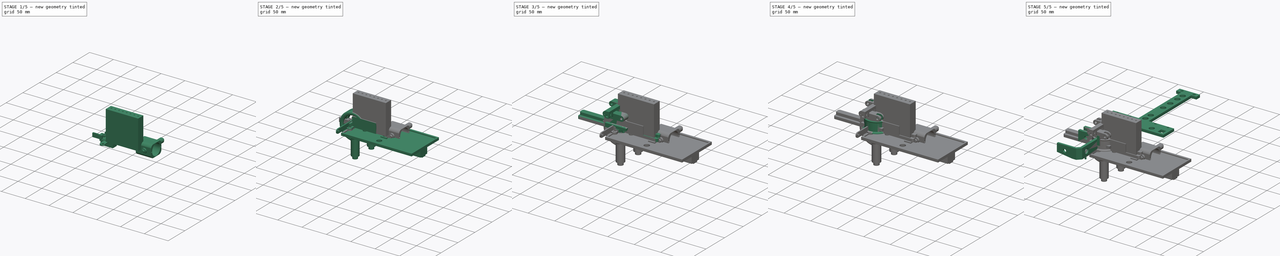
[diagram: build sequence overview — one tinted view per stage of 5, left to right]
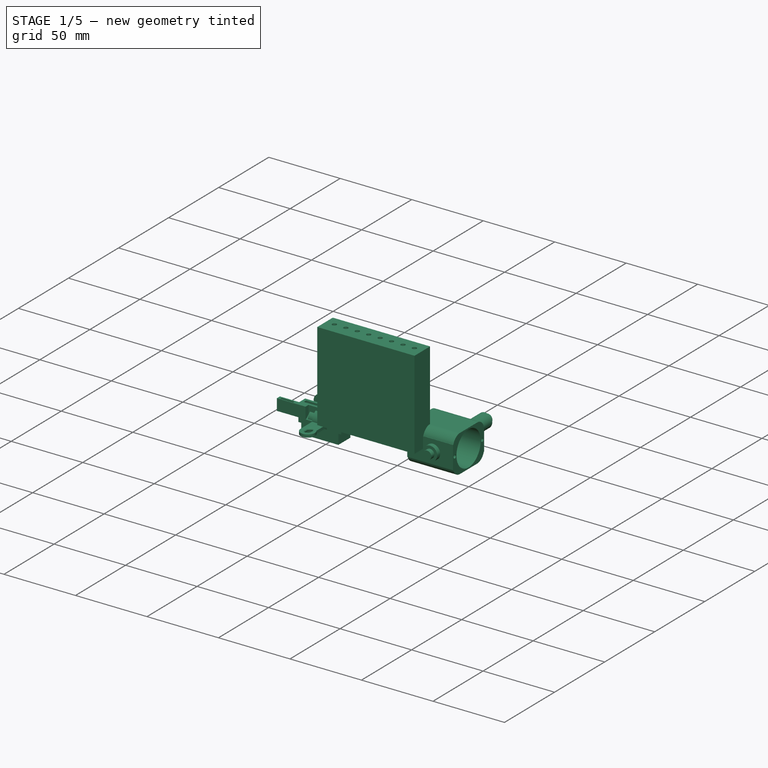
[diagram: stage 1 of 5 — iso view after this stage's code; geometry added in this stage tinted green]
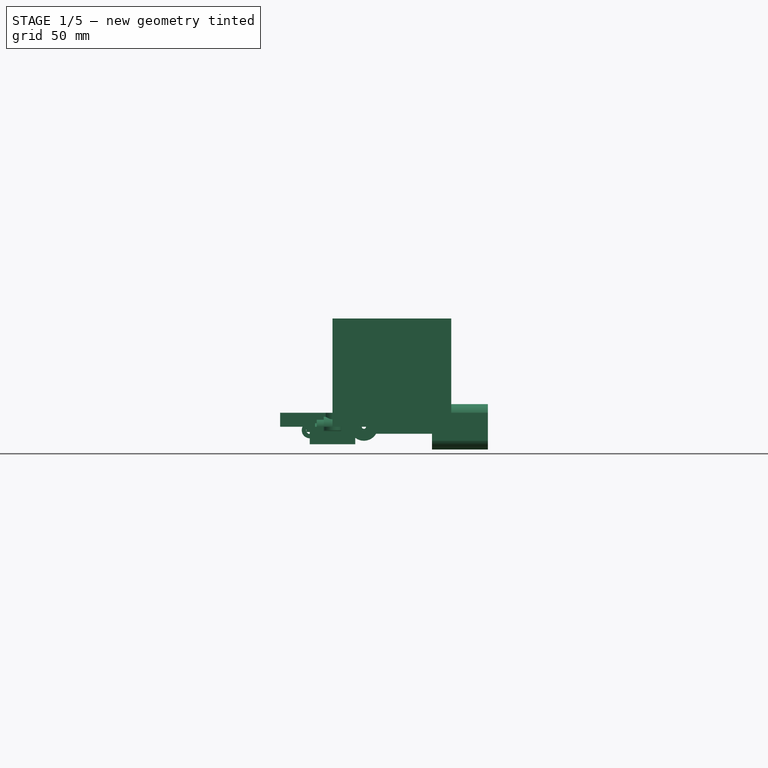
[diagram: stage 1 of 5 — front view after this stage's code; geometry added in this stage tinted green]
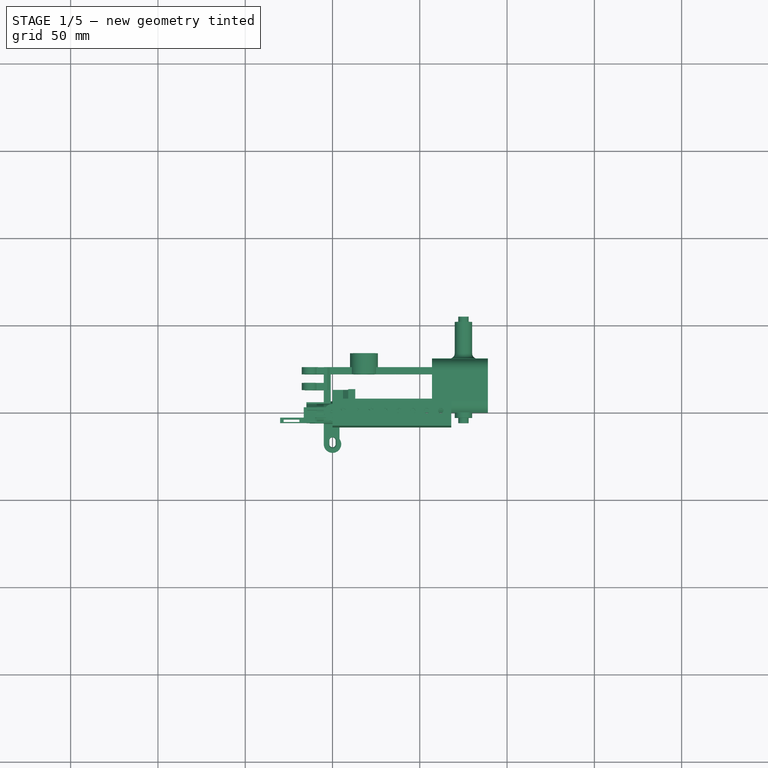
[diagram: stage 1 of 5 — top view after this stage's code; geometry added in this stage tinted green]
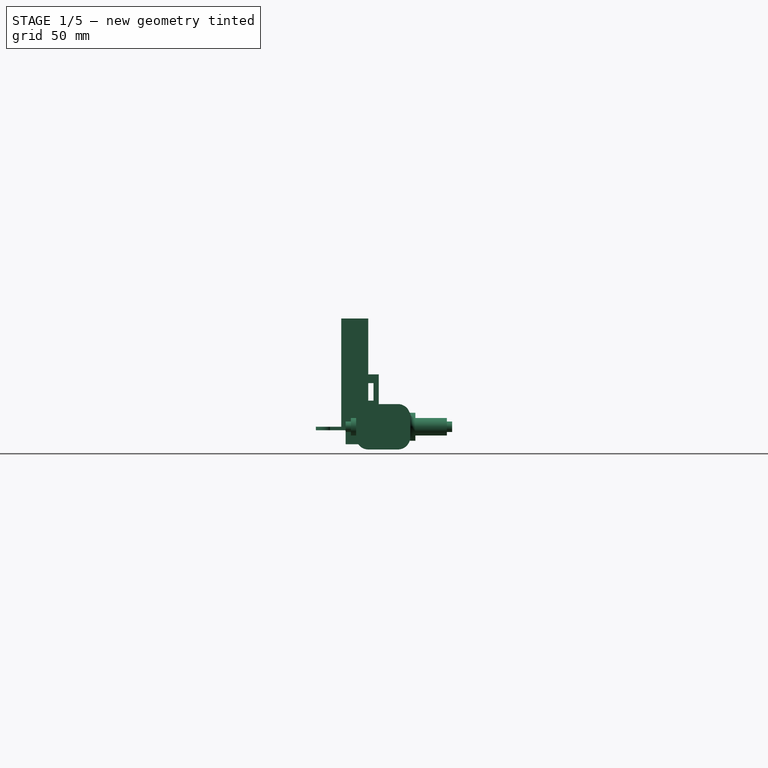
[diagram: stage 1 of 5 — right view after this stage's code; geometry added in this stage tinted green]
FCSTD DOCUMENT  (FreeCAD 0.19R24267 +99 (Git))
Label: RC_Body_Assy_v3
License: All rights reserved
LicenseURL: http://en.wikipedia.org/wiki/All_rights_reserved
objects: Sketcher::SketchObject×295, PartDesign::Pad×153, PartDesign::Pocket×132, PartDesign::Body×60, PartDesign::Chamfer×38, PartDesign::Fillet×34, Part::FeaturePython×7, PartDesign::Revolution×4, PartDesign::Groove×4, PartDesign::FeatureBase×3, PartDesign::FeaturePython×3, PartDesign::AdditiveHelix×2
note: 1102 computed .brp shape members not serialized (recipe doc carries the construction recipe); baked Part::Feature solids carry a one-line shape summary decoded from their .brp

FEATURE [PartDesign::Body] Body082  label="Front_Light_Holder_Right"
  Group = -> [Sketch412,Sketch413,Sketch414,Pad241,Pocket162,Pocket163,Chamfer053,Fillet050]
  Origin = -> Origin082
  Placement = pos=(-149,28.5,-83.5) rot=(0,0,-1;1.5708rad)
  Tip = -> Fillet050
FEATURE [Sketcher::SketchObject] Sketch419  label="Base022"
  FullyConstrained = true
  MapMode = 5
  Support = -> [XY_Plane084]
  sketch-geometry (8):
    g0: LineSegment StartX=-5 StartY=0 StartZ=0 EndX=95 EndY=0 EndZ=0
    g1: LineSegment StartX=95 StartY=0 StartZ=0 EndX=95 EndY=26 EndZ=0
    g2: LineSegment StartX=95 StartY=26 StartZ=0 EndX=-5 EndY=26 EndZ=0
    g3: LineSegment StartX=-5 StartY=26 StartZ=0 EndX=-5 EndY=0 EndZ=0
    g4: LineSegment StartX=-1 StartY=22 StartZ=0 EndX=91 EndY=22 EndZ=0
    g5: LineSegment StartX=91 StartY=22 StartZ=0 EndX=91 EndY=4 EndZ=0
    g6: LineSegment StartX=91 StartY=4 StartZ=0 EndX=-1 EndY=4 EndZ=0
    g7: LineSegment StartX=-1 StartY=4 StartZ=0 EndX=-1 EndY=22 EndZ=0
  constraints (24):
    c: Coincident(g0,g1)
    c: Coincident(g1,g2)
    c: Coincident(g2,g3)
    c: Horizontal(g0)
    c: Horizontal(g2)
    c: Vertical(g1)
    c: Vertical(g3)
    c: DistanceX(g0,g0) = 100
    c: DistanceY(g3,g3) = 26
    c: Coincident(g4,g5)
    c: Coincident(g5,g6)
    c: Coincident(g6,g7)
    c: Coincident(g7,g4)
    c: Horizontal(g4)
    c: Horizontal(g6)
    c: Vertical(g5)
    c: Vertical(g7)
    c: DistanceX(g2,g4) = 4
    c: DistanceY(g4,g2) = 4
    c: DistanceY(g0,g6) = 4
    c: DistanceX(g4,g1) = 4
    c: Coincident(g0,g3)
    c: DistanceX(g0,g-1) = 5
    c: DistanceY(g0,g-1) = 0
FEATURE [PartDesign::Pad] Pad246  label="Pad247"
  Direction = (1,1,1)
  Length = 8
  Length2 = 100
  Midplane = true
  Profile = -> Sketch419
  Type = 0
FEATURE [Sketcher::SketchObject] Sketch420  label="Wheel_BigCircle003"
  AttachmentOffset = pos=(0,0,-26) rot=(0,0,1;0rad)
  FullyConstrained = true
  MapMode = 5
  Placement = pos=(0,26,5.8e-15) rot=(1,0,0;1.5708rad)
  Support = -> [XZ_Plane084]
  sketch-geometry (1):
    g0: Circle CenterX=18 CenterY=0 CenterZ=0 NormalX=0 NormalY=0 NormalZ=1 AngleXU=0 Radius=8
  constraints (3):
    c: PointOnObject(g0,g-1)
    c: Radius(g0) = 8
    c: DistanceX(g-1,g0) = 18
FEATURE [PartDesign::Pad] Pad252  label="Pad253"
  BaseFeature = -> Pad246
  Direction = (1,1,1)
  Length = 4
  Length2 = 100
  Profile = -> Sketch420
  Type = 0
FEATURE [Sketcher::SketchObject] Sketch421  label="Wheel_Pocket003"
  AttachmentOffset = pos=(0,0,-28) rot=(0,0,1;0rad)
  FullyConstrained = true
  MapMode = 5
  Placement = pos=(0,28,6.2e-15) rot=(1,0,0;1.5708rad)
  Support = -> [XZ_Plane084]
  sketch-geometry (1):
    g0: Circle CenterX=18 CenterY=0 CenterZ=0 NormalX=0 NormalY=0 NormalZ=1 AngleXU=0 Radius=3.5
  constraints (3):
    c: PointOnObject(g0,g-1)
    c: Radius(g0) = 3.5
    c: DistanceX(g-1,g0) = 18
FEATURE [PartDesign::Pocket] Pocket167  label="Pocket178"
  BaseFeature = -> Pad252
  Length = 10
  Length2 = 100
  Profile = -> Sketch421
  Reversed = true
  Type = 0
FEATURE [Sketcher::SketchObject] Sketch422  label="AxisSupporter003"
  AttachmentOffset = pos=(0,0,-12) rot=(0,0,1;0rad)
  FullyConstrained = true
  MapMode = 5
  Placement = pos=(0,12,2.7e-15) rot=(1,0,0;1.5708rad)
  Support = -> [XZ_Plane084]
  sketch-geometry (3):
    g0: Circle CenterX=18 CenterY=0 CenterZ=0 NormalX=0 NormalY=0 NormalZ=1 AngleXU=0 Radius=1.2
    g1: Circle CenterX=36 CenterY=0 CenterZ=0 NormalX=0 NormalY=0 NormalZ=1 AngleXU=0 Radius=1.2
    g2: Circle CenterX=75 CenterY=0 CenterZ=0 NormalX=0 NormalY=0 NormalZ=1 AngleXU=0 Radius=1.2
  constraints (9):
    c: PointOnObject(g0,g-1)
    c: Radius(g0) = 1.2
    c: DistanceX(g-1,g0) = 18
    c: PointOnObject(g1,g-1)
    c: PointOnObject(g2,g-1)
    c: DistanceX(g-1,g1) = 36
    c: Radius(g1) = 1.2
    c: Radius(g2) = 1.2
    c: DistanceX(g-1,g2) = 75
FEATURE [Sketcher::SketchObject] Sketch423  label="RotHolder_007"
  AttachmentOffset = pos=(0,0,6) rot=(0,0,1;0rad)
  FullyConstrained = true
  MapMode = 5
  Placement = pos=(0,-6,-1.3e-15) rot=(1,0,0;1.5708rad)
  Support = -> [XZ_Plane084]
  sketch-geometry (1):
    g0: Circle CenterX=75 CenterY=0 CenterZ=0 NormalX=0 NormalY=0 NormalZ=1 AngleXU=0 Radius=3
  constraints (3):
    c: PointOnObject(g0,g-1)
    c: Radius(g0) = 3
    c: DistanceX(g-1,g0) = 75
FEATURE [Sketcher::SketchObject] Sketch424  label="SuspensionHolder_Base003"
  AttachmentOffset = pos=(0,0,2.5) rot=(0,0,1;0rad)
  FullyConstrained = true
  MapMode = 5
  Placement = pos=(0,0,2.5) rot=(0,0,1;0rad)
  Support = -> [XY_Plane084]
  sketch-geometry (4):
    g0: LineSegment StartX=-16 StartY=25.9 StartZ=0 EndX=-3 EndY=25.9 EndZ=0
    g1: LineSegment StartX=-3 StartY=25.9 StartZ=0 EndX=-3 EndY=12.9 EndZ=0
    g2: LineSegment StartX=-3 StartY=12.9 StartZ=0 EndX=-16 EndY=12.9 EndZ=0
    g3: LineSegment StartX=-16 StartY=12.9 StartZ=0 EndX=-16 EndY=25.9 EndZ=0
  constraints (12):
    c: Coincident(g0,g1)
    c: Coincident(g2,g3)
    c: Coincident(g3,g0)
    c: Horizontal(g0)
    c: Horizontal(g2)
    c: Vertical(g1)
    c: Vertical(g3)
    c: DistanceX(g0,g0) = 13
    c: DistanceY(g3,g3) = 13
    c: DistanceY(g-1,g1) = 12.9
    c: DistanceX(g1,g-1) = 3
    c: Coincident(g1,g2)
FEATURE [PartDesign::Pad] Pad248  label="Pad249"
  BaseFeature = -> Pocket167
  Direction = (1,1,1)
  Length = 6
  Length2 = 100
  Midplane = true
  Profile = -> Sketch424
  Type = 0
FEATURE [Sketcher::SketchObject] Sketch426  label="SuspensionHolder_Hole003"
  AttachmentOffset = pos=(0,5,0) rot=(0,0,1;0rad)
  FullyConstrained = true
  MapMode = 5
  Placement = pos=(0,-1.1e-15,5) rot=(1,0,0;1.5708rad)
  Support = -> [XZ_Plane084]
  sketch-geometry (1):
    g0: Circle CenterX=-13 CenterY=-2 CenterZ=0 NormalX=0 NormalY=0 NormalZ=1 AngleXU=0 Radius=2.1
  constraints (3):
    c: Radius(g0) = 2.1
    c: DistanceY(g-1,g0) = -2
    c: DistanceX(g0,g-1) = 13
FEATURE [Sketcher::SketchObject] Sketch427  label="SuspensionHolder_Pocket003"
  AttachmentOffset = pos=(0,0,2) rot=(0,0,1;0rad)
  FullyConstrained = true
  MapMode = 5
  Placement = pos=(0,0,2) rot=(0,0,1;0rad)
  Support = -> [XY_Plane084]
  sketch-geometry (4):
    g0: LineSegment StartX=-25 StartY=22 StartZ=0 EndX=-5 EndY=22 EndZ=0
    g1: LineSegment StartX=-5 StartY=22 StartZ=0 EndX=-5 EndY=17 EndZ=0
    g2: LineSegment StartX=-5 StartY=17 StartZ=0 EndX=-25 EndY=17 EndZ=0
    g3: LineSegment StartX=-25 StartY=17 StartZ=0 EndX=-25 EndY=22 EndZ=0
  constraints (12):
    c: Coincident(g0,g1)
    c: Coincident(g1,g2)
    c: Coincident(g2,g3)
    c: Coincident(g3,g0)
    c: Horizontal(g0)
    c: Horizontal(g2)
    c: Vertical(g1)
    c: Vertical(g3)
    c: DistanceX(g0,g0) = 20
    c: DistanceX(g-1,g1) = -5
    c: DistanceY(g3,g3) = 5
    c: DistanceY(g-1,g1) = 17
FEATURE [Sketcher::SketchObject] Sketch428  label="Suspension_Circle003"
  AttachmentOffset = pos=(0,5,-19.5) rot=(0,0,1;0rad)
  FullyConstrained = true
  MapMode = 5
  Placement = pos=(0,19.5,5) rot=(1,0,0;1.5708rad)
  Support = -> [XZ_Plane084]
  sketch-geometry (1):
    g0: Circle CenterX=-13 CenterY=-2 CenterZ=0 NormalX=0 NormalY=0 NormalZ=1 AngleXU=0 Radius=4.6
  constraints (3):
    c: Radius(g0) = 4.6
    c: DistanceY(g0,g-1) = 2
    c: DistanceX(g0,g-1) = 13
FEATURE [Sketcher::SketchObject] Sketch429  label="MotorHolder"
  FullyConstrained = true
  MapMode = 5
  Placement = pos=(0,0,0) rot=(1,0,0;1.5708rad)
  Support = -> [XZ_Plane084]
  sketch-geometry (4):
    g0: LineSegment StartX=57 StartY=-8 StartZ=0 EndX=89 EndY=-8 EndZ=0
    g1: LineSegment StartX=89 StartY=-8 StartZ=0 EndX=89 EndY=13 EndZ=0
    g2: LineSegment StartX=89 StartY=13 StartZ=0 EndX=57 EndY=13 EndZ=0
    g3: LineSegment StartX=57 StartY=13 StartZ=0 EndX=57 EndY=-8 EndZ=0
  constraints (12):
    c: Coincident(g0,g1)
    c: Coincident(g1,g2)
    c: Coincident(g2,g3)
    c: Coincident(g3,g0)
    c: Horizontal(g0)
    c: Horizontal(g2)
    c: Vertical(g1)
    c: Vertical(g3)
    c: DistanceX(g-1,g1) = 89
    c: DistanceX(g2,g2) = 32
    c: DistanceY(g-1,g2) = 13
    c: DistanceY(g3,g3) = 21
FEATURE [Sketcher::SketchObject] Sketch430
  AttachmentOffset = pos=(0,0,58) rot=(1,0,0;3.14159rad)
  FullyConstrained = true
  MapMode = 5
  Placement = pos=(58,-1.29e-14,1.29e-14) rot=(0.57735,0.57735,-0.57735;4.18879rad)
  Support = -> [YZ_Plane084]
  sketch-geometry (5):
    g0: ArcOfCircle CenterX=15.5 CenterY=0 CenterZ=0 NormalX=0 NormalY=0 NormalZ=1 AngleXU=0 Radius=3.5 StartAngle=3.14159 EndAngle=6.28319
    g1: LineSegment StartX=12 StartY=4e-16 StartZ=0 EndX=19 EndY=4e-16 EndZ=0
    g2: LineSegment StartX=19 StartY=4e-16 StartZ=0 EndX=19 EndY=50 EndZ=0
    g3: LineSegment StartX=19 StartY=50 StartZ=0 EndX=12 EndY=50 EndZ=0
    g4: LineSegment StartX=12 StartY=50 StartZ=0 EndX=12 EndY=0 EndZ=0
  constraints (15):
    c: PointOnObject(g0,g-1)
    c: DistanceX(g-1,g0) = 15.5
    c: Radius(g0) = 3.5
    c: Coincident(g1,g2)
    c: Coincident(g2,g3)
    c: Coincident(g3,g4)
    c: Coincident(g4,g1)
    c: Horizontal(g1)
    c: Horizontal(g3)
    c: Vertical(g2)
    c: Vertical(g4)
    c: DistanceY(g0,g1) = 0
    c: Coincident(g0,g1)
    c: Coincident(g0,g1)
    c: DistanceY(g2,g2) = 50
FEATURE [Sketcher::SketchObject] Sketch431  label="RotHolder_008"
  AttachmentOffset = pos=(0,0,3) rot=(0,0,1;0rad)
  FullyConstrained = true
  MapMode = 5
  Placement = pos=(0,-3,-7e-16) rot=(1,0,0;1.5708rad)
  Support = -> [XZ_Plane084]
  sketch-geometry (1):
    g0: Circle CenterX=75 CenterY=0 CenterZ=0 NormalX=0 NormalY=0 NormalZ=1 AngleXU=0 Radius=5
  constraints (3):
    c: PointOnObject(g0,g-1)
    c: Radius(g0) = 5
    c: DistanceX(g-1,g0) = 75
FEATURE [PartDesign::Pad] Pad247  label="Pad248"
  BaseFeature = -> Pad248
  Direction = (1,1,1)
  Length = 55
  Length2 = 100
  Profile = -> Sketch431
  Reversed = true
  Type = 0
FEATURE [PartDesign::Pad] Pad250  label="Pad251"
  BaseFeature = -> Pad247
  Direction = (1,1,1)
  Length = 61
  Length2 = 100
  Profile = -> Sketch423
  Reversed = true
  Type = 0
FEATURE [PartDesign::Pocket] Pocket166  label="Pocket177"
  BaseFeature = -> Pad250
  Length = 24
  Length2 = 100
  Midplane = true
  Profile = -> Sketch422
  Type = 0
FEATURE [PartDesign::Pad] Pad251  label="Pad252"
  BaseFeature = -> Pocket166
  Direction = (1,1,1)
  Length = 13
  Length2 = 100
  Midplane = true
  Profile = -> Sketch428
  Type = 0
FEATURE [PartDesign::Pocket] Pocket168  label="Pocket179"
  BaseFeature = -> Pad251
  Length = 30
  Length2 = 100
  Midplane = true
  Profile = -> Sketch427
  Type = 0
FEATURE [PartDesign::Pocket] Pocket170  label="Pocket181"
  BaseFeature = -> Pocket168
  Length = 40
  Length2 = 100
  Profile = -> Sketch426
  Type = 0
FEATURE [PartDesign::Pad] Pad249  label="Pad250"
  BaseFeature = -> Pocket170
  Direction = (1,1,1)
  Length = 31
  Length2 = 100
  Profile = -> Sketch429
  Reversed = true
  Type = 0
FEATURE [Sketcher::SketchObject] Sketch432  label="WheelGuide"
  AttachmentOffset = pos=(0,0,-26) rot=(0,0,1;0rad)
  FullyConstrained = true
  MapMode = 5
  Placement = pos=(0,26,5.8e-15) rot=(1,0,0;1.5708rad)
  Support = -> [XZ_Plane084]
  sketch-geometry (2):
    g0: Circle CenterX=18 CenterY=0 CenterZ=0 NormalX=0 NormalY=0 NormalZ=1 AngleXU=0 Radius=8
    g1: Circle CenterX=18 CenterY=0 CenterZ=0 NormalX=0 NormalY=0 NormalZ=1 AngleXU=0 Radius=3.5
  constraints (5):
    c: PointOnObject(g0,g-1)
    c: DistanceX(g-1,g0) = 18
    c: Radius(g0) = 8
    c: Coincident(g1,g0)
    c: Radius(g1) = 3.5
FEATURE [Sketcher::SketchObject] Sketch433  label="MotorMid"
  AttachmentOffset = pos=(0,0,89) rot=(0,0,1;0rad)
  FullyConstrained = true
  MapMode = 5
  Placement = pos=(89,-1.98e-14,1.98e-14) rot=(0.57735,0.57735,0.57735;2.0944rad)
  Support = -> [YZ_Plane084]
  sketch-geometry (2):
    g0: ArcOfCircle CenterX=15.5 CenterY=0 CenterZ=0 NormalX=0 NormalY=0 NormalZ=1 AngleXU=0 Radius=4.5 StartAngle=0.679674 EndAngle=5.60351
    g1: LineSegment StartX=19 StartY=-2.82843 StartZ=0 EndX=19 EndY=2.82843 EndZ=0
  constraints (7):
    c: PointOnObject(g0,g-1)
    c: DistanceX(g-1,g0) = 15.5
    c: Radius(g0) = 4.5
    c: Vertical(g1)
    c: Coincident(g1,g0)
    c: Coincident(g1,g0)
    c: DistanceX(g0,g0) = 3.5
FEATURE [Sketcher::SketchObject] Sketch434  label="MotorHole"
  AttachmentOffset = pos=(0,0,89) rot=(1,0,0;3.14159rad)
  FullyConstrained = true
  MapMode = 5
  Placement = pos=(89,-1.98e-14,1.98e-14) rot=(0.57735,0.57735,-0.57735;4.18879rad)
  Support = -> [YZ_Plane084]
  sketch-geometry (4):
    g0: ArcOfCircle CenterX=15.5 CenterY=0 CenterZ=0 NormalX=0 NormalY=0 NormalZ=1 AngleXU=0 Radius=12.1 StartAngle=2.71189 EndAngle=6.71288
    g1: LineSegment StartX=26.5 StartY=5.04083 StartZ=0 EndX=26.5 EndY=20 EndZ=0
    g2: LineSegment StartX=26.5 StartY=20 StartZ=0 EndX=4.5 EndY=20 EndZ=0
    g3: LineSegment StartX=4.5 StartY=20 StartZ=0 EndX=4.5 EndY=5.04083 EndZ=0
  constraints (13):
    c: PointOnObject(g0,g-1)
    c: DistanceX(g-1,g0) = 15.5
    c: Radius(g0) = 12.1
    c: Coincident(g1,g2)
    c: Coincident(g2,g3)
    c: Horizontal(g2)
    c: Vertical(g1)
    c: Vertical(g3)
    c: Coincident(g0,g3)
    c: Coincident(g0,g1)
    c: DistanceX(g0,g0) = 11
    c: DistanceX(g0,g0) = 11
    c: DistanceY(g0,g2) = 20
FEATURE [PartDesign::Pocket] Pocket169  label="Pocket180"
  BaseFeature = -> Pad249
  Length = 31
  Length2 = 100
  Profile = -> Sketch434
  Reversed = true
  Type = 0
FEATURE [PartDesign::Pocket] Pocket059  label="Pocket060"
  BaseFeature = -> Pocket169
  Length = 3
  Length2 = 100
  Profile = -> Sketch433
  Reversed = true
  Type = 0
FEATURE [Sketcher::SketchObject] Sketch435
  FullyConstrained = true
  MapMode = 5
  Support = -> [XY_Plane084]
  sketch-geometry (4):
    g0: LineSegment StartX=89 StartY=45 StartZ=0 EndX=104 EndY=45 EndZ=0
    g1: LineSegment StartX=104 StartY=45 StartZ=0 EndX=104 EndY=-5 EndZ=0
    g2: LineSegment StartX=104 StartY=-5 StartZ=0 EndX=89 EndY=-5 EndZ=0
    g3: LineSegment StartX=89 StartY=-5 StartZ=0 EndX=89 EndY=45 EndZ=0
  constraints (12):
    c: Coincident(g0,g1)
    c: Coincident(g1,g2)
    c: Coincident(g2,g3)
    c: Coincident(g3,g0)
    c: Horizontal(g0)
    c: Horizontal(g2)
    c: Vertical(g1)
    c: Vertical(g3)
    c: DistanceX(g-1,g2) = 89
    c: DistanceX(g0,g0) = 15
    c: DistanceY(g1,g1) = 50
    c: DistanceY(g2,g-1) = 5
FEATURE [Sketcher::SketchObject] Sketch436
  AttachmentOffset = pos=(0,0,89) rot=(0,0,1;0rad)
  FullyConstrained = true
  MapMode = 5
  Placement = pos=(89,-1.98e-14,1.98e-14) rot=(0.57735,0.57735,0.57735;2.0944rad)
  Support = -> [YZ_Plane084]
  sketch-geometry (2):
    g0: Circle CenterX=1.8 CenterY=0 CenterZ=0 NormalX=0 NormalY=0 NormalZ=1 AngleXU=0 Radius=1.2
    g1: Circle CenterX=29.3 CenterY=0 CenterZ=0 NormalX=0 NormalY=0 NormalZ=1 AngleXU=0 Radius=1.2
  constraints (6):
    c: PointOnObject(g0,g-1)
    c: PointOnObject(g1,g-1)
    c: DistanceX(g-1,g0) = 1.8
    c: DistanceX(g-1,g1) = 29.3
    c: Radius(g0) = 1.2
    c: Radius(g1) = 1.2
FEATURE [PartDesign::Pocket] Pocket060  label="Pocket061"
  BaseFeature = -> Pocket059
  Length = 1
  Length2 = 100
  Profile = -> Sketch430
  Reversed = true
  Type = 0
FEATURE [PartDesign::Pad] Pad080  label="Pad082"
  BaseFeature = -> Pocket060
  Direction = (1,1,1)
  Length = 8
  Length2 = 100
  Profile = -> Sketch432
  Reversed = true
  Type = 0
FEATURE [PartDesign::Pocket] Pocket172  label="Pocket183"
  BaseFeature = -> Pad080
  Length = 30
  Length2 = 100
  Midplane = true
  Profile = -> Sketch435
  Type = 0
FEATURE [PartDesign::Pocket] Pocket171  label="Pocket182"
  BaseFeature = -> Pocket172
  Length = 5
  Length2 = 100
  Profile = -> Sketch436
  Type = 0
FEATURE [Sketcher::SketchObject] Sketch437
  AttachmentOffset = pos=(0,0,-26) rot=(0,0,1;0rad)
  FullyConstrained = true
  MapMode = 5
  Placement = pos=(0,26,5.8e-15) rot=(1,0,0;1.5708rad)
  Support = -> [XZ_Plane026]
  sketch-geometry (2):
    g0: Circle CenterX=18 CenterY=0 CenterZ=0 NormalX=0 NormalY=0 NormalZ=1 AngleXU=0 Radius=8
    g1: Circle CenterX=18 CenterY=0 CenterZ=0 NormalX=0 NormalY=0 NormalZ=1 AngleXU=0 Radius=3.5
  constraints (5):
    c: PointOnObject(g0,g-1)
    c: DistanceX(g-1,g0) = 18
    c: Radius(g0) = 8
    c: Coincident(g1,g0)
    c: Radius(g1) = 3.5
FEATURE [Sketcher::SketchObject] Sketch438
  AttachmentOffset = pos=(0,0,89) rot=(0,0,1;0rad)
  FullyConstrained = true
  MapMode = 5
  Placement = pos=(89,-1.98e-14,1.98e-14) rot=(0.57735,0.57735,0.57735;2.0944rad)
  Support = -> [YZ_Plane026]
  sketch-geometry (2):
    g0: Circle CenterX=1.8 CenterY=0 CenterZ=0 NormalX=0 NormalY=0 NormalZ=1 AngleXU=0 Radius=1.2
    g1: Circle CenterX=29.3 CenterY=0 CenterZ=0 NormalX=0 NormalY=0 NormalZ=1 AngleXU=0 Radius=1.2
  constraints (6):
    c: PointOnObject(g0,g-1)
    c: PointOnObject(g1,g-1)
    c: DistanceX(g-1,g0) = 1.8
    c: DistanceX(g-1,g1) = 29.3
    c: Radius(g1) = 1.2
    c: Radius(g0) = 1.2
FEATURE [Sketcher::SketchObject] Sketch439
  FullyConstrained = true
  MapMode = 5
  Support = -> [XY_Plane026]
  sketch-geometry (4):
    g0: LineSegment StartX=89 StartY=0 StartZ=0 EndX=99 EndY=0 EndZ=0
    g1: LineSegment StartX=99 StartY=0 StartZ=0 EndX=99 EndY=35 EndZ=0
    g2: LineSegment StartX=99 StartY=35 StartZ=0 EndX=89 EndY=35 EndZ=0
    g3: LineSegment StartX=89 StartY=35 StartZ=0 EndX=89 EndY=0 EndZ=0
  constraints (12):
    c: Coincident(g0,g1)
    c: Coincident(g1,g2)
    c: Coincident(g2,g3)
    c: Coincident(g3,g0)
    c: Horizontal(g0)
    c: Horizontal(g2)
    c: Vertical(g1)
    c: Vertical(g3)
    c: PointOnObject(g0,g-1)
    c: DistanceX(g-1,g2) = 89
    c: DistanceX(g2,g2) = 10
    c: DistanceY(g1,g1) = 35
FEATURE [Sketcher::SketchObject] Sketch136  label="Wheel_Pocket"
  AttachmentOffset = pos=(0,0,-28) rot=(0,0,1;0rad)
  FullyConstrained = true
  MapMode = 5
  Placement = pos=(0,28,6.2e-15) rot=(1,0,0;1.5708rad)
  Support = -> [XZ_Plane026]
  sketch-geometry (1):
    g0: Circle CenterX=18 CenterY=0 CenterZ=0 NormalX=0 NormalY=0 NormalZ=1 AngleXU=0 Radius=3.5
  constraints (3):
    c: PointOnObject(g0,g-1)
    c: Radius(g0) = 3.5
    c: DistanceX(g-1,g0) = 18
FEATURE [Sketcher::SketchObject] Sketch140  label="AxisSupporter"
  AttachmentOffset = pos=(0,0,-12) rot=(0,0,1;0rad)
  FullyConstrained = true
  MapMode = 5
  Placement = pos=(0,12,2.7e-15) rot=(1,0,0;1.5708rad)
  Support = -> [XZ_Plane026]
  sketch-geometry (2):
    g0: Circle CenterX=18 CenterY=0 CenterZ=0 NormalX=0 NormalY=0 NormalZ=1 AngleXU=0 Radius=1.2
    g1: Circle CenterX=36 CenterY=0 CenterZ=0 NormalX=0 NormalY=0 NormalZ=1 AngleXU=0 Radius=1.2
  constraints (6):
    c: PointOnObject(g0,g-1)
    c: Radius(g0) = 1.2
    c: DistanceX(g-1,g0) = 18
    c: PointOnObject(g1,g-1)
    c: DistanceX(g-1,g1) = 36
    c: Radius(g1) = 1.2
FEATURE [Sketcher::SketchObject] Sketch137  label="Wheel_BigCircle"
  AttachmentOffset = pos=(0,0,-26) rot=(0,0,1;0rad)
  FullyConstrained = true
  MapMode = 5
  Placement = pos=(0,26,5.8e-15) rot=(1,0,0;1.5708rad)
  Support = -> [XZ_Plane026]
  sketch-geometry (1):
    g0: Circle CenterX=18 CenterY=0 CenterZ=0 NormalX=0 NormalY=0 NormalZ=1 AngleXU=0 Radius=8
  constraints (3):
    c: PointOnObject(g0,g-1)
    c: Radius(g0) = 8
    c: DistanceX(g-1,g0) = 18
FEATURE [Sketcher::SketchObject] Sketch135  label="Base004"
  FullyConstrained = true
  MapMode = 5
  Support = -> [XY_Plane026]
  sketch-geometry (8):
    g0: LineSegment StartX=-5 StartY=0 StartZ=0 EndX=95 EndY=0 EndZ=0
    g1: LineSegment StartX=95 StartY=0 StartZ=0 EndX=95 EndY=26 EndZ=0
    g2: LineSegment StartX=95 StartY=26 StartZ=0 EndX=-5 EndY=26 EndZ=0
    g3: LineSegment StartX=-5 StartY=26 StartZ=0 EndX=-5 EndY=0 EndZ=0
    g4: LineSegment StartX=-1 StartY=22 StartZ=0 EndX=91 EndY=22 EndZ=0
    g5: LineSegment StartX=91 StartY=22 StartZ=0 EndX=91 EndY=4 EndZ=0
    g6: LineSegment StartX=91 StartY=4 StartZ=0 EndX=-1 EndY=4 EndZ=0
    g7: LineSegment StartX=-1 StartY=4 StartZ=0 EndX=-1 EndY=22 EndZ=0
  constraints (24):
    c: Coincident(g0,g1)
    c: Coincident(g1,g2)
    c: Coincident(g2,g3)
    c: Horizontal(g0)
    c: Horizontal(g2)
    c: Vertical(g1)
    c: DistanceX(g0,g0) = 100
    c: DistanceY(g3,g3) = 26
    c: Coincident(g4,g5)
    c: Coincident(g5,g6)
    c: Coincident(g6,g7)
    c: Coincident(g7,g4)
    c: Horizontal(g4)
    c: Horizontal(g6)
    c: Vertical(g5)
    c: Vertical(g7)
    c: DistanceX(g2,g4) = 4
    c: DistanceY(g4,g2) = 4
    c: DistanceY(g0,g6) = 4
    c: DistanceX(g4,g1) = 4
    c: Coincident(g0,g3)
    c: DistanceX(g0,g-1) = 5
    c: Vertical(g3)
    c: DistanceY(g-1,g0) = 0
FEATURE [Sketcher::SketchObject] Sketch144  label="RotHolder_2"
  AttachmentOffset = pos=(0,0,6) rot=(0,0,1;0rad)
  FullyConstrained = true
  MapMode = 5
  Placement = pos=(0,-6,-1.3e-15) rot=(1,0,0;1.5708rad)
  Support = -> [XZ_Plane026]
  sketch-geometry (1):
    g0: Circle CenterX=75 CenterY=0 CenterZ=0 NormalX=0 NormalY=0 NormalZ=1 AngleXU=0 Radius=3
  constraints (3):
    c: PointOnObject(g0,g-1)
    c: Radius(g0) = 3
    c: DistanceX(g-1,g0) = 75
FEATURE [Sketcher::SketchObject] Sketch141  label="SuspensionHolder_Base"
  AttachmentOffset = pos=(0,0,-2.5) rot=(0,0,1;0rad)
  FullyConstrained = true
  MapMode = 5
  Placement = pos=(0,0,-2.5) rot=(0,0,1;0rad)
  Support = -> [XY_Plane026]
  sketch-geometry (4):
    g0: LineSegment StartX=-16 StartY=25.9 StartZ=0 EndX=-3 EndY=25.9 EndZ=0
    g1: LineSegment StartX=-3 StartY=25.9 StartZ=0 EndX=-3 EndY=12.9 EndZ=0
    g2: LineSegment StartX=-3 StartY=12.9 StartZ=0 EndX=-16 EndY=12.9 EndZ=0
    g3: LineSegment StartX=-16 StartY=12.9 StartZ=0 EndX=-16 EndY=25.9 EndZ=0
  constraints (12):
    c: Coincident(g0,g1)
    c: Coincident(g1,g2)
    c: Coincident(g2,g3)
    c: Coincident(g3,g0)
    c: Horizontal(g0)
    c: Horizontal(g2)
    c: Vertical(g3)
    c: DistanceX(g0,g0) = 13
    c: DistanceY(g3,g3) = 13
    c: DistanceY(g-1,g1) = 12.9
    c: Vertical(g1)
    c: DistanceX(g1,g-1) = 3
FEATURE [Sketcher::SketchObject] Sketch142  label="RotHolder_1"
  AttachmentOffset = pos=(0,0,3) rot=(0,0,1;0rad)
  FullyConstrained = true
  MapMode = 5
  Placement = pos=(0,-3,-7e-16) rot=(1,0,0;1.5708rad)
  Support = -> [XZ_Plane026]
  sketch-geometry (1):
    g0: Circle CenterX=75 CenterY=0 CenterZ=0 NormalX=0 NormalY=0 NormalZ=1 AngleXU=0 Radius=5
  constraints (3):
    c: PointOnObject(g0,g-1)
    c: Radius(g0) = 5
    c: DistanceX(g-1,g0) = 75
FEATURE [Sketcher::SketchObject] Sketch143  label="SuspensionHolder_Pocket"
  AttachmentOffset = pos=(0,0,2) rot=(0,0,1;0rad)
  FullyConstrained = true
  MapMode = 5
  Placement = pos=(0,0,2) rot=(0,0,1;0rad)
  Support = -> [XY_Plane026]
  sketch-geometry (4):
    g0: LineSegment StartX=-25 StartY=22 StartZ=0 EndX=-5 EndY=22 EndZ=0
    g1: LineSegment StartX=-5 StartY=22 StartZ=0 EndX=-5 EndY=17 EndZ=0
    g2: LineSegment StartX=-5 StartY=17 StartZ=0 EndX=-25 EndY=17 EndZ=0
    g3: LineSegment StartX=-25 StartY=17 StartZ=0 EndX=-25 EndY=22 EndZ=0
  constraints (12):
    c: Coincident(g0,g1)
    c: Coincident(g2,g3)
    c: Coincident(g3,g0)
    c: Horizontal(g0)
    c: Horizontal(g2)
    c: Vertical(g3)
    c: DistanceX(g0,g0) = 20
    c: DistanceX(g-1,g1) = -5
    c: DistanceY(g3,g3) = 5
    c: DistanceY(g-1,g1) = 17
    c: Coincident(g1,g2)
    c: Vertical(g1)
FEATURE [Sketcher::SketchObject] Sketch009  label="SuspensionHolder_Hole"
  FullyConstrained = true
  MapMode = 5
  Placement = pos=(0,0,0) rot=(1,0,0;1.5708rad)
  Support = -> [XZ_Plane026]
  sketch-geometry (1):
    g0: Circle CenterX=-13 CenterY=-2 CenterZ=0 NormalX=0 NormalY=0 NormalZ=1 AngleXU=0 Radius=2.1
  constraints (3):
    c: Radius(g0) = 2.1
    c: DistanceY(g-1,g0) = -2
    c: DistanceX(g0,g-1) = 13
FEATURE [Sketcher::SketchObject] Sketch440
  AttachmentOffset = pos=(0,0,89) rot=(0,0,1;0rad)
  FullyConstrained = true
  MapMode = 5
  Placement = pos=(89,-1.98e-14,1.98e-14) rot=(0.57735,0.57735,0.57735;2.0944rad)
  Support = -> [YZ_Plane026]
  sketch-geometry (4):
    g0: ArcOfCircle CenterX=15.5 CenterY=0 CenterZ=0 NormalX=0 NormalY=0 NormalZ=1 AngleXU=0 Radius=12.1 StartAngle=2.71189 EndAngle=6.71288
    g1: LineSegment StartX=26.5 StartY=5.04083 StartZ=0 EndX=26.5 EndY=20 EndZ=0
    g2: LineSegment StartX=26.5 StartY=20 StartZ=0 EndX=4.5 EndY=20 EndZ=0
    g3: LineSegment StartX=4.5 StartY=20 StartZ=0 EndX=4.5 EndY=5.04083 EndZ=0
  constraints (13):
    c: PointOnObject(g0,g-1)
    c: DistanceX(g-1,g0) = 15.5
    c: Radius(g0) = 12.1
    c: Coincident(g1,g2)
    c: Coincident(g2,g3)
    c: Horizontal(g2)
    c: Vertical(g1)
    c: Vertical(g3)
    c: Coincident(g0,g3)
    c: Coincident(g0,g1)
    c: DistanceX(g0,g0) = 11
    c: DistanceX(g0,g0) = 11
    c: DistanceY(g0,g2) = 20
FEATURE [Sketcher::SketchObject] Sketch441  label="MotorHolder001"
  FullyConstrained = true
  MapMode = 5
  Placement = pos=(0,0,0) rot=(1,0,0;1.5708rad)
  Support = -> [XZ_Plane026]
  sketch-geometry (4):
    g0: LineSegment StartX=57 StartY=-13 StartZ=0 EndX=89 EndY=-13 EndZ=0
    g1: LineSegment StartX=89 StartY=-13 StartZ=0 EndX=89 EndY=8 EndZ=0
    g2: LineSegment StartX=89 StartY=8 StartZ=0 EndX=57 EndY=8 EndZ=0
    g3: LineSegment StartX=57 StartY=8 StartZ=0 EndX=57 EndY=-13 EndZ=0
  constraints (12):
    c: Coincident(g0,g1)
    c: Coincident(g1,g2)
    c: Coincident(g2,g3)
    c: Coincident(g3,g0)
    c: Horizontal(g0)
    c: Horizontal(g2)
    c: Vertical(g1)
    c: Vertical(g3)
    c: DistanceX(g-1,g1) = 89
    c: DistanceX(g2,g2) = 32
    c: DistanceY(g-1,g2) = 8
    c: DistanceY(g3,g3) = 21
FEATURE [Sketcher::SketchObject] Sketch012  label="Suspension_Circle"
  AttachmentOffset = pos=(0,0,-19.5) rot=(0,0,1;0rad)
  FullyConstrained = true
  MapMode = 5
  Placement = pos=(0,19.5,4.3e-15) rot=(1,0,0;1.5708rad)
  Support = -> [XZ_Plane026]
  sketch-geometry (1):
    g0: Circle CenterX=-13 CenterY=-2 CenterZ=0 NormalX=0 NormalY=0 NormalZ=1 AngleXU=0 Radius=4.6
  constraints (3):
    c: Radius(g0) = 4.6
    c: DistanceY(g0,g-1) = 2
    c: DistanceX(g0,g-1) = 13
FEATURE [Sketcher::SketchObject] Sketch442  label="MotorMid001"
  AttachmentOffset = pos=(0,0,89) rot=(0,0,1;0rad)
  FullyConstrained = true
  MapMode = 5
  Placement = pos=(89,-1.98e-14,1.98e-14) rot=(0.57735,0.57735,0.57735;2.0944rad)
  Support = -> [YZ_Plane026]
  sketch-geometry (2):
    g0: ArcOfCircle CenterX=15.5 CenterY=0 CenterZ=0 NormalX=0 NormalY=0 NormalZ=1 AngleXU=0 Radius=4.5 StartAngle=0.679674 EndAngle=5.60351
    g1: LineSegment StartX=19 StartY=-2.82843 StartZ=0 EndX=19 EndY=2.82843 EndZ=0
  constraints (7):
    c: PointOnObject(g0,g-1)
    c: DistanceX(g-1,g0) = 15.5
    c: Radius(g0) = 4.5
    c: Vertical(g1)
    c: Coincident(g1,g0)
    c: Coincident(g1,g0)
    c: DistanceX(g0,g0) = 3.5
FEATURE [Sketcher::SketchObject] Sketch443
  AttachmentOffset = pos=(0,0,58) rot=(0,0,1;0rad)
  FullyConstrained = true
  MapMode = 5
  Placement = pos=(58,-1.29e-14,1.29e-14) rot=(0.57735,0.57735,0.57735;2.0944rad)
  Support = -> [YZ_Plane026]
  sketch-geometry (5):
    g0: ArcOfCircle CenterX=15.5 CenterY=0 CenterZ=0 NormalX=0 NormalY=0 NormalZ=1 AngleXU=0 Radius=3.5 StartAngle=3.14159 EndAngle=6.28319
    g1: LineSegment StartX=12 StartY=-9e-16 StartZ=0 EndX=19 EndY=-9e-16 EndZ=0
    g2: LineSegment StartX=19 StartY=-9e-16 StartZ=0 EndX=19 EndY=50 EndZ=0
    g3: LineSegment StartX=19 StartY=50 StartZ=0 EndX=12 EndY=50 EndZ=0
    g4: LineSegment StartX=12 StartY=50 StartZ=0 EndX=12 EndY=0 EndZ=0
  constraints (15):
    c: PointOnObject(g0,g-1)
    c: DistanceX(g-1,g0) = 15.5
    c: Radius(g0) = 3.5
    c: Coincident(g1,g2)
    c: Coincident(g2,g3)
    c: Coincident(g3,g4)
    c: Coincident(g4,g1)
    c: Horizontal(g1)
    c: Horizontal(g3)
    c: Vertical(g2)
    c: Vertical(g4)
    c: DistanceY(g0,g1) = 0
    c: Coincident(g0,g1)
    c: Coincident(g0,g1)
    c: DistanceY(g2,g2) = 50
FEATURE [PartDesign::Pad] Pad073  label="Pad075"
  Direction = (1,1,1)
  Length = 8
  Length2 = 100
  Midplane = true
  Profile = -> Sketch135
  Type = 0
FEATURE [PartDesign::Pad] Pad076  label="Pad078"
  BaseFeature = -> Pad073
  Direction = (1,1,1)
  Length = 4
  Length2 = 100
  Profile = -> Sketch137
  Type = 0
FEATURE [PartDesign::Pocket] Pocket056
  BaseFeature = -> Pad076
  Length = 10
  Length2 = 100
  Profile = -> Sketch136
  Reversed = true
  Type = 0
FEATURE [PartDesign::Pad] Pad078  label="Pad080"
  BaseFeature = -> Pocket056
  Direction = (1,1,1)
  Length = 6
  Length2 = 100
  Midplane = true
  Profile = -> Sketch141
  Type = 0
FEATURE [PartDesign::Pad] Pad077  label="Pad079"
  BaseFeature = -> Pad078
  Direction = (1,1,1)
  Length = 55
  Length2 = 100
  Profile = -> Sketch142
  Reversed = true
  Type = 0
FEATURE [PartDesign::Pad] Pad074  label="Pad076"
  BaseFeature = -> Pad077
  Direction = (1,1,1)
  Length = 61
  Length2 = 100
  Profile = -> Sketch144
  Reversed = true
  Type = 0
FEATURE [PartDesign::Pocket] Pocket054
  BaseFeature = -> Pad074
  Length = 24
  Length2 = 100
  Midplane = true
  Profile = -> Sketch140
  Type = 0
FEATURE [PartDesign::Pad] Pad079  label="Pad081"
  BaseFeature = -> Pocket054
  Direction = (1,1,1)
  Length = 13
  Length2 = 100
  Midplane = true
  Profile = -> Sketch012
  Type = 0
FEATURE [PartDesign::Pocket] Pocket058  label="Pocket059"
  BaseFeature = -> Pad079
  Length = 30
  Length2 = 100
  Midplane = true
  Profile = -> Sketch143
  Type = 0
FEATURE [PartDesign::Pocket] Pocket057
  BaseFeature = -> Pocket058
  Length = 40
  Length2 = 100
  Profile = -> Sketch009
  Type = 0
FEATURE [PartDesign::Pad] Pad253  label="Pad254"
  BaseFeature = -> Pocket057
  Direction = (1,1,1)
  Length = 31
  Length2 = 100
  Profile = -> Sketch441
  Reversed = true
  Type = 0
FEATURE [PartDesign::Pocket] Pocket174  label="Pocket185"
  BaseFeature = -> Pad253
  Length = 31
  Length2 = 100
  Profile = -> Sketch440
  Type = 0
FEATURE [PartDesign::Pocket] Pocket177  label="Pocket187"
  BaseFeature = -> Pocket174
  Length = 3
  Length2 = 100
  Profile = -> Sketch442
  Reversed = true
  Type = 0
FEATURE [PartDesign::Pocket] Pocket176  label="Pocket186"
  BaseFeature = -> Pocket177
  Length = 1
  Length2 = 100
  Profile = -> Sketch443
  Type = 0
FEATURE [PartDesign::Pad] Pad254  label="Pad255"
  BaseFeature = -> Pocket176
  Direction = (1,1,1)
  Length = 8
  Length2 = 100
  Profile = -> Sketch437
  Reversed = true
  Type = 0
FEATURE [PartDesign::Pocket] Pocket175
  BaseFeature = -> Pad254
  Length = 10
  Length2 = 100
  Midplane = true
  Profile = -> Sketch439
  Type = 0
FEATURE [PartDesign::Pocket] Pocket173  label="Pocket184"
  BaseFeature = -> Pocket175
  Length = 5
  Length2 = 100
  Profile = -> Sketch438
  Type = 0
FEATURE [PartDesign::Body] Body040  label="BatteryHolder002"
  Group = -> [Sketch211,Sketch207,Sketch210,Sketch205,Sketch206,Sketch212,Sketch208,Pad115,Pad114,Pad116,Pad117,Pad118,Pocket086,Sketch402,Pad237,Pocket155,Sketch503,Pocket215,Sketch504,Pocket216,Chamfer063]
  Origin = -> Origin040
  Placement = pos=(-69,44,-34) rot=(-1,0,0;1.5708rad)
  Tip = -> Chamfer063
FEATURE [Sketcher::SketchObject] Sketch505  label="Frame003"
  FullyConstrained = true
  MapMode = 5
  Support = -> [XY_Plane101]
  sketch-geometry (4):
    g0: LineSegment StartX=0 StartY=7 StartZ=0 EndX=68 EndY=7 EndZ=0
    g1: LineSegment StartX=68 StartY=7 StartZ=0 EndX=68 EndY=-8.5 EndZ=0
    g2: LineSegment StartX=68 StartY=-8.5 StartZ=0 EndX=0 EndY=-8.5 EndZ=0
    g3: LineSegment StartX=0 StartY=-8.5 StartZ=0 EndX=0 EndY=7 EndZ=0
  constraints (12):
    c: Coincident(g0,g1)
    c: Coincident(g1,g2)
    c: Coincident(g2,g3)
    c: Coincident(g3,g0)
    c: Horizontal(g0)
    c: Horizontal(g2)
    c: Vertical(g1)
    c: Vertical(g3)
    c: PointOnObject(g0,g-2)
    c: DistanceY(g3,g3) = 15.5
    c: DistanceY(g-1,g0) = 7
    c: DistanceX(g0,g0) = 68
FEATURE [PartDesign::Pad] Pad274  label="Pad275"
  Direction = (1,1,1)
  Length = 62
  Length2 = 100
  Profile = -> Sketch505
  Type = 0
FEATURE [Sketcher::SketchObject] Sketch507
  AttachmentOffset = pos=(0,0,3) rot=(0,0,1;0rad)
  FullyConstrained = true
  MapMode = 5
  Placement = pos=(0,0,3) rot=(0,0,1;0rad)
  Support = -> [XY_Plane101]
  sketch-geometry (4):
    g0: LineSegment StartX=2 StartY=10 StartZ=0 EndX=66 EndY=10 EndZ=0
    g1: LineSegment StartX=66 StartY=10 StartZ=0 EndX=66 EndY=0 EndZ=0
    g2: LineSegment StartX=66 StartY=0 StartZ=0 EndX=2 EndY=0 EndZ=0
    g3: LineSegment StartX=2 StartY=0 StartZ=0 EndX=2 EndY=10 EndZ=0
  constraints (12):
    c: Coincident(g0,g1)
    c: Coincident(g1,g2)
    c: Coincident(g2,g3)
    c: Coincident(g3,g0)
    c: Horizontal(g0)
    c: Horizontal(g2)
    c: Vertical(g1)
    c: Vertical(g3)
    c: DistanceY(g-1,g0) = 10
    c: DistanceY(g3,g3) = 10
    c: DistanceX(g0,g0) = 64
    c: DistanceX(g-1,g0) = 2
FEATURE [Sketcher::SketchObject] Sketch508
  AttachmentOffset = pos=(0,0,2) rot=(0,0,1;0rad)
  FullyConstrained = true
  MapMode = 5
  Placement = pos=(0,0,2) rot=(0,0,1;0rad)
  Support = -> [XY_Plane101]
  sketch-geometry (16):
    g0: LineSegment StartX=11.4925 StartY=2.25 StartZ=0 EndX=11.4925 EndY=-2.25 EndZ=0
    g1: LineSegment StartX=8.50752 StartY=-2.25 StartZ=0 EndX=8.50752 EndY=2.25 EndZ=0
    g2: LineSegment StartX=27.4925 StartY=2.25 StartZ=0 EndX=27.4925 EndY=-2.25 EndZ=0
    g3: LineSegment StartX=24.5075 StartY=-2.25 StartZ=0 EndX=24.5075 EndY=2.25 EndZ=0
    g4: LineSegment StartX=43.4925 StartY=2.25 StartZ=0 EndX=43.4925 EndY=-2.25 EndZ=0
    g5: LineSegment StartX=40.5075 StartY=-2.25 StartZ=0 EndX=40.5075 EndY=2.25 EndZ=0
    g6: LineSegment StartX=59.4925 StartY=2.25 StartZ=0 EndX=59.4925 EndY=-2.25 EndZ=0
    g7: LineSegment StartX=56.5075 StartY=-2.25 StartZ=0 EndX=56.5075 EndY=2.25 EndZ=0
    g8: ArcOfCircle CenterX=10 CenterY=0 CenterZ=0 NormalX=0 NormalY=0 NormalZ=1 AngleXU=0 Radius=2.7 StartAngle=4.1267 EndAngle=5.29807
    g9: ArcOfCircle CenterX=26 CenterY=0 CenterZ=0 NormalX=0 NormalY=0 NormalZ=1 AngleXU=0 Radius=2.7 StartAngle=4.1267 EndAngle=5.29807
    g10: ArcOfCircle CenterX=42 CenterY=0 CenterZ=0 NormalX=0 NormalY=0 NormalZ=1 AngleXU=0 Radius=2.7 StartAngle=4.1267 EndAngle=5.29807
    g11: ArcOfCircle CenterX=58 CenterY=0 CenterZ=0 NormalX=0 NormalY=0 NormalZ=1 AngleXU=0 Radius=2.7 StartAngle=4.1267 EndAngle=5.29807
    g12: ArcOfCircle CenterX=10 CenterY=0 CenterZ=0 NormalX=0 NormalY=0 NormalZ=1 AngleXU=0 Radius=2.7 StartAngle=0.985111 EndAngle=2.15648
    g13: ArcOfCircle CenterX=26 CenterY=0 CenterZ=0 NormalX=0 NormalY=0 NormalZ=1 AngleXU=0 Radius=2.7 StartAngle=0.985111 EndAngle=2.15648
    g14: ArcOfCircle CenterX=42 CenterY=0 CenterZ=0 NormalX=0 NormalY=0 NormalZ=1 AngleXU=0 Radius=2.7 StartAngle=0.985111 EndAngle=2.15648
    g15: ArcOfCircle CenterX=58 CenterY=0 CenterZ=0 NormalX=0 NormalY=0 NormalZ=1 AngleXU=0 Radius=2.7 StartAngle=0.985111 EndAngle=2.15648
  constraints (52):
    c: Vertical(g0)
    c: Vertical(g1)
    c: Vertical(g2)
    c: Vertical(g3)
    c: Vertical(g4)
    c: Vertical(g5)
    c: Vertical(g6)
    c: Vertical(g7)
    c: PointOnObject(g8,g-1)
    c: PointOnObject(g9,g-1)
    c: PointOnObject(g10,g-1)
    c: PointOnObject(g11,g-1)
    c: Radius(g8) = 2.7
    c: Radius(g9) = 2.7
    c: Radius(g10) = 2.7
    c: Radius(g11) = 2.7
    c: DistanceX(g8,g9) = 16
    c: DistanceX(g9,g10) = 16
    c: DistanceX(g10,g11) = 16
    c: DistanceX(g-1,g8) = 10
    c: Equal(g8,g12)
    c: Coincident(g8,g12)
    c: Coincident(g0,g8)
    c: Coincident(g1,g8)
    c: Coincident(g1,g12)
    c: Coincident(g0,g12)
    c: Equal(g9,g13)
    c: Coincident(g9,g13)
    c: Coincident(g2,g9)
    c: Coincident(g3,g9)
    c: Coincident(g2,g13)
    c: Coincident(g3,g13)
    c: Equal(g10,g14)
    c: Coincident(g10,g14)
    c: Coincident(g4,g14)
    c: Coincident(g5,g14)
    c: Coincident(g5,g10)
    c: Coincident(g4,g10)
    c: Equal(g11,g15)
    c: Coincident(g11,g15)
    c: Coincident(g7,g15)
    c: Coincident(g6,g15)
    c: Coincident(g6,g11)
    c: Coincident(g7,g11)
    c: DistanceY(g1,g1) = 4.5
    c: DistanceY(g3,g3) = 4.5
    c: DistanceY(g0,g0) = 4.5
    c: DistanceY(g2,g2) = 4.5
    c: DistanceY(g5,g5) = 4.5
    c: DistanceY(g4,g4) = 4.5
    c: DistanceY(g7,g7) = 4.5
    c: DistanceY(g6,g6) = 4.5
FEATURE [Sketcher::SketchObject] Sketch509  label="Mid002"
  AttachmentOffset = pos=(0,0,3) rot=(0,0,1;0rad)
  FullyConstrained = true
  MapMode = 5
  Placement = pos=(0,0,3) rot=(0,0,1;0rad)
  Support = -> [XY_Plane101]
  sketch-geometry (4):
    g0: LineSegment StartX=10 StartY=3 StartZ=0 EndX=55 EndY=3 EndZ=0
    g1: LineSegment StartX=55 StartY=3 StartZ=0 EndX=55 EndY=-3 EndZ=0
    g2: LineSegment StartX=55 StartY=-3 StartZ=0 EndX=10 EndY=-3 EndZ=0
    g3: LineSegment StartX=10 StartY=-3 StartZ=0 EndX=10 EndY=3 EndZ=0
  constraints (12):
    c: Coincident(g0,g1)
    c: Coincident(g1,g2)
    c: Coincident(g2,g3)
    c: Coincident(g3,g0)
    c: Horizontal(g0)
    c: Horizontal(g2)
    c: Vertical(g1)
    c: Vertical(g3)
    c: DistanceY(g-1,g0) = 3
    c: DistanceY(g3,g3) = 6
    c: DistanceX(g-1,g0) = 10
    c: DistanceX(g0,g0) = 45
FEATURE [Sketcher::SketchObject] Sketch510  label="Wireholes001"
  FullyConstrained = true
  MapMode = 5
  Support = -> [XY_Plane101]
  sketch-geometry (8):
    g0: Circle CenterX=6 CenterY=0 CenterZ=0 NormalX=0 NormalY=0 NormalZ=1 AngleXU=0 Radius=1.5
    g1: Circle CenterX=14 CenterY=0 CenterZ=0 NormalX=0 NormalY=0 NormalZ=1 AngleXU=0 Radius=1.5
    g2: Circle CenterX=22 CenterY=0 CenterZ=0 NormalX=0 NormalY=0 NormalZ=1 AngleXU=0 Radius=1.5
    g3: Circle CenterX=30 CenterY=0 CenterZ=0 NormalX=0 NormalY=0 NormalZ=1 AngleXU=0 Radius=1.5
    g4: Circle CenterX=38 CenterY=0 CenterZ=0 NormalX=0 NormalY=0 NormalZ=1 AngleXU=0 Radius=1.5
    g5: Circle CenterX=46 CenterY=0 CenterZ=0 NormalX=0 NormalY=0 NormalZ=1 AngleXU=0 Radius=1.5
    g6: Circle CenterX=54 CenterY=0 CenterZ=0 NormalX=0 NormalY=0 NormalZ=1 AngleXU=0 Radius=1.5
    g7: Circle CenterX=62 CenterY=0 CenterZ=0 NormalX=0 NormalY=0 NormalZ=1 AngleXU=0 Radius=1.5
  constraints (24):
    c: PointOnObject(g0,g-1)
    c: PointOnObject(g1,g-1)
    c: PointOnObject(g2,g-1)
    c: PointOnObject(g3,g-1)
    c: PointOnObject(g4,g-1)
    c: PointOnObject(g5,g-1)
    c: PointOnObject(g6,g-1)
    c: PointOnObject(g7,g-1)
    c: Radius(g0) = 1.5
    c: Radius(g1) = 1.5
    c: Radius(g2) = 1.5
    c: Radius(g3) = 1.5
    c: Radius(g4) = 1.5
    c: Radius(g5) = 1.5
    c: Radius(g6) = 1.5
    c: Radius(g7) = 1.5
    c: DistanceX(g-1,g0) = 6
    c: DistanceX(g0,g1) = 8
    c: DistanceX(g0,g2) = 16
    c: DistanceX(g2,g4) = 16
    c: DistanceX(g4,g6) = 16
    c: DistanceX(g2,g3) = 8
    c: DistanceX(g4,g5) = 8
    c: DistanceX(g6,g7) = 8
FEATURE [Sketcher::SketchObject] Sketch511  label="Circle017"
  AttachmentOffset = pos=(0,0,3) rot=(0,0,1;0rad)
  FullyConstrained = true
  MapMode = 5
  Placement = pos=(0,0,3) rot=(0,0,1;0rad)
  Support = -> [XY_Plane101]
  sketch-geometry (4):
    g0: Circle CenterX=10 CenterY=0 CenterZ=0 NormalX=0 NormalY=0 NormalZ=1 AngleXU=0 Radius=7.7
    g1: Circle CenterX=26 CenterY=0 CenterZ=0 NormalX=0 NormalY=0 NormalZ=1 AngleXU=0 Radius=7.7
    g2: Circle CenterX=42 CenterY=0 CenterZ=0 NormalX=0 NormalY=0 NormalZ=1 AngleXU=0 Radius=7.7
    g3: Circle CenterX=58 CenterY=0 CenterZ=0 NormalX=0 NormalY=0 NormalZ=1 AngleXU=0 Radius=7.7
  constraints (12):
    c: PointOnObject(g0,g-1)
    c: PointOnObject(g1,g-1)
    c: PointOnObject(g2,g-1)
    c: PointOnObject(g3,g-1)
    c: Radius(g0) = 7.7
    c: Radius(g1) = 7.7
    c: Radius(g2) = 7.7
    c: Radius(g3) = 7.7
    c: DistanceX(g0,g1) = 16
    c: DistanceX(g1,g2) = 16
    c: DistanceX(g2,g3) = 16
    c: DistanceX(g-1,g0) = 10
FEATURE [PartDesign::Pocket] Pocket218  label="Pocket228"
  BaseFeature = -> Pad274
  Length = 56
  Length2 = 100
  Profile = -> Sketch511
  Reversed = true
  Type = 0
FEATURE [PartDesign::Pocket] Pocket217  label="Pocket227"
  BaseFeature = -> Pocket218
  Length = 56
  Length2 = 100
  Profile = -> Sketch509
  Reversed = true
  Type = 0
FEATURE [PartDesign::Pocket] Pocket220  label="Pocket230"
  BaseFeature = -> Pocket217
  Length = 100
  Length2 = 100
  Profile = -> Sketch510
  Reversed = true
  Type = 0
FEATURE [PartDesign::Pocket] Pocket219  label="Pocket229"
  BaseFeature = -> Pocket220
  Length = 56
  Length2 = 100
  Profile = -> Sketch507
  Reversed = true
  Type = 0
FEATURE [PartDesign::Pad] Pad275  label="Pad276"
  BaseFeature = -> Pocket219
  Direction = (1,1,1)
  Length = 60
  Length2 = 100
  Profile = -> Sketch508
  Type = 0
FEATURE [Sketcher::SketchObject] Sketch512
  AttachmentOffset = pos=(0,0,5) rot=(0,0,1;0rad)
  FullyConstrained = true
  MapMode = 5
  Placement = pos=(0,0,5) rot=(0,0,1;0rad)
  Support = -> [XY_Plane101]
  sketch-geometry (4):
    g0: Circle CenterX=10 CenterY=0 CenterZ=0 NormalX=0 NormalY=0 NormalZ=1 AngleXU=0 Radius=4
    g1: Circle CenterX=26 CenterY=0 CenterZ=0 NormalX=0 NormalY=0 NormalZ=1 AngleXU=0 Radius=4
    g2: Circle CenterX=42 CenterY=0 CenterZ=0 NormalX=0 NormalY=0 NormalZ=1 AngleXU=0 Radius=4
    g3: Circle CenterX=58 CenterY=0 CenterZ=0 NormalX=0 NormalY=0 NormalZ=1 AngleXU=0 Radius=4
  constraints (12):
    c: PointOnObject(g0,g-1)
    c: PointOnObject(g1,g-1)
    c: PointOnObject(g2,g-1)
    c: PointOnObject(g3,g-1)
    c: Radius(g0) = 4
    c: Radius(g1) = 4
    c: Radius(g2) = 4
    c: Radius(g3) = 4
    c: DistanceX(g0,g-1) = -10
    c: DistanceX(g0,g1) = 16
    c: DistanceX(g1,g2) = 16
    c: DistanceX(g2,g3) = 16
FEATURE [PartDesign::Pocket] Pocket221  label="Pocket231"
  BaseFeature = -> Pad275
  Length = 52
  Length2 = 100
  Profile = -> Sketch512
  Reversed = true
  Type = 0
FEATURE [PartDesign::Body] Body100  label="AA_BattHolder_v2"
  Group = -> [Sketch511,Sketch505,Sketch509,Sketch507,Sketch510,Sketch508,Pad274,Pocket218,Pocket217,Pocket220,Pocket219,Pad275,Sketch512,Pocket221]
  Origin = -> Origin101
  Placement = pos=(68.5,53.5,-68) rot=(0,-1,0;1.5708rad)
  Tip = -> Pocket221
FEATURE [Sketcher::SketchObject] Sketch513  label="Holes002"
  AttachmentOffset = pos=(0,0,3) rot=(0,0,1;0rad)
  FullyConstrained = true
  MapMode = 5
  Placement = pos=(0,0,3) rot=(0,0,1;0rad)
  Support = -> [XY_Plane102]
  sketch-geometry (4):
    g0: Circle CenterX=7 CenterY=0 CenterZ=0 NormalX=0 NormalY=0 NormalZ=1 AngleXU=0 Radius=5.5
    g1: Circle CenterX=18 CenterY=0 CenterZ=0 NormalX=0 NormalY=0 NormalZ=1 AngleXU=0 Radius=5.5
    g2: Circle CenterX=29 CenterY=0 CenterZ=0 NormalX=0 NormalY=0 NormalZ=1 AngleXU=0 Radius=5.5
    g3: Circle CenterX=40 CenterY=0 CenterZ=0 NormalX=0 NormalY=0 NormalZ=1 AngleXU=0 Radius=5.5
  constraints (12):
    c: PointOnObject(g0,g-1)
    c: PointOnObject(g1,g-1)
    c: PointOnObject(g2,g-1)
    c: PointOnObject(g3,g-1)
    c: Radius(g0) = 5.5
    c: Radius(g1) = 5.5
    c: Radius(g2) = 5.5
    c: Radius(g3) = 5.5
    c: DistanceX(g0,g1) = 11
    c: DistanceX(g1,g2) = 11
    c: DistanceX(g2,g3) = 11
    c: DistanceX(g-1,g0) = 7
FEATURE [Sketcher::SketchObject] Sketch514  label="Frame004"
  FullyConstrained = true
  MapMode = 5
  Support = -> [XY_Plane102]
  sketch-geometry (4):
    g0: LineSegment StartX=0 StartY=6.5 StartZ=0 EndX=47 EndY=6.5 EndZ=0
    g1: LineSegment StartX=47 StartY=6.5 StartZ=0 EndX=47 EndY=-6.5 EndZ=0
    g2: LineSegment StartX=47 StartY=-6.5 StartZ=0 EndX=0 EndY=-6.5 EndZ=0
    g3: LineSegment StartX=0 StartY=-6.5 StartZ=0 EndX=0 EndY=6.5 EndZ=0
  constraints (12):
    c: Coincident(g0,g1)
    c: Coincident(g1,g2)
    c: Coincident(g2,g3)
    c: Coincident(g3,g0)
    c: Horizontal(g0)
    c: Horizontal(g2)
    c: Vertical(g1)
    c: Vertical(g3)
    c: PointOnObject(g0,g-2)
    c: DistanceY(g-1,g0) = 6.5
    c: DistanceY(g3,g3) = 13
    c: DistanceX(g0,g0) = 47
FEATURE [Sketcher::SketchObject] Sketch515  label="BatCon002"
  FullyConstrained = true
  MapMode = 5
  Support = -> [XY_Plane102]
  sketch-geometry (16):
    g0: LineSegment StartX=5.5 StartY=2.5 StartZ=0 EndX=8.5 EndY=2.5 EndZ=0
    g1: LineSegment StartX=8.5 StartY=2.5 StartZ=0 EndX=8.5 EndY=-2.5 EndZ=0
    g2: LineSegment StartX=8.5 StartY=-2.5 StartZ=0 EndX=5.5 EndY=-2.5 EndZ=0
    g3: LineSegment StartX=5.5 StartY=-2.5 StartZ=0 EndX=5.5 EndY=2.5 EndZ=0
    g4: LineSegment StartX=16.5 StartY=-2.5 StartZ=0 EndX=19.5 EndY=-2.5 EndZ=0
    g5: LineSegment StartX=19.5 StartY=-2.5 StartZ=0 EndX=19.5 EndY=2.5 EndZ=0
    g6: LineSegment StartX=19.5 StartY=2.5 StartZ=0 EndX=16.5 EndY=2.5 EndZ=0
    g7: LineSegment StartX=16.5 StartY=2.5 StartZ=0 EndX=16.5 EndY=-2.5 EndZ=0
    g8: LineSegment StartX=27.5 StartY=2.5 StartZ=0 EndX=30.5 EndY=2.5 EndZ=0
    g9: LineSegment StartX=30.5 StartY=2.5 StartZ=0 EndX=30.5 EndY=-2.5 EndZ=0
    g10: LineSegment StartX=30.5 StartY=-2.5 StartZ=0 EndX=27.5 EndY=-2.5 EndZ=0
    g11: LineSegment StartX=27.5 StartY=-2.5 StartZ=0 EndX=27.5 EndY=2.5 EndZ=0
    g12: LineSegment StartX=38.5 StartY=-2.5 StartZ=0 EndX=41.5 EndY=-2.5 EndZ=0
    g13: LineSegment StartX=41.5 StartY=-2.5 StartZ=0 EndX=41.5 EndY=2.5 EndZ=0
    g14: LineSegment StartX=41.5 StartY=2.5 StartZ=0 EndX=38.5 EndY=2.5 EndZ=0
    g15: LineSegment StartX=38.5 StartY=2.5 StartZ=0 EndX=38.5 EndY=-2.5 EndZ=0
  constraints (48):
    c: Coincident(g0,g1)
    c: Coincident(g1,g2)
    c: Coincident(g2,g3)
    c: Coincident(g3,g0)
    c: Horizontal(g0)
    c: Horizontal(g2)
    c: Vertical(g1)
    c: Vertical(g3)
    c: Coincident(g4,g5)
    c: Coincident(g5,g6)
    c: Coincident(g6,g7)
    c: Coincident(g7,g4)
    c: Horizontal(g4)
    c: Horizontal(g6)
    c: Vertical(g5)
    c: Vertical(g7)
    c: Coincident(g8,g9)
    c: Coincident(g9,g10)
    c: Coincident(g10,g11)
    c: Coincident(g11,g8)
    c: Horizontal(g8)
    c: Horizontal(g10)
    c: Vertical(g9)
    c: Vertical(g11)
    c: Coincident(g12,g13)
    c: Coincident(g13,g14)
    c: Coincident(g14,g15)
    c: Coincident(g15,g12)
    c: Horizontal(g12)
    c: Horizontal(g14)
    c: Vertical(g13)
    c: Vertical(g15)
    c: DistanceX(g0,g0) = 3
    c: DistanceX(g6,g6) = 3
    c: DistanceX(g8,g8) = 3
    c: DistanceX(g14,g14) = 3
    c: DistanceX(g0,g6) = 11
    c: DistanceX(g6,g8) = 11
    c: DistanceX(g8,g14) = 11
    c: DistanceX(g-1,g0) = 5.5
    c: DistanceY(g0,g6) = 0
    c: DistanceY(g5,g8) = 0
    c: DistanceY(g14,g8) = 0
    c: DistanceY(g-1,g0) = 2.5
    c: DistanceY(g3,g3) = 5
    c: DistanceY(g1,g4) = 0
    c: DistanceY(g10,g4) = 0
    c: DistanceY(g9,g12) = 0
FEATURE [Sketcher::SketchObject] Sketch516  label="WireHoles001"
  FullyConstrained = true
  MapMode = 5
  Support = -> [XY_Plane102]
  sketch-geometry (8):
    g0: Circle CenterX=4.5 CenterY=0 CenterZ=0 NormalX=0 NormalY=0 NormalZ=1 AngleXU=0 Radius=1
    g1: Circle CenterX=9.5 CenterY=0 CenterZ=0 NormalX=0 NormalY=0 NormalZ=1 AngleXU=0 Radius=1
    g2: Circle CenterX=15.5 CenterY=0 CenterZ=0 NormalX=0 NormalY=0 NormalZ=1 AngleXU=0 Radius=1
    g3: Circle CenterX=20.5 CenterY=0 CenterZ=0 NormalX=0 NormalY=0 NormalZ=1 AngleXU=0 Radius=1
    g4: Circle CenterX=26.5 CenterY=0 CenterZ=0 NormalX=0 NormalY=0 NormalZ=1 AngleXU=0 Radius=1
    g5: Circle CenterX=31.5 CenterY=0 CenterZ=0 NormalX=0 NormalY=0 NormalZ=1 AngleXU=0 Radius=1
    g6: Circle CenterX=37.5 CenterY=0 CenterZ=0 NormalX=0 NormalY=0 NormalZ=1 AngleXU=0 Radius=1
    g7: Circle CenterX=42.5 CenterY=0 CenterZ=0 NormalX=0 NormalY=0 NormalZ=1 AngleXU=0 Radius=1
  constraints (24):
    c: PointOnObject(g0,g-1)
    c: PointOnObject(g1,g-1)
    c: PointOnObject(g2,g-1)
    c: PointOnObject(g3,g-1)
    c: PointOnObject(g4,g-1)
    c: PointOnObject(g5,g-1)
    c: PointOnObject(g6,g-1)
    c: PointOnObject(g7,g-1)
    c: DistanceX(g0,g1) = 5
    c: DistanceX(g2,g3) = 5
    c: DistanceX(g4,g5) = 5
    c: DistanceX(g6,g7) = 5
    c: Radius(g0) = 1
    c: Radius(g1) = 1
    c: Radius(g2) = 1
    c: Radius(g3) = 1
    c: Radius(g4) = 1
    c: Radius(g5) = 1
    c: Radius(g6) = 1
    c: Radius(g7) = 1
    c: DistanceX(g0,g2) = 11
    c: DistanceX(g2,g4) = 11
    c: DistanceX(g4,g6) = 11
    c: DistanceX(g-1,g0) = 4.5
FEATURE [Sketcher::SketchObject] Sketch517  label="Midhole"
  AttachmentOffset = pos=(0,0,3) rot=(0,0,1;0rad)
  FullyConstrained = true
  MapMode = 5
  Placement = pos=(0,0,3) rot=(0,0,1;0rad)
  Support = -> [XY_Plane102]
  sketch-geometry (4):
    g0: LineSegment StartX=7 StartY=2 StartZ=0 EndX=42 EndY=2 EndZ=0
    g1: LineSegment StartX=42 StartY=2 StartZ=0 EndX=42 EndY=-2 EndZ=0
    g2: LineSegment StartX=42 StartY=-2 StartZ=0 EndX=7 EndY=-2 EndZ=0
    g3: LineSegment StartX=7 StartY=-2 StartZ=0 EndX=7 EndY=2 EndZ=0
  constraints (12):
    c: Coincident(g0,g1)
    c: Coincident(g1,g2)
    c: Coincident(g2,g3)
    c: Coincident(g3,g0)
    c: Horizontal(g0)
    c: Horizontal(g2)
    c: Vertical(g1)
    c: Vertical(g3)
    c: DistanceX(g-1,g0) = 7
    c: DistanceX(g0,g0) = 35
    c: DistanceY(g1,g1) = 4
    c: DistanceY(g-1,g0) = 2
FEATURE [Sketcher::SketchObject] Sketch518
  AttachmentOffset = pos=(0,0,3) rot=(0,0,1;0rad)
  FullyConstrained = true
  MapMode = 5
  Placement = pos=(0,0,3) rot=(0,0,1;0rad)
  Support = -> [XY_Plane102]
  sketch-geometry (4):
    g0: LineSegment StartX=2 StartY=0 StartZ=0 EndX=45 EndY=0 EndZ=0
    g1: LineSegment StartX=45 StartY=0 StartZ=0 EndX=45 EndY=10 EndZ=0
    g2: LineSegment StartX=45 StartY=10 StartZ=0 EndX=2 EndY=10 EndZ=0
    g3: LineSegment StartX=2 StartY=10 StartZ=0 EndX=2 EndY=0 EndZ=0
  constraints (12):
    c: Coincident(g0,g1)
    c: Coincident(g1,g2)
    c: Coincident(g2,g3)
    c: Coincident(g3,g0)
    c: Horizontal(g0)
    c: Horizontal(g2)
    c: Vertical(g1)
    c: Vertical(g3)
    c: DistanceY(g3,g3) = 10
    c: DistanceY(g-1,g2) = 10
    c: DistanceX(g2,g2) = 43
    c: DistanceX(g-1,g0) = 2
FEATURE [PartDesign::Pad] Pad277  label="Pad278"
  Direction = (1,1,1)
  Length = 58
  Length2 = 100
  Profile = -> Sketch514
  Type = 0
FEATURE [PartDesign::Pocket] Pocket222  label="Pocket232"
  BaseFeature = -> Pad277
  Length = 52
  Length2 = 100
  Profile = -> Sketch513
  Reversed = true
  Type = 0
FEATURE [PartDesign::Pocket] Pocket224  label="Pocket234"
  BaseFeature = -> Pocket222
  Length = 52
  Length2 = 100
  Profile = -> Sketch517
  Reversed = true
  Type = 0
FEATURE [PartDesign::Pocket] Pocket225  label="Pocket235"
  BaseFeature = -> Pocket224
  Length = 100
  Length2 = 100
  Profile = -> Sketch516
  Reversed = true
  Type = 0
FEATURE [PartDesign::Pocket] Pocket226  label="Pocket236"
  BaseFeature = -> Pocket225
  Length = 52
  Length2 = 100
  Profile = -> Sketch518
  Reversed = true
  Type = 0
FEATURE [PartDesign::Pad] Pad278  label="Pad279"
  BaseFeature = -> Pocket226
  Direction = (1,1,1)
  Length = 56
  Length2 = 100
  Profile = -> Sketch515
  Type = 0
FEATURE [Sketcher::SketchObject] Sketch520
  AttachmentOffset = pos=(0,0,5) rot=(0,0,1;0rad)
  FullyConstrained = true
  MapMode = 5
  Placement = pos=(0,0,5) rot=(0,0,1;0rad)
  Support = -> [XY_Plane102]
  sketch-geometry (4):
    g0: Circle CenterX=7 CenterY=0 CenterZ=0 NormalX=0 NormalY=0 NormalZ=1 AngleXU=0 Radius=5
    g1: Circle CenterX=18 CenterY=0 CenterZ=0 NormalX=0 NormalY=0 NormalZ=1 AngleXU=0 Radius=5
    g2: Circle CenterX=29 CenterY=0 CenterZ=0 NormalX=0 NormalY=0 NormalZ=1 AngleXU=0 Radius=5
    g3: Circle CenterX=40 CenterY=0 CenterZ=0 NormalX=0 NormalY=0 NormalZ=1 AngleXU=0 Radius=5
  constraints (12):
    c: PointOnObject(g0,g-1)
    c: PointOnObject(g1,g-1)
    c: PointOnObject(g2,g-1)
    c: PointOnObject(g3,g-1)
    c: Radius(g0) = 5
    c: Radius(g1) = 5
    c: Radius(g2) = 5
    c: Radius(g3) = 5
    c: DistanceX(g-1,g0) = 7
    c: DistanceX(g0,g1) = 11
    c: DistanceX(g1,g2) = 11
    c: DistanceX(g2,g3) = 11
FEATURE [PartDesign::Pocket] Pocket227  label="Pocket237"
  BaseFeature = -> Pad278
  Length = 48
  Length2 = 100
  Profile = -> Sketch520
  Reversed = true
  Type = 0
FEATURE [PartDesign::Body] Body101  label="AAA_BatHolder001"
  Group = -> [Sketch513,Sketch514,Sketch516,Sketch515,Pad277,Pocket222,Sketch517,Pocket224,Pocket225,Sketch518,Pocket226,Pad278,Sketch520,Pocket227]
  Origin = -> Origin102
  Placement = pos=(-9.5,52.5,-56.5) rot=(0,-1,0;1.5708rad)
  Tip = -> Pocket227
FEATURE [Sketcher::SketchObject] Sketch521
  AttachmentOffset = pos=(0,0,3) rot=(0,0,1;0rad)
  FullyConstrained = true
  MapMode = 5
  Placement = pos=(0,-3,-7e-16) rot=(1,0,0;1.5708rad)
  Support = -> [XZ_Plane103]
  sketch-geometry (6):
    g0: LineSegment StartX=9 StartY=30 StartZ=0 EndX=13 EndY=30 EndZ=0
    g1: LineSegment StartX=13 StartY=30 StartZ=0 EndX=13 EndY=0 EndZ=0
    g2: LineSegment StartX=13 StartY=0 StartZ=0 EndX=0 EndY=0 EndZ=0
    g3: LineSegment StartX=0 StartY=0 StartZ=0 EndX=0 EndY=3 EndZ=0
    g4: LineSegment StartX=9 StartY=30 StartZ=0 EndX=9 EndY=3 EndZ=0
    g5: LineSegment StartX=9 StartY=3 StartZ=0 EndX=0 EndY=3 EndZ=0
  constraints (17):
    c: Coincident(g0,g1)
    c: Coincident(g1,g2)
    c: Coincident(g2,g3)
    c: Horizontal(g0)
    c: Horizontal(g2)
    c: Vertical(g1)
    c: Vertical(g3)
    c: Coincident(g4,g5)
    c: Horizontal(g5)
    c: Vertical(g4)
    c: Coincident(g5,g3)
    c: Coincident(g4,g0)
    c: DistanceY(g3,g3) = 3
    c: Coincident(g2,g-1)
    c: DistanceY(g1,g1) = 30
    c: DistanceX(g2,g2) = 13
    c: DistanceX(g5,g5) = 9
FEATURE [Sketcher::SketchObject] Sketch522
  FullyConstrained = true
  MapMode = 5
  Support = -> [XY_Plane103]
  sketch-geometry (4):
    g0: LineSegment StartX=0 StartY=0 StartZ=0 EndX=9.5 EndY=0 EndZ=0
    g1: LineSegment StartX=9.5 StartY=0 StartZ=0 EndX=9.5 EndY=9.5 EndZ=0
    g2: LineSegment StartX=9.5 StartY=9.5 StartZ=0 EndX=0 EndY=9.5 EndZ=0
    g3: LineSegment StartX=0 StartY=9.5 StartZ=0 EndX=0 EndY=0 EndZ=0
  constraints (11):
    c: Coincident(g0,g1)
    c: Coincident(g1,g2)
    c: Coincident(g2,g3)
    c: Coincident(g3,g0)
    c: Horizontal(g0)
    c: Horizontal(g2)
    c: Vertical(g1)
    c: Vertical(g3)
    c: Coincident(g0,g-1)
    c: DistanceY(g3,g3) = 9.5
    c: DistanceX(g2,g2) = 9.5
FEATURE [Sketcher::SketchObject] Sketch002
  FullyConstrained = true
  MapMode = 5
  Placement = pos=(0,0,0) rot=(0.57735,0.57735,0.57735;2.0944rad)
  Support = -> [YZ_Plane103]
  sketch-geometry (4):
    g0: LineSegment StartX=0 StartY=25 StartZ=0 EndX=10 EndY=25 EndZ=0
    g1: LineSegment StartX=10 StartY=25 StartZ=0 EndX=10 EndY=15 EndZ=0
    g2: LineSegment StartX=10 StartY=15 StartZ=0 EndX=0 EndY=15 EndZ=0
    g3: LineSegment StartX=0 StartY=15 StartZ=0 EndX=0 EndY=25 EndZ=0
  constraints (12):
    c: Coincident(g0,g1)
    c: Coincident(g1,g2)
    c: Coincident(g2,g3)
    c: Coincident(g3,g0)
    c: Horizontal(g0)
    c: Horizontal(g2)
    c: Vertical(g1)
    c: Vertical(g3)
    c: PointOnObject(g0,g-2)
    c: DistanceX(g0,g0) = 10
    c: DistanceY(g1,g1) = 10
    c: DistanceY(g-1,g2) = 15
FEATURE [PartDesign::Pad] Pad279  label="Pad280"
  Direction = (1,1,1)
  Length = 16
  Length2 = 100
  Placement = pos=(0,0,0) rot=(1,0,0;1.5708rad)
  Profile = -> Sketch521
  Reversed = true
  Type = 0
FEATURE [PartDesign::Pocket] Pocket228  label="Pocket238"
  BaseFeature = -> Pad279
  Length = 50
  Length2 = 100
  Midplane = true
  Placement = pos=(0,0,0) rot=(1,0,0;1.5708rad)
  Profile = -> Sketch002
  Type = 0
FEATURE [PartDesign::Pad] Pad001
  BaseFeature = -> Pocket228
  Direction = (1,1,1)
  Length = 5
  Length2 = 100
  Placement = pos=(0,0,0) rot=(1,0,0;1.5708rad)
  Profile = -> Sketch522
  Reversed = true
  Type = 0
FEATURE [PartDesign::Chamfer] Chamfer064
  Angle = 45
  Base = -> Pad001 [Edge7]
  BaseFeature = -> Pad001
  ChamferType = 0
  FlipDirection = false
  Placement = pos=(0,0,0) rot=(1,0,0;1.5708rad)
  Size = 3
  Size2 = 1
  SupportTransform = false
FEATURE [PartDesign::Body] Body102  label="PowerAdapter"
  Group = -> [Sketch522,Sketch521,Sketch002,Pad279,Pocket228,Pad001,Chamfer064]
  Origin = -> Origin103
  Placement = pos=(-53,5,12) rot=(0.57735,0.57735,0.57735;4.18879rad)
  Tip = -> Chamfer064
FEATURE [Sketcher::SketchObject] Sketch523  label="BottomSmall"
  FullyConstrained = true
  MapMode = 5
  Support = -> [XY_Plane104]
  sketch-geometry (4):
    g0: LineSegment StartX=-13 StartY=6 StartZ=0 EndX=13 EndY=6 EndZ=0
    g1: LineSegment StartX=13 StartY=6 StartZ=0 EndX=13 EndY=-6 EndZ=0
    g2: LineSegment StartX=13 StartY=-6 StartZ=0 EndX=-13 EndY=-6 EndZ=0
    g3: LineSegment StartX=-13 StartY=-6 StartZ=0 EndX=-13 EndY=6 EndZ=0
  constraints (12):
    c: Coincident(g0,g1)
    c: Coincident(g1,g2)
    c: Coincident(g2,g3)
    c: Coincident(g3,g0)
    c: Horizontal(g0)
    c: Horizontal(g2)
    c: Vertical(g1)
    c: Vertical(g3)
    c: DistanceX(g0,g0) = 26
    c: DistanceY(g1,g1) = 12
    c: DistanceY(g2,g-1) = 6
    c: DistanceX(g0,g-1) = 13
FEATURE [Sketcher::SketchObject] Sketch524  label="BottomBig"
  FullyConstrained = true
  MapMode = 5
  Support = -> [XY_Plane104]
  sketch-geometry (4):
    g0: LineSegment StartX=-15 StartY=6 StartZ=0 EndX=15 EndY=6 EndZ=0
    g1: LineSegment StartX=15 StartY=6 StartZ=0 EndX=15 EndY=-6 EndZ=0
    g2: LineSegment StartX=15 StartY=-6 StartZ=0 EndX=-15 EndY=-6 EndZ=0
    g3: LineSegment StartX=-15 StartY=-6 StartZ=0 EndX=-15 EndY=6 EndZ=0
  constraints (12):
    c: Coincident(g0,g1)
    c: Coincident(g1,g2)
    c: Coincident(g2,g3)
    c: Coincident(g3,g0)
    c: Horizontal(g0)
    c: Horizontal(g2)
    c: Vertical(g1)
    c: Vertical(g3)
    c: DistanceY(g-1,g0) = 6
    c: DistanceY(g3,g3) = 12
    c: DistanceX(g0,g-1) = 15
    c: DistanceX(g0,g0) = 30
FEATURE [Sketcher::SketchObject] Sketch003  label="AntennaHolder"
  FullyConstrained = true
  MapMode = 5
  Support = -> [XY_Plane104]
  sketch-geometry (8):
    g0: LineSegment StartX=-28 StartY=-4 StartZ=0 EndX=-19 EndY=-4 EndZ=0
    g1: LineSegment StartX=-19 StartY=-4 StartZ=0 EndX=-19 EndY=-5.5 EndZ=0
    g2: LineSegment StartX=-19 StartY=-5.5 StartZ=0 EndX=-28 EndY=-5.5 EndZ=0
    g3: LineSegment StartX=-28 StartY=-5.5 StartZ=0 EndX=-28 EndY=-4 EndZ=0
    g4: LineSegment StartX=-30 StartY=-3 StartZ=0 EndX=-10 EndY=-3 EndZ=0
    g5: LineSegment StartX=-10 StartY=-3 StartZ=0 EndX=-10 EndY=-6 EndZ=0
    g6: LineSegment StartX=-10 StartY=-6 StartZ=0 EndX=-30 EndY=-6 EndZ=0
    g7: LineSegment StartX=-30 StartY=-6 StartZ=0 EndX=-30 EndY=-3 EndZ=0
  constraints (24):
    c: Coincident(g0,g1)
    c: Coincident(g1,g2)
    c: Coincident(g2,g3)
    c: Coincident(g3,g0)
    c: Horizontal(g0)
    c: Horizontal(g2)
    c: Vertical(g1)
    c: Vertical(g3)
    c: DistanceY(g3,g3) = 1.5
    c: DistanceX(g0,g0) = 9
    c: DistanceX(g0,g-1) = 19
    c: DistanceY(g0,g-1) = 4
    c: Coincident(g4,g5)
    c: Coincident(g5,g6)
    c: Coincident(g6,g7)
    c: Coincident(g7,g4)
    c: Horizontal(g4)
    c: Horizontal(g6)
    c: Vertical(g5)
    c: Vertical(g7)
    c: DistanceX(g4,g4) = 20
    c: DistanceX(g4,g-1) = 10
    c: DistanceY(g4,g-1) = 3
    c: DistanceY(g5,g5) = 3
FEATURE [Sketcher::SketchObject] Sketch525  label="ESPHolder"
  FullyConstrained = true
  MapMode = 5
  Support = -> [XY_Plane104]
  sketch-geometry (8):
    g0: LineSegment StartX=-14.5 StartY=1.25 StartZ=0 EndX=14.5 EndY=1.25 EndZ=0
    g1: LineSegment StartX=14.5 StartY=1.25 StartZ=0 EndX=14.5 EndY=-1.25 EndZ=0
    g2: LineSegment StartX=14.5 StartY=-1.25 StartZ=0 EndX=-14.5 EndY=-1.25 EndZ=0
    g3: LineSegment StartX=-14.5 StartY=-1.25 StartZ=0 EndX=-14.5 EndY=1.25 EndZ=0
    g4: LineSegment StartX=-16.5 StartY=3 StartZ=0 EndX=16.5 EndY=3 EndZ=0
    g5: LineSegment StartX=16.5 StartY=3 StartZ=0 EndX=16.5 EndY=-3 EndZ=0
    g6: LineSegment StartX=16.5 StartY=-3 StartZ=0 EndX=-16.5 EndY=-3 EndZ=0
    g7: LineSegment StartX=-16.5 StartY=-3 StartZ=0 EndX=-16.5 EndY=3 EndZ=0
  constraints (24):
    c: Coincident(g0,g1)
    c: Coincident(g1,g2)
    c: Coincident(g2,g3)
    c: Coincident(g3,g0)
    c: Horizontal(g0)
    c: Horizontal(g2)
    c: Vertical(g1)
    c: Vertical(g3)
    c: DistanceX(g0,g0) = 29
    c: DistanceX(g0,g-1) = 14.5
    c: DistanceY(g1,g1) = 2.5
    c: DistanceY(g-1,g0) = 1.25
    c: Coincident(g4,g5)
    c: Coincident(g5,g6)
    c: Coincident(g6,g7)
    c: Coincident(g7,g4)
    c: Horizontal(g4)
    c: Horizontal(g6)
    c: Vertical(g5)
    c: Vertical(g7)
    c: DistanceX(g4,g4) = 33
    c: DistanceX(g4,g-1) = 16.5
    c: DistanceY(g5,g5) = 6
    c: DistanceY(g-1,g4) = 3
FEATURE [PartDesign::Pad] Pad281  label="Pad282"
  Direction = (1,1,1)
  Length = 10
  Length2 = 100
  Profile = -> Sketch523
  Reversed = true
  Type = 0
FEATURE [PartDesign::Pad] Pad280  label="Pad281"
  BaseFeature = -> Pad281
  Direction = (1,1,1)
  Length = 3
  Length2 = 100
  Profile = -> Sketch524
  Reversed = true
  Type = 0
FEATURE [PartDesign::Pad] Pad002
  BaseFeature = -> Pad280
  Direction = (1,1,1)
  Length = 8
  Length2 = 100
  Profile = -> Sketch525
  Type = 0
FEATURE [PartDesign::Pad] Pad003
  BaseFeature = -> Pad002
  Direction = (1,1,1)
  Length = 8
  Length2 = 100
  Profile = -> Sketch003
  Type = 0
FEATURE [PartDesign::Chamfer] Chamfer065
  Angle = 45
  Base = -> Pad003 [Edge73,Edge6]
  BaseFeature = -> Pad003
  ChamferType = 0
  FlipDirection = false
  Size = 2
  Size2 = 1
  SupportTransform = false
FEATURE [PartDesign::Body] Body103  label="ESPHolder001"
  Group = -> [Sketch523,Sketch524,Sketch525,Sketch003,Pad281,Pad280,Pad002,Pad003,Chamfer065]
  Origin = -> Origin104
  Placement = pos=(-3,48,-36) rot=(0.57735,-0.57735,-0.57735;4.18879rad)
  Tip = -> Chamfer065
FEATURE [Sketcher::SketchObject] Sketch526
  AttachmentOffset = pos=(0,0,-2) rot=(0,0,1;0rad)
  FullyConstrained = true
  MapMode = 5
  Placement = pos=(-2,4e-16,-4e-16) rot=(0.57735,0.57735,0.57735;2.0944rad)
  Support = -> [YZ_Plane105]
  sketch-geometry (1):
    g0: Circle CenterX=0 CenterY=0 CenterZ=0 NormalX=0 NormalY=0 NormalZ=1 AngleXU=0 Radius=5.15
  constraints (2):
    c: Coincident(g0,g-1)
    c: Radius(g0) = 5.15
FEATURE [Sketcher::SketchObject] Sketch527
  AttachmentOffset = pos=(0,0,-5) rot=(0,0,1;0rad)
  FullyConstrained = true
  MapMode = 5
  Placement = pos=(-5,1.1e-15,-1.1e-15) rot=(0.57735,0.57735,0.57735;2.0944rad)
  Support = -> [YZ_Plane105]
  sketch-geometry (1):
    g0: Circle CenterX=0 CenterY=0 CenterZ=0 NormalX=0 NormalY=0 NormalZ=1 AngleXU=0 Radius=6.5
  constraints (2):
    c: Coincident(g0,g-1)
    c: Radius(g0) = 6.5
FEATURE [Sketcher::SketchObject] Sketch528
  AttachmentOffset = pos=(0,0,-2) rot=(0,0,1;0rad)
  FullyConstrained = true
  MapMode = 5
  Placement = pos=(-2,4e-16,-4e-16) rot=(0.57735,0.57735,0.57735;2.0944rad)
  Support = -> [YZ_Plane105]
  sketch-geometry (1):
    g0: Circle CenterX=0 CenterY=0 CenterZ=0 NormalX=0 NormalY=0 NormalZ=1 AngleXU=0 Radius=5.15
  constraints (2):
    c: Coincident(g0,g-1)
    c: Radius(g0) = 5.15
FEATURE [Sketcher::SketchObject] Sketch529
  FullyConstrained = true
  MapMode = 5
  Placement = pos=(0,0,0) rot=(0.57735,0.57735,0.57735;2.0944rad)
  Support = -> [YZ_Plane105]
  sketch-geometry (1):
    g0: Circle CenterX=0 CenterY=0 CenterZ=0 NormalX=0 NormalY=0 NormalZ=1 AngleXU=0 Radius=2.6
  constraints (2):
    c: Coincident(g0,g-1)
    c: Radius(g0) = 2.6
FEATURE [Sketcher::SketchObject] Sketch530  label="SteeringArm002"
  FullyConstrained = true
  MapMode = 5
  Support = -> [XY_Plane105]
  sketch-geometry (8):
    g0: LineSegment StartX=-5 StartY=0 StartZ=0 EndX=4 EndY=0 EndZ=0
    g1: LineSegment StartX=-5 StartY=-18 StartZ=0 EndX=-5 EndY=0 EndZ=0
    g2: LineSegment StartX=4 StartY=-15 StartZ=0 EndX=4 EndY=0 EndZ=0
    g3: ArcOfCircle CenterX=2e-16 CenterY=-18 CenterZ=0 NormalX=0 NormalY=0 NormalZ=1 AngleXU=0 Radius=5 StartAngle=3.14159 EndAngle=6.92669
    g4: ArcOfCircle CenterX=0 CenterY=-18 CenterZ=0 NormalX=0 NormalY=0 NormalZ=1 AngleXU=0 Radius=1.8 StartAngle=3.14159 EndAngle=6.28319
    g5: ArcOfCircle CenterX=1e-16 CenterY=-16 CenterZ=0 NormalX=0 NormalY=0 NormalZ=1 AngleXU=0 Radius=1.8 StartAngle=0 EndAngle=3.14159
    g6: LineSegment StartX=1.8 StartY=-18 StartZ=0 EndX=1.8 EndY=-16 EndZ=0
    g7: LineSegment StartX=-1.8 StartY=-18 StartZ=0 EndX=-1.8 EndY=-16 EndZ=0
  constraints (22):
    c: Coincident(g1,g0)
    c: Horizontal(g0)
    c: Vertical(g1)
    c: PointOnObject(g0,g-1)
    c: Vertical(g2)
    c: Coincident(g0,g2)
    c: DistanceX(g0,g-1) = 5
    c: DistanceX(g0,g0) = 9
    c: Tangent(g3,g1) = 1.5708
    c: Coincident(g3,g2)
    c: Tangent(g4,g7) = 1.5708
    c: Tangent(g4,g6) = -1.5708
    c: Tangent(g6,g5) = -1.5708
    c: Tangent(g7,g5) = 1.5708
    c: Vertical(g6)
    c: Equal(g4,g5)
    c: DistanceY(g3,g-1) = 18
    c: Radius(g4) = 1.8
    c: PointOnObject(g4,g-2)
    c: DistanceY(g4,g3) = 0
    c: DistanceY(g6,g6) = 2
    c: Radius(g3) = 5
FEATURE [Sketcher::SketchObject] Sketch531
  FullyConstrained = true
  MapMode = 5
  Placement = pos=(0,0,0) rot=(0.57735,0.57735,0.57735;2.0944rad)
  Support = -> [YZ_Plane105]
  sketch-geometry (1):
    g0: Circle CenterX=0 CenterY=0 CenterZ=0 NormalX=0 NormalY=0 NormalZ=1 AngleXU=0 Radius=2.6
  constraints (2):
    c: Coincident(g0,g-1)
    c: Radius(g0) = 2.6
FEATURE [Sketcher::SketchObject] Sketch532  label="Offset002"
  AttachmentOffset = pos=(0,0,-5) rot=(0,0,1;0rad)
  FullyConstrained = true
  MapMode = 5
  Placement = pos=(-5,1.1e-15,-1.1e-15) rot=(0.57735,0.57735,0.57735;2.0944rad)
  Support = -> [YZ_Plane105]
  sketch-geometry (2):
    g0: Circle CenterX=0 CenterY=0 CenterZ=0 NormalX=0 NormalY=0 NormalZ=1 AngleXU=0 Radius=5
    g1: Circle CenterX=0 CenterY=0 CenterZ=0 NormalX=0 NormalY=0 NormalZ=1 AngleXU=0 Radius=2.6
  constraints (4):
    c: Coincident(g0,g-1)
    c: Coincident(g1,g0)
    c: Radius(g1) = 2.6
    c: Radius(g0) = 5
FEATURE [Sketcher::SketchObject] Sketch533
  FullyConstrained = true
  MapMode = 5
  Support = -> [XY_Plane105]
  sketch-geometry (1):
    g0: Circle CenterX=0 CenterY=0 CenterZ=0 NormalX=0 NormalY=0 NormalZ=1 AngleXU=0 Radius=4.9
  constraints (2):
    c: Coincident(g0,g-1)
    c: Radius(g0) = 4.9
FEATURE [PartDesign::Pad] Pad285  label="Pad286"
  Direction = (1,1,1)
  Length = 16
  Length2 = 100
  Midplane = true
  Profile = -> Sketch533
  Refine = true
  Type = 0
FEATURE [PartDesign::Pad] Pad284  label="Pad285"
  BaseFeature = -> Pad285
  Direction = (1,1,1)
  Length = 10
  Length2 = 100
  Profile = -> Sketch527
  Refine = true
  Type = 0
FEATURE [PartDesign::Pocket] Pocket230  label="Pocket240"
  BaseFeature = -> Pad284
  Length = 29
  Length2 = 100
  Profile = -> Sketch526
  Refine = true
  Reversed = true
  Type = 0
FEATURE [PartDesign::Pocket] Pocket232  label="Pocket242"
  BaseFeature = -> Pocket230
  Length = 10
  Length2 = 100
  Profile = -> Sketch529
  Refine = true
  Type = 0
FEATURE [PartDesign::Pad] Pad282  label="Pad283"
  BaseFeature = -> Pocket232
  Direction = (1,1,1)
  Length = 2
  Length2 = 100
  Profile = -> Sketch530
  Reversed = true
  Type = 0
FEATURE [PartDesign::Pocket] Pocket231  label="Pocket241"
  BaseFeature = -> Pad282
  Length = 6
  Length2 = 100
  Profile = -> Sketch528
  Reversed = true
  Type = 0
FEATURE [PartDesign::Pocket] Pocket229  label="Pocket239"
  BaseFeature = -> Pocket231
  Length = 5
  Length2 = 100
  Profile = -> Sketch531
  Type = 0
FEATURE [PartDesign::Pad] Pad283  label="Pad284"
  BaseFeature = -> Pocket229
  Direction = (1,1,1)
  Length = 4
  Length2 = 100
  Profile = -> Sketch532
  Reversed = true
  Type = 0
FEATURE [Sketcher::SketchObject] Sketch534
  AttachmentOffset = pos=(0,0,-5) rot=(0,0,1;0rad)
  FullyConstrained = true
  MapMode = 5
  Placement = pos=(-5,1.1e-15,-1.1e-15) rot=(0.57735,0.57735,0.57735;2.0944rad)
  Support = -> [YZ_Plane105]
  sketch-geometry (2):
    g0: Circle CenterX=0 CenterY=0 CenterZ=0 NormalX=0 NormalY=0 NormalZ=1 AngleXU=0 Radius=5
    g1: Circle CenterX=0 CenterY=0 CenterZ=0 NormalX=0 NormalY=0 NormalZ=1 AngleXU=0 Radius=2.6
  constraints (4):
    c: Coincident(g0,g-1)
    c: Coincident(g1,g0)
    c: Radius(g1) = 2.6
    c: Radius(g0) = 5
FEATURE [PartDesign::Pad] Pad286  label="Pad287"
  BaseFeature = -> Pad283
  Direction = (1,1,1)
  Length = 4
  Length2 = 100
  Profile = -> Sketch534
  Reversed = true
  Type = 0
FEATURE [Sketcher::SketchObject] Sketch535  label="Hexagon005"
  AttachmentOffset = pos=(0,0,8) rot=(0,0,1;0rad)
  FullyConstrained = true
  MapMode = 5
  Placement = pos=(0,0,8) rot=(0,0,1;0rad)
  Support = -> [XY_Plane105]
  sketch-geometry (7):
    g0: LineSegment StartX=2.8 StartY=1.61658 StartZ=0 EndX=0 EndY=3.23316 EndZ=0
    g1: LineSegment StartX=0 StartY=3.23316 StartZ=0 EndX=-2.8 EndY=1.61658 EndZ=0
    g2: LineSegment StartX=-2.8 StartY=1.61658 StartZ=0 EndX=-2.8 EndY=-1.61658 EndZ=0
    g3: LineSegment StartX=-2.8 StartY=-1.61658 StartZ=0 EndX=0 EndY=-3.23316 EndZ=0
    g4: LineSegment StartX=0 StartY=-3.23316 StartZ=0 EndX=2.8 EndY=-1.61658 EndZ=0
    g5: LineSegment StartX=2.8 StartY=-1.61658 StartZ=0 EndX=2.8 EndY=1.61658 EndZ=0
    g6: Circle CenterX=0 CenterY=0 CenterZ=0 NormalX=0 NormalY=0 NormalZ=1 AngleXU=0 Radius=3.23316
  constraints (16):
    c: Coincident(g0,g1)
    c: Coincident(g1,g2)
    c: Coincident(g2,g3)
    c: Coincident(g3,g4)
    c: Coincident(g4,g5)
    c: Coincident(g5,g0)
    c: Equal(g0, g1-g5) x5
    c: PointOnObject(g0,g6)
    c: PointOnObject(g1,g6)
    c: PointOnObject(g2,g6)
    c: PointOnObject(g3,g6)
    c: PointOnObject(g4,g6)
    c: PointOnObject(g5,g6)
    c: Coincident(g6,g-1)
    c: Vertical(g5)
    c: DistanceX(g-1,g0) = 2.8
FEATURE [Sketcher::SketchObject] Sketch536  label="Hexagon006"
  AttachmentOffset = pos=(0,0,-8) rot=(0,0,1;0rad)
  FullyConstrained = true
  MapMode = 5
  Placement = pos=(0,0,-8) rot=(0,0,1;0rad)
  Support = -> [XY_Plane105]
  sketch-geometry (7):
    g0: LineSegment StartX=2.8 StartY=1.61658 StartZ=0 EndX=0 EndY=3.23316 EndZ=0
    g1: LineSegment StartX=0 StartY=3.23316 StartZ=0 EndX=-2.8 EndY=1.61658 EndZ=0
    g2: LineSegment StartX=-2.8 StartY=1.61658 StartZ=0 EndX=-2.8 EndY=-1.61658 EndZ=0
    g3: LineSegment StartX=-2.8 StartY=-1.61658 StartZ=0 EndX=0 EndY=-3.23316 EndZ=0
    g4: LineSegment StartX=-2e-16 StartY=-3.23316 StartZ=0 EndX=2.8 EndY=-1.61658 EndZ=0
    g5: LineSegment StartX=2.8 StartY=-1.61658 StartZ=0 EndX=2.8 EndY=1.61658 EndZ=0
    g6: Circle CenterX=0 CenterY=0 CenterZ=0 NormalX=0 NormalY=0 NormalZ=1 AngleXU=0 Radius=3.23316
  constraints (16):
    c: Coincident(g0,g1)
    c: Coincident(g1,g2)
    c: Coincident(g2,g3)
    c: Coincident(g3,g4)
    c: Coincident(g4,g5)
    c: Coincident(g5,g0)
    c: Equal(g0, g1-g5) x5
    c: PointOnObject(g0,g6)
    c: PointOnObject(g1,g6)
    c: PointOnObject(g2,g6)
    c: PointOnObject(g3,g6)
    c: PointOnObject(g4,g6)
    c: PointOnObject(g5,g6)
    c: Coincident(g6,g-1)
    c: Vertical(g5)
    c: DistanceX(g-1,g0) = 2.8
FEATURE [PartDesign::Pocket] Pocket234  label="Pocket243"
  BaseFeature = -> Pad286
  Length = 1.5
  Length2 = 100
  Profile = -> Sketch535
  Type = 0
FEATURE [PartDesign::Pocket] Pocket235  label="Pocket244"
  BaseFeature = -> Pocket234
  Length = 1.5
  Length2 = 100
  Profile = -> Sketch536
  Reversed = true
  Type = 0
FEATURE [Sketcher::SketchObject] Sketch537
  FullyConstrained = true
  MapMode = 5
  Placement = pos=(0,0,-6.5) rot=(1,0,0;3.14159rad)
  Support = -> [Pocket235]
  sketch-geometry (1):
    g0: Circle CenterX=0 CenterY=0 CenterZ=0 NormalX=0 NormalY=0 NormalZ=1 AngleXU=0 Radius=1.5
  constraints (2):
    c: Coincident(g0,g-1)
    c: Radius(g0) = 1.5
FEATURE [PartDesign::Pocket] Pocket233
  BaseFeature = -> Pocket235
  Length = 30
  Length2 = 100
  Midplane = true
  Profile = -> Sketch537
  Type = 0
FEATURE [PartDesign::Fillet] Fillet069
  Base = -> Pocket233 [Face22]
  BaseFeature = -> Pocket233
  Radius = 0.99
  SupportTransform = false
FEATURE [PartDesign::Body] Body104  label="Left_Knucle_"
  Group = -> [Sketch533,Sketch527,Sketch526,Pad285,Pad284,Pocket230,Sketch529,Pocket232,Sketch530,Sketch528,Sketch531,Pad282,Pocket231,Pocket229,Sketch532,Pad283,Sketch534,Pad286,Sketch535,Sketch536,Pocket234,Pocket235,Sketch537,Pocket233,Fillet069]
  Origin = -> Origin105
  Placement = pos=(-104,10.1255,-78.5352) rot=(0.57735,-0.57735,0.57735;2.0944rad)
  Tip = -> Fillet069
FEATURE [PartDesign::Fillet] Fillet
  Base = -> Pocket173 [Edge77,Edge101]
  BaseFeature = -> Pocket173
  Radius = 7
  SupportTransform = false
FEATURE [PartDesign::Chamfer] Chamfer066
  Angle = 45
  Base = -> Fillet [Edge33]
  BaseFeature = -> Fillet
  ChamferType = 0
  FlipDirection = false
  Size = 1.49
  Size2 = 1
  SupportTransform = false
FEATURE [PartDesign::Fillet] Fillet070
  Base = -> Pocket171 [Edge121,Edge72]
  BaseFeature = -> Pocket171
  Radius = 7
  SupportTransform = false
FEATURE [PartDesign::Fillet] Fillet071
  Base = -> Fillet070 [Edge55]
  BaseFeature = -> Fillet070
  Radius = 3
  SupportTransform = false
FEATURE [PartDesign::Chamfer] Chamfer
  Angle = 45
  Base = -> Fillet071 [Edge73]
  BaseFeature = -> Fillet071
  ChamferType = 0
  FlipDirection = false
  Size = 1.49
  Size2 = 1
  SupportTransform = false
FEATURE [PartDesign::Body] Body084  label="Rear_Right_v003"
  Group = -> [Sketch419,Sketch420,Sketch421,Sketch422,Pad246,Pad252,Pocket167,Sketch424,Sketch427,Sketch426,Pad248,Sketch431,Sketch423,Pad247,Pad250,Pocket166,Sketch428,Pad251,Pocket168,Pocket170,Sketch429,Sketch433,Pad249,Sketch434,Pocket169,Sketch430,Pocket059,Pocket060,Sketch432,Pad080,Sketch435,Pocket172,Sketch436,Pocket171,Fillet070,Fillet071,Chamfer]
  Origin = -> Origin084
  Placement = pos=(71.2553,10.2406,-49) rot=(-0.018513,-0.706986,0.706986;3.10457rad)
  Tip = -> Chamfer
FEATURE [PartDesign::Fillet] Fillet072
  Base = -> Chamfer066 [Edge123]
  BaseFeature = -> Chamfer066
  Radius = 3
  SupportTransform = false
FEATURE [PartDesign::Body] Body026  label="Rear_Left_v2"
  Group = -> [Sketch135,Sketch137,Sketch136,Sketch140,Pad073,Pad076,Pocket056,Sketch141,Sketch143,Sketch009,Pad078,Sketch142,Sketch144,Pad077,Pad074,Pocket054,Sketch012,Pad079,Pocket058,Pocket057,Sketch441,Sketch442,Pad253,Sketch440,Pocket174,Sketch443,Pocket177,Pocket176,Sketch437,Pad254,Sketch439,Pocket175,Sketch438,Pocket173,Fillet,Chamfer066,Fillet072]
  Origin = -> Origin026
  Placement = pos=(71.5877,7.94814,-20) rot=(0.030858,0.70677,0.70677;3.0799rad)
  Tip = -> Fillet072
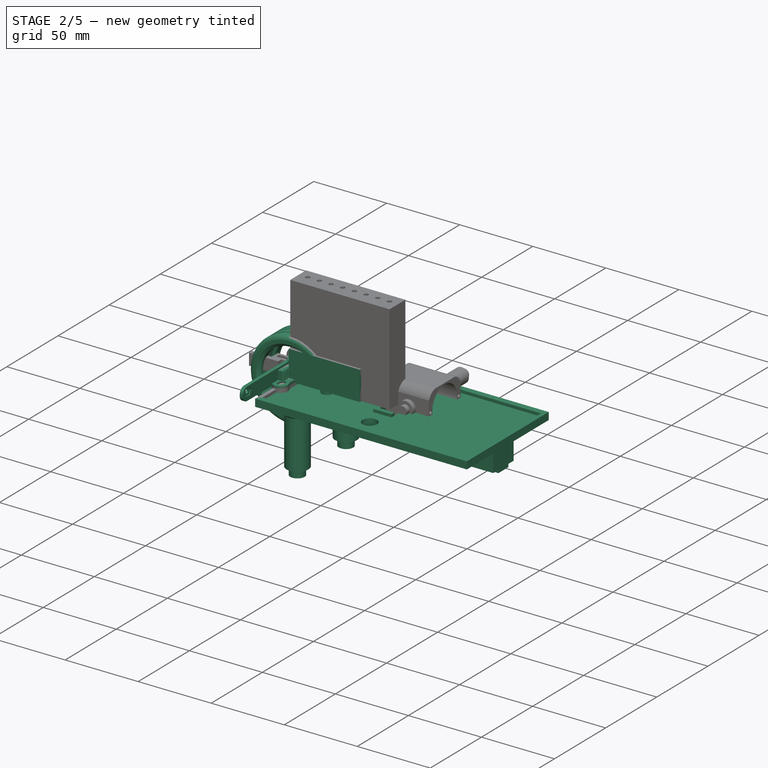
[diagram: stage 2 of 5 — iso view after this stage's code; geometry added in this stage tinted green]
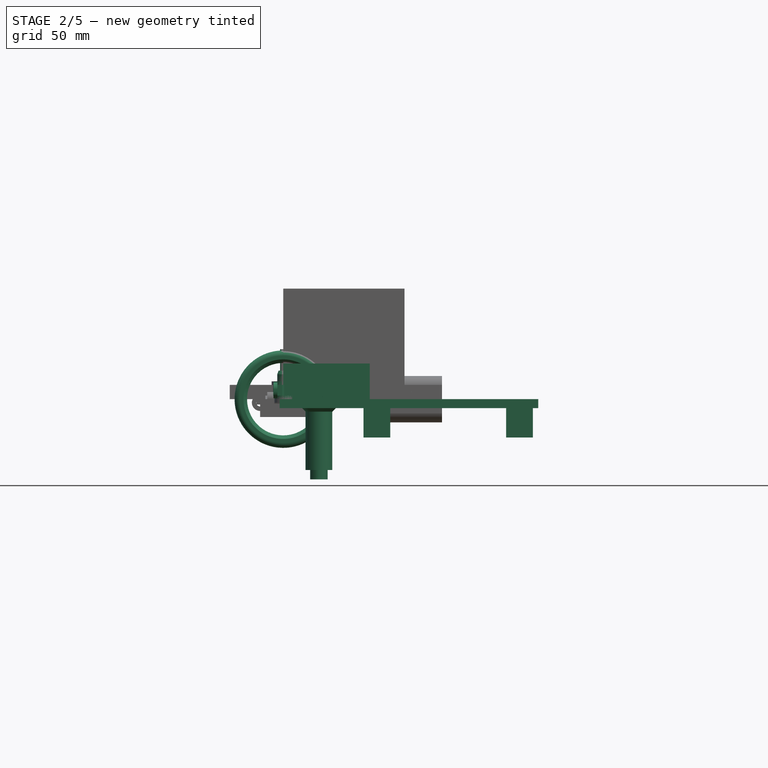
[diagram: stage 2 of 5 — front view after this stage's code; geometry added in this stage tinted green]
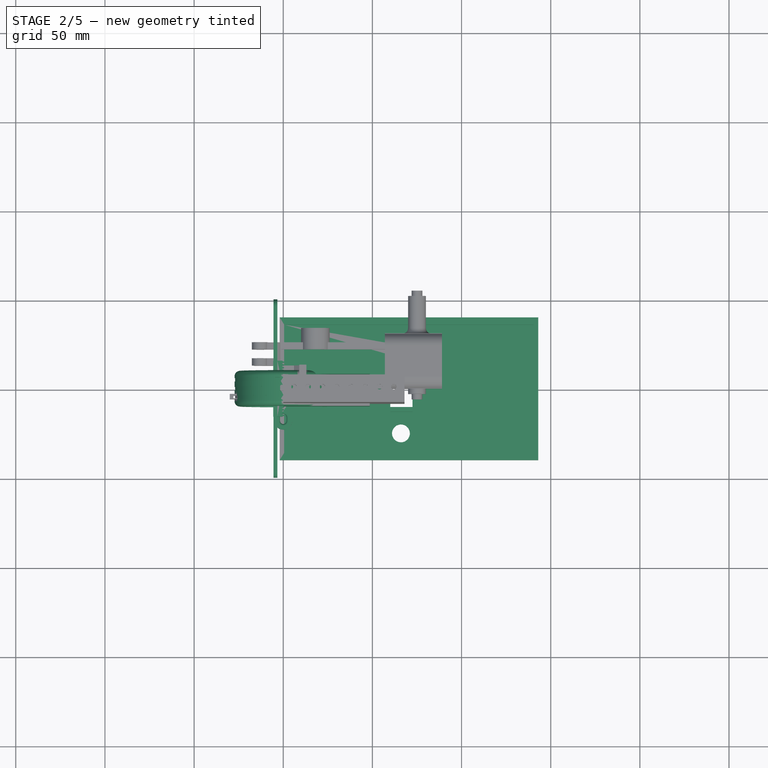
[diagram: stage 2 of 5 — top view after this stage's code; geometry added in this stage tinted green]
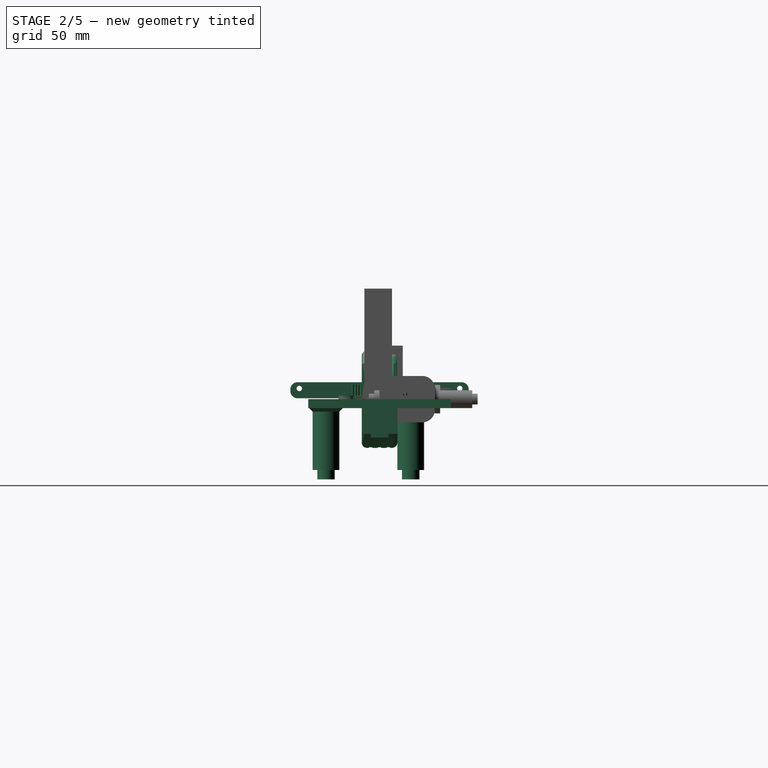
[diagram: stage 2 of 5 — right view after this stage's code; geometry added in this stage tinted green]
FEATURE [PartDesign::Revolution] Revolution
  Angle = 360
  Axis = (1e-16,1,-1e-16)
  Base = (0,0,0)
  Placement = pos=(0,0,0) rot=(0.57735,0.57735,0.57735;2.0944rad)
  Profile = -> Sketch034
  ReferenceAxis = -> Y_Axis004
FEATURE [Sketcher::SketchObject] Sketch033  label="Groove"
  FullyConstrained = true
  MapMode = 5
  Placement = pos=(0,0,0) rot=(0.57735,0.57735,0.57735;2.0944rad)
  Support = -> [YZ_Plane004]
  sketch-geometry (12):
    g0: LineSegment StartX=-6 StartY=29 StartZ=0 EndX=-4 EndY=29 EndZ=0
    g1: LineSegment StartX=-4 StartY=29 StartZ=0 EndX=-4 EndY=27 EndZ=0
    g2: LineSegment StartX=-4 StartY=27 StartZ=0 EndX=-6 EndY=27 EndZ=0
    g3: LineSegment StartX=-6 StartY=27 StartZ=0 EndX=-6 EndY=29 EndZ=0
    g4: LineSegment StartX=-1 StartY=29 StartZ=0 EndX=1 EndY=29 EndZ=0
    g5: LineSegment StartX=1 StartY=29 StartZ=0 EndX=1 EndY=27 EndZ=0
    g6: LineSegment StartX=1 StartY=27 StartZ=0 EndX=-1 EndY=27 EndZ=0
    g7: LineSegment StartX=-1 StartY=27 StartZ=0 EndX=-1 EndY=29 EndZ=0
    g8: LineSegment StartX=4 StartY=29 StartZ=0 EndX=6 EndY=29 EndZ=0
    g9: LineSegment StartX=6 StartY=29 StartZ=0 EndX=6 EndY=27 EndZ=0
    g10: LineSegment StartX=6 StartY=27 StartZ=0 EndX=4 EndY=27 EndZ=0
    g11: LineSegment StartX=4 StartY=27 StartZ=0 EndX=4 EndY=29 EndZ=0
  constraints (36):
    c: Coincident(g0,g1)
    c: Coincident(g1,g2)
    c: Coincident(g2,g3)
    c: Coincident(g3,g0)
    c: Horizontal(g0)
    c: Horizontal(g2)
    c: Vertical(g1)
    c: Vertical(g3)
    c: Coincident(g4,g5)
    c: Coincident(g5,g6)
    c: Coincident(g6,g7)
    c: Coincident(g7,g4)
    c: Horizontal(g4)
    c: Horizontal(g6)
    c: Vertical(g5)
    c: Vertical(g7)
    c: Coincident(g8,g9)
    c: Coincident(g9,g10)
    c: Coincident(g10,g11)
    c: Coincident(g11,g8)
    c: Horizontal(g8)
    c: Horizontal(g10)
    c: Vertical(g9)
    c: Vertical(g11)
    c: DistanceX(g0,g0) = 2
    c: DistanceX(g4,g4) = 2
    c: DistanceX(g8,g8) = 2
    c: DistanceY(g0,g4) = 0
    c: DistanceY(g4,g8) = 0
    c: DistanceY(g6,g1) = 0
    c: DistanceY(g10,g5) = 0
    c: DistanceX(g0,g4) = 3
    c: DistanceX(g4,g8) = 3
    c: DistanceX(g-1,g6) = -1
    c: DistanceY(g-1,g6) = 27
    c: DistanceY(g3,g3) = 2
FEATURE [PartDesign::Groove] Groove  label="Groove001"
  Angle = 360
  Axis = (1e-16,1,-1e-16)
  Base = (0,0,0)
  BaseFeature = -> Revolution
  Placement = pos=(0,0,0) rot=(0.57735,0.57735,0.57735;2.0944rad)
  Profile = -> Sketch033
  ReferenceAxis = -> Y_Axis004
  Reversed = true
FEATURE [PartDesign::Body] Body003  label="Wheel_RL"
  Group = -> [Sketch031,Sketch032,Sketch029,Sketch030,Sketch026,Pad012,Pad013,Pad014,Pocket015,Pocket013,Sketch025,Pocket014,Sketch027,Pocket012,Sketch024,Pad011,Sketch028,Pocket016,Chamfer003,Chamfer001,Chamfer002,Chamfer004]
  Origin = -> Origin003
  Placement = pos=(53.8,9.2,34.9) rot=(0,1,0;3.14159rad)
  Tip = -> Chamfer004
FEATURE [PartDesign::Chamfer] Chamfer006
  Angle = 45
  Base = -> Groove [Edge2]
  BaseFeature = -> Groove
  ChamferType = 0
  FlipDirection = false
  Placement = pos=(0,0,0) rot=(0.57735,0.57735,0.57735;2.0944rad)
  Size = 2
  Size2 = 1
  SupportTransform = false
FEATURE [PartDesign::Pad] Pad031  label="Pad033"
  Direction = (1,1,1)
  Length = 5.5
  Length2 = 100
  Profile = -> Sketch069
  Type = 0
FEATURE [PartDesign::Pad] Pad032  label="Pad034"
  BaseFeature = -> Pad031
  Direction = (1,1,1)
  Length = 16
  Length2 = 100
  Profile = -> Sketch070
  Type = 0
FEATURE [PartDesign::Pad] Pad033  label="Pad035"
  BaseFeature = -> Pad032
  Direction = (1,1,1)
  Length = 28
  Length2 = 100
  Profile = -> Sketch071
  Type = 0
FEATURE [PartDesign::Pad] Pad041  label="Pad043"
  Direction = (1,1,1)
  Length = 9
  Length2 = 100
  Midplane = true
  Placement = pos=(0,0,0) rot=(1,0,0;1.5708rad)
  Profile = -> Sketch015
  Refine = true
  Type = 0
FEATURE [PartDesign::Body] Body030  label="ServoHolder"
  Group = -> [Sketch163,Sketch164,Sketch165,Sketch166,Pad092,Pad091,Pocket066,Pad093,Chamfer022]
  Origin = -> Origin030
  Placement = pos=(-73.8356,4.5,-34.0657) rot=(-1,0,0;1.5708rad)
  Tip = -> Chamfer022
FEATURE [Sketcher::SketchObject] Sketch205  label="Back_Pillar001"
  FullyConstrained = true
  MapMode = 5
  Support = -> [XY_Plane040]
  sketch-geometry (4):
    g0: LineSegment StartX=45 StartY=10 StartZ=0 EndX=140 EndY=10 EndZ=0
    g1: LineSegment StartX=140 StartY=10 StartZ=0 EndX=140 EndY=-10 EndZ=0
    g2: LineSegment StartX=140 StartY=-10 StartZ=0 EndX=45 EndY=-10 EndZ=0
    g3: LineSegment StartX=45 StartY=-10 StartZ=0 EndX=45 EndY=10 EndZ=0
  constraints (12):
    c: Coincident(g0,g1)
    c: Coincident(g1,g2)
    c: Coincident(g2,g3)
    c: Coincident(g3,g0)
    c: Horizontal(g0)
    c: Horizontal(g2)
    c: Vertical(g1)
    c: Vertical(g3)
    c: DistanceY(g1,g1) = 20
    c: DistanceX(g0,g0) = 95
    c: DistanceY(g-1,g0) = 10
    c: DistanceX(g-1,g0) = 45
FEATURE [Sketcher::SketchObject] Sketch206  label="BackPin001"
  FullyConstrained = true
  MapMode = 5
  Support = -> [XY_Plane040]
  sketch-geometry (4):
    g0: LineSegment StartX=140 StartY=4.9 StartZ=0 EndX=45 EndY=4.9 EndZ=0
    g1: LineSegment StartX=45 StartY=4.9 StartZ=0 EndX=45 EndY=-4.9 EndZ=0
    g2: LineSegment StartX=45 StartY=-4.9 StartZ=0 EndX=140 EndY=-4.9 EndZ=0
    g3: LineSegment StartX=140 StartY=-4.9 StartZ=0 EndX=140 EndY=4.9 EndZ=0
  constraints (12):
    c: Coincident(g0,g1)
    c: Coincident(g1,g2)
    c: Coincident(g2,g3)
    c: Coincident(g3,g0)
    c: Horizontal(g0)
    c: Horizontal(g2)
    c: Vertical(g1)
    c: Vertical(g3)
    c: DistanceX(g0,g0) = 95
    c: DistanceY(g3,g3) = 9.8
    c: DistanceY(g-1,g0) = 4.9
    c: DistanceX(g-1,g0) = 45
FEATURE [Sketcher::SketchObject] Sketch207  label="Pin001"
  FullyConstrained = true
  MapMode = 5
  Support = -> [XY_Plane040]
  sketch-geometry (2):
    g0: Circle CenterX=20 CenterY=17.5 CenterZ=0 NormalX=0 NormalY=0 NormalZ=1 AngleXU=0 Radius=4.9
    g1: Circle CenterX=20 CenterY=-30 CenterZ=0 NormalX=0 NormalY=0 NormalZ=1 AngleXU=0 Radius=4.9
  constraints (6):
    c: Radius(g0) = 4.9
    c: Radius(g1) = 4.9
    c: DistanceX(g0,g1) = 0
    c: DistanceY(g1,g0) = 47.5
    c: DistanceY(g-1,g0) = 17.5
    c: DistanceX(g-1,g0) = 20
FEATURE [Sketcher::SketchObject] Sketch208  label="BatteryHolder003"
  FullyConstrained = true
  MapMode = 5
  Support = -> [XY_Plane040]
  sketch-geometry (4):
    g0: LineSegment StartX=0.5 StartY=-36 StartZ=0 EndX=140.5 EndY=-36 EndZ=0
    g1: LineSegment StartX=140.5 StartY=-36 StartZ=0 EndX=140.5 EndY=36 EndZ=0
    g2: LineSegment StartX=140.5 StartY=36 StartZ=0 EndX=0.5 EndY=36 EndZ=0
    g3: LineSegment StartX=0.5 StartY=36 StartZ=0 EndX=0.5 EndY=-36 EndZ=0
  constraints (12):
    c: Coincident(g0,g1)
    c: Coincident(g1,g2)
    c: Coincident(g2,g3)
    c: Coincident(g3,g0)
    c: Horizontal(g0)
    c: Horizontal(g2)
    c: Vertical(g1)
    c: Vertical(g3)
    c: DistanceY(g3,g3) = 72
    c: DistanceX(g0,g0) = 140
    c: DistanceX(g-1,g0) = 0.5
    c: DistanceY(g0,g-1) = 36
FEATURE [Sketcher::SketchObject] Sketch210  label="Pillar002"
  FullyConstrained = true
  MapMode = 5
  Support = -> [XY_Plane040]
  sketch-geometry (2):
    g0: Circle CenterX=20 CenterY=17.5 CenterZ=0 NormalX=0 NormalY=0 NormalZ=1 AngleXU=0 Radius=7.5
    g1: Circle CenterX=20 CenterY=-30 CenterZ=0 NormalX=0 NormalY=0 NormalZ=1 AngleXU=0 Radius=7.5
  constraints (6):
    c: DistanceX(g1,g0) = 0
    c: DistanceY(g1,g0) = 47.5
    c: DistanceY(g-1,g0) = 17.5
    c: Radius(g0) = 7.5
    c: Radius(g1) = 7.5
    c: DistanceX(g-1,g0) = 20
FEATURE [Sketcher::SketchObject] Sketch211  label="Base010"
  FullyConstrained = true
  MapMode = 5
  Support = -> [XY_Plane040]
  sketch-geometry (4):
    g0: LineSegment StartX=-2 StartY=40 StartZ=0 EndX=143 EndY=40 EndZ=0
    g1: LineSegment StartX=143 StartY=40 StartZ=0 EndX=143 EndY=-40 EndZ=0
    g2: LineSegment StartX=143 StartY=-40 StartZ=0 EndX=-2 EndY=-40 EndZ=0
    g3: LineSegment StartX=-2 StartY=-40 StartZ=0 EndX=-2 EndY=40 EndZ=0
  constraints (12):
    c: Coincident(g0,g1)
    c: Coincident(g1,g2)
    c: Coincident(g2,g3)
    c: Coincident(g3,g0)
    c: Horizontal(g0)
    c: Horizontal(g2)
    c: Vertical(g1)
    c: DistanceY(g3,g3) = 80
    c: DistanceY(g-1,g0) = 40
    c: DistanceX(g0,g0) = 145
    c: Vertical(g3)
    c: DistanceX(g0,g-1) = 2
FEATURE [PartDesign::Pad] Pad115  label="Pad118"
  Direction = (1,1,1)
  Length = 5
  Length2 = 100
  Profile = -> Sketch211
  Reversed = true
  Type = 0
FEATURE [PartDesign::Pad] Pad114  label="Pad117"
  BaseFeature = -> Pad115
  Direction = (1,1,1)
  Length = 45
  Length2 = 100
  Profile = -> Sketch207
  Reversed = true
  Type = 0
FEATURE [PartDesign::Pad] Pad116  label="Pad119"
  BaseFeature = -> Pad114
  Direction = (1,1,1)
  Length = 39.7
  Length2 = 100
  Profile = -> Sketch210
  Reversed = true
  Type = 0
FEATURE [PartDesign::Pad] Pad117  label="Pad120"
  BaseFeature = -> Pad116
  Direction = (1,1,1)
  Length = 19.5
  Length2 = 100
  Profile = -> Sketch205
  Reversed = true
  Type = 0
FEATURE [PartDesign::Pad] Pad118  label="Pad121"
  BaseFeature = -> Pad117
  Direction = (1,1,1)
  Length = 21.5
  Length2 = 100
  Profile = -> Sketch206
  Reversed = true
  Type = 0
FEATURE [PartDesign::Pocket] Pocket086  label="Pocket089"
  BaseFeature = -> Pad118
  Length = 2
  Length2 = 100
  Profile = -> Sketch208
  Type = 0
FEATURE [Sketcher::SketchObject] Sketch251
  FullyConstrained = true
  MapMode = 5
  Placement = pos=(0,0,0) rot=(0.57735,0.57735,0.57735;2.0944rad)
  Support = -> [YZ_Plane049]
  sketch-geometry (1):
    g0: Circle CenterX=0 CenterY=0 CenterZ=0 NormalX=0 NormalY=0 NormalZ=1 AngleXU=0 Radius=2.6
  constraints (2):
    c: Coincident(g0,g-1)
    c: Radius(g0) = 2.6
FEATURE [Sketcher::SketchObject] Sketch253
  AttachmentOffset = pos=(0,0,-2) rot=(0,0,1;0rad)
  FullyConstrained = true
  MapMode = 5
  Placement = pos=(-2,4e-16,-4e-16) rot=(0.57735,0.57735,0.57735;2.0944rad)
  Support = -> [YZ_Plane049]
  sketch-geometry (1):
    g0: Circle CenterX=0 CenterY=0 CenterZ=0 NormalX=0 NormalY=0 NormalZ=1 AngleXU=0 Radius=5.15
  constraints (2):
    c: Coincident(g0,g-1)
    c: Radius(g0) = 5.15
FEATURE [Sketcher::SketchObject] Sketch254
  AttachmentOffset = pos=(0,0,-5) rot=(0,0,1;0rad)
  FullyConstrained = true
  MapMode = 5
  Placement = pos=(-5,1.1e-15,-1.1e-15) rot=(0.57735,0.57735,0.57735;2.0944rad)
  Support = -> [YZ_Plane049]
  sketch-geometry (1):
    g0: Circle CenterX=0 CenterY=0 CenterZ=0 NormalX=0 NormalY=0 NormalZ=1 AngleXU=0 Radius=6.5
  constraints (2):
    c: Coincident(g0,g-1)
    c: Radius(g0) = 6.5
FEATURE [Sketcher::SketchObject] Sketch255
  AttachmentOffset = pos=(0,0,-2) rot=(0,0,1;0rad)
  FullyConstrained = true
  MapMode = 5
  Placement = pos=(-2,4e-16,-4e-16) rot=(0.57735,0.57735,0.57735;2.0944rad)
  Support = -> [YZ_Plane049]
  sketch-geometry (1):
    g0: Circle CenterX=0 CenterY=0 CenterZ=0 NormalX=0 NormalY=0 NormalZ=1 AngleXU=0 Radius=5.15
  constraints (2):
    c: Coincident(g0,g-1)
    c: Radius(g0) = 5.15
FEATURE [Sketcher::SketchObject] Sketch258  label="SteeringArm001"
  AttachmentOffset = pos=(0,0,2) rot=(0,0,1;0rad)
  FullyConstrained = true
  MapMode = 5
  Placement = pos=(0,0,2) rot=(0,0,1;0rad)
  Support = -> [XY_Plane049]
  sketch-geometry (8):
    g0: LineSegment StartX=-5 StartY=0 StartZ=0 EndX=4 EndY=0 EndZ=0
    g1: LineSegment StartX=-5 StartY=-18 StartZ=0 EndX=-5 EndY=0 EndZ=0
    g2: LineSegment StartX=4 StartY=-15 StartZ=0 EndX=4 EndY=0 EndZ=0
    g3: ArcOfCircle CenterX=2e-16 CenterY=-18 CenterZ=0 NormalX=0 NormalY=0 NormalZ=1 AngleXU=0 Radius=5 StartAngle=3.14159 EndAngle=6.92669
    g4: ArcOfCircle CenterX=0 CenterY=-18 CenterZ=0 NormalX=0 NormalY=0 NormalZ=1 AngleXU=0 Radius=1.8 StartAngle=3.14159 EndAngle=6.28319
    g5: ArcOfCircle CenterX=1e-16 CenterY=-16 CenterZ=0 NormalX=0 NormalY=0 NormalZ=1 AngleXU=0 Radius=1.8 StartAngle=0 EndAngle=3.14159
    g6: LineSegment StartX=1.8 StartY=-18 StartZ=0 EndX=1.8 EndY=-16 EndZ=0
    g7: LineSegment StartX=-1.8 StartY=-18 StartZ=0 EndX=-1.8 EndY=-16 EndZ=0
  constraints (22):
    c: Coincident(g1,g0)
    c: Horizontal(g0)
    c: Vertical(g1)
    c: PointOnObject(g0,g-1)
    c: Vertical(g2)
    c: Coincident(g0,g2)
    c: DistanceX(g0,g-1) = 5
    c: DistanceX(g0,g0) = 9
    c: Tangent(g3,g1) = 1.5708
    c: Coincident(g3,g2)
    c: Tangent(g4,g7) = 1.5708
    c: Tangent(g4,g6) = -1.5708
    c: Tangent(g6,g5) = -1.5708
    c: Tangent(g7,g5) = 1.5708
    c: Vertical(g6)
    c: Equal(g4,g5)
    c: DistanceY(g3,g-1) = 18
    c: Radius(g4) = 1.8
    c: PointOnObject(g4,g-2)
    c: DistanceY(g4,g3) = 0
    c: DistanceY(g6,g6) = 2
    c: Radius(g3) = 5
FEATURE [Sketcher::SketchObject] Sketch256
  FullyConstrained = true
  MapMode = 5
  Support = -> [XY_Plane049]
  sketch-geometry (1):
    g0: Circle CenterX=0 CenterY=0 CenterZ=0 NormalX=0 NormalY=0 NormalZ=1 AngleXU=0 Radius=4.9
  constraints (2):
    c: Coincident(g0,g-1)
    c: Radius(g0) = 4.9
FEATURE [PartDesign::Pad] Pad145  label="Pad148"
  Direction = (1,1,1)
  Length = 16
  Length2 = 100
  Midplane = true
  Profile = -> Sketch256
  Refine = true
  Type = 0
FEATURE [PartDesign::Pad] Pad143  label="Pad146"
  BaseFeature = -> Pad145
  Direction = (1,1,1)
  Length = 10
  Length2 = 100
  Profile = -> Sketch254
  Refine = true
  Type = 0
FEATURE [Sketcher::SketchObject] Sketch257
  FullyConstrained = true
  MapMode = 5
  Placement = pos=(0,0,0) rot=(0.57735,0.57735,0.57735;2.0944rad)
  Support = -> [YZ_Plane049]
  sketch-geometry (1):
    g0: Circle CenterX=0 CenterY=0 CenterZ=0 NormalX=0 NormalY=0 NormalZ=1 AngleXU=0 Radius=2.6
  constraints (2):
    c: Coincident(g0,g-1)
    c: Radius(g0) = 2.6
FEATURE [Sketcher::SketchObject] Sketch259  label="Offset001"
  AttachmentOffset = pos=(0,0,-5) rot=(0,0,1;0rad)
  FullyConstrained = true
  MapMode = 5
  Placement = pos=(-5,1.1e-15,-1.1e-15) rot=(0.57735,0.57735,0.57735;2.0944rad)
  Support = -> [YZ_Plane049]
  sketch-geometry (2):
    g0: Circle CenterX=0 CenterY=0 CenterZ=0 NormalX=0 NormalY=0 NormalZ=1 AngleXU=0 Radius=5
    g1: Circle CenterX=0 CenterY=0 CenterZ=0 NormalX=0 NormalY=0 NormalZ=1 AngleXU=0 Radius=2.6
  constraints (4):
    c: Coincident(g0,g-1)
    c: Coincident(g1,g0)
    c: Radius(g1) = 2.6
    c: Radius(g0) = 5
FEATURE [PartDesign::Pocket] Pocket103  label="Pocket110"
  BaseFeature = -> Pad143
  Length = 29
  Length2 = 100
  Profile = -> Sketch253
  Refine = true
  Reversed = true
  Type = 0
FEATURE [PartDesign::Pocket] Pocket102  label="Pocket109"
  BaseFeature = -> Pocket103
  Length = 10
  Length2 = 100
  Profile = -> Sketch251
  Refine = true
  Type = 0
FEATURE [PartDesign::Pad] Pad144  label="Pad147"
  BaseFeature = -> Pocket102
  Direction = (1,1,1)
  Length = 2
  Length2 = 100
  Profile = -> Sketch258
  Reversed = true
  Type = 0
FEATURE [PartDesign::Pocket] Pocket101  label="Pocket108"
  BaseFeature = -> Pad144
  Length = 6
  Length2 = 100
  Profile = -> Sketch255
  Reversed = true
  Type = 0
FEATURE [PartDesign::Pocket] Pocket100  label="Pocket107"
  BaseFeature = -> Pocket101
  Length = 5
  Length2 = 100
  Profile = -> Sketch257
  Type = 0
FEATURE [PartDesign::Pad] Pad147  label="Pad150"
  BaseFeature = -> Pocket100
  Direction = (1,1,1)
  Length = 4
  Length2 = 100
  Profile = -> Sketch259
  Reversed = true
  Type = 0
FEATURE [PartDesign::Body] Body063  label="RearBumper"
  Group = -> [Sketch334,Sketch332,Sketch333,Sketch331,Pad187,Pad186,Pocket132,Pad188,Fillet037]
  Origin = -> Origin063
  Placement = pos=(106.1,-0.8,-34) rot=(0.57735,0.57735,0.57735;4.18879rad)
  Tip = -> Fillet037
FEATURE [Sketcher::SketchObject] Sketch387
  AttachmentOffset = pos=(0,0,-5) rot=(0,0,1;0rad)
  FullyConstrained = true
  MapMode = 5
  Placement = pos=(-5,1.1e-15,-1.1e-15) rot=(0.57735,0.57735,0.57735;2.0944rad)
  Support = -> [YZ_Plane049]
  sketch-geometry (2):
    g0: Circle CenterX=0 CenterY=0 CenterZ=0 NormalX=0 NormalY=0 NormalZ=1 AngleXU=0 Radius=5
    g1: Circle CenterX=0 CenterY=0 CenterZ=0 NormalX=0 NormalY=0 NormalZ=1 AngleXU=0 Radius=2.6
  constraints (4):
    c: Coincident(g0,g-1)
    c: Coincident(g1,g0)
    c: Radius(g1) = 2.6
    c: Radius(g0) = 5
FEATURE [PartDesign::Pad] Pad223  label="Pad224"
  BaseFeature = -> Pad147
  Direction = (1,1,1)
  Length = 4
  Length2 = 100
  Profile = -> Sketch387
  Reversed = true
  Type = 0
FEATURE [PartDesign::Body] Body034  label="RearSusHolder"
  Group = -> [Sketch175,Sketch179,Sketch176,Sketch178,Sketch177,Sketch180,Sketch182,Pad098,Pad100,Pocket071,Pad099,Pad101,Pocket072,Pocket073,Sketch183,Sketch181,Pocket074,Pocket075,Fillet045]
  Origin = -> Origin034
  Placement = pos=(86.2,4.5,-34) rot=(-1,0,0;1.5708rad)
  Tip = -> Fillet045
FEATURE [Sketcher::SketchObject] Sketch402  label="ServoHolderSupporter"
  AttachmentOffset = pos=(0,0,-2) rot=(0,0,1;0rad)
  FullyConstrained = true
  MapMode = 5
  Placement = pos=(0,0,-2) rot=(0,0,1;0rad)
  Support = -> [XY_Plane040]
  sketch-geometry (4):
    g0: LineSegment StartX=60 StartY=19 StartZ=0 EndX=72.5 EndY=19 EndZ=0
    g1: LineSegment StartX=72.5 StartY=19 StartZ=0 EndX=72.5 EndY=-13 EndZ=0
    g2: LineSegment StartX=72.5 StartY=-13 StartZ=0 EndX=60 EndY=-13 EndZ=0
    g3: LineSegment StartX=60 StartY=-13 StartZ=0 EndX=60 EndY=19 EndZ=0
  constraints (12):
    c: Coincident(g0,g1)
    c: Coincident(g1,g2)
    c: Coincident(g2,g3)
    c: Coincident(g3,g0)
    c: Horizontal(g0)
    c: Horizontal(g2)
    c: Vertical(g1)
    c: Vertical(g3)
    c: DistanceY(g3,g3) = 32
    c: DistanceY(g-1,g0) = 19
    c: DistanceX(g-1,g0) = 60
    c: DistanceX(g0,g0) = 12.5
FEATURE [PartDesign::Pad] Pad237  label="Pad238"
  BaseFeature = -> Pocket086
  Direction = (1,1,1)
  Length = 2
  Length2 = 100
  Profile = -> Sketch402
  Type = 0
FEATURE [PartDesign::Pocket] Pocket155  label="Pocket166"
  BaseFeature = -> Pad237
  Length = 60
  Length2 = 100
  Midplane = true
  Profile = -> Sketch212
  Type = 0
FEATURE [PartDesign::Body] Body085  label="Gear"
  Group = -> [Sketch444,involutegear005,Sketch445,Pad082,Pocket178]
  Origin = -> Origin085
  Placement = pos=(18.0819,15.0219,-4.5) rot=(0.052264,0.997265,-0.052264;1.57353rad)
  Tip = -> Pocket178
FEATURE [Sketcher::SketchObject] Sketch060  label="Rod"
  FullyConstrained = true
  MapMode = 5
  Support = -> [XY_Plane008]
  sketch-geometry (1):
    g0: Circle CenterX=0 CenterY=0 CenterZ=0 NormalX=0 NormalY=0 NormalZ=1 AngleXU=0 Radius=3.5
  constraints (2):
    c: Coincident(g0,g-1)
    c: Radius(g0) = 3.5
FEATURE [Sketcher::SketchObject] Sketch059  label="RodHole"
  FullyConstrained = true
  MapMode = 5
  Support = -> [XY_Plane008]
  sketch-geometry (1):
    g0: Circle CenterX=0 CenterY=0 CenterZ=0 NormalX=0 NormalY=0 NormalZ=1 AngleXU=0 Radius=1.3
  constraints (2):
    c: Coincident(g0,g-1)
    c: Radius(g0) = 1.3
FEATURE [Sketcher::SketchObject] Sketch058  label="MidCircle"
  AttachmentOffset = pos=(0,0,-3) rot=(0,0,1;0rad)
  FullyConstrained = true
  MapMode = 5
  Placement = pos=(0,0,-3) rot=(0,0,1;0rad)
  Support = -> [XY_Plane008]
  sketch-geometry (1):
    g0: Circle CenterX=0 CenterY=0 CenterZ=0 NormalX=0 NormalY=0 NormalZ=1 AngleXU=0 Radius=13
  constraints (2):
    c: Coincident(g0,g-1)
    c: Radius(g0) = 13
FEATURE [Part::FeaturePython] involutegear006  # WARN: FeaturePython — macro-defined, semantics opaque (R4)
  AttacherType = Attacher::AttachEngine3D
  backlash = 0
  beta = 0
  clearance = 0.25
  da = 7.2
  df = 3.6
  double_helix = false
  dw = 5.6
  head = 0
  height = 8.5
  module = 0.8
  numpoints = 6
  pressure_angle = 20
  properties_from_tool = false
  reversed_backlash = false
  shift = 0
  simple = false
  teeth = 7
  transverse_pitch = 2.51327
  undercut = false
  version = 0.0.3
FEATURE [PartDesign::Body] Body008  label="MidGear_RL"
  BaseFeature = -> involutegear006
  Group = -> [BaseFeature001,Sketch058,Sketch059,Sketch060,Pad025,crowngear,Pad257,Pocket182]
  Origin = -> Origin008
  Placement = pos=(35.7826,10.9535,-8.3) rot=(0,0,1;0rad)
  Tip = -> Pocket182
FEATURE [PartDesign::Chamfer] Chamfer055
  Angle = 20
  Base = -> Pad033 [Edge26]
  BaseFeature = -> Pad033
  ChamferType = 2
  FlipDirection = false
  Size = 2
  Size2 = 1
  SupportTransform = false
FEATURE [PartDesign::Chamfer] Chamfer056
  Angle = 45
  Base = -> Chamfer055 [Edge28,Edge30,Edge32,Edge34]
  BaseFeature = -> Chamfer055
  ChamferType = 0
  FlipDirection = false
  Size = 0.5
  Size2 = 1
  SupportTransform = false
FEATURE [PartDesign::Body] Body011  label="Rear_Axle_RL"
  Group = -> [Sketch069,Sketch070,Sketch071,Pad031,Pad032,Pad033,Chamfer055,Chamfer056]
  Origin = -> Origin011
  Placement = pos=(53.8,9.5,-3.8) rot=(0,0,1;0rad)
  Tip = -> Chamfer056
FEATURE [PartDesign::Fillet] Fillet059
  Base = -> Chamfer006 [Edge2,Edge34]
  BaseFeature = -> Chamfer006
  Placement = pos=(0,0,0) rot=(0.57735,0.57735,0.57735;2.0944rad)
  Radius = 3
  SupportTransform = false
FEATURE [PartDesign::Body] Body004  label="Tire_RL"
  Group = -> [Sketch034,Sketch033,Revolution,Groove,Chamfer006,Fillet059]
  Origin = -> Origin004
  Placement = pos=(54.1,9,25.2) rot=(0,0.707107,-0.707107;3.14159rad)
  Tip = -> Fillet059
FEATURE [Sketcher::SketchObject] Sketch450  label="Base023"
  FullyConstrained = true
  MapMode = 5
  Placement = pos=(0,0,0) rot=(0.57735,0.57735,0.57735;2.0944rad)
  Support = -> [YZ_Plane087]
  sketch-geometry (12):
    g0: LineSegment StartX=-10 StartY=27.3 StartZ=0 EndX=-10 EndY=20.3 EndZ=0
    g1: LineSegment StartX=-10 StartY=20.3 StartZ=0 EndX=-4.5 EndY=20.3 EndZ=0
    g2: LineSegment StartX=-4.5 StartY=20.3 StartZ=0 EndX=-4.5 EndY=22.3 EndZ=0
    g3: LineSegment StartX=-4.5 StartY=22.3 StartZ=0 EndX=-8.5 EndY=22.3 EndZ=0
    g4: LineSegment StartX=-8.5 StartY=22.3 StartZ=0 EndX=-8.5 EndY=23.3 EndZ=0
    g5: LineSegment StartX=-8.5 StartY=23.3 StartZ=0 EndX=8.5 EndY=23.3 EndZ=0
    g6: LineSegment StartX=8.5 StartY=23.3 StartZ=0 EndX=8.5 EndY=22.3 EndZ=0
    g7: LineSegment StartX=8.5 StartY=22.3 StartZ=0 EndX=4.5 EndY=22.3 EndZ=0
    g8: LineSegment StartX=4.5 StartY=22.3 StartZ=0 EndX=4.5 EndY=20.3 EndZ=0
    g9: LineSegment StartX=4.5 StartY=20.3 StartZ=0 EndX=10 EndY=20.3 EndZ=0
    g10: LineSegment StartX=10 StartY=20.3 StartZ=0 EndX=10 EndY=27.3 EndZ=0
    g11: LineSegment StartX=10 StartY=27.3 StartZ=0 EndX=-10 EndY=27.3 EndZ=0
  constraints (36):
    c: Vertical(g0)
    c: Coincident(g0,g1)
    c: Coincident(g1,g2)
    c: Vertical(g2)
    c: Coincident(g2,g3)
    c: Coincident(g3,g4)
    c: Vertical(g4)
    c: Coincident(g4,g5)
    c: Horizontal(g5)
    c: Coincident(g5,g6)
    c: Vertical(g6)
    c: Coincident(g6,g7)
    c: Horizontal(g7)
    c: Coincident(g7,g8)
    c: Vertical(g8)
    c: Coincident(g8,g9)
    c: Horizontal(g9)
    c: Coincident(g9,g10)
    c: Vertical(g10)
    c: Coincident(g10,g11)
    c: Coincident(g11,g0)
    c: Horizontal(g11)
    c: Horizontal(g1)
    c: Horizontal(g3)
    c: DistanceX(g0,g-1) = 10
    c: DistanceX(g11,g11) = 20
    c: DistanceY(g1,g8) = 0
    c: DistanceY(g2,g7) = 0
    c: DistanceY(g4,g0) = 4
    c: DistanceY(g2,g2) = 2
    c: DistanceX(g5,g5) = 17
    c: DistanceX(g5,g10) = 1.5
    c: DistanceX(g3,g3) = 4
    c: DistanceX(g7,g7) = 4
    c: DistanceY(g10,g10) = 7
    c: DistanceY(g-1,g1) = 20.3
FEATURE [PartDesign::Revolution] Revolution001
  Angle = 360
  Axis = (1e-16,1,-1e-16)
  Base = (0,0,0)
  Placement = pos=(0,0,0) rot=(0.57735,0.57735,0.57735;2.0944rad)
  Profile = -> Sketch450
  ReferenceAxis = -> Y_Axis087
FEATURE [Sketcher::SketchObject] Sketch451  label="Groove009"
  FullyConstrained = true
  MapMode = 5
  Placement = pos=(0,0,0) rot=(0.57735,0.57735,0.57735;2.0944rad)
  Support = -> [YZ_Plane087]
  sketch-geometry (12):
    g0: LineSegment StartX=-6 StartY=29 StartZ=0 EndX=-4 EndY=29 EndZ=0
    g1: LineSegment StartX=-4 StartY=29 StartZ=0 EndX=-4 EndY=27 EndZ=0
    g2: LineSegment StartX=-4 StartY=27 StartZ=0 EndX=-6 EndY=27 EndZ=0
    g3: LineSegment StartX=-6 StartY=27 StartZ=0 EndX=-6 EndY=29 EndZ=0
    g4: LineSegment StartX=-1 StartY=29 StartZ=0 EndX=1 EndY=29 EndZ=0
    g5: LineSegment StartX=1 StartY=29 StartZ=0 EndX=1 EndY=27 EndZ=0
    g6: LineSegment StartX=1 StartY=27 StartZ=0 EndX=-1 EndY=27 EndZ=0
    g7: LineSegment StartX=-1 StartY=27 StartZ=0 EndX=-1 EndY=29 EndZ=0
    g8: LineSegment StartX=4 StartY=29 StartZ=0 EndX=6 EndY=29 EndZ=0
    g9: LineSegment StartX=6 StartY=29 StartZ=0 EndX=6 EndY=27 EndZ=0
    g10: LineSegment StartX=6 StartY=27 StartZ=0 EndX=4 EndY=27 EndZ=0
    g11: LineSegment StartX=4 StartY=27 StartZ=0 EndX=4 EndY=29 EndZ=0
  constraints (36):
    c: Coincident(g0,g1)
    c: Coincident(g1,g2)
    c: Coincident(g2,g3)
    c: Coincident(g3,g0)
    c: Horizontal(g0)
    c: Horizontal(g2)
    c: Vertical(g1)
    c: Vertical(g3)
    c: Coincident(g4,g5)
    c: Coincident(g5,g6)
    c: Coincident(g6,g7)
    c: Coincident(g7,g4)
    c: Horizontal(g4)
    c: Horizontal(g6)
    c: Vertical(g5)
    c: Vertical(g7)
    c: Coincident(g8,g9)
    c: Coincident(g9,g10)
    c: Coincident(g10,g11)
    c: Coincident(g11,g8)
    c: Horizontal(g8)
    c: Horizontal(g10)
    c: Vertical(g9)
    c: Vertical(g11)
    c: DistanceX(g0,g0) = 2
    c: DistanceX(g4,g4) = 2
    c: DistanceX(g8,g8) = 2
    c: DistanceY(g0,g4) = 0
    c: DistanceY(g4,g8) = 0
    c: DistanceY(g6,g1) = 0
    c: DistanceY(g10,g5) = 0
    c: DistanceX(g0,g4) = 3
    c: DistanceX(g4,g8) = 3
    c: DistanceX(g-1,g6) = -1
    c: DistanceY(g-1,g6) = 27
    c: DistanceY(g3,g3) = 2
FEATURE [PartDesign::Groove] Groove006  label="Groove008"
  Angle = 360
  Axis = (1e-16,1,-1e-16)
  Base = (0,0,0)
  BaseFeature = -> Revolution001
  Placement = pos=(0,0,0) rot=(0.57735,0.57735,0.57735;2.0944rad)
  Profile = -> Sketch451
  ReferenceAxis = -> Y_Axis087
  Reversed = true
FEATURE [PartDesign::Chamfer] Chamfer057
  Angle = 45
  Base = -> Groove006 [Edge2]
  BaseFeature = -> Groove006
  ChamferType = 0
  FlipDirection = false
  Placement = pos=(0,0,0) rot=(0.57735,0.57735,0.57735;2.0944rad)
  Size = 2
  Size2 = 1
  SupportTransform = false
FEATURE [PartDesign::Fillet] Fillet060
  Base = -> Chamfer057 [Edge2,Edge34]
  BaseFeature = -> Chamfer057
  Placement = pos=(0,0,0) rot=(0.57735,0.57735,0.57735;2.0944rad)
  Radius = 3
  SupportTransform = false
FEATURE [PartDesign::Body] Body087  label="Tire_FL"
  Group = -> [Sketch450,Sketch451,Revolution001,Groove006,Chamfer057,Fillet060]
  Origin = -> Origin087
  Placement = pos=(-104.9,10,28.2) rot=(0,0.707107,-0.707107;3.14159rad)
  Tip = -> Fillet060
FEATURE [Sketcher::SketchObject] Sketch452  label="Base024"
  FullyConstrained = true
  MapMode = 5
  Placement = pos=(0,0,0) rot=(0.57735,0.57735,0.57735;2.0944rad)
  Support = -> [YZ_Plane088]
  sketch-geometry (12):
    g0: LineSegment StartX=-10 StartY=27.3 StartZ=0 EndX=-10 EndY=20.3 EndZ=0
    g1: LineSegment StartX=-10 StartY=20.3 StartZ=0 EndX=-4.5 EndY=20.3 EndZ=0
    g2: LineSegment StartX=-4.5 StartY=20.3 StartZ=0 EndX=-4.5 EndY=22.3 EndZ=0
    g3: LineSegment StartX=-4.5 StartY=22.3 StartZ=0 EndX=-8.5 EndY=22.3 EndZ=0
    g4: LineSegment StartX=-8.5 StartY=22.3 StartZ=0 EndX=-8.5 EndY=23.3 EndZ=0
    g5: LineSegment StartX=-8.5 StartY=23.3 StartZ=0 EndX=8.5 EndY=23.3 EndZ=0
    g6: LineSegment StartX=8.5 StartY=23.3 StartZ=0 EndX=8.5 EndY=22.3 EndZ=0
    g7: LineSegment StartX=8.5 StartY=22.3 StartZ=0 EndX=4.5 EndY=22.3 EndZ=0
    g8: LineSegment StartX=4.5 StartY=22.3 StartZ=0 EndX=4.5 EndY=20.3 EndZ=0
    g9: LineSegment StartX=4.5 StartY=20.3 StartZ=0 EndX=10 EndY=20.3 EndZ=0
    g10: LineSegment StartX=10 StartY=20.3 StartZ=0 EndX=10 EndY=27.3 EndZ=0
    g11: LineSegment StartX=10 StartY=27.3 StartZ=0 EndX=-10 EndY=27.3 EndZ=0
  constraints (36):
    c: Vertical(g0)
    c: Coincident(g0,g1)
    c: Coincident(g1,g2)
    c: Vertical(g2)
    c: Coincident(g2,g3)
    c: Coincident(g3,g4)
    c: Vertical(g4)
    c: Coincident(g4,g5)
    c: Horizontal(g5)
    c: Coincident(g5,g6)
    c: Vertical(g6)
    c: Coincident(g6,g7)
    c: Horizontal(g7)
    c: Coincident(g7,g8)
    c: Vertical(g8)
    c: Coincident(g8,g9)
    c: Horizontal(g9)
    c: Coincident(g9,g10)
    c: Vertical(g10)
    c: Coincident(g10,g11)
    c: Coincident(g11,g0)
    c: Horizontal(g11)
    c: Horizontal(g1)
    c: Horizontal(g3)
    c: DistanceX(g0,g-1) = 10
    c: DistanceX(g11,g11) = 20
    c: DistanceY(g1,g8) = 0
    c: DistanceY(g2,g7) = 0
    c: DistanceY(g4,g0) = 4
    c: DistanceY(g2,g2) = 2
    c: DistanceX(g5,g5) = 17
    c: DistanceX(g5,g10) = 1.5
    c: DistanceX(g3,g3) = 4
    c: DistanceX(g7,g7) = 4
    c: DistanceY(g10,g10) = 7
    c: DistanceY(g-1,g1) = 20.3
FEATURE [Sketcher::SketchObject] Sketch453  label="Groove010"
  FullyConstrained = true
  MapMode = 5
  Placement = pos=(0,0,0) rot=(0.57735,0.57735,0.57735;2.0944rad)
  Support = -> [YZ_Plane088]
  sketch-geometry (12):
    g0: LineSegment StartX=-6 StartY=29 StartZ=0 EndX=-4 EndY=29 EndZ=0
    g1: LineSegment StartX=-4 StartY=29 StartZ=0 EndX=-4 EndY=27 EndZ=0
    g2: LineSegment StartX=-4 StartY=27 StartZ=0 EndX=-6 EndY=27 EndZ=0
    g3: LineSegment StartX=-6 StartY=27 StartZ=0 EndX=-6 EndY=29 EndZ=0
    g4: LineSegment StartX=-1 StartY=29 StartZ=0 EndX=1 EndY=29 EndZ=0
    g5: LineSegment StartX=1 StartY=29 StartZ=0 EndX=1 EndY=27 EndZ=0
    g6: LineSegment StartX=1 StartY=27 StartZ=0 EndX=-1 EndY=27 EndZ=0
    g7: LineSegment StartX=-1 StartY=27 StartZ=0 EndX=-1 EndY=29 EndZ=0
    g8: LineSegment StartX=4 StartY=29 StartZ=0 EndX=6 EndY=29 EndZ=0
    g9: LineSegment StartX=6 StartY=29 StartZ=0 EndX=6 EndY=27 EndZ=0
    g10: LineSegment StartX=6 StartY=27 StartZ=0 EndX=4 EndY=27 EndZ=0
    g11: LineSegment StartX=4 StartY=27 StartZ=0 EndX=4 EndY=29 EndZ=0
  constraints (36):
    c: Coincident(g0,g1)
    c: Coincident(g1,g2)
    c: Coincident(g2,g3)
    c: Coincident(g3,g0)
    c: Horizontal(g0)
    c: Horizontal(g2)
    c: Vertical(g1)
    c: Vertical(g3)
    c: Coincident(g4,g5)
    c: Coincident(g5,g6)
    c: Coincident(g6,g7)
    c: Coincident(g7,g4)
    c: Horizontal(g4)
    c: Horizontal(g6)
    c: Vertical(g5)
    c: Vertical(g7)
    c: Coincident(g8,g9)
    c: Coincident(g9,g10)
    c: Coincident(g10,g11)
    c: Coincident(g11,g8)
    c: Horizontal(g8)
    c: Horizontal(g10)
    c: Vertical(g9)
    c: Vertical(g11)
    c: DistanceX(g0,g0) = 2
    c: DistanceX(g4,g4) = 2
    c: DistanceX(g8,g8) = 2
    c: DistanceY(g0,g4) = 0
    c: DistanceY(g4,g8) = 0
    c: DistanceY(g6,g1) = 0
    c: DistanceY(g10,g5) = 0
    c: DistanceX(g0,g4) = 3
    c: DistanceX(g4,g8) = 3
    c: DistanceX(g-1,g6) = -1
    c: DistanceY(g-1,g6) = 27
    c: DistanceY(g3,g3) = 2
FEATURE [PartDesign::Revolution] Revolution002
  Angle = 360
  Axis = (1e-16,1,-1e-16)
  Base = (0,0,0)
  Placement = pos=(0,0,0) rot=(0.57735,0.57735,0.57735;2.0944rad)
  Profile = -> Sketch452
  ReferenceAxis = -> Y_Axis088
FEATURE [PartDesign::Groove] Groove007  label="Groove011"
  Angle = 360
  Axis = (1e-16,1,-1e-16)
  Base = (0,0,0)
  BaseFeature = -> Revolution002
  Placement = pos=(0,0,0) rot=(0.57735,0.57735,0.57735;2.0944rad)
  Profile = -> Sketch453
  ReferenceAxis = -> Y_Axis088
  Reversed = true
FEATURE [PartDesign::Chamfer] Chamfer058
  Angle = 45
  Base = -> Groove007 [Edge2]
  BaseFeature = -> Groove007
  ChamferType = 0
  FlipDirection = false
  Placement = pos=(0,0,0) rot=(0.57735,0.57735,0.57735;2.0944rad)
  Size = 2
  Size2 = 1
  SupportTransform = false
FEATURE [PartDesign::Fillet] Fillet061
  Base = -> Chamfer058 [Edge2,Edge34]
  BaseFeature = -> Chamfer058
  Placement = pos=(0,0,0) rot=(0.57735,0.57735,0.57735;2.0944rad)
  Radius = 3
  SupportTransform = false
FEATURE [PartDesign::Body] Body088  label="Tire_FR"
  Group = -> [Sketch452,Sketch453,Revolution002,Groove007,Chamfer058,Fillet061]
  Origin = -> Origin088
  Placement = pos=(-104.9,10,-96.3) rot=(0,0.707107,0.707107;3.14159rad)
  Tip = -> Fillet061
FEATURE [Sketcher::SketchObject] Sketch454  label="Base025"
  FullyConstrained = true
  MapMode = 5
  Placement = pos=(0,0,0) rot=(0.57735,0.57735,0.57735;2.0944rad)
  Support = -> [YZ_Plane089]
  sketch-geometry (12):
    g0: LineSegment StartX=-10 StartY=27.3 StartZ=0 EndX=-10 EndY=20.3 EndZ=0
    g1: LineSegment StartX=-10 StartY=20.3 StartZ=0 EndX=-4.5 EndY=20.3 EndZ=0
    g2: LineSegment StartX=-4.5 StartY=20.3 StartZ=0 EndX=-4.5 EndY=22.3 EndZ=0
    g3: LineSegment StartX=-4.5 StartY=22.3 StartZ=0 EndX=-8.5 EndY=22.3 EndZ=0
    g4: LineSegment StartX=-8.5 StartY=22.3 StartZ=0 EndX=-8.5 EndY=23.3 EndZ=0
    g5: LineSegment StartX=-8.5 StartY=23.3 StartZ=0 EndX=8.5 EndY=23.3 EndZ=0
    g6: LineSegment StartX=8.5 StartY=23.3 StartZ=0 EndX=8.5 EndY=22.3 EndZ=0
    g7: LineSegment StartX=8.5 StartY=22.3 StartZ=0 EndX=4.5 EndY=22.3 EndZ=0
    g8: LineSegment StartX=4.5 StartY=22.3 StartZ=0 EndX=4.5 EndY=20.3 EndZ=0
    g9: LineSegment StartX=4.5 StartY=20.3 StartZ=0 EndX=10 EndY=20.3 EndZ=0
    g10: LineSegment StartX=10 StartY=20.3 StartZ=0 EndX=10 EndY=27.3 EndZ=0
    g11: LineSegment StartX=10 StartY=27.3 StartZ=0 EndX=-10 EndY=27.3 EndZ=0
  constraints (36):
    c: Vertical(g0)
    c: Coincident(g0,g1)
    c: Coincident(g1,g2)
    c: Vertical(g2)
    c: Coincident(g2,g3)
    c: Coincident(g3,g4)
    c: Vertical(g4)
    c: Coincident(g4,g5)
    c: Horizontal(g5)
    c: Coincident(g5,g6)
    c: Vertical(g6)
    c: Coincident(g6,g7)
    c: Horizontal(g7)
    c: Coincident(g7,g8)
    c: Vertical(g8)
    c: Coincident(g8,g9)
    c: Horizontal(g9)
    c: Coincident(g9,g10)
    c: Vertical(g10)
    c: Coincident(g10,g11)
    c: Coincident(g11,g0)
    c: Horizontal(g11)
    c: Horizontal(g1)
    c: Horizontal(g3)
    c: DistanceX(g0,g-1) = 10
    c: DistanceX(g11,g11) = 20
    c: DistanceY(g1,g8) = 0
    c: DistanceY(g2,g7) = 0
    c: DistanceY(g4,g0) = 4
    c: DistanceY(g2,g2) = 2
    c: DistanceX(g5,g5) = 17
    c: DistanceX(g5,g10) = 1.5
    c: DistanceX(g3,g3) = 4
    c: DistanceX(g7,g7) = 4
    c: DistanceY(g10,g10) = 7
    c: DistanceY(g-1,g1) = 20.3
FEATURE [Sketcher::SketchObject] Sketch455  label="Groove012"
  FullyConstrained = true
  MapMode = 5
  Placement = pos=(0,0,0) rot=(0.57735,0.57735,0.57735;2.0944rad)
  Support = -> [YZ_Plane089]
  sketch-geometry (12):
    g0: LineSegment StartX=-6 StartY=29 StartZ=0 EndX=-4 EndY=29 EndZ=0
    g1: LineSegment StartX=-4 StartY=29 StartZ=0 EndX=-4 EndY=27 EndZ=0
    g2: LineSegment StartX=-4 StartY=27 StartZ=0 EndX=-6 EndY=27 EndZ=0
    g3: LineSegment StartX=-6 StartY=27 StartZ=0 EndX=-6 EndY=29 EndZ=0
    g4: LineSegment StartX=-1 StartY=29 StartZ=0 EndX=1 EndY=29 EndZ=0
    g5: LineSegment StartX=1 StartY=29 StartZ=0 EndX=1 EndY=27 EndZ=0
    g6: LineSegment StartX=1 StartY=27 StartZ=0 EndX=-1 EndY=27 EndZ=0
    g7: LineSegment StartX=-1 StartY=27 StartZ=0 EndX=-1 EndY=29 EndZ=0
    g8: LineSegment StartX=4 StartY=29 StartZ=0 EndX=6 EndY=29 EndZ=0
    g9: LineSegment StartX=6 StartY=29 StartZ=0 EndX=6 EndY=27 EndZ=0
    g10: LineSegment StartX=6 StartY=27 StartZ=0 EndX=4 EndY=27 EndZ=0
    g11: LineSegment StartX=4 StartY=27 StartZ=0 EndX=4 EndY=29 EndZ=0
  constraints (36):
    c: Coincident(g0,g1)
    c: Coincident(g1,g2)
    c: Coincident(g2,g3)
    c: Coincident(g3,g0)
    c: Horizontal(g0)
    c: Horizontal(g2)
    c: Vertical(g1)
    c: Vertical(g3)
    c: Coincident(g4,g5)
    c: Coincident(g5,g6)
    c: Coincident(g6,g7)
    c: Coincident(g7,g4)
    c: Horizontal(g4)
    c: Horizontal(g6)
    c: Vertical(g5)
    c: Vertical(g7)
    c: Coincident(g8,g9)
    c: Coincident(g9,g10)
    c: Coincident(g10,g11)
    c: Coincident(g11,g8)
    c: Horizontal(g8)
    c: Horizontal(g10)
    c: Vertical(g9)
    c: Vertical(g11)
    c: DistanceX(g0,g0) = 2
    c: DistanceX(g4,g4) = 2
    c: DistanceX(g8,g8) = 2
    c: DistanceY(g0,g4) = 0
    c: DistanceY(g4,g8) = 0
    c: DistanceY(g6,g1) = 0
    c: DistanceY(g10,g5) = 0
    c: DistanceX(g0,g4) = 3
    c: DistanceX(g4,g8) = 3
    c: DistanceX(g-1,g6) = -1
    c: DistanceY(g-1,g6) = 27
    c: DistanceY(g3,g3) = 2
FEATURE [PartDesign::Revolution] Revolution003
  Angle = 360
  Axis = (1e-16,1,-1e-16)
  Base = (0,0,0)
  Placement = pos=(0,0,0) rot=(0.57735,0.57735,0.57735;2.0944rad)
  Profile = -> Sketch454
  ReferenceAxis = -> Y_Axis089
FEATURE [PartDesign::Groove] Groove008  label="Groove013"
  Angle = 360
  Axis = (1e-16,1,-1e-16)
  Base = (0,0,0)
  BaseFeature = -> Revolution003
  Placement = pos=(0,0,0) rot=(0.57735,0.57735,0.57735;2.0944rad)
  Profile = -> Sketch455
  ReferenceAxis = -> Y_Axis089
  Reversed = true
FEATURE [PartDesign::Chamfer] Chamfer059
  Angle = 45
  Base = -> Groove008 [Edge2]
  BaseFeature = -> Groove008
  ChamferType = 0
  FlipDirection = false
  Placement = pos=(0,0,0) rot=(0.57735,0.57735,0.57735;2.0944rad)
  Size = 2
  Size2 = 1
  SupportTransform = false
FEATURE [PartDesign::Fillet] Fillet062
  Base = -> Chamfer059 [Edge2,Edge34]
  BaseFeature = -> Chamfer059
  Placement = pos=(0,0,0) rot=(0.57735,0.57735,0.57735;2.0944rad)
  Radius = 3
  SupportTransform = false
FEATURE [PartDesign::Body] Body089  label="Tire_RR"
  Group = -> [Sketch454,Sketch455,Revolution003,Groove008,Chamfer059,Fillet062]
  Origin = -> Origin089
  Placement = pos=(51.6,9,-94.3) rot=(0,0.707107,0.707107;3.14159rad)
  Tip = -> Fillet062
FEATURE [Sketcher::SketchObject] Sketch456
  FullyConstrained = true
  MapMode = 5
  Support = -> [XY_Plane090]
  sketch-geometry (1):
    g0: Circle CenterX=0 CenterY=0 CenterZ=0 NormalX=0 NormalY=0 NormalZ=1 AngleXU=0 Radius=6.5
  constraints (2):
    c: Coincident(g0,g-1)
    c: Radius(g0) = 6.5
FEATURE [Sketcher::SketchObject] Sketch457
  FullyConstrained = true
  MapMode = 5
  Support = -> [XY_Plane090]
  sketch-geometry (1):
    g0: Circle CenterX=0 CenterY=0 CenterZ=0 NormalX=0 NormalY=0 NormalZ=1 AngleXU=0 Radius=4
  constraints (2):
    c: Coincident(g0,g-1)
    c: Radius(g0) = 4
FEATURE [PartDesign::Pad] Pad258  label="Pad260"
  Direction = (1,1,1)
  Length = 10
  Length2 = 100
  Profile = -> Sketch456
  Type = 0
FEATURE [PartDesign::Pocket] Pocket183  label="Pocket194"
  BaseFeature = -> Pad258
  Length = 20
  Length2 = 100
  Profile = -> Sketch457
  Reversed = true
  Type = 0
FEATURE [PartDesign::Fillet] Fillet063
  Base = -> Pocket183 [Edge4]
  BaseFeature = -> Pocket183
  Radius = 1.5
  SupportTransform = false
FEATURE [PartDesign::Body] Body090  label="GapFiller"
  Group = -> [Sketch456,Sketch457,Pad258,Pocket183,Fillet063]
  Origin = -> Origin090
  Placement = pos=(-105,13.9904,-5.76795) rot=(-1,0,0;2.00713rad)
  Tip = -> Fillet063
FEATURE [Sketcher::SketchObject] Sketch460  label="Base026"
  FullyConstrained = true
  MapMode = 5
  Support = -> [XY_Plane092]
  sketch-geometry (4):
    g0: LineSegment StartX=0 StartY=10 StartZ=0 EndX=48.5 EndY=10 EndZ=0
    g1: LineSegment StartX=48.5 StartY=10 StartZ=0 EndX=48.5 EndY=-10 EndZ=0
    g2: LineSegment StartX=48.5 StartY=-10 StartZ=0 EndX=0 EndY=-10 EndZ=0
    g3: LineSegment StartX=0 StartY=-10 StartZ=0 EndX=0 EndY=10 EndZ=0
  constraints (12):
    c: Coincident(g0,g1)
    c: Coincident(g1,g2)
    c: Coincident(g2,g3)
    c: Coincident(g3,g0)
    c: Horizontal(g0)
    c: Horizontal(g2)
    c: Vertical(g1)
    c: Vertical(g3)
    c: PointOnObject(g0,g-2)
    c: DistanceY(g-1,g0) = 10
    c: DistanceY(g3,g3) = 20
    c: DistanceX(g0,g0) = 48.5
FEATURE [PartDesign::Pad] Pad261  label="Pad263"
  Direction = (1,1,1)
  Length = 20
  Length2 = 100
  Profile = -> Sketch460
  Type = 0
FEATURE [Sketcher::SketchObject] Sketch461  label="Mid"
  AttachmentOffset = pos=(0,0,3) rot=(0,0,1;0rad)
  FullyConstrained = true
  MapMode = 5
  Placement = pos=(0,0,3) rot=(0,0,1;0rad)
  Support = -> [XY_Plane092]
  sketch-geometry (4):
    g0: LineSegment StartX=0 StartY=8 StartZ=0 EndX=55 EndY=8 EndZ=0
    g1: LineSegment StartX=55 StartY=8 StartZ=0 EndX=55 EndY=-8 EndZ=0
    g2: LineSegment StartX=55 StartY=-8 StartZ=0 EndX=0 EndY=-8 EndZ=0
    g3: LineSegment StartX=0 StartY=-8 StartZ=0 EndX=0 EndY=8 EndZ=0
  constraints (12):
    c: Coincident(g0,g1)
    c: Coincident(g1,g2)
    c: Coincident(g2,g3)
    c: Coincident(g3,g0)
    c: Horizontal(g0)
    c: Horizontal(g2)
    c: Vertical(g1)
    c: Vertical(g3)
    c: PointOnObject(g0,g-2)
    c: DistanceY(g3,g3) = 16
    c: DistanceY(g-1,g0) = 8
    c: DistanceX(g0,g0) = 55
FEATURE [Sketcher::SketchObject] Sketch462
  FullyConstrained = true
  MapMode = 5
  Support = -> [XY_Plane092]
  sketch-geometry (2):
    g0: Circle CenterX=14 CenterY=0 CenterZ=0 NormalX=0 NormalY=0 NormalZ=1 AngleXU=0 Radius=5
    g1: Circle CenterX=34 CenterY=0 CenterZ=0 NormalX=0 NormalY=0 NormalZ=1 AngleXU=0 Radius=5
  constraints (6):
    c: PointOnObject(g0,g-1)
    c: PointOnObject(g1,g-1)
    c: Radius(g0) = 5
    c: Radius(g1) = 5
    c: DistanceX(g0,g1) = 20
    c: DistanceX(g-1,g1) = 34
FEATURE [Sketcher::SketchObject] Sketch463  label="Small"
  AttachmentOffset = pos=(0,0,3) rot=(0,0,1;0rad)
  FullyConstrained = true
  MapMode = 5
  Placement = pos=(0,0,3) rot=(0,0,1;0rad)
  Support = -> [XY_Plane092]
  sketch-geometry (4):
    g0: LineSegment StartX=0 StartY=8 StartZ=0 EndX=55 EndY=8 EndZ=0
    g1: LineSegment StartX=55 StartY=8 StartZ=0 EndX=55 EndY=-5.5 EndZ=0
    g2: LineSegment StartX=55 StartY=-5.5 StartZ=0 EndX=0 EndY=-5.5 EndZ=0
    g3: LineSegment StartX=0 StartY=-5.5 StartZ=0 EndX=0 EndY=8 EndZ=0
  constraints (12):
    c: Coincident(g0,g1)
    c: Coincident(g1,g2)
    c: Coincident(g2,g3)
    c: Coincident(g3,g0)
    c: Horizontal(g0)
    c: Horizontal(g2)
    c: Vertical(g1)
    c: Vertical(g3)
    c: PointOnObject(g0,g-2)
    c: DistanceY(g3,g3) = 13.5
    c: DistanceY(g-1,g0) = 8
    c: DistanceX(g0,g0) = 55
FEATURE [PartDesign::Pocket] Pocket187  label="Pocket198"
  BaseFeature = -> Pad261
  Length = 100
  Length2 = 100
  Profile = -> Sketch463
  Reversed = true
  Type = 0
FEATURE [PartDesign::Pocket] Pocket186  label="Pocket197"
  BaseFeature = -> Pocket187
  Length = 10
  Length2 = 100
  Profile = -> Sketch461
  Reversed = true
  Type = 0
FEATURE [PartDesign::Pad] Pad260  label="Pad262"
  BaseFeature = -> Pocket186
  Direction = (1,1,1)
  Length = 5
  Length2 = 100
  Profile = -> Sketch462
  Reversed = true
  Type = 0
FEATURE [PartDesign::Body] Body092  label="AAABatHolder"
  Group = -> [Sketch460,Sketch463,Sketch461,Pad261,Pocket187,Pocket186,Sketch462,Pad260]
  Origin = -> Origin092
  Placement = pos=(12,4.5,-34) rot=(-1,0,0;1.5708rad)
  Tip = -> Pad260
FEATURE [Sketcher::SketchObject] Sketch475
  FullyConstrained = true
  MapMode = 5
  Support = -> [XY_Plane001]
  sketch-geometry (1):
    g0: Circle CenterX=0 CenterY=0 CenterZ=0 NormalX=0 NormalY=0 NormalZ=1 AngleXU=0 Radius=1.4
  constraints (2):
    c: Coincident(g0,g-1)
    c: Radius(g0) = 1.4
FEATURE [PartDesign::Pocket] Pocket195  label="Pocket205"
  BaseFeature = -> Pad041
  Length = 20
  Length2 = 100
  Midplane = true
  Placement = pos=(0,0,0) rot=(1,0,0;1.5708rad)
  Profile = -> Sketch475
  Type = 0
FEATURE [Sketcher::SketchObject] Sketch476
  AttachmentOffset = pos=(0,0,8) rot=(0,0,1;0rad)
  FullyConstrained = true
  MapMode = 5
  Placement = pos=(0,0,8) rot=(0,0,1;0rad)
  Support = -> [XY_Plane001]
  sketch-geometry (1):
    g0: Circle CenterX=0 CenterY=0 CenterZ=0 NormalX=0 NormalY=0 NormalZ=1 AngleXU=0 Radius=2.7
  constraints (2):
    c: Coincident(g0,g-1)
    c: Radius(g0) = 2.7
FEATURE [PartDesign::Pocket] Pocket196  label="Pocket206"
  BaseFeature = -> Pocket195
  Length = 5
  Length2 = 100
  Placement = pos=(0,0,0) rot=(1,0,0;1.5708rad)
  Profile = -> Sketch476
  Reversed = true
  Type = 0
FEATURE [PartDesign::Pocket] Pocket200  label="Pocket210"
  BaseFeature = -> Pocket196
  Length = 1
  Length2 = 100
  Placement = pos=(0,0,0) rot=(1,0,0;1.5708rad)
  Profile = -> Sketch016
  Reversed = true
  Type = 0
FEATURE [PartDesign::Body] Body014  label="Left_Knucle_Connector_Upper"
  Group = -> [Sketch015,Sketch016,Pad041,Sketch475,Pocket195,Sketch476,Pocket196,Pocket200]
  Origin = -> Origin001
  Placement = pos=(-104.3,27.7,10.8) rot=(0.57735,0.57735,0.57735;4.18879rad)
  Tip = -> Pocket200
FEATURE [Sketcher::SketchObject] Sketch479  label="Hexagon1"
  AttachmentOffset = pos=(0,0,8) rot=(0,0,1;0rad)
  FullyConstrained = true
  MapMode = 5
  Placement = pos=(0,0,8) rot=(0,0,1;0rad)
  Support = -> [XY_Plane049]
  sketch-geometry (7):
    g0: LineSegment StartX=2.8 StartY=1.61658 StartZ=0 EndX=0 EndY=3.23316 EndZ=0
    g1: LineSegment StartX=0 StartY=3.23316 StartZ=0 EndX=-2.8 EndY=1.61658 EndZ=0
    g2: LineSegment StartX=-2.8 StartY=1.61658 StartZ=0 EndX=-2.8 EndY=-1.61658 EndZ=0
    g3: LineSegment StartX=-2.8 StartY=-1.61658 StartZ=0 EndX=0 EndY=-3.23316 EndZ=0
    g4: LineSegment StartX=0 StartY=-3.23316 StartZ=0 EndX=2.8 EndY=-1.61658 EndZ=0
    g5: LineSegment StartX=2.8 StartY=-1.61658 StartZ=0 EndX=2.8 EndY=1.61658 EndZ=0
    g6: Circle CenterX=0 CenterY=0 CenterZ=0 NormalX=0 NormalY=0 NormalZ=1 AngleXU=0 Radius=3.23316
  constraints (16):
    c: Coincident(g0,g1)
    c: Coincident(g1,g2)
    c: Coincident(g2,g3)
    c: Coincident(g3,g4)
    c: Coincident(g4,g5)
    c: Coincident(g5,g0)
    c: Equal(g0, g1-g5) x5
    c: PointOnObject(g0,g6)
    c: PointOnObject(g1,g6)
    c: PointOnObject(g2,g6)
    c: PointOnObject(g3,g6)
    c: PointOnObject(g4,g6)
    c: PointOnObject(g5,g6)
    c: Coincident(g6,g-1)
    c: Vertical(g5)
    c: DistanceX(g-1,g0) = 2.8
FEATURE [Sketcher::SketchObject] Sketch480  label="Hexagon2"
  AttachmentOffset = pos=(0,0,-8) rot=(0,0,1;0rad)
  FullyConstrained = true
  MapMode = 5
  Placement = pos=(0,0,-8) rot=(0,0,1;0rad)
  Support = -> [XY_Plane049]
  sketch-geometry (7):
    g0: LineSegment StartX=2.8 StartY=1.61658 StartZ=0 EndX=0 EndY=3.23316 EndZ=0
    g1: LineSegment StartX=0 StartY=3.23316 StartZ=0 EndX=-2.8 EndY=1.61658 EndZ=0
    g2: LineSegment StartX=-2.8 StartY=1.61658 StartZ=0 EndX=-2.8 EndY=-1.61658 EndZ=0
    g3: LineSegment StartX=-2.8 StartY=-1.61658 StartZ=0 EndX=0 EndY=-3.23316 EndZ=0
    g4: LineSegment StartX=-2e-16 StartY=-3.23316 StartZ=0 EndX=2.8 EndY=-1.61658 EndZ=0
    g5: LineSegment StartX=2.8 StartY=-1.61658 StartZ=0 EndX=2.8 EndY=1.61658 EndZ=0
    g6: Circle CenterX=0 CenterY=0 CenterZ=0 NormalX=0 NormalY=0 NormalZ=1 AngleXU=0 Radius=3.23316
  constraints (16):
    c: Coincident(g0,g1)
    c: Coincident(g1,g2)
    c: Coincident(g2,g3)
    c: Coincident(g3,g4)
    c: Coincident(g4,g5)
    c: Coincident(g5,g0)
    c: Equal(g0, g1-g5) x5
    c: PointOnObject(g0,g6)
    c: PointOnObject(g1,g6)
    c: PointOnObject(g2,g6)
    c: PointOnObject(g3,g6)
    c: PointOnObject(g4,g6)
    c: PointOnObject(g5,g6)
    c: Coincident(g6,g-1)
    c: Vertical(g5)
    c: DistanceX(g-1,g0) = 2.8
FEATURE [PartDesign::Pocket] Pocket201  label="Pocket211"
  BaseFeature = -> Pad223
  Length = 1.5
  Length2 = 100
  Profile = -> Sketch479
  Type = 0
FEATURE [PartDesign::Pocket] Pocket202  label="Pocket212"
  BaseFeature = -> Pocket201
  Length = 1.5
  Length2 = 100
  Profile = -> Sketch480
  Reversed = true
  Type = 0
FEATURE [Sketcher::SketchObject] Sketch481
  FullyConstrained = true
  MapMode = 5
  Placement = pos=(0,0,-6.5) rot=(1,0,0;3.14159rad)
  Support = -> [Pocket202]
  sketch-geometry (1):
    g0: Circle CenterX=0 CenterY=0 CenterZ=0 NormalX=0 NormalY=0 NormalZ=1 AngleXU=0 Radius=1.5
  constraints (2):
    c: Coincident(g0,g-1)
    c: Radius(g0) = 1.5
FEATURE [PartDesign::Pocket] Pocket203  label="Pocket213"
  BaseFeature = -> Pocket202
  Length = 30
  Length2 = 100
  Midplane = true
  Profile = -> Sketch481
  Type = 0
FEATURE [PartDesign::Fillet] Fillet064
  Base = -> Pocket203 [Face22]
  BaseFeature = -> Pocket203
  Radius = 0.99
  SupportTransform = false
FEATURE [PartDesign::Body] Body049  label="Right_Knucle"
  Group = -> [Sketch256,Sketch254,Sketch253,Pad145,Pad143,Pocket103,Sketch251,Pocket102,Sketch258,Sketch255,Sketch257,Pad144,Pocket101,Pocket100,Sketch259,Pad147,Sketch387,Pad223,Sketch479,Sketch480,Pocket201,Pocket202,Sketch481,Pocket203,Fillet064]
  Origin = -> Origin049
  Placement = pos=(-104,10.1255,9.4648) rot=(0.57735,-0.57735,-0.57735;4.18879rad)
  Tip = -> Fillet064
FEATURE [Sketcher::SketchObject] Sketch482  label="big"
  FullyConstrained = true
  MapMode = 5
  Placement = pos=(0,0,0) rot=(1,0,0;1.5708rad)
  Support = -> [XZ_Plane096]
  sketch-geometry (1):
    g0: Circle CenterX=0 CenterY=0 CenterZ=0 NormalX=0 NormalY=0 NormalZ=1 AngleXU=0 Radius=3
  constraints (2):
    c: Coincident(g0,g-1)
    c: Radius(g0) = 3
FEATURE [Sketcher::SketchObject] Sketch483  label="small"
  FullyConstrained = true
  MapMode = 5
  Placement = pos=(0,0,0) rot=(1,0,0;1.5708rad)
  Support = -> [XZ_Plane096]
  sketch-geometry (1):
    g0: Circle CenterX=0 CenterY=0 CenterZ=0 NormalX=0 NormalY=0 NormalZ=1 AngleXU=0 Radius=1.8
  constraints (2):
    c: Coincident(g0,g-1)
    c: Radius(g0) = 1.8
FEATURE [PartDesign::Pad] Pad266  label="Pad268"
  Direction = (1,1,1)
  Length = 1.5
  Length2 = 100
  Placement = pos=(0,0,0) rot=(1,0,0;1.5708rad)
  Profile = -> Sketch482
  Type = 0
FEATURE [PartDesign::Pad] Pad267  label="Pad269"
  BaseFeature = -> Pad266
  Direction = (1,1,1)
  Length = 8.5
  Length2 = 100
  Placement = pos=(0,0,0) rot=(1,0,0;1.5708rad)
  Profile = -> Sketch483
  Type = 0
FEATURE [PartDesign::Body] Body095  label="Bolt_Knucle_8.5"
  Group = -> [Sketch482,Sketch483,Pad266,Pad267]
  Origin = -> Origin096
  Placement = pos=(-125,44,-20) rot=(0,0,1;1.5708rad)
  Tip = -> Pad267
FEATURE [Sketcher::SketchObject] Sketch484
  FullyConstrained = true
  MapMode = 5
  Placement = pos=(0,0,0) rot=(1,0,0;1.5708rad)
  Support = -> [XZ_Plane097]
  sketch-geometry (5):
    g0: LineSegment StartX=-5 StartY=0 StartZ=0 EndX=5 EndY=0 EndZ=0
    g1: Circle CenterX=0 CenterY=5 CenterZ=0 NormalX=0 NormalY=0 NormalZ=1 AngleXU=0 Radius=2.1
    g2: ArcOfCircle CenterX=0 CenterY=5 CenterZ=0 NormalX=0 NormalY=0 NormalZ=1 AngleXU=0 Radius=5 StartAngle=3.39501e-06 EndAngle=3.14159
    g3: LineSegment StartX=5 StartY=5.00002 StartZ=0 EndX=5 EndY=0 EndZ=0
    g4: LineSegment StartX=-5 StartY=5.00002 StartZ=0 EndX=-5 EndY=0 EndZ=0
  constraints (15):
    c: Horizontal(g0)
    c: PointOnObject(g0,g-1)
    c: DistanceX(g0,g0) = 10
    c: DistanceX(g-1,g0) = 5
    c: PointOnObject(g1,g-2)
    c: Radius(g1) = 2.1
    c: DistanceY(g-1,g1) = 5
    c: Coincident(g2,g1)
    c: Radius(g2) = 5
    c: Coincident(g3,g2)
    c: Coincident(g3,g0)
    c: Vertical(g3)
    c: Coincident(g4,g2)
    c: Coincident(g4,g0)
    c: Vertical(g4)
FEATURE [PartDesign::Pad] Pad268  label="Pad270"
  Direction = (1,1,1)
  Length = 9
  Length2 = 100
  Midplane = true
  Placement = pos=(0,0,0) rot=(1,0,0;1.5708rad)
  Profile = -> Sketch484
  Refine = true
  Type = 0
FEATURE [Sketcher::SketchObject] Sketch485
  FullyConstrained = true
  MapMode = 5
  Support = -> [XY_Plane097]
  sketch-geometry (1):
    g0: Circle CenterX=0 CenterY=0 CenterZ=0 NormalX=0 NormalY=0 NormalZ=1 AngleXU=0 Radius=3
  constraints (3):
    c: PointOnObject(g0,g-2)
    c: Radius(g0) = 3
    c: DistanceY(g0,g-1) = 0
FEATURE [Sketcher::SketchObject] Sketch486
  AttachmentOffset = pos=(0,0,8) rot=(0,0,1;0rad)
  FullyConstrained = true
  MapMode = 5
  Placement = pos=(0,0,8) rot=(0,0,1;0rad)
  Support = -> [XY_Plane097]
  sketch-geometry (1):
    g0: Circle CenterX=0 CenterY=0 CenterZ=0 NormalX=0 NormalY=0 NormalZ=1 AngleXU=0 Radius=2.7
  constraints (2):
    c: Coincident(g0,g-1)
    c: Radius(g0) = 2.7
FEATURE [Sketcher::SketchObject] Sketch487
  FullyConstrained = true
  MapMode = 5
  Support = -> [XY_Plane097]
  sketch-geometry (1):
    g0: Circle CenterX=0 CenterY=0 CenterZ=0 NormalX=0 NormalY=0 NormalZ=1 AngleXU=0 Radius=1.4
  constraints (2):
    c: Coincident(g0,g-1)
    c: Radius(g0) = 1.4
FEATURE [PartDesign::Pocket] Pocket204  label="Pocket214"
  BaseFeature = -> Pad268
  Length = 20
  Length2 = 100
  Midplane = true
  Placement = pos=(0,0,0) rot=(1,0,0;1.5708rad)
  Profile = -> Sketch487
  Type = 0
FEATURE [PartDesign::Pocket] Pocket206  label="Pocket216"
  BaseFeature = -> Pocket204
  Length = 5
  Length2 = 100
  Placement = pos=(0,0,0) rot=(1,0,0;1.5708rad)
  Profile = -> Sketch486
  Reversed = true
  Type = 0
FEATURE [PartDesign::Pocket] Pocket205  label="Pocket215"
  BaseFeature = -> Pocket206
  Length = 1
  Length2 = 100
  Placement = pos=(0,0,0) rot=(1,0,0;1.5708rad)
  Profile = -> Sketch485
  Reversed = true
  Type = 0
FEATURE [PartDesign::Body] Body096  label="Left_Knucle_Connector_Lower"
  Group = -> [Sketch484,Sketch485,Pad268,Sketch487,Pocket204,Sketch486,Pocket206,Pocket205]
  Origin = -> Origin097
  Placement = pos=(-104.3,1.7,9.8) rot=(0.57735,0.57735,-0.57735;2.0944rad)
  Tip = -> Pocket205
FEATURE [Sketcher::SketchObject] Sketch488
  AttachmentOffset = pos=(0,0,8) rot=(0,0,1;0rad)
  FullyConstrained = true
  MapMode = 5
  Placement = pos=(0,0,8) rot=(0,0,1;0rad)
  Support = -> [XY_Plane098]
  sketch-geometry (1):
    g0: Circle CenterX=0 CenterY=0 CenterZ=0 NormalX=0 NormalY=0 NormalZ=1 AngleXU=0 Radius=2.7
  constraints (2):
    c: Coincident(g0,g-1)
    c: Radius(g0) = 2.7
FEATURE [Sketcher::SketchObject] Sketch489
  FullyConstrained = true
  MapMode = 5
  Placement = pos=(0,0,0) rot=(1,0,0;1.5708rad)
  Support = -> [XZ_Plane098]
  sketch-geometry (5):
    g0: LineSegment StartX=-5 StartY=0 StartZ=0 EndX=5 EndY=0 EndZ=0
    g1: Circle CenterX=0 CenterY=5 CenterZ=0 NormalX=0 NormalY=0 NormalZ=1 AngleXU=0 Radius=2.1
    g2: ArcOfCircle CenterX=0 CenterY=5 CenterZ=0 NormalX=0 NormalY=0 NormalZ=1 AngleXU=0 Radius=5 StartAngle=3.39501e-06 EndAngle=3.14159
    g3: LineSegment StartX=5 StartY=5.00002 StartZ=0 EndX=5 EndY=0 EndZ=0
    g4: LineSegment StartX=-5 StartY=5.00002 StartZ=0 EndX=-5 EndY=0 EndZ=0
  constraints (15):
    c: Horizontal(g0)
    c: PointOnObject(g0,g-1)
    c: DistanceX(g0,g0) = 10
    c: DistanceX(g-1,g0) = 5
    c: PointOnObject(g1,g-2)
    c: Radius(g1) = 2.1
    c: DistanceY(g-1,g1) = 5
    c: Coincident(g2,g1)
    c: Radius(g2) = 5
    c: Coincident(g3,g2)
    c: Coincident(g3,g0)
    c: Vertical(g3)
    c: Coincident(g4,g2)
    c: Coincident(g4,g0)
    c: Vertical(g4)
FEATURE [Sketcher::SketchObject] Sketch490
  FullyConstrained = true
  MapMode = 5
  Support = -> [XY_Plane098]
  sketch-geometry (1):
    g0: Circle CenterX=0 CenterY=0 CenterZ=0 NormalX=0 NormalY=0 NormalZ=1 AngleXU=0 Radius=3
  constraints (3):
    c: PointOnObject(g0,g-2)
    c: Radius(g0) = 3
    c: DistanceY(g0,g-1) = 0
FEATURE [PartDesign::Pad] Pad269  label="Pad271"
  Direction = (1,1,1)
  Length = 9
  Length2 = 100
  Midplane = true
  Placement = pos=(0,0,0) rot=(1,0,0;1.5708rad)
  Profile = -> Sketch489
  Refine = true
  Type = 0
FEATURE [Sketcher::SketchObject] Sketch491
  FullyConstrained = true
  MapMode = 5
  Support = -> [XY_Plane098]
  sketch-geometry (1):
    g0: Circle CenterX=0 CenterY=0 CenterZ=0 NormalX=0 NormalY=0 NormalZ=1 AngleXU=0 Radius=1.4
  constraints (2):
    c: Coincident(g0,g-1)
    c: Radius(g0) = 1.4
FEATURE [PartDesign::Pocket] Pocket207  label="Pocket217"
  BaseFeature = -> Pad269
  Length = 20
  Length2 = 100
  Midplane = true
  Placement = pos=(0,0,0) rot=(1,0,0;1.5708rad)
  Profile = -> Sketch491
  Type = 0
FEATURE [PartDesign::Pocket] Pocket209  label="Pocket219"
  BaseFeature = -> Pocket207
  Length = 5
  Length2 = 100
  Placement = pos=(0,0,0) rot=(1,0,0;1.5708rad)
  Profile = -> Sketch488
  Reversed = true
  Type = 0
FEATURE [PartDesign::Pocket] Pocket208  label="Pocket218"
  BaseFeature = -> Pocket209
  Length = 1
  Length2 = 100
  Placement = pos=(0,0,0) rot=(1,0,0;1.5708rad)
  Profile = -> Sketch490
  Reversed = true
  Type = 0
FEATURE [PartDesign::Body] Body097  label="Right_Knucle_Connector_Lower"
  Group = -> [Sketch489,Sketch490,Pad269,Sketch491,Pocket207,Sketch488,Pocket209,Pocket208]
  Origin = -> Origin098
  Placement = pos=(-104.3,1.7,-78.7) rot=(0.57735,0.57735,-0.57735;2.0944rad)
  Tip = -> Pocket208
FEATURE [Sketcher::SketchObject] Sketch492
  AttachmentOffset = pos=(0,0,8) rot=(0,0,1;0rad)
  FullyConstrained = true
  MapMode = 5
  Placement = pos=(0,0,8) rot=(0,0,1;0rad)
  Support = -> [XY_Plane099]
  sketch-geometry (1):
    g0: Circle CenterX=0 CenterY=0 CenterZ=0 NormalX=0 NormalY=0 NormalZ=1 AngleXU=0 Radius=2.7
  constraints (2):
    c: Coincident(g0,g-1)
    c: Radius(g0) = 2.7
FEATURE [Sketcher::SketchObject] Sketch493
  FullyConstrained = true
  MapMode = 5
  Placement = pos=(0,0,0) rot=(1,0,0;1.5708rad)
  Support = -> [XZ_Plane099]
  sketch-geometry (5):
    g0: LineSegment StartX=-5 StartY=0 StartZ=0 EndX=5 EndY=0 EndZ=0
    g1: Circle CenterX=0 CenterY=5 CenterZ=0 NormalX=0 NormalY=0 NormalZ=1 AngleXU=0 Radius=2.1
    g2: ArcOfCircle CenterX=0 CenterY=5 CenterZ=0 NormalX=0 NormalY=0 NormalZ=1 AngleXU=0 Radius=5 StartAngle=3.39501e-06 EndAngle=3.14159
    g3: LineSegment StartX=5 StartY=5.00002 StartZ=0 EndX=5 EndY=0 EndZ=0
    g4: LineSegment StartX=-5 StartY=5.00002 StartZ=0 EndX=-5 EndY=0 EndZ=0
  constraints (15):
    c: Horizontal(g0)
    c: PointOnObject(g0,g-1)
    c: DistanceX(g0,g0) = 10
    c: DistanceX(g-1,g0) = 5
    c: PointOnObject(g1,g-2)
    c: Radius(g1) = 2.1
    c: DistanceY(g-1,g1) = 5
    c: Coincident(g2,g1)
    c: Radius(g2) = 5
    c: Coincident(g3,g2)
    c: Coincident(g3,g0)
    c: Vertical(g3)
    c: Coincident(g4,g2)
    c: Coincident(g4,g0)
    c: Vertical(g4)
FEATURE [PartDesign::Pad] Pad270  label="Pad272"
  Direction = (1,1,1)
  Length = 9
  Length2 = 100
  Midplane = true
  Placement = pos=(0,0,0) rot=(1,0,0;1.5708rad)
  Profile = -> Sketch493
  Refine = true
  Type = 0
FEATURE [Sketcher::SketchObject] Sketch494
  FullyConstrained = true
  MapMode = 5
  Support = -> [XY_Plane099]
  sketch-geometry (1):
    g0: Circle CenterX=0 CenterY=0 CenterZ=0 NormalX=0 NormalY=0 NormalZ=1 AngleXU=0 Radius=1.4
  constraints (2):
    c: Coincident(g0,g-1)
    c: Radius(g0) = 1.4
FEATURE [PartDesign::Pocket] Pocket211  label="Pocket221"
  BaseFeature = -> Pad270
  Length = 20
  Length2 = 100
  Midplane = true
  Placement = pos=(0,0,0) rot=(1,0,0;1.5708rad)
  Profile = -> Sketch494
  Type = 0
FEATURE [PartDesign::Pocket] Pocket210  label="Pocket220"
  BaseFeature = -> Pocket211
  Length = 5
  Length2 = 100
  Placement = pos=(0,0,0) rot=(1,0,0;1.5708rad)
  Profile = -> Sketch492
  Reversed = true
  Type = 0
FEATURE [Sketcher::SketchObject] Sketch495
  FullyConstrained = true
  MapMode = 5
  Support = -> [XY_Plane099]
  sketch-geometry (1):
    g0: Circle CenterX=0 CenterY=0 CenterZ=0 NormalX=0 NormalY=0 NormalZ=1 AngleXU=0 Radius=3
  constraints (3):
    c: PointOnObject(g0,g-2)
    c: Radius(g0) = 3
    c: DistanceY(g0,g-1) = 0
FEATURE [PartDesign::Pocket] Pocket212  label="Pocket222"
  BaseFeature = -> Pocket210
  Length = 1
  Length2 = 100
  Placement = pos=(0,0,0) rot=(1,0,0;1.5708rad)
  Profile = -> Sketch495
  Reversed = true
  Type = 0
FEATURE [PartDesign::Body] Body098  label="Right_Knucle_Connector_Upper"
  Group = -> [Sketch493,Sketch495,Pad270,Sketch494,Pocket211,Sketch492,Pocket210,Pocket212]
  Origin = -> Origin099
  Placement = pos=(-104.3,19.2,-77.7) rot=(0.57735,0.57735,0.57735;4.18879rad)
  Tip = -> Pocket212
FEATURE [Sketcher::SketchObject] Sketch500
  AttachmentOffset = pos=(0,0,-3) rot=(0,0,1;0rad)
  FullyConstrained = true
  MapMode = 5
  Placement = pos=(-3,7e-16,-7e-16) rot=(0.57735,0.57735,0.57735;2.0944rad)
  Support = -> [YZ_Plane100]
  sketch-geometry (14):
    g0: LineSegment StartX=-41.9 StartY=6 StartZ=0 EndX=-43.45 EndY=8.68468 EndZ=0
    g1: LineSegment StartX=-43.45 StartY=8.68468 StartZ=0 EndX=-46.55 EndY=8.68468 EndZ=0
    g2: LineSegment StartX=-46.55 StartY=8.68468 StartZ=0 EndX=-48.1 EndY=6 EndZ=0
    g3: LineSegment StartX=-48.1 StartY=6 StartZ=0 EndX=-46.55 EndY=3.31532 EndZ=0
    g4: LineSegment StartX=-46.55 StartY=3.31532 StartZ=0 EndX=-43.45 EndY=3.31532 EndZ=0
    g5: LineSegment StartX=-43.45 StartY=3.31532 StartZ=0 EndX=-41.9 EndY=6 EndZ=0
    g6: Circle CenterX=-45 CenterY=6 CenterZ=0 NormalX=0 NormalY=0 NormalZ=1 AngleXU=0 Radius=3.1
    g7: LineSegment StartX=48.1 StartY=6 StartZ=0 EndX=46.55 EndY=8.68468 EndZ=0
    g8: LineSegment StartX=46.55 StartY=8.68468 StartZ=0 EndX=43.45 EndY=8.68468 EndZ=0
    g9: LineSegment StartX=43.45 StartY=8.68468 StartZ=0 EndX=41.9 EndY=6 EndZ=0
    g10: LineSegment StartX=41.9 StartY=6 StartZ=0 EndX=43.45 EndY=3.31532 EndZ=0
    g11: LineSegment StartX=43.45 StartY=3.31532 StartZ=0 EndX=46.55 EndY=3.31532 EndZ=0
    g12: LineSegment StartX=46.55 StartY=3.31532 StartZ=0 EndX=48.1 EndY=6 EndZ=0
    g13: Circle CenterX=45 CenterY=6 CenterZ=0 NormalX=0 NormalY=0 NormalZ=1 AngleXU=0 Radius=3.1
  constraints (34):
    c: Coincident(g0,g1)
    c: Coincident(g1,g2)
    c: Coincident(g2,g3)
    c: Coincident(g3,g4)
    c: Coincident(g4,g5)
    c: Coincident(g5,g0)
    c: Equal(g0, g1-g5) x5
    c: PointOnObject(g0,g6)
    c: PointOnObject(g1,g6)
    c: PointOnObject(g2,g6)
    c: PointOnObject(g3,g6)
    c: PointOnObject(g4,g6)
    c: PointOnObject(g5,g6)
    c: Coincident(g7,g8)
    c: Coincident(g8,g9)
    c: Coincident(g9,g10)
    c: Coincident(g10,g11)
    c: Coincident(g11,g12)
    c: Coincident(g12,g7)
    c: Equal(g7, g8-g12) x5
    c: PointOnObject(g7,g13)
    c: PointOnObject(g8,g13)
    c: PointOnObject(g9,g13)
    c: PointOnObject(g10,g13)
    c: PointOnObject(g11,g13)
    c: PointOnObject(g12,g13)
    c: DistanceY(g13,g6) = 0
    c: Radius(g6) = 3.1
    c: Radius(g13) = 3.1
    c: Horizontal(g4)
    c: Horizontal(g11)
    c: DistanceX(g6,g-1) = 45
    c: DistanceX(g6,g13) = 90
    c: DistanceY(g-1,g6) = 6
FEATURE [Sketcher::SketchObject] Sketch501
  FullyConstrained = true
  MapMode = 5
  Placement = pos=(0,0,0) rot=(0.57735,0.57735,0.57735;2.0944rad)
  Support = -> [YZ_Plane100]
  sketch-geometry (2):
    g0: Circle CenterX=45 CenterY=6 CenterZ=0 NormalX=0 NormalY=0 NormalZ=1 AngleXU=0 Radius=1.5
    g1: Circle CenterX=-45 CenterY=6 CenterZ=0 NormalX=0 NormalY=0 NormalZ=1 AngleXU=0 Radius=1.5
  constraints (6):
    c: DistanceY(g0,g1) = 0
    c: DistanceX(g1,g0) = 90
    c: DistanceX(g1,g-1) = 45
    c: DistanceY(g-1,g1) = 6
    c: Radius(g1) = 1.5
    c: Radius(g0) = 1.5
FEATURE [Sketcher::SketchObject] Sketch502  label="BaseRod"
  AttachmentOffset = pos=(0,0,-5.5) rot=(0,0,1;0rad)
  FullyConstrained = true
  MapMode = 5
  Placement = pos=(-5.5,1.2e-15,-1.2e-15) rot=(0.57735,0.57735,0.57735;2.0944rad)
  Support = -> [YZ_Plane100]
  sketch-geometry (4):
    g0: LineSegment StartX=-50 StartY=9.5 StartZ=0 EndX=50 EndY=9.5 EndZ=0
    g1: LineSegment StartX=50 StartY=9.5 StartZ=0 EndX=50 EndY=0.5 EndZ=0
    g2: LineSegment StartX=50 StartY=0.5 StartZ=0 EndX=-50 EndY=0.5 EndZ=0
    g3: LineSegment StartX=-50 StartY=0.5 StartZ=0 EndX=-50 EndY=9.5 EndZ=0
  constraints (12):
    c: Coincident(g0,g1)
    c: Coincident(g1,g2)
    c: Coincident(g2,g3)
    c: Coincident(g3,g0)
    c: Horizontal(g0)
    c: Horizontal(g2)
    c: Vertical(g1)
    c: Vertical(g3)
    c: DistanceY(g-1,g2) = 0.5
    c: DistanceY(g1,g1) = 9
    c: DistanceX(g0,g0) = 100
    c: DistanceX(g2,g-1) = 50
FEATURE [PartDesign::FeaturePython] involuterack001  # WARN: FeaturePython — macro-defined, semantics opaque (R4)
  AttacherType = Attacher::AttachEngine3D
  Placement = pos=(0,-15,2) rot=(0,0,1;0rad)
  add_endings = true
  beta = 0
  clearance = 0.25
  double_helix = false
  head = 0
  height = 6
  module = 0.5
  pressure_angle = 20
  properties_from_tool = true
  simplified = false
  teeth = 20
  thickness = 5
  transverse_pitch = 1.5708
  version = 0.0.3
FEATURE [PartDesign::Pad] Pad272  label="Pad274"
  BaseFeature = -> involuterack001
  Direction = (1,1,1)
  Length = 2.2
  Length2 = 100
  Placement = pos=(0,-15,2) rot=(0,0,1;0rad)
  Profile = -> Sketch502
  Type = 0
FEATURE [PartDesign::Pocket] Pocket214  label="Pocket224"
  BaseFeature = -> Pad272
  Length = 1
  Length2 = 100
  Placement = pos=(0,-15,2) rot=(0,0,1;0rad)
  Profile = -> Sketch500
  Type = 0
FEATURE [PartDesign::Pocket] Pocket213  label="Pocket223"
  BaseFeature = -> Pocket214
  Length = 10
  Length2 = 100
  Placement = pos=(0,-15,2) rot=(0,0,1;0rad)
  Profile = -> Sketch501
  Type = 0
FEATURE [PartDesign::Fillet] Fillet068
  Base = -> Pocket213 [Edge24,Edge22,Edge19,Edge20]
  BaseFeature = -> Pocket213
  Placement = pos=(0,-15,2) rot=(0,0,1;0rad)
  Radius = 4
  SupportTransform = false
FEATURE [PartDesign::Body] Body099  label="Rack001"
  Group = -> [involuterack001,Sketch502,Sketch500,Pad272,Sketch501,Pocket214,Pocket213,Fillet068]
  Origin = -> Origin100
  Placement = pos=(-81,15,-26) rot=(0.57735,0.57735,-0.57735;4.18879rad)
  Tip = -> Fillet068
FEATURE [Sketcher::SketchObject] Sketch503
  AttachmentOffset = pos=(0,0,-5) rot=(0,0,1;0rad)
  FullyConstrained = true
  MapMode = 5
  Placement = pos=(0,0,-5) rot=(0,0,1;0rad)
  Support = -> [XY_Plane040]
  sketch-geometry (4):
    g0: LineSegment StartX=65 StartY=30 StartZ=0 EndX=125 EndY=30 EndZ=0
    g1: LineSegment StartX=125 StartY=30 StartZ=0 EndX=125 EndY=-30 EndZ=0
    g2: LineSegment StartX=125 StartY=-30 StartZ=0 EndX=65 EndY=-30 EndZ=0
    g3: LineSegment StartX=65 StartY=-30 StartZ=0 EndX=65 EndY=30 EndZ=0
  constraints (12):
    c: Coincident(g0,g1)
    c: Coincident(g1,g2)
    c: Coincident(g2,g3)
    c: Coincident(g3,g0)
    c: Horizontal(g0)
    c: Horizontal(g2)
    c: Vertical(g1)
    c: Vertical(g3)
    c: DistanceX(g-1,g0) = 65
    c: DistanceX(g0,g0) = 60
    c: DistanceY(g-1,g0) = 30
    c: DistanceY(g1,g1) = 60
FEATURE [PartDesign::Pocket] Pocket215  label="Pocket225"
  BaseFeature = -> Pocket155
  Length = 50
  Length2 = 100
  Profile = -> Sketch503
  Type = 0
FEATURE [Sketcher::SketchObject] Sketch504
  FullyConstrained = true
  MapMode = 5
  Support = -> [XY_Plane040]
  sketch-geometry (2):
    g0: Circle CenterX=66 CenterY=25 CenterZ=0 NormalX=0 NormalY=0 NormalZ=1 AngleXU=0 Radius=5
    g1: Circle CenterX=66 CenterY=-25 CenterZ=0 NormalX=0 NormalY=0 NormalZ=1 AngleXU=0 Radius=5
  constraints (6):
    c: Radius(g0) = 5
    c: DistanceX(g-1,g0) = 66
    c: DistanceX(g1,g0) = 0
    c: Radius(g1) = 5
    c: DistanceY(g1,g0) = 50
    c: DistanceY(g-1,g0) = 25
FEATURE [PartDesign::Pocket] Pocket216  label="Pocket226"
  BaseFeature = -> Pocket215
  Length = 5
  Length2 = 100
  Profile = -> Sketch504
  Type = 0
FEATURE [PartDesign::Chamfer] Chamfer063
  Angle = 45
  Base = -> Pocket216 [Edge19,Edge46]
  BaseFeature = -> Pocket216
  ChamferType = 0
  FlipDirection = false
  Size = 2
  Size2 = 1
  SupportTransform = false
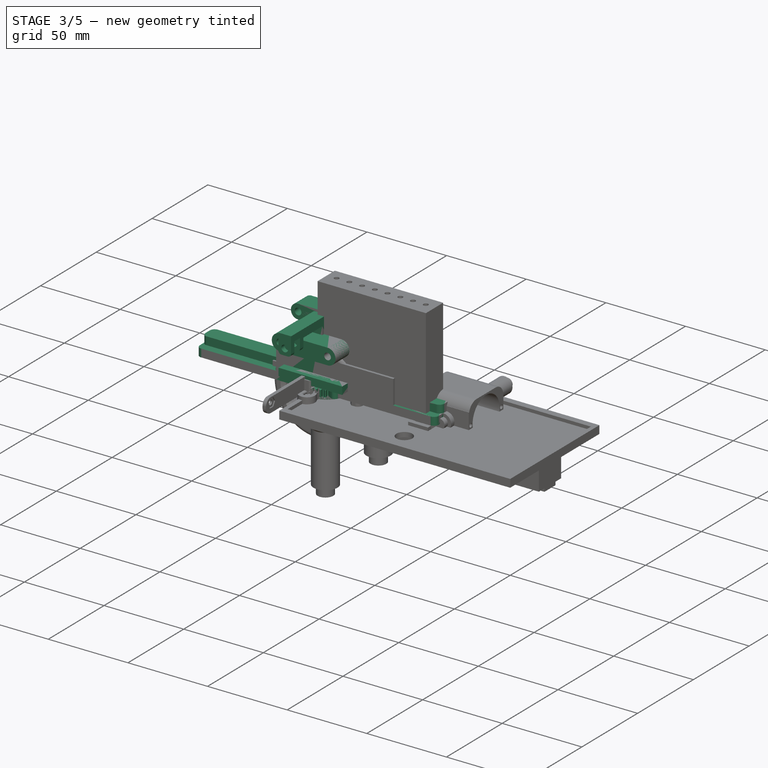
[diagram: stage 3 of 5 — iso view after this stage's code; geometry added in this stage tinted green]
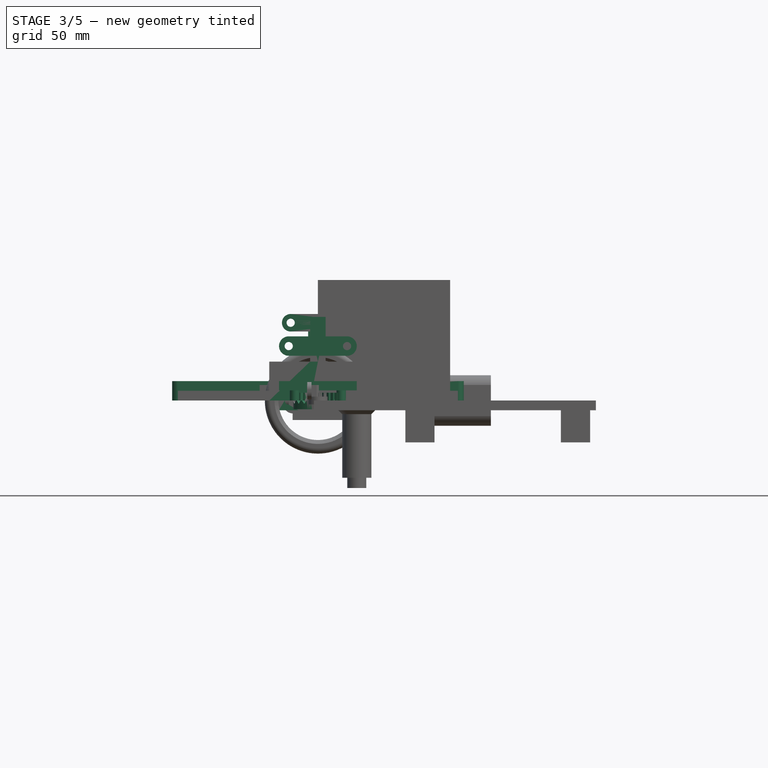
[diagram: stage 3 of 5 — front view after this stage's code; geometry added in this stage tinted green]
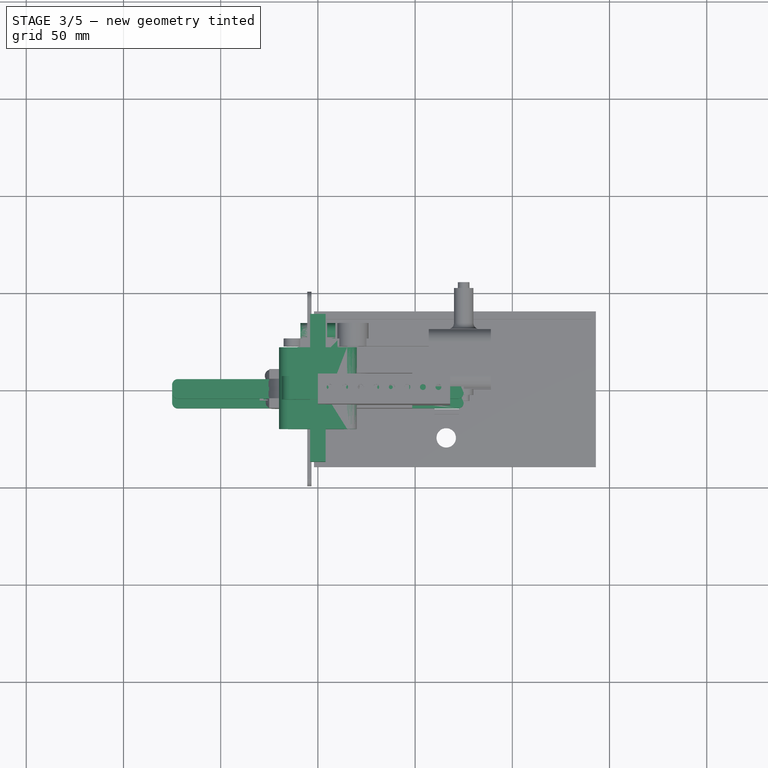
[diagram: stage 3 of 5 — top view after this stage's code; geometry added in this stage tinted green]
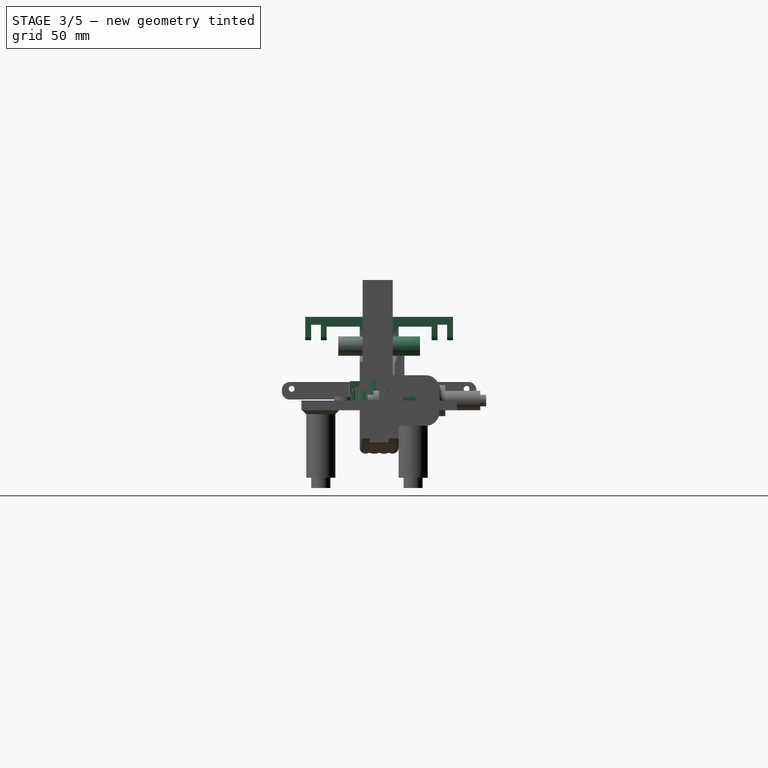
[diagram: stage 3 of 5 — right view after this stage's code; geometry added in this stage tinted green]
FEATURE [Sketcher::SketchObject] Sketch074  label="Square_rod"
  FullyConstrained = true
  MapMode = 5
  Support = -> [XY_Plane022]
  sketch-geometry (4):
    g0: LineSegment StartX=-1.5 StartY=1.5 StartZ=0 EndX=1.5 EndY=1.5 EndZ=0
    g1: LineSegment StartX=1.5 StartY=1.5 StartZ=0 EndX=1.5 EndY=-1.5 EndZ=0
    g2: LineSegment StartX=1.5 StartY=-1.5 StartZ=0 EndX=-1.5 EndY=-1.5 EndZ=0
    g3: LineSegment StartX=-1.5 StartY=-1.5 StartZ=0 EndX=-1.5 EndY=1.5 EndZ=0
  constraints (12):
    c: Coincident(g0,g1)
    c: Coincident(g1,g2)
    c: Coincident(g2,g3)
    c: Coincident(g3,g0)
    c: Horizontal(g0)
    c: Horizontal(g2)
    c: Vertical(g1)
    c: Vertical(g3)
    c: DistanceX(g0,g0) = 3
    c: DistanceY(g1,g1) = 3
    c: DistanceX(g0,g-1) = 1.5
    c: DistanceY(g-1,g0) = 1.5
FEATURE [Sketcher::SketchObject] Sketch075  label="Pocket039"
  FullyConstrained = true
  MapMode = 5
  Placement = pos=(0,0,0) rot=(1,0,0;1.5708rad)
  Support = -> [XZ_Plane020]
  sketch-geometry (1):
    g0: Circle CenterX=0 CenterY=0 CenterZ=0 NormalX=0 NormalY=0 NormalZ=1 AngleXU=0 Radius=2.65
  constraints (2):
    c: Coincident(g0,g-1)
    c: Radius(g0) = 2.65
FEATURE [Sketcher::SketchObject] Sketch055  label="BigRing"
  FullyConstrained = true
  MapMode = 5
  Placement = pos=(0,0,0) rot=(1,0,0;1.5708rad)
  Support = -> [XZ_Plane020]
  sketch-geometry (1):
    g0: Circle CenterX=0 CenterY=0 CenterZ=0 NormalX=0 NormalY=0 NormalZ=1 AngleXU=0 Radius=6.5
  constraints (2):
    c: Coincident(g0,g-1)
    c: Radius(g0) = 6.5
FEATURE [Sketcher::SketchObject] Sketch056  label="SmallRing"
  FullyConstrained = true
  MapMode = 5
  Placement = pos=(0,0,0) rot=(1,0,0;1.5708rad)
  Support = -> [XZ_Plane020]
  sketch-geometry (1):
    g0: Circle CenterX=0 CenterY=0 CenterZ=0 NormalX=0 NormalY=0 NormalZ=1 AngleXU=0 Radius=5.05
  constraints (2):
    c: Coincident(g0,g-1)
    c: Radius(g0) = 5.05
FEATURE [Sketcher::SketchObject] Sketch076
  FullyConstrained = true
  MapMode = 5
  Placement = pos=(0,0,0) rot=(1,0,0;1.5708rad)
  Support = -> [XZ_Plane007]
  sketch-geometry (4):
    g0: LineSegment StartX=4 StartY=2 StartZ=0 EndX=6.5 EndY=2 EndZ=0
    g1: LineSegment StartX=6.5 StartY=2 StartZ=0 EndX=6.5 EndY=0 EndZ=0
    g2: LineSegment StartX=6.5 StartY=0 StartZ=0 EndX=4 EndY=0 EndZ=0
    g3: LineSegment StartX=4 StartY=0 StartZ=0 EndX=4 EndY=2 EndZ=0
  constraints (12):
    c: Coincident(g0,g1)
    c: Coincident(g1,g2)
    c: Coincident(g2,g3)
    c: Coincident(g3,g0)
    c: Horizontal(g0)
    c: Horizontal(g2)
    c: Vertical(g1)
    c: Vertical(g3)
    c: PointOnObject(g1,g-1)
    c: DistanceX(g0,g0) = 2.5
    c: DistanceY(g1,g1) = 2
    c: DistanceX(g-1,g2) = 4
FEATURE [Sketcher::SketchObject] Sketch077
  FullyConstrained = true
  MapMode = 5
  Support = -> [XY_Plane007]
  sketch-geometry (2):
    g0: Circle CenterX=0 CenterY=0 CenterZ=0 NormalX=0 NormalY=0 NormalZ=1 AngleXU=0 Radius=6.5
    g1: Circle CenterX=0 CenterY=0 CenterZ=0 NormalX=0 NormalY=0 NormalZ=1 AngleXU=0 Radius=4
  constraints (4):
    c: Coincident(g0,g-1)
    c: Coincident(g1,g0)
    c: Radius(g1) = 4
    c: Radius(g0) = 6.5
FEATURE [Sketcher::SketchObject] Sketch078  label="BigCircle002"
  AttachmentOffset = pos=(0,0,5) rot=(0,0,1;0rad)
  FullyConstrained = true
  MapMode = 5
  Placement = pos=(0,0,5) rot=(0,0,1;0rad)
  Support = -> [XY_Plane022]
  sketch-geometry (1):
    g0: Circle CenterX=0 CenterY=0 CenterZ=0 NormalX=0 NormalY=0 NormalZ=1 AngleXU=0 Radius=4.5
  constraints (2):
    c: Coincident(g0,g-1)
    c: Radius(g0) = 4.5
FEATURE [Sketcher::SketchObject] Sketch015
  FullyConstrained = true
  MapMode = 5
  Placement = pos=(0,0,0) rot=(1,0,0;1.5708rad)
  Support = -> [XZ_Plane001]
  sketch-geometry (5):
    g0: LineSegment StartX=-5 StartY=0 StartZ=0 EndX=5 EndY=0 EndZ=0
    g1: Circle CenterX=0 CenterY=5 CenterZ=0 NormalX=0 NormalY=0 NormalZ=1 AngleXU=0 Radius=2.1
    g2: ArcOfCircle CenterX=0 CenterY=5 CenterZ=0 NormalX=0 NormalY=0 NormalZ=1 AngleXU=0 Radius=5 StartAngle=3.39501e-06 EndAngle=3.14159
    g3: LineSegment StartX=5 StartY=5.00002 StartZ=0 EndX=5 EndY=0 EndZ=0
    g4: LineSegment StartX=-5 StartY=5.00002 StartZ=0 EndX=-5 EndY=0 EndZ=0
  constraints (15):
    c: Horizontal(g0)
    c: PointOnObject(g0,g-1)
    c: DistanceX(g0,g0) = 10
    c: DistanceX(g-1,g0) = 5
    c: PointOnObject(g1,g-2)
    c: Radius(g1) = 2.1
    c: DistanceY(g-1,g1) = 5
    c: Coincident(g2,g1)
    c: Radius(g2) = 5
    c: Coincident(g3,g2)
    c: Coincident(g3,g0)
    c: Vertical(g3)
    c: Coincident(g4,g2)
    c: Coincident(g4,g0)
    c: Vertical(g4)
FEATURE [Sketcher::SketchObject] Sketch016
  FullyConstrained = true
  MapMode = 5
  Support = -> [XY_Plane001]
  sketch-geometry (1):
    g0: Circle CenterX=0 CenterY=0 CenterZ=0 NormalX=0 NormalY=0 NormalZ=1 AngleXU=0 Radius=3
  constraints (3):
    c: PointOnObject(g0,g-2)
    c: Radius(g0) = 3
    c: DistanceY(g0,g-1) = 0
FEATURE [Sketcher::SketchObject] Sketch018  label="MainFrame"
  FullyConstrained = true
  MapMode = 5
  Support = -> [XY_Plane002]
  sketch-geometry (12):
    g0: LineSegment StartX=-2.4 StartY=0 StartZ=0 EndX=2.4 EndY=0 EndZ=0
    g1: LineSegment StartX=2.4 StartY=0 StartZ=0 EndX=2.4 EndY=18 EndZ=0
    g2: LineSegment StartX=2.4 StartY=18 StartZ=0 EndX=8.75 EndY=18 EndZ=0
    g3: LineSegment StartX=8.75 StartY=18 StartZ=0 EndX=8.75 EndY=30 EndZ=0
    g4: LineSegment StartX=8.75 StartY=30 StartZ=0 EndX=4.75 EndY=30 EndZ=0
    g5: LineSegment StartX=4.75 StartY=30 StartZ=0 EndX=4.75 EndY=22 EndZ=0
    g6: LineSegment StartX=4.75 StartY=22 StartZ=0 EndX=-4.75 EndY=22 EndZ=0
    g7: LineSegment StartX=-4.75 StartY=22 StartZ=0 EndX=-4.75 EndY=30 EndZ=0
    g8: LineSegment StartX=-4.75 StartY=30 StartZ=0 EndX=-8.75 EndY=30 EndZ=0
    g9: LineSegment StartX=-8.75 StartY=30 StartZ=0 EndX=-8.75 EndY=18 EndZ=0
    g10: LineSegment StartX=-8.75 StartY=18 StartZ=0 EndX=-2.4 EndY=18 EndZ=0
    g11: LineSegment StartX=-2.4 StartY=18 StartZ=0 EndX=-2.4 EndY=0 EndZ=0
  constraints (36):
    c: Horizontal(g0)
    c: Coincident(g0,g1)
    c: Vertical(g1)
    c: Coincident(g1,g2)
    c: Horizontal(g2)
    c: Coincident(g2,g3)
    c: Vertical(g3)
    c: Coincident(g3,g4)
    c: Horizontal(g4)
    c: Coincident(g4,g5)
    c: Vertical(g5)
    c: Coincident(g5,g6)
    c: Horizontal(g6)
    c: Coincident(g6,g7)
    c: Vertical(g7)
    c: Coincident(g7,g8)
    c: Horizontal(g8)
    c: Coincident(g8,g9)
    c: Vertical(g9)
    c: Coincident(g9,g10)
    c: Horizontal(g10)
    c: Coincident(g10,g11)
    c: Coincident(g11,g0)
    c: Vertical(g11)
    c: DistanceX(g0,g0) = 4.8
    c: DistanceX(g0,g-1) = 2.4
    c: DistanceY(g3,g3) = 12
    c: DistanceY(g4,g7) = 0
    c: DistanceY(g10,g1) = 0
    c: DistanceX(g8,g3) = 17.5
    c: DistanceY(g-1,g0) = 0
    c: DistanceY(g0,g8) = 30
    c: DistanceX(g10,g10) = 6.35
    c: DistanceX(g6,g6) = 9.5
    c: DistanceX(g4,g4) = 4
    c: DistanceY(g7,g7) = 8
FEATURE [PartDesign::Pad] Pad008
  Direction = (1,1,1)
  Length = 4
  Length2 = 100
  Midplane = true
  Profile = -> Sketch018
  Type = 0
FEATURE [PartDesign::Body] Body012  label="Left_KnucleCover"
  Group = -> [Sketch055,Sketch056,Sketch075,Pad044,Pad045,Pocket037]
  Origin = -> Origin012
  Placement = pos=(-105.457,9.76506,-1.1) rot=(0.57735,0.57735,0.57735;2.0944rad)
  Tip = -> Pocket037
FEATURE [PartDesign::AdditiveHelix] AdditiveHelix
  Angle = 0
  Axis = (0,-2e-16,1)
  Base = (0,0,0)
  HasBeenEdited = true
  Height = 25
  LeftHanded = false
  Mode = 0
  Outside = false
  Pitch = 5
  Placement = pos=(0,0,0) rot=(1,0,0;1.5708rad)
  Profile = -> Sketch076
  ReferenceAxis = -> Sketch076 [V_Axis]
  Turns = 5
FEATURE [PartDesign::Pad] Pad049  label="Pad051"
  BaseFeature = -> AdditiveHelix
  Direction = (1,1,1)
  Length = 2
  Length2 = 100
  Midplane = true
  Placement = pos=(0,0,0) rot=(1,0,0;1.5708rad)
  Profile = -> Sketch077
  Type = 0
FEATURE [Sketcher::SketchObject] Sketch020  label="Pocket007"
  FullyConstrained = true
  MapMode = 5
  Placement = pos=(0,0,0) rot=(0.57735,0.57735,0.57735;2.0944rad)
  Support = -> [YZ_Plane002]
  sketch-geometry (1):
    g0: Circle CenterX=30 CenterY=0 CenterZ=0 NormalX=0 NormalY=0 NormalZ=1 AngleXU=0 Radius=5
  constraints (3):
    c: PointOnObject(g0,g-1)
    c: DistanceX(g-1,g0) = 30
    c: Radius(g0) = 5
FEATURE [Sketcher::SketchObject] Sketch019  label="BigCircle003"
  FullyConstrained = true
  MapMode = 5
  Placement = pos=(0,0,0) rot=(0.57735,0.57735,0.57735;2.0944rad)
  Support = -> [YZ_Plane002]
  sketch-geometry (1):
    g0: Circle CenterX=30 CenterY=0 CenterZ=0 NormalX=0 NormalY=0 NormalZ=1 AngleXU=0 Radius=4
  constraints (3):
    c: PointOnObject(g0,g-1)
    c: Radius(g0) = 4
    c: DistanceX(g-1,g0) = 30
FEATURE [Sketcher::SketchObject] Sketch021  label="SmallCircle"
  FullyConstrained = true
  MapMode = 5
  Placement = pos=(0,0,0) rot=(0.57735,0.57735,0.57735;2.0944rad)
  Support = -> [YZ_Plane002]
  sketch-geometry (2):
    g0: Circle CenterX=0 CenterY=0 CenterZ=0 NormalX=0 NormalY=0 NormalZ=1 AngleXU=0 Radius=2.1
    g1: Circle CenterX=30 CenterY=0 CenterZ=0 NormalX=0 NormalY=0 NormalZ=1 AngleXU=0 Radius=2.1
  constraints (5):
    c: Coincident(g0,g-1)
    c: PointOnObject(g1,g-1)
    c: Radius(g0) = 2.1
    c: Radius(g1) = 2.1
    c: DistanceX(g0,g1) = 30
FEATURE [Sketcher::SketchObject] Sketch079  label="Circle_BodySide"
  FullyConstrained = true
  MapMode = 5
  Placement = pos=(0,0,0) rot=(0.57735,0.57735,0.57735;2.0944rad)
  Support = -> [YZ_Plane002]
  sketch-geometry (1):
    g0: Circle CenterX=0 CenterY=0 CenterZ=0 NormalX=0 NormalY=0 NormalZ=1 AngleXU=0 Radius=4
  constraints (2):
    c: Coincident(g0,g-1)
    c: Radius(g0) = 4
FEATURE [PartDesign::Pad] Pad006
  BaseFeature = -> Pad008
  Direction = (1,1,1)
  Length = 4.8
  Length2 = 100
  Midplane = true
  Profile = -> Sketch079
  Type = 0
FEATURE [PartDesign::Pad] Pad034  label="Pad036"
  BaseFeature = -> Pad006
  Direction = (1,1,1)
  Length = 18
  Length2 = 100
  Midplane = true
  Profile = -> Sketch019
  Type = 0
FEATURE [PartDesign::Pocket] Pocket008  label="Pocket009"
  BaseFeature = -> Pad034
  Length = 20
  Length2 = 100
  Midplane = true
  Profile = -> Sketch021
  Type = 0
FEATURE [PartDesign::Pocket] Pocket009  label="Pocket010"
  BaseFeature = -> Pocket008
  Length = 9.5
  Length2 = 100
  Midplane = true
  Profile = -> Sketch020
  Type = 0
FEATURE [Sketcher::SketchObject] Sketch022  label="SuspensionHolder"
  FullyConstrained = true
  MapMode = 5
  Placement = pos=(0,0,0) rot=(0.57735,0.57735,0.57735;2.0944rad)
  Support = -> [YZ_Plane002]
  sketch-geometry (5):
    g0: Circle CenterX=13 CenterY=7 CenterZ=0 NormalX=0 NormalY=0 NormalZ=1 AngleXU=0 Radius=2.1
    g1: LineSegment StartX=9 StartY=11 StartZ=0 EndX=17 EndY=11 EndZ=0
    g2: LineSegment StartX=17 StartY=11 StartZ=0 EndX=17 EndY=-2 EndZ=0
    g3: LineSegment StartX=17 StartY=-2 StartZ=0 EndX=9 EndY=-2 EndZ=0
    g4: LineSegment StartX=9 StartY=-2 StartZ=0 EndX=9 EndY=11 EndZ=0
  constraints (15):
    c: Radius(g0) = 2.1
    c: Coincident(g1,g2)
    c: Coincident(g2,g3)
    c: Coincident(g3,g4)
    c: Coincident(g4,g1)
    c: Horizontal(g1)
    c: Horizontal(g3)
    c: Vertical(g2)
    c: Vertical(g4)
    c: DistanceX(g-1,g3) = 9
    c: DistanceX(g3,g3) = 8
    c: DistanceY(g2,g2) = 13
    c: DistanceY(g3,g-1) = 2
    c: DistanceY(g-1,g0) = 7
    c: DistanceX(g1,g0) = 4
FEATURE [PartDesign::Pad] Pad007
  BaseFeature = -> Pocket009
  Direction = (1,1,1)
  Length = 10
  Length2 = 100
  Midplane = true
  Profile = -> Sketch022
  Type = 0
FEATURE [Sketcher::SketchObject] Sketch080  label="Suspension Pocket"
  AttachmentOffset = pos=(0,0,2) rot=(0,0,1;0rad)
  FullyConstrained = true
  MapMode = 5
  Placement = pos=(0,0,2) rot=(0,0,1;0rad)
  Support = -> [XY_Plane002]
  sketch-geometry (4):
    g0: LineSegment StartX=-2.4 StartY=20 StartZ=0 EndX=2.4 EndY=20 EndZ=0
    g1: LineSegment StartX=2.4 StartY=20 StartZ=0 EndX=2.4 EndY=5 EndZ=0
    g2: LineSegment StartX=2.4 StartY=5 StartZ=0 EndX=-2.4 EndY=5 EndZ=0
    g3: LineSegment StartX=-2.4 StartY=5 StartZ=0 EndX=-2.4 EndY=20 EndZ=0
  constraints (12):
    c: Coincident(g0,g1)
    c: Coincident(g1,g2)
    c: Coincident(g2,g3)
    c: Coincident(g3,g0)
    c: Horizontal(g0)
    c: Horizontal(g2)
    c: Vertical(g1)
    c: Vertical(g3)
    c: DistanceX(g0,g0) = 4.8
    c: DistanceY(g-1,g2) = 5
    c: DistanceY(g3,g3) = 15
    c: DistanceX(g2,g-1) = 2.4
FEATURE [PartDesign::Pocket] Pocket007  label="Pocket008"
  BaseFeature = -> Pad007
  Length = 10
  Length2 = 100
  Profile = -> Sketch080
  Reversed = true
  Type = 0
FEATURE [PartDesign::Body] Body020  label="Left_KnucleInner"
  Group = -> [Sketch074,Sketch105,Sketch078,Pad059,Pad058,Pad060,Chamfer012]
  Origin = -> Origin020
  Placement = pos=(-104.296,8.8,17) rot=(0,1,0;3.14159rad)
  Tip = -> Chamfer012
FEATURE [PartDesign::Body] Body021  label="Pin_1.5_8"
  Group = -> [Sketch118,Sketch117,Pad061,Pad062]
  Origin = -> Origin016
  Placement = pos=(-98,44,-20.6) rot=(-0.57735,-0.57735,0.57735;4.18879rad)
  Tip = -> Pad062
FEATURE [PartDesign::Body] Body022  label="Pin_1.5_10_sus"
  Group = -> [Sketch109,Sketch108,Pad052,Pad057]
  Origin = -> Origin021
  Placement = pos=(-98.1681,7.6,-4.07843) rot=(0,0,-1;1.5708rad)
  Tip = -> Pad057
FEATURE [Sketcher::SketchObject] Sketch153  label="Pillar"
  FullyConstrained = true
  MapMode = 5
  Support = -> [XY_Plane029]
  sketch-geometry (4):
    g0: LineSegment StartX=-5 StartY=5 StartZ=0 EndX=5 EndY=5 EndZ=0
    g1: LineSegment StartX=5 StartY=5 StartZ=0 EndX=5 EndY=-5 EndZ=0
    g2: LineSegment StartX=5 StartY=-5 StartZ=0 EndX=-5 EndY=-5 EndZ=0
    g3: LineSegment StartX=-5 StartY=-5 StartZ=0 EndX=-5 EndY=5 EndZ=0
  constraints (12):
    c: Coincident(g0,g1)
    c: Coincident(g1,g2)
    c: Coincident(g2,g3)
    c: Coincident(g3,g0)
    c: Horizontal(g0)
    c: Horizontal(g2)
    c: Vertical(g1)
    c: Vertical(g3)
    c: DistanceX(g0,g0) = 10
    c: DistanceX(g0,g-1) = 5
    c: DistanceY(g-1,g0) = 5
    c: DistanceY(g3,g3) = 10
FEATURE [Sketcher::SketchObject] Sketch154  label="Suspension_Holder"
  FullyConstrained = true
  MapMode = 5
  Placement = pos=(0,0,0) rot=(1,0,0;1.5708rad)
  Support = -> [XZ_Plane029]
  sketch-geometry (6):
    g0: ArcOfCircle CenterX=-14 CenterY=40 CenterZ=0 NormalX=0 NormalY=0 NormalZ=1 AngleXU=0 Radius=4.5 StartAngle=1.5708 EndAngle=4.71239
    g1: ArcOfCircle CenterX=14 CenterY=40 CenterZ=0 NormalX=0 NormalY=0 NormalZ=1 AngleXU=0 Radius=4.5 StartAngle=4.71239 EndAngle=7.85398
    g2: LineSegment StartX=-14 StartY=35.5 StartZ=0 EndX=14 EndY=35.5 EndZ=0
    g3: LineSegment StartX=-14 StartY=44.5 StartZ=0 EndX=14 EndY=44.5 EndZ=0
    g4: Circle CenterX=-14 CenterY=40 CenterZ=0 NormalX=0 NormalY=0 NormalZ=1 AngleXU=0 Radius=2.1
    g5: Circle CenterX=14 CenterY=40 CenterZ=0 NormalX=0 NormalY=0 NormalZ=1 AngleXU=0 Radius=2.1
  constraints (14):
    c: Tangent(g0,g3) = 1.5708
    c: Tangent(g0,g2) = -1.5708
    c: Tangent(g2,g1) = -1.5708
    c: Tangent(g3,g1) = 1.5708
    c: Horizontal(g2)
    c: Equal(g0,g1)
    c: Coincident(g4,g0)
    c: Coincident(g5,g1)
    c: Radius(g4) = 2.1
    c: Radius(g5) = 2.1
    c: DistanceX(g0,g-1) = 14
    c: DistanceX(g-1,g1) = 14
    c: Radius(g0) = 4.5
    c: DistanceY(g-1,g0) = 40
FEATURE [Sketcher::SketchObject] Sketch155  label="Upper_Holder"
  FullyConstrained = true
  MapMode = 5
  Placement = pos=(0,0,0) rot=(1,0,0;1.5708rad)
  Support = -> [XZ_Plane029]
  sketch-geometry (6):
    g0: ArcOfCircle CenterX=-15 CenterY=28 CenterZ=0 NormalX=0 NormalY=0 NormalZ=1 AngleXU=0 Radius=5 StartAngle=1.5708 EndAngle=4.71239
    g1: ArcOfCircle CenterX=15 CenterY=28 CenterZ=0 NormalX=0 NormalY=0 NormalZ=1 AngleXU=0 Radius=5 StartAngle=4.71239 EndAngle=7.85398
    g2: LineSegment StartX=-15 StartY=23 StartZ=0 EndX=15 EndY=23 EndZ=0
    g3: LineSegment StartX=-15 StartY=33 StartZ=0 EndX=15 EndY=33 EndZ=0
    g4: Circle CenterX=-15 CenterY=28 CenterZ=0 NormalX=0 NormalY=0 NormalZ=1 AngleXU=0 Radius=2.1
    g5: Circle CenterX=15 CenterY=28 CenterZ=0 NormalX=0 NormalY=0 NormalZ=1 AngleXU=0 Radius=2.1
  constraints (14):
    c: Tangent(g0,g3) = 1.5708
    c: Tangent(g0,g2) = -1.5708
    c: Tangent(g2,g1) = -1.5708
    c: Tangent(g3,g1) = 1.5708
    c: Horizontal(g2)
    c: Equal(g0,g1)
    c: Coincident(g4,g0)
    c: Coincident(g5,g1)
    c: Radius(g4) = 2.1
    c: Radius(g5) = 2.1
    c: Radius(g0) = 5
    c: DistanceX(g0,g-1) = 15
    c: DistanceX(g0,g1) = 30
    c: DistanceY(g-1,g0) = 28
FEATURE [Sketcher::SketchObject] Sketch156  label="Lower_Holder"
  FullyConstrained = true
  MapMode = 5
  Placement = pos=(0,0,0) rot=(1,0,0;1.5708rad)
  Support = -> [XZ_Plane029]
  sketch-geometry (14):
    g0: LineSegment StartX=-20.1 StartY=5 StartZ=0 EndX=20.1 EndY=5 EndZ=0
    g1: LineSegment StartX=20.1 StartY=5 StartZ=0 EndX=20.1 EndY=-5 EndZ=0
    g2: LineSegment StartX=20.1 StartY=-5 StartZ=0 EndX=10.1 EndY=-5 EndZ=0
    g3: LineSegment StartX=10.1 StartY=-5 StartZ=0 EndX=10.1 EndY=0 EndZ=0
    g4: LineSegment StartX=10.1 StartY=0 StartZ=0 EndX=4.9 EndY=0 EndZ=0
    g5: LineSegment StartX=4.9 StartY=0 StartZ=0 EndX=4.9 EndY=-5 EndZ=0
    g6: LineSegment StartX=4.9 StartY=-5 StartZ=0 EndX=-4.9 EndY=-5 EndZ=0
    g7: LineSegment StartX=-4.9 StartY=-5 StartZ=0 EndX=-4.9 EndY=0 EndZ=0
    g8: LineSegment StartX=-4.9 StartY=0 StartZ=0 EndX=-10.1 EndY=0 EndZ=0
    g9: LineSegment StartX=-10.1 StartY=0 StartZ=0 EndX=-10.1 EndY=-5 EndZ=0
    g10: LineSegment StartX=-10.1 StartY=-5 StartZ=0 EndX=-20.1 EndY=-5 EndZ=0
    g11: LineSegment StartX=-20.1 StartY=-5 StartZ=0 EndX=-20.1 EndY=5 EndZ=0
    g12: Circle CenterX=-15 CenterY=0 CenterZ=0 NormalX=0 NormalY=0 NormalZ=1 AngleXU=0 Radius=2.1
    g13: Circle CenterX=15 CenterY=0 CenterZ=0 NormalX=0 NormalY=0 NormalZ=1 AngleXU=0 Radius=2.1
  constraints (42):
    c: Horizontal(g0)
    c: Coincident(g0,g1)
    c: Vertical(g1)
    c: Coincident(g1,g2)
    c: Horizontal(g2)
    c: Coincident(g2,g3)
    c: PointOnObject(g3,g-1)
    c: Vertical(g3)
    c: Coincident(g3,g4)
    c: PointOnObject(g4,g-1)
    c: Coincident(g4,g5)
    c: Vertical(g5)
    c: Coincident(g5,g6)
    c: Horizontal(g6)
    c: Coincident(g6,g7)
    c: PointOnObject(g7,g-1)
    c: Coincident(g7,g8)
    c: PointOnObject(g8,g-1)
    c: Coincident(g8,g9)
    c: Vertical(g9)
    c: Coincident(g9,g10)
    c: Horizontal(g10)
    c: Coincident(g10,g11)
    c: Coincident(g11,g0)
    c: Vertical(g11)
    c: Vertical(g7)
    c: DistanceX(g6,g6) = 9.8
    c: DistanceX(g6,g-1) = 4.9
    c: DistanceX(g8,g8) = 5.2
    c: DistanceX(g4,g4) = 5.2
    c: DistanceX(g10,g10) = 10
    c: DistanceX(g2,g2) = 10
    c: DistanceY(g9,g6) = 0
    c: DistanceY(g5,g2) = 0
    c: DistanceY(g6,g-1) = 5
    c: DistanceY(g11,g11) = 10
    c: PointOnObject(g12,g-1)
    c: PointOnObject(g13,g-1)
    c: Radius(g12) = 2.1
    c: Radius(g13) = 2.1
    c: DistanceX(g12,g-1) = 15
    c: DistanceX(g-1,g13) = 15
FEATURE [Sketcher::SketchObject] Sketch157  label="Circle_Pocket"
  AttachmentOffset = pos=(0,0,20) rot=(0,0,1;0rad)
  FullyConstrained = true
  MapMode = 5
  Placement = pos=(0,0,20) rot=(0,0,1;0rad)
  Support = -> [XY_Plane029]
  sketch-geometry (2):
    g0: Circle CenterX=-18 CenterY=0 CenterZ=0 NormalX=0 NormalY=0 NormalZ=1 AngleXU=0 Radius=10
    g1: Circle CenterX=18 CenterY=0 CenterZ=0 NormalX=0 NormalY=0 NormalZ=1 AngleXU=0 Radius=10
  constraints (6):
    c: PointOnObject(g0,g-1)
    c: PointOnObject(g1,g-1)
    c: DistanceX(g0,g-1) = 18
    c: DistanceX(g-1,g1) = 18
    c: Radius(g1) = 10
    c: Radius(g0) = 10
FEATURE [Sketcher::SketchObject] Sketch158  label="Suspension_Pocket"
  AttachmentOffset = pos=(0,0,35) rot=(0,0,1;0rad)
  FullyConstrained = true
  MapMode = 5
  Placement = pos=(0,0,35) rot=(0,0,1;0rad)
  Support = -> [XY_Plane029]
  sketch-geometry (8):
    g0: LineSegment StartX=-22 StartY=2.5 StartZ=0 EndX=-7 EndY=2.5 EndZ=0
    g1: LineSegment StartX=-7 StartY=2.5 StartZ=0 EndX=-7 EndY=-2.5 EndZ=0
    g2: LineSegment StartX=-7 StartY=-2.5 StartZ=0 EndX=-22 EndY=-2.5 EndZ=0
    g3: LineSegment StartX=-22 StartY=-2.5 StartZ=0 EndX=-22 EndY=2.5 EndZ=0
    g4: LineSegment StartX=7 StartY=2.5 StartZ=0 EndX=22 EndY=2.5 EndZ=0
    g5: LineSegment StartX=22 StartY=2.5 StartZ=0 EndX=22 EndY=-2.5 EndZ=0
    g6: LineSegment StartX=22 StartY=-2.5 StartZ=0 EndX=7 EndY=-2.5 EndZ=0
    g7: LineSegment StartX=7 StartY=-2.5 StartZ=0 EndX=7 EndY=2.5 EndZ=0
  constraints (24):
    c: Coincident(g0,g1)
    c: Coincident(g1,g2)
    c: Coincident(g2,g3)
    c: Coincident(g3,g0)
    c: Horizontal(g0)
    c: Horizontal(g2)
    c: Vertical(g1)
    c: Vertical(g3)
    c: Coincident(g4,g5)
    c: Coincident(g5,g6)
    c: Coincident(g6,g7)
    c: Coincident(g7,g4)
    c: Horizontal(g4)
    c: Horizontal(g6)
    c: Vertical(g5)
    c: Vertical(g7)
    c: DistanceX(g0,g0) = 15
    c: DistanceX(g4,g4) = 15
    c: DistanceY(g0,g4) = 0
    c: DistanceY(g6,g1) = 0
    c: DistanceY(g3,g3) = 5
    c: DistanceX(g0,g-1) = 7
    c: DistanceX(g-1,g4) = 7
    c: DistanceY(g-1,g0) = 2.5
FEATURE [Sketcher::SketchObject] Sketch159  label="RackHolder"
  FullyConstrained = true
  MapMode = 5
  Placement = pos=(0,0,0) rot=(0.57735,0.57735,0.57735;2.0944rad)
  Support = -> [YZ_Plane029]
  sketch-geometry (14):
    g0: LineSegment StartX=0 StartY=0.2 StartZ=0 EndX=25 EndY=0.2 EndZ=0
    g1: LineSegment StartX=25 StartY=0.2 StartZ=0 EndX=25 EndY=10.2 EndZ=0
    g2: LineSegment StartX=25 StartY=10.2 StartZ=0 EndX=21 EndY=10.2 EndZ=0
    g3: LineSegment StartX=10 StartY=10.2 StartZ=0 EndX=10 EndY=5 EndZ=0
    g4: LineSegment StartX=10 StartY=5 StartZ=0 EndX=0 EndY=5 EndZ=0
    g5: LineSegment StartX=0 StartY=5 StartZ=0 EndX=0 EndY=0.2 EndZ=0
    g6: LineSegment StartX=14 StartY=10.2 StartZ=0 EndX=14 EndY=7.7 EndZ=0
    g7: LineSegment StartX=14 StartY=7.7 StartZ=0 EndX=12 EndY=7.7 EndZ=0
    g8: LineSegment StartX=12 StartY=7.7 StartZ=0 EndX=12 EndY=4.7 EndZ=0
    g9: LineSegment StartX=12 StartY=4.7 StartZ=0 EndX=23 EndY=4.7 EndZ=0
    g10: LineSegment StartX=23 StartY=4.7 StartZ=0 EndX=23 EndY=7.7 EndZ=0
    g11: LineSegment StartX=23 StartY=7.7 StartZ=0 EndX=21 EndY=7.7 EndZ=0
    g12: LineSegment StartX=21 StartY=7.7 StartZ=0 EndX=21 EndY=10.2 EndZ=0
    g13: LineSegment StartX=14 StartY=10.2 StartZ=0 EndX=10 EndY=10.2 EndZ=0
  constraints (41):
    c: PointOnObject(g0,g-2)
    c: Horizontal(g0)
    c: Coincident(g0,g1)
    c: Vertical(g1)
    c: Coincident(g1,g2)
    c: Horizontal(g2)
    c: Coincident(g13,g3)
    c: Vertical(g3)
    c: Coincident(g3,g4)
    c: PointOnObject(g4,g-2)
    c: Horizontal(g4)
    c: Coincident(g4,g5)
    c: Coincident(g5,g0)
    c: DistanceY(g1,g1) = 10
    c: DistanceY(g-1,g0) = 0.2
    c: DistanceY(g3,g3) = 5.2
    c: DistanceX(g0,g0) = 25
    c: DistanceX(g4,g4) = 10
    c: Vertical(g6)
    c: Coincident(g6,g7)
    c: Horizontal(g7)
    c: Coincident(g7,g8)
    c: Vertical(g8)
    c: Coincident(g8,g9)
    c: Horizontal(g9)
    c: Coincident(g9,g10)
    c: Vertical(g10)
    c: Coincident(g10,g11)
    c: Horizontal(g11)
    c: Coincident(g11,g12)
    c: Vertical(g12)
    c: Coincident(g2,g12)
    c: Coincident(g13,g6)
    c: Tangent(g2,g13)
    c: DistanceX(g13,g13) = 4
    c: DistanceX(g2,g2) = 4
    c: DistanceX(g7,g7) = 2
    c: DistanceX(g11,g11) = 2
    c: DistanceY(g8,g8) = 3
    c: DistanceY(g10,g10) = 3
    c: DistanceY(g6,g6) = 2.5
FEATURE [Sketcher::SketchObject] Sketch160  label="Lower_Pocket"
  FullyConstrained = true
  MapMode = 5
  Support = -> [XY_Plane029]
  sketch-geometry (8):
    g0: LineSegment StartX=-30 StartY=2.5 StartZ=0 EndX=-10 EndY=2.5 EndZ=0
    g1: LineSegment StartX=-10 StartY=2.5 StartZ=0 EndX=-10 EndY=-2.5 EndZ=0
    g2: LineSegment StartX=-10 StartY=-2.5 StartZ=0 EndX=-30 EndY=-2.5 EndZ=0
    g3: LineSegment StartX=-30 StartY=-2.5 StartZ=0 EndX=-30 EndY=2.5 EndZ=0
    g4: LineSegment StartX=10 StartY=2.5 StartZ=0 EndX=30 EndY=2.5 EndZ=0
    g5: LineSegment StartX=30 StartY=2.5 StartZ=0 EndX=30 EndY=-2.5 EndZ=0
    g6: LineSegment StartX=30 StartY=-2.5 StartZ=0 EndX=10 EndY=-2.5 EndZ=0
    g7: LineSegment StartX=10 StartY=-2.5 StartZ=0 EndX=10 EndY=2.5 EndZ=0
  constraints (24):
    c: Coincident(g0,g1)
    c: Coincident(g1,g2)
    c: Coincident(g2,g3)
    c: Coincident(g3,g0)
    c: Horizontal(g0)
    c: Horizontal(g2)
    c: Vertical(g1)
    c: Vertical(g3)
    c: Coincident(g4,g5)
    c: Coincident(g5,g6)
    c: Coincident(g6,g7)
    c: Coincident(g7,g4)
    c: Horizontal(g4)
    c: Horizontal(g6)
    c: Vertical(g5)
    c: Vertical(g7)
    c: DistanceX(g0,g0) = 20
    c: DistanceX(g4,g4) = 20
    c: DistanceX(g0,g-1) = 10
    c: DistanceX(g-1,g4) = 10
    c: DistanceY(g-1,g0) = 2.5
    c: DistanceY(g3,g3) = 5
    c: DistanceY(g0,g4) = 0
    c: DistanceY(g6,g1) = 0
FEATURE [Sketcher::SketchObject] Sketch161  label="Upper_Pocket"
  AttachmentOffset = pos=(0,0,20) rot=(0,0,1;0rad)
  FullyConstrained = true
  MapMode = 5
  Placement = pos=(0,0,20) rot=(0,0,1;0rad)
  Support = -> [XY_Plane029]
  sketch-geometry (16):
    g0: LineSegment StartX=-30 StartY=17.5 StartZ=0 EndX=-10 EndY=17.5 EndZ=0
    g1: LineSegment StartX=-10 StartY=17.5 StartZ=0 EndX=-10 EndY=12.5 EndZ=0
    g2: LineSegment StartX=-10 StartY=12.5 StartZ=0 EndX=-30 EndY=12.5 EndZ=0
    g3: LineSegment StartX=-30 StartY=12.5 StartZ=0 EndX=-30 EndY=17.5 EndZ=0
    g4: LineSegment StartX=30 StartY=17.5 StartZ=0 EndX=10 EndY=17.5 EndZ=0
    g5: LineSegment StartX=10 StartY=17.5 StartZ=0 EndX=10 EndY=12.5 EndZ=0
    g6: LineSegment StartX=10 StartY=12.5 StartZ=0 EndX=30 EndY=12.5 EndZ=0
    g7: LineSegment StartX=30 StartY=12.5 StartZ=0 EndX=30 EndY=17.5 EndZ=0
    g8: LineSegment StartX=-30 StartY=-12.5 StartZ=0 EndX=-10 EndY=-12.5 EndZ=0
    g9: LineSegment StartX=-10 StartY=-12.5 StartZ=0 EndX=-10 EndY=-17.5 EndZ=0
    g10: LineSegment StartX=-10 StartY=-17.5 StartZ=0 EndX=-30 EndY=-17.5 EndZ=0
    g11: LineSegment StartX=-30 StartY=-17.5 StartZ=0 EndX=-30 EndY=-12.5 EndZ=0
    g12: LineSegment StartX=10 StartY=-12.5 StartZ=0 EndX=30 EndY=-12.5 EndZ=0
    g13: LineSegment StartX=30 StartY=-12.5 StartZ=0 EndX=30 EndY=-17.5 EndZ=0
    g14: LineSegment StartX=30 StartY=-17.5 StartZ=0 EndX=10 EndY=-17.5 EndZ=0
    g15: LineSegment StartX=10 StartY=-17.5 StartZ=0 EndX=10 EndY=-12.5 EndZ=0
  constraints (48):
    c: Coincident(g0,g1)
    c: Coincident(g1,g2)
    c: Coincident(g2,g3)
    c: Coincident(g3,g0)
    c: Horizontal(g0)
    c: Horizontal(g2)
    c: Vertical(g1)
    c: Vertical(g3)
    c: Coincident(g4,g5)
    c: Coincident(g5,g6)
    c: Coincident(g6,g7)
    c: Coincident(g7,g4)
    c: Horizontal(g4)
    c: Horizontal(g6)
    c: Vertical(g5)
    c: Vertical(g7)
    c: DistanceX(g0,g0) = 20
    c: DistanceX(g4,g4) = 20
    c: DistanceY(g4,g0) = 0
    c: DistanceY(g5,g1) = 0
    c: DistanceY(g5,g5) = 5
    c: DistanceX(g0,g4) = 20
    c: DistanceX(g0,g-1) = 10
    c: Coincident(g8,g9)
    c: Coincident(g9,g10)
    c: Coincident(g10,g11)
    c: Coincident(g11,g8)
    c: Horizontal(g8)
    c: Horizontal(g10)
    c: Vertical(g9)
    c: Vertical(g11)
    c: Coincident(g12,g13)
    c: Coincident(g13,g14)
    c: Coincident(g14,g15)
    c: Coincident(g15,g12)
    c: Horizontal(g12)
    c: Horizontal(g14)
    c: Vertical(g13)
    c: Vertical(g15)
    c: DistanceX(g8,g1) = 0
    c: DistanceX(g12,g5) = 0
    c: DistanceY(g9,g9) = 5
    c: DistanceY(g12,g8) = 0
    c: DistanceY(g9,g14) = 0
    c: DistanceX(g2,g8) = 0
    c: DistanceX(g6,g12) = 0
    c: DistanceY(g-1,g1) = 12.5
    c: DistanceY(g8,g-1) = 12.5
FEATURE [Sketcher::SketchObject] Sketch162  label="Pinion_Spacer"
  AttachmentOffset = pos=(0,0,-12) rot=(0,0,1;0rad)
  FullyConstrained = true
  MapMode = 5
  Placement = pos=(0,12,2.7e-15) rot=(1,0,0;1.5708rad)
  Support = -> [XZ_Plane029]
  sketch-geometry (1):
    g0: Circle CenterX=0 CenterY=17 CenterZ=0 NormalX=0 NormalY=0 NormalZ=1 AngleXU=0 Radius=8
  constraints (3):
    c: PointOnObject(g0,g-2)
    c: DistanceY(g-1,g0) = 17
    c: Radius(g0) = 8
FEATURE [PartDesign::Pad] Pad090  label="Pad092"
  Direction = (1,1,1)
  Length = 12
  Length2 = 100
  Midplane = true
  Placement = pos=(0,0,0) rot=(1,0,0;1.5708rad)
  Profile = -> Sketch156
  Type = 0
FEATURE [PartDesign::Pad] Pad088  label="Pad090"
  BaseFeature = -> Pad090
  Direction = (1,1,1)
  Length = 40
  Length2 = 100
  Placement = pos=(0,0,0) rot=(1,0,0;1.5708rad)
  Profile = -> Sketch153
  Type = 0
FEATURE [PartDesign::Pad] Pad089  label="Pad091"
  BaseFeature = -> Pad088
  Direction = (1,1,1)
  Length = 42
  Length2 = 100
  Midplane = true
  Placement = pos=(0,0,0) rot=(1,0,0;1.5708rad)
  Profile = -> Sketch155
  Type = 0
FEATURE [PartDesign::Pad] Pad086  label="Pad088"
  BaseFeature = -> Pad089
  Direction = (1,1,1)
  Length = 12
  Length2 = 100
  Midplane = true
  Placement = pos=(0,0,0) rot=(1,0,0;1.5708rad)
  Profile = -> Sketch154
  Type = 0
FEATURE [PartDesign::Body] Body031  label="Pinion"
  BaseFeature = -> involutegear
  Group = -> [BaseFeature002,Sketch167,Sketch168,Pad095,Pocket067]
  Origin = -> Origin032
  Placement = pos=(-149.956,21.0019,-36) rot=(0.57735,0.57735,0.57735;2.0944rad)
  Tip = -> Pocket067
FEATURE [Sketcher::SketchObject] Sketch175  label="Frame"
  FullyConstrained = true
  MapMode = 5
  Placement = pos=(0,0,0) rot=(0.57735,0.57735,0.57735;2.0944rad)
  Support = -> [YZ_Plane034]
  sketch-geometry (8):
    g0: LineSegment StartX=-38 StartY=43 StartZ=0 EndX=38 EndY=43 EndZ=0
    g1: LineSegment StartX=38 StartY=43 StartZ=0 EndX=38 EndY=38 EndZ=0
    g2: LineSegment StartX=10 StartY=0 StartZ=0 EndX=-10 EndY=0 EndZ=0
    g3: LineSegment StartX=-38 StartY=38 StartZ=0 EndX=-38 EndY=43 EndZ=0
    g4: LineSegment StartX=-38 StartY=38 StartZ=0 EndX=-10 EndY=38 EndZ=0
    g5: LineSegment StartX=-10 StartY=38 StartZ=0 EndX=-10 EndY=0 EndZ=0
    g6: LineSegment StartX=10 StartY=0 StartZ=0 EndX=10 EndY=38 EndZ=0
    g7: LineSegment StartX=10 StartY=38 StartZ=0 EndX=38 EndY=38 EndZ=0
  constraints (24):
    c: Coincident(g0,g1)
    c: Coincident(g3,g0)
    c: Horizontal(g0)
    c: Horizontal(g2)
    c: Vertical(g1)
    c: Vertical(g3)
    c: Coincident(g4,g5)
    c: Horizontal(g4)
    c: Vertical(g5)
    c: Coincident(g6,g7)
    c: Horizontal(g7)
    c: Vertical(g6)
    c: Coincident(g6,g2)
    c: Coincident(g5,g2)
    c: Coincident(g4,g3)
    c: Coincident(g7,g1)
    c: DistanceX(g0,g0) = 76
    c: DistanceX(g0,g-1) = 38
    c: DistanceX(g2,g2) = 20
    c: DistanceX(g2,g-1) = 10
    c: DistanceY(g5,g5) = 38
    c: DistanceY(g6,g4) = 0
    c: DistanceY(g2,g-1) = 0
    c: DistanceY(g3,g3) = 5
FEATURE [PartDesign::Pad] Pad098  label="Pad101"
  Direction = (1,1,1)
  Length = 8
  Length2 = 100
  Midplane = true
  Placement = pos=(0,0,0) rot=(0.57735,0.57735,0.57735;2.0944rad)
  Profile = -> Sketch175
  Type = 0
FEATURE [Sketcher::SketchObject] Sketch176  label="Floor"
  FullyConstrained = true
  MapMode = 5
  Support = -> [XY_Plane034]
  sketch-geometry (4):
    g0: LineSegment StartX=-25 StartY=10 StartZ=0 EndX=0 EndY=10 EndZ=0
    g1: LineSegment StartX=0 StartY=10 StartZ=0 EndX=0 EndY=-10 EndZ=0
    g2: LineSegment StartX=0 StartY=-10 StartZ=0 EndX=-25 EndY=-10 EndZ=0
    g3: LineSegment StartX=-25 StartY=-10 StartZ=0 EndX=-25 EndY=10 EndZ=0
  constraints (12):
    c: Coincident(g0,g1)
    c: Coincident(g1,g2)
    c: Coincident(g2,g3)
    c: Coincident(g3,g0)
    c: Horizontal(g0)
    c: Horizontal(g2)
    c: Vertical(g3)
    c: DistanceY(g1,g1) = 20
    c: DistanceY(g-1,g0) = 10
    c: DistanceX(g0,g0) = 25
    c: DistanceX(g-1,g0) = 0
    c: Vertical(g1)
FEATURE [PartDesign::Pad] Pad100  label="Pad103"
  BaseFeature = -> Pad098
  Direction = (1,1,1)
  Length = 20
  Length2 = 100
  Placement = pos=(0,0,0) rot=(0.57735,0.57735,0.57735;2.0944rad)
  Profile = -> Sketch176
  Type = 0
FEATURE [Sketcher::SketchObject] Sketch177  label="SusHolder"
  FullyConstrained = true
  MapMode = 5
  Placement = pos=(0,0,0) rot=(0.57735,0.57735,0.57735;2.0944rad)
  Support = -> [YZ_Plane034]
  sketch-geometry (16):
    g0: LineSegment StartX=-38 StartY=38 StartZ=0 EndX=-35 EndY=38 EndZ=0
    g1: LineSegment StartX=-35 StartY=38 StartZ=0 EndX=-35 EndY=31 EndZ=0
    g2: LineSegment StartX=-35 StartY=31 StartZ=0 EndX=-38 EndY=31 EndZ=0
    g3: LineSegment StartX=-38 StartY=31 StartZ=0 EndX=-38 EndY=38 EndZ=0
    g4: LineSegment StartX=-30 StartY=38 StartZ=0 EndX=-27 EndY=38 EndZ=0
    g5: LineSegment StartX=-27 StartY=38 StartZ=0 EndX=-27 EndY=31 EndZ=0
    g6: LineSegment StartX=-27 StartY=31 StartZ=0 EndX=-30 EndY=31 EndZ=0
    g7: LineSegment StartX=-30 StartY=31 StartZ=0 EndX=-30 EndY=38 EndZ=0
    g8: LineSegment StartX=27 StartY=38 StartZ=0 EndX=30 EndY=38 EndZ=0
    g9: LineSegment StartX=30 StartY=38 StartZ=0 EndX=30 EndY=31 EndZ=0
    g10: LineSegment StartX=30 StartY=31 StartZ=0 EndX=27 EndY=31 EndZ=0
    g11: LineSegment StartX=27 StartY=31 StartZ=0 EndX=27 EndY=38 EndZ=0
    g12: LineSegment StartX=35 StartY=38 StartZ=0 EndX=38 EndY=38 EndZ=0
    g13: LineSegment StartX=38 StartY=38 StartZ=0 EndX=38 EndY=31 EndZ=0
    g14: LineSegment StartX=38 StartY=31 StartZ=0 EndX=35 EndY=31 EndZ=0
    g15: LineSegment StartX=35 StartY=31 StartZ=0 EndX=35 EndY=38 EndZ=0
  constraints (48):
    c: Coincident(g0,g1)
    c: Coincident(g1,g2)
    c: Coincident(g2,g3)
    c: Coincident(g3,g0)
    c: Horizontal(g0)
    c: Horizontal(g2)
    c: Vertical(g1)
    c: Vertical(g3)
    c: Coincident(g4,g5)
    c: Coincident(g5,g6)
    c: Coincident(g6,g7)
    c: Coincident(g7,g4)
    c: Horizontal(g4)
    c: Horizontal(g6)
    c: Vertical(g5)
    c: Vertical(g7)
    c: Coincident(g8,g9)
    c: Coincident(g9,g10)
    c: Coincident(g10,g11)
    c: Coincident(g11,g8)
    c: Horizontal(g8)
    c: Horizontal(g10)
    c: Vertical(g9)
    c: Vertical(g11)
    c: Coincident(g12,g13)
    c: Coincident(g13,g14)
    c: Coincident(g14,g15)
    c: Coincident(g15,g12)
    c: Horizontal(g12)
    c: Horizontal(g14)
    c: Vertical(g13)
    c: Vertical(g15)
    c: DistanceY(g4,g0) = 0
    c: DistanceY(g8,g4) = 0
    c: DistanceY(g8,g12) = 0
    c: DistanceY(g3,g3) = 7
    c: DistanceY(g1,g6) = 0
    c: DistanceY(g5,g10) = 0
    c: DistanceY(g9,g13) = 0
    c: DistanceX(g0,g0) = 3
    c: DistanceX(g4,g4) = 3
    c: DistanceX(g0,g4) = 5
    c: DistanceX(g8,g8) = 3
    c: DistanceX(g8,g12) = 5
    c: DistanceX(g12,g12) = 3
    c: DistanceX(g5,g-1) = 27
    c: DistanceX(g-1,g10) = 27
    c: DistanceY(g-1,g5) = 31
FEATURE [Sketcher::SketchObject] Sketch178  label="CenterHole002"
  FullyConstrained = true
  MapMode = 5
  Placement = pos=(0,0,0) rot=(0.57735,0.57735,0.57735;2.0944rad)
  Support = -> [YZ_Plane034]
  sketch-geometry (4):
    g0: LineSegment StartX=-5 StartY=5 StartZ=0 EndX=5 EndY=5 EndZ=0
    g1: LineSegment StartX=5 StartY=5 StartZ=0 EndX=5 EndY=30 EndZ=0
    g2: LineSegment StartX=5 StartY=30 StartZ=0 EndX=-5 EndY=30 EndZ=0
    g3: LineSegment StartX=-5 StartY=30 StartZ=0 EndX=-5 EndY=5 EndZ=0
  constraints (12):
    c: Coincident(g0,g1)
    c: Coincident(g1,g2)
    c: Coincident(g2,g3)
    c: Coincident(g3,g0)
    c: Horizontal(g0)
    c: Horizontal(g2)
    c: Vertical(g1)
    c: Vertical(g3)
    c: DistanceY(g-1,g0) = 5
    c: DistanceY(g3,g3) = 25
    c: DistanceX(g2,g2) = 10
    c: DistanceX(g0,g-1) = 5
FEATURE [PartDesign::Pocket] Pocket071  label="Pocket073"
  BaseFeature = -> Pad100
  Length = 500
  Length2 = 100
  Midplane = true
  Placement = pos=(0,0,0) rot=(0.57735,0.57735,0.57735;2.0944rad)
  Profile = -> Sketch178
  Type = 0
FEATURE [Sketcher::SketchObject] Sketch179  label="Holder002"
  FullyConstrained = true
  MapMode = 5
  Support = -> [XY_Plane034]
  sketch-geometry (2):
    g0: Circle CenterX=-5 CenterY=0 CenterZ=0 NormalX=0 NormalY=0 NormalZ=1 AngleXU=0 Radius=5
    g1: Circle CenterX=-20 CenterY=0 CenterZ=0 NormalX=0 NormalY=0 NormalZ=1 AngleXU=0 Radius=5
  constraints (6):
    c: PointOnObject(g0,g-1)
    c: PointOnObject(g1,g-1)
    c: Radius(g1) = 5
    c: Radius(g0) = 5
    c: DistanceX(g0,g-1) = 5
    c: DistanceX(g1,g-1) = 20
FEATURE [PartDesign::Pad] Pad099  label="Pad102"
  BaseFeature = -> Pocket071
  Direction = (1,1,1)
  Length = 5
  Length2 = 100
  Placement = pos=(0,0,0) rot=(0.57735,0.57735,0.57735;2.0944rad)
  Profile = -> Sketch179
  Reversed = true
  Type = 0
FEATURE [PartDesign::Pad] Pad101  label="Pad104"
  BaseFeature = -> Pad099
  Direction = (1,1,1)
  Length = 8
  Length2 = 100
  Midplane = true
  Placement = pos=(0,0,0) rot=(0.57735,0.57735,0.57735;2.0944rad)
  Profile = -> Sketch177
  Type = 0
FEATURE [Sketcher::SketchObject] Sketch180  label="PinHole1"
  AttachmentOffset = pos=(0,0,15) rot=(0,0,1;0rad)
  FullyConstrained = true
  MapMode = 5
  Placement = pos=(0,-15,-3.3e-15) rot=(1,0,0;1.5708rad)
  Support = -> [XZ_Plane034]
  sketch-geometry (1):
    g0: Circle CenterX=0 CenterY=35 CenterZ=0 NormalX=0 NormalY=0 NormalZ=1 AngleXU=0 Radius=2.1
  constraints (3):
    c: PointOnObject(g0,g-2)
    c: Radius(g0) = 2.1
    c: DistanceY(g-1,g0) = 35
FEATURE [PartDesign::Pocket] Pocket072  label="Pocket074"
  BaseFeature = -> Pad101
  Length = 30
  Length2 = 100
  Placement = pos=(0,0,0) rot=(0.57735,0.57735,0.57735;2.0944rad)
  Profile = -> Sketch180
  Reversed = true
  Type = 0
FEATURE [Sketcher::SketchObject] Sketch181  label="BigHole2"
  AttachmentOffset = pos=(0,0,-32.5) rot=(0,0,1;0rad)
  FullyConstrained = true
  MapMode = 5
  Placement = pos=(0,32.5,7.2e-15) rot=(1,0,0;1.5708rad)
  Support = -> [XZ_Plane034]
  sketch-geometry (1):
    g0: Circle CenterX=0 CenterY=36 CenterZ=0 NormalX=0 NormalY=0 NormalZ=1 AngleXU=0 Radius=5
  constraints (3):
    c: PointOnObject(g0,g-2)
    c: DistanceY(g-1,g0) = 36
    c: Radius(g0) = 5
FEATURE [Sketcher::SketchObject] Sketch182  label="PinHole2"
  AttachmentOffset = pos=(0,0,-15) rot=(0,0,1;0rad)
  FullyConstrained = true
  MapMode = 5
  Placement = pos=(0,15,3.3e-15) rot=(1,0,0;1.5708rad)
  Support = -> [XZ_Plane034]
  sketch-geometry (1):
    g0: Circle CenterX=0 CenterY=35 CenterZ=0 NormalX=0 NormalY=0 NormalZ=1 AngleXU=0 Radius=2.1
  constraints (3):
    c: PointOnObject(g0,g-2)
    c: DistanceY(g-1,g0) = 35
    c: Radius(g0) = 2.1
FEATURE [Sketcher::SketchObject] Sketch183  label="BigHole1"
  AttachmentOffset = pos=(0,0,32.5) rot=(0,0,1;0rad)
  FullyConstrained = true
  MapMode = 5
  Placement = pos=(0,-32.5,-7.2e-15) rot=(1,0,0;1.5708rad)
  Support = -> [XZ_Plane034]
  sketch-geometry (1):
    g0: Circle CenterX=0 CenterY=36 CenterZ=0 NormalX=0 NormalY=0 NormalZ=1 AngleXU=0 Radius=5
  constraints (3):
    c: PointOnObject(g0,g-2)
    c: DistanceY(g-1,g0) = 36
    c: Radius(g0) = 5
FEATURE [PartDesign::Pocket] Pocket073  label="Pocket075"
  BaseFeature = -> Pocket072
  Length = 30
  Length2 = 100
  Placement = pos=(0,0,0) rot=(0.57735,0.57735,0.57735;2.0944rad)
  Profile = -> Sketch182
  Type = 0
FEATURE [PartDesign::Pocket] Pocket074  label="Pocket076"
  BaseFeature = -> Pocket073
  Length = 5
  Length2 = 100
  Midplane = true
  Placement = pos=(0,0,0) rot=(0.57735,0.57735,0.57735;2.0944rad)
  Profile = -> Sketch183
  Type = 0
FEATURE [PartDesign::Pocket] Pocket075  label="Pocket077"
  BaseFeature = -> Pocket074
  Length = 5
  Length2 = 100
  Midplane = true
  Placement = pos=(0,0,0) rot=(0.57735,0.57735,0.57735;2.0944rad)
  Profile = -> Sketch181
  Type = 0
FEATURE [PartDesign::Body] Body061  label="Sus_Rear_2_RR"
  Group = -> [Sketch327,Sketch328,Sketch325,Pad182,Pad183,Pocket131,Sketch326,Pad181,Fillet032,Fillet031]
  Origin = -> Origin061
  Placement = pos=(85.9368,32.3682,-66.5) rot=(0.57735,-0.57735,0.57735;2.0944rad)
  Tip = -> Fillet031
FEATURE [Sketcher::SketchObject] Sketch331  label="Pocket142"
  FullyConstrained = true
  MapMode = 5
  Support = -> [XY_Plane063]
  sketch-geometry (4):
    g0: LineSegment StartX=-20 StartY=-15 StartZ=0 EndX=20 EndY=-15 EndZ=0
    g1: LineSegment StartX=20 StartY=-15 StartZ=0 EndX=20 EndY=-4.5 EndZ=0
    g2: LineSegment StartX=20 StartY=-4.5 StartZ=0 EndX=-20 EndY=-4.5 EndZ=0
    g3: LineSegment StartX=-20 StartY=-4.5 StartZ=0 EndX=-20 EndY=-15 EndZ=0
  constraints (12):
    c: Coincident(g0,g1)
    c: Coincident(g1,g2)
    c: Coincident(g2,g3)
    c: Coincident(g3,g0)
    c: Horizontal(g0)
    c: Horizontal(g2)
    c: Vertical(g1)
    c: Vertical(g3)
    c: DistanceY(g1,g1) = 10.5
    c: DistanceY(g2,g-1) = 4.5
    c: DistanceX(g0,g0) = 40
    c: DistanceX(g2,g-1) = 20
FEATURE [Sketcher::SketchObject] Sketch332  label="BumperBeam"
  AttachmentOffset = pos=(0,0,5) rot=(0,0,1;0rad)
  FullyConstrained = true
  MapMode = 5
  Placement = pos=(0,0,5) rot=(0,0,1;0rad)
  Support = -> [XY_Plane063]
  sketch-geometry (4):
    g0: LineSegment StartX=-75 StartY=-5 StartZ=0 EndX=75 EndY=-5 EndZ=0
    g1: LineSegment StartX=75 StartY=-5 StartZ=0 EndX=75 EndY=5 EndZ=0
    g2: LineSegment StartX=75 StartY=5 StartZ=0 EndX=-75 EndY=5 EndZ=0
    g3: LineSegment StartX=-75 StartY=5 StartZ=0 EndX=-75 EndY=-5 EndZ=0
  constraints (12):
    c: Coincident(g0,g1)
    c: Coincident(g1,g2)
    c: Coincident(g2,g3)
    c: Coincident(g3,g0)
    c: Horizontal(g0)
    c: Horizontal(g2)
    c: Vertical(g1)
    c: Vertical(g3)
    c: DistanceX(g0,g-1) = 75
    c: DistanceX(g2,g2) = 150
    c: DistanceY(g3,g3) = 10
    c: DistanceY(g-1,g0) = -5
FEATURE [PartDesign::Pad] Pad187  label="Pad191"
  Direction = (1,1,1)
  Length = 5
  Length2 = 100
  Profile = -> Sketch332
  Type = 0
FEATURE [Sketcher::SketchObject] Sketch333  label="Hole014"
  FullyConstrained = true
  MapMode = 5
  Support = -> [XY_Plane063]
  sketch-geometry (2):
    g0: Circle CenterX=-12 CenterY=-10 CenterZ=0 NormalX=0 NormalY=0 NormalZ=1 AngleXU=0 Radius=2.5
    g1: Circle CenterX=12 CenterY=-10 CenterZ=0 NormalX=0 NormalY=0 NormalZ=1 AngleXU=0 Radius=2.5
  constraints (6):
    c: DistanceY(g0,g1) = 0
    c: Radius(g0) = 2.5
    c: Radius(g1) = 2.5
    c: DistanceX(g0,g-1) = 12
    c: DistanceX(g0,g1) = 24
    c: DistanceY(g0,g-1) = 10
FEATURE [Sketcher::SketchObject] Sketch334  label="Holder004"
  FullyConstrained = true
  MapMode = 5
  Support = -> [XY_Plane063]
  sketch-geometry (4):
    g0: LineSegment StartX=-20 StartY=0 StartZ=0 EndX=20 EndY=0 EndZ=0
    g1: LineSegment StartX=20 StartY=0 StartZ=0 EndX=20 EndY=-15 EndZ=0
    g2: LineSegment StartX=20 StartY=-15 StartZ=0 EndX=-20 EndY=-15 EndZ=0
    g3: LineSegment StartX=-20 StartY=-15 StartZ=0 EndX=-20 EndY=0 EndZ=0
  constraints (12):
    c: Coincident(g0,g1)
    c: Coincident(g1,g2)
    c: Coincident(g2,g3)
    c: Coincident(g3,g0)
    c: Horizontal(g0)
    c: Horizontal(g2)
    c: Vertical(g1)
    c: Vertical(g3)
    c: PointOnObject(g0,g-1)
    c: DistanceX(g0,g0) = 40
    c: DistanceX(g0,g-1) = 20
    c: DistanceY(g1,g1) = 15
FEATURE [PartDesign::Pad] Pad186  label="Pad190"
  BaseFeature = -> Pad187
  Direction = (1,1,1)
  Length = 10
  Length2 = 100
  Profile = -> Sketch334
  Type = 0
FEATURE [PartDesign::Pocket] Pocket132  label="Pocket141"
  BaseFeature = -> Pad186
  Length = 5.2
  Length2 = 100
  Profile = -> Sketch331
  Reversed = true
  Type = 0
FEATURE [PartDesign::Pad] Pad188  label="Pad192"
  BaseFeature = -> Pocket132
  Direction = (1,1,1)
  Length = 10
  Length2 = 100
  Profile = -> Sketch333
  Type = 0
FEATURE [Sketcher::SketchObject] Sketch339
  FullyConstrained = true
  MapMode = 5
  Support = -> [XY_Plane066]
  sketch-geometry (4):
    g0: LineSegment StartX=-10 StartY=9.5 StartZ=0 EndX=10 EndY=9.5 EndZ=0
    g1: LineSegment StartX=10 StartY=9.5 StartZ=0 EndX=10 EndY=4.5 EndZ=0
    g2: LineSegment StartX=10 StartY=4.5 StartZ=0 EndX=-10 EndY=4.5 EndZ=0
    g3: LineSegment StartX=-10 StartY=4.5 StartZ=0 EndX=-10 EndY=9.5 EndZ=0
  constraints (12):
    c: Coincident(g0,g1)
    c: Coincident(g1,g2)
    c: Coincident(g2,g3)
    c: Coincident(g3,g0)
    c: Horizontal(g0)
    c: Horizontal(g2)
    c: Vertical(g1)
    c: Vertical(g3)
    c: DistanceY(g-1,g2) = 4.5
    c: DistanceY(g3,g3) = 5
    c: DistanceX(g0,g0) = 20
    c: DistanceX(g2,g-1) = 10
FEATURE [Sketcher::SketchObject] Sketch340  label="Bumper"
  FullyConstrained = true
  MapMode = 5
  Support = -> [XY_Plane066]
  sketch-geometry (8):
    g0: LineSegment StartX=-75 StartY=0 StartZ=0 EndX=-10 EndY=0 EndZ=0
    g1: LineSegment StartX=75 StartY=1e-16 StartZ=0 EndX=75 EndY=-10 EndZ=0
    g2: LineSegment StartX=75 StartY=-10 StartZ=0 EndX=-75 EndY=-10 EndZ=0
    g3: LineSegment StartX=-75 StartY=-10 StartZ=0 EndX=-75 EndY=0 EndZ=0
    g4: LineSegment StartX=10 StartY=0 StartZ=0 EndX=10 EndY=25 EndZ=0
    g5: LineSegment StartX=10 StartY=25 StartZ=0 EndX=-10 EndY=25 EndZ=0
    g6: LineSegment StartX=-10 StartY=25 StartZ=0 EndX=-10 EndY=0 EndZ=0
    g7: LineSegment StartX=10 StartY=0 StartZ=0 EndX=75 EndY=1e-16 EndZ=0
  constraints (23):
    c: Coincident(g7,g1)
    c: Coincident(g1,g2)
    c: Coincident(g2,g3)
    c: Coincident(g3,g0)
    c: Horizontal(g0)
    c: Horizontal(g2)
    c: Vertical(g1)
    c: Vertical(g3)
    c: PointOnObject(g0,g-1)
    c: Coincident(g4,g5)
    c: Coincident(g5,g6)
    c: Horizontal(g5)
    c: Vertical(g4)
    c: Vertical(g6)
    c: Tangent(g0,g7)
    c: DistanceY(g3,g3) = 10
    c: DistanceY(g6,g6) = 25
    c: Coincident(g6,g0)
    c: DistanceX(g5,g5) = 20
    c: DistanceX(g5,g-1) = 10
    c: Coincident(g4,g7)
    c: DistanceX(g2,g-1) = 75
    c: DistanceX(g2,g2) = 150
FEATURE [PartDesign::Pad] Pad193
  Direction = (1,1,1)
  Length = 5
  Length2 = 100
  Profile = -> Sketch340
  Type = 0
FEATURE [Sketcher::SketchObject] Sketch341  label="Holder007"
  FullyConstrained = true
  MapMode = 5
  Support = -> [XY_Plane066]
  sketch-geometry (4):
    g0: LineSegment StartX=-4.75 StartY=20 StartZ=0 EndX=4.75 EndY=20 EndZ=0
    g1: LineSegment StartX=4.75 StartY=20 StartZ=0 EndX=4.75 EndY=15.5 EndZ=0
    g2: LineSegment StartX=4.75 StartY=15.5 StartZ=0 EndX=-4.75 EndY=15.5 EndZ=0
    g3: LineSegment StartX=-4.75 StartY=15.5 StartZ=0 EndX=-4.75 EndY=20 EndZ=0
  constraints (12):
    c: Coincident(g0,g1)
    c: Coincident(g1,g2)
    c: Coincident(g2,g3)
    c: Coincident(g3,g0)
    c: Horizontal(g0)
    c: Horizontal(g2)
    c: Vertical(g1)
    c: Vertical(g3)
    c: DistanceX(g0,g0) = 9.5
    c: DistanceX(g2,g-1) = 4.75
    c: DistanceY(g3,g3) = 4.5
    c: DistanceY(g-1,g2) = 15.5
FEATURE [PartDesign::Pad] Pad195  label="Pad197"
  BaseFeature = -> Pad193
  Direction = (1,1,1)
  Length = 5
  Length2 = 100
  Profile = -> Sketch341
  Reversed = true
  Type = 0
FEATURE [PartDesign::Pad] Pad194
  BaseFeature = -> Pad195
  Direction = (1,1,1)
  Length = 5
  Length2 = 100
  Profile = -> Sketch339
  Reversed = true
  Type = 0
FEATURE [PartDesign::Fillet] Fillet033
  Base = -> Pad194 [Edge1,Edge37]
  BaseFeature = -> Pad194
  Radius = 4.5
  SupportTransform = false
FEATURE [PartDesign::Body] Body029  label="FrontFrame"
  Group = -> [Sketch156,Sketch155,Sketch153,Sketch154,Sketch157,Sketch161,Sketch160,Sketch158,Pad090,Pad088,Pad089,Pad086,Pocket061,Pocket063,Pocket064,Pocket062,Sketch159,Sketch162,Pocket065,Pad087,Chamfer016,Sketch368,Pocket144]
  Origin = -> Origin029
  Placement = pos=(-103.6,4.5,-34) rot=(0.57735,0.57735,0.57735;4.18879rad)
  Tip = -> Pocket144
FEATURE [Sketcher::SketchObject] Sketch369
  FullyConstrained = true
  MapMode = 5
  Placement = pos=(0,0,0) rot=(0.57735,0.57735,0.57735;2.0944rad)
  Support = -> [YZ_Plane073]
  sketch-geometry (1):
    g0: Circle CenterX=0 CenterY=0 CenterZ=0 NormalX=0 NormalY=0 NormalZ=1 AngleXU=0 Radius=5
  constraints (2):
    c: Coincident(g0,g-1)
    c: Radius(g0) = 5
FEATURE [Sketcher::SketchObject] Sketch370  label="WholePocket001"
  FullyConstrained = true
  MapMode = 5
  Placement = pos=(0,0,0) rot=(0.57735,0.57735,0.57735;2.0944rad)
  Support = -> [YZ_Plane073]
  sketch-geometry (1):
    g0: Circle CenterX=30 CenterY=0 CenterZ=0 NormalX=0 NormalY=0 NormalZ=1 AngleXU=0 Radius=5
  constraints (3):
    c: PointOnObject(g0,g-1)
    c: Radius(g0) = 5
    c: DistanceX(g-1,g0) = 30
FEATURE [Sketcher::SketchObject] Sketch371  label="BaseFrame001"
  FullyConstrained = true
  MapMode = 5
  Support = -> [XY_Plane073]
  sketch-geometry (18):
    g0: LineSegment StartX=-17 StartY=20 StartZ=0 EndX=-17 EndY=0 EndZ=0
    g1: LineSegment StartX=-17 StartY=0 StartZ=0 EndX=-13 EndY=0 EndZ=0
    g2: LineSegment StartX=-13 StartY=0 StartZ=0 EndX=-13 EndY=18 EndZ=0
    g3: LineSegment StartX=-13 StartY=18 StartZ=0 EndX=-7 EndY=19 EndZ=0
    g4: LineSegment StartX=-7 StartY=19 StartZ=0 EndX=7 EndY=19 EndZ=0
    g5: LineSegment StartX=7 StartY=19 StartZ=0 EndX=13 EndY=18 EndZ=0
    g6: LineSegment StartX=13 StartY=18 StartZ=0 EndX=13 EndY=0 EndZ=0
    g7: LineSegment StartX=13 StartY=0 StartZ=0 EndX=17 EndY=0 EndZ=0
    g8: LineSegment StartX=17 StartY=0 StartZ=0 EndX=17 EndY=20 EndZ=0
    g9: LineSegment StartX=17 StartY=20 StartZ=0 EndX=8.75 EndY=22 EndZ=0
    g10: LineSegment StartX=8.75 StartY=22 StartZ=0 EndX=8.75 EndY=30 EndZ=0
    g11: LineSegment StartX=-8.75 StartY=30 StartZ=0 EndX=-8.75 EndY=22 EndZ=0
    g12: LineSegment StartX=-8.75 StartY=22 StartZ=0 EndX=-17 EndY=20 EndZ=0
    g13: LineSegment StartX=-8.75 StartY=30 StartZ=0 EndX=-4.75 EndY=30 EndZ=0
    g14: LineSegment StartX=-4.75 StartY=30 StartZ=0 EndX=-4.75 EndY=22 EndZ=0
    g15: LineSegment StartX=-4.75 StartY=22 StartZ=0 EndX=4.75 EndY=22 EndZ=0
    g16: LineSegment StartX=4.75 StartY=22 StartZ=0 EndX=4.75 EndY=30 EndZ=0
    g17: LineSegment StartX=4.75 StartY=30 StartZ=0 EndX=8.75 EndY=30 EndZ=0
  constraints (54):
    c: Vertical(g0)
    c: Coincident(g0,g1)
    c: Horizontal(g1)
    c: Coincident(g1,g2)
    c: Vertical(g2)
    c: Coincident(g2,g3)
    c: Coincident(g3,g4)
    c: Horizontal(g4)
    c: Coincident(g4,g5)
    c: Coincident(g5,g6)
    c: Vertical(g6)
    c: Coincident(g6,g7)
    c: Coincident(g7,g8)
    c: Vertical(g8)
    c: Coincident(g8,g9)
    c: Coincident(g9,g10)
    c: Vertical(g10)
    c: Vertical(g11)
    c: Coincident(g11,g12)
    c: Coincident(g12,g0)
    c: Horizontal(g7)
    c: DistanceX(g1,g1) = 4
    c: DistanceX(g7,g7) = 4
    c: DistanceX(g0,g-1) = 17
    c: DistanceX(g-1,g7) = 17
    c: DistanceX(g4,g4) = 14
    c: DistanceX(g3,g-1) = 7
    c: DistanceX(g11,g-1) = 8.75
    c: DistanceX(g-1,g9) = 8.75
    c: DistanceY(g6,g1) = 0
    c: DistanceY(g-1,g1) = 0
    c: DistanceY(g-1,g11) = 30
    c: DistanceY(g0,g0) = 20
    c: DistanceY(g2,g2) = 18
    c: DistanceY(g2,g5) = 0
    c: DistanceY(g0,g8) = 0
    c: DistanceY(g11,g9) = 0
    c: Coincident(g11,g13)
    c: Horizontal(g13)
    c: Coincident(g13,g14)
    c: Vertical(g14)
    c: Coincident(g14,g15)
    c: Horizontal(g15)
    c: Coincident(g15,g16)
    c: Vertical(g16)
    c: Coincident(g16,g17)
    c: Coincident(g17,g10)
    c: Horizontal(g17)
    c: DistanceY(g16,g13) = 0
    c: DistanceY(g11,g11) = 8
    c: DistanceY(g14,g14) = 8
    c: DistanceX(g13,g13) = 4
    c: DistanceX(g15,g15) = 9.5
    c: DistanceY(g-1,g3) = 19
FEATURE [PartDesign::Pad] Pad214  label="Pad215"
  Direction = (1,1,1)
  Length = 4
  Length2 = 100
  Midplane = true
  Profile = -> Sketch371
  Type = 0
FEATURE [Sketcher::SketchObject] Sketch372  label="Pocket158"
  FullyConstrained = true
  MapMode = 5
  Placement = pos=(0,0,0) rot=(0.57735,0.57735,0.57735;2.0944rad)
  Support = -> [YZ_Plane073]
  sketch-geometry (2):
    g0: Circle CenterX=0 CenterY=0 CenterZ=0 NormalX=0 NormalY=0 NormalZ=1 AngleXU=0 Radius=2.1
    g1: Circle CenterX=30 CenterY=0 CenterZ=0 NormalX=0 NormalY=0 NormalZ=1 AngleXU=0 Radius=2.1
  constraints (5):
    c: Coincident(g0,g-1)
    c: PointOnObject(g1,g-1)
    c: Radius(g0) = 2.1
    c: Radius(g1) = 2.1
    c: DistanceX(g0,g1) = 30
FEATURE [Sketcher::SketchObject] Sketch373  label="WheelCircle001"
  FullyConstrained = true
  MapMode = 5
  Placement = pos=(0,0,0) rot=(0.57735,0.57735,0.57735;2.0944rad)
  Support = -> [YZ_Plane073]
  sketch-geometry (1):
    g0: Circle CenterX=30 CenterY=0 CenterZ=0 NormalX=0 NormalY=0 NormalZ=1 AngleXU=0 Radius=4
  constraints (3):
    c: PointOnObject(g0,g-1)
    c: Radius(g0) = 4
    c: DistanceX(g-1,g0) = 30
FEATURE [Sketcher::SketchObject] Sketch374  label="FrameCircle001"
  FullyConstrained = true
  MapMode = 5
  Placement = pos=(0,0,0) rot=(0.57735,0.57735,0.57735;2.0944rad)
  Support = -> [YZ_Plane073]
  sketch-geometry (1):
    g0: Circle CenterX=0 CenterY=0 CenterZ=0 NormalX=0 NormalY=0 NormalZ=1 AngleXU=0 Radius=4
  constraints (2):
    c: Coincident(g0,g-1)
    c: Radius(g0) = 4
FEATURE [PartDesign::Pad] Pad215  label="Pad216"
  BaseFeature = -> Pad214
  Direction = (1,1,1)
  Length = 34
  Length2 = 100
  Midplane = true
  Profile = -> Sketch374
  Type = 0
FEATURE [PartDesign::Pad] Pad213  label="Pad214"
  BaseFeature = -> Pad215
  Direction = (1,1,1)
  Length = 17.5
  Length2 = 100
  Midplane = true
  Profile = -> Sketch373
  Type = 0
FEATURE [PartDesign::Pocket] Pocket147  label="Pocket157"
  BaseFeature = -> Pad213
  Length = 50
  Length2 = 100
  Midplane = true
  Profile = -> Sketch372
  Type = 0
FEATURE [PartDesign::Pocket] Pocket145  label="Pocket155"
  BaseFeature = -> Pocket147
  Length = 26
  Length2 = 100
  Midplane = true
  Profile = -> Sketch369
  Type = 0
FEATURE [PartDesign::Pocket] Pocket146  label="Pocket156"
  BaseFeature = -> Pocket145
  Length = 9.5
  Length2 = 100
  Midplane = true
  Profile = -> Sketch370
  Type = 0
FEATURE [PartDesign::Body] Body073  label="Right_UpperArm"
  Group = -> [Sketch371,Sketch374,Sketch373,Sketch372,Sketch370,Pad214,Pad215,Pad213,Pocket147,Sketch369,Pocket145,Pocket146]
  Origin = -> Origin073
  Placement = pos=(-103.375,32.4312,-48.9335) rot=(-1,0,0;1.8326rad)
  Tip = -> Pocket146
FEATURE [PartDesign::Fillet] Fillet036
  Base = -> Pocket007 [Edge79,Edge45,Edge50,Edge31]
  BaseFeature = -> Pocket007
  Radius = 3.99
  SupportTransform = false
FEATURE [PartDesign::Body] Body002  label="Left_Lower_Arm"
  Group = -> [Sketch018,Sketch019,Sketch021,Sketch020,Sketch022,Sketch080,Pad008,Sketch079,Pad006,Pad034,Pocket008,Pocket009,Pad007,Pocket007,Fillet036]
  Origin = -> Origin002
  Placement = pos=(-104.499,4.05299,-18.8382) rot=(0,0.608761,0.793353;3.14159rad)
  Tip = -> Fillet036
FEATURE [PartDesign::Fillet] Fillet037
  Base = -> Pad188 [Edge28,Edge29,Edge27,Edge5]
  BaseFeature = -> Pad188
  Radius = 3
  SupportTransform = false
FEATURE [Sketcher::SketchObject] Sketch388
  AttachmentOffset = pos=(0,0,25) rot=(0,0,1;0rad)
  FullyConstrained = true
  MapMode = 5
  Placement = pos=(0,0,25) rot=(0,0,1;0rad)
  Support = -> [XY_Plane007]
  sketch-geometry (2):
    g0: Circle CenterX=0 CenterY=0 CenterZ=0 NormalX=0 NormalY=0 NormalZ=1 AngleXU=0 Radius=6.5
    g1: Circle CenterX=0 CenterY=0 CenterZ=0 NormalX=0 NormalY=0 NormalZ=1 AngleXU=0 Radius=4
  constraints (4):
    c: Coincident(g0,g-1)
    c: Radius(g0) = 6.5
    c: Coincident(g1,g0)
    c: Radius(g1) = 4
FEATURE [PartDesign::Pad] Pad224  label="Pad225"
  BaseFeature = -> Pad049
  Direction = (1,1,1)
  Length = 3
  Length2 = 100
  Placement = pos=(0,0,0) rot=(1,0,0;1.5708rad)
  Profile = -> Sketch388
  Type = 0
FEATURE [PartDesign::Body] Body007  label="Left_Spring"
  Group = -> [Sketch076,Sketch077,AdditiveHelix,Pad049,Sketch388,Pad224]
  Origin = -> Origin015
  Placement = pos=(-105.011,14.4389,-5.06481) rot=(1,0,0;4.27606rad)
  Tip = -> Pad224
FEATURE [PartDesign::Fillet] Fillet038
  Base = -> Fillet033 [Edge26,Edge14,Edge3,Edge24]
  BaseFeature = -> Fillet033
  Radius = 3
  SupportTransform = false
FEATURE [PartDesign::Body] Body066  label="Bumper_Front"
  Group = -> [Sketch340,Sketch341,Pad193,Pad195,Sketch339,Pad194,Fillet033,Fillet038]
  Origin = -> Origin066
  Placement = pos=(-149,4.5,-34) rot=(0.57735,0.57735,0.57735;4.18879rad)
  Tip = -> Fillet038
FEATURE [PartDesign::Fillet] Fillet045
  Base = -> Pocket075 [Edge55,Edge54,Edge68,Edge106,Edge113,Edge116,Edge102,Edge95]
  BaseFeature = -> Pocket075
  Placement = pos=(0,0,0) rot=(0.57735,0.57735,0.57735;2.0944rad)
  Radius = 2
  SupportTransform = false
FEATURE [Sketcher::SketchObject] Sketch403  label="Base018"
  FullyConstrained = true
  MapMode = 5
  Placement = pos=(0,0,0) rot=(1,0,0;1.5708rad)
  Support = -> [XZ_Plane079]
  sketch-geometry (4):
    g0: LineSegment StartX=0 StartY=0 StartZ=0 EndX=28 EndY=0 EndZ=0
    g1: LineSegment StartX=28 StartY=0 StartZ=0 EndX=28 EndY=10 EndZ=0
    g2: LineSegment StartX=28 StartY=10 StartZ=0 EndX=0 EndY=10 EndZ=0
    g3: LineSegment StartX=0 StartY=10 StartZ=0 EndX=0 EndY=0 EndZ=0
  constraints (11):
    c: Coincident(g0,g1)
    c: Coincident(g1,g2)
    c: Coincident(g2,g3)
    c: Coincident(g3,g0)
    c: Horizontal(g0)
    c: Horizontal(g2)
    c: Vertical(g1)
    c: Vertical(g3)
    c: Coincident(g0,g-1)
    c: DistanceX(g2,g2) = 28
    c: DistanceY(g1,g1) = 10
FEATURE [PartDesign::Pad] Pad238  label="Pad239"
  Direction = (1,1,1)
  Length = 10
  Length2 = 100
  Placement = pos=(0,0,0) rot=(1,0,0;1.5708rad)
  Profile = -> Sketch403
  Type = 0
FEATURE [Sketcher::SketchObject] Sketch404  label="Hole017"
  AttachmentOffset = pos=(0,0,2) rot=(0,0,1;0rad)
  FullyConstrained = true
  MapMode = 5
  Placement = pos=(0,-2,-4e-16) rot=(1,0,0;1.5708rad)
  Support = -> [XZ_Plane079]
  sketch-geometry (3):
    g0: Circle CenterX=5 CenterY=5 CenterZ=0 NormalX=0 NormalY=0 NormalZ=1 AngleXU=0 Radius=4
    g1: Circle CenterX=14 CenterY=5 CenterZ=0 NormalX=0 NormalY=0 NormalZ=1 AngleXU=0 Radius=4
    g2: Circle CenterX=23 CenterY=5 CenterZ=0 NormalX=0 NormalY=0 NormalZ=1 AngleXU=0 Radius=4
  constraints (9):
    c: Radius(g0) = 4
    c: Radius(g1) = 4
    c: Radius(g2) = 4
    c: DistanceY(g1,g0) = 0
    c: DistanceY(g2,g1) = 0
    c: DistanceY(g-1,g0) = 5
    c: DistanceX(g0,g1) = 9
    c: DistanceX(g1,g2) = 9
    c: DistanceX(g-1,g0) = 5
FEATURE [PartDesign::Pocket] Pocket156  label="Pocket167"
  BaseFeature = -> Pad238
  Length = 10
  Length2 = 100
  Placement = pos=(0,0,0) rot=(1,0,0;1.5708rad)
  Profile = -> Sketch404
  Reversed = true
  Type = 0
FEATURE [Sketcher::SketchObject] Sketch405  label="LegHole"
  FullyConstrained = true
  MapMode = 5
  Placement = pos=(0,0,0) rot=(1,0,0;1.5708rad)
  Support = -> [XZ_Plane079]
  sketch-geometry (6):
    g0: Circle CenterX=4 CenterY=5 CenterZ=0 NormalX=0 NormalY=0 NormalZ=1 AngleXU=0 Radius=0.5
    g1: Circle CenterX=6 CenterY=5 CenterZ=0 NormalX=0 NormalY=0 NormalZ=1 AngleXU=0 Radius=0.5
    g2: Circle CenterX=13 CenterY=5 CenterZ=0 NormalX=0 NormalY=0 NormalZ=1 AngleXU=0 Radius=0.5
    g3: Circle CenterX=15 CenterY=5 CenterZ=0 NormalX=0 NormalY=0 NormalZ=1 AngleXU=0 Radius=0.5
    g4: Circle CenterX=22 CenterY=5 CenterZ=0 NormalX=0 NormalY=0 NormalZ=1 AngleXU=0 Radius=0.5
    g5: Circle CenterX=24 CenterY=5 CenterZ=0 NormalX=0 NormalY=0 NormalZ=1 AngleXU=0 Radius=0.5
  constraints (18):
    c: Radius(g0) = 0.5
    c: Radius(g1) = 0.5
    c: Radius(g2) = 0.5
    c: Radius(g3) = 0.5
    c: Radius(g4) = 0.5
    c: Radius(g5) = 0.5
    c: DistanceY(g2,g3) = 0
    c: DistanceY(g4,g5) = 0
    c: DistanceY(g1,g0) = 0
    c: DistanceY(g1,g2) = 0
    c: DistanceY(g3,g4) = 0
    c: DistanceX(g0,g1) = 2
    c: DistanceX(g2,g3) = 2
    c: DistanceX(g4,g5) = 2
    c: DistanceX(g-1,g0) = 4
    c: DistanceX(g1,g2) = 7
    c: DistanceX(g3,g4) = 7
    c: DistanceY(g-1,g0) = 5
FEATURE [PartDesign::Pocket] Pocket157  label="Pocket168"
  BaseFeature = -> Pocket156
  Length = 5
  Length2 = 100
  Midplane = true
  Placement = pos=(0,0,0) rot=(1,0,0;1.5708rad)
  Profile = -> Sketch405
  Type = 0
FEATURE [PartDesign::Chamfer] Chamfer050
  Angle = 45
  Base = -> Pocket157 [Edge34,Edge36,Edge38]
  BaseFeature = -> Pocket157
  ChamferType = 0
  FlipDirection = false
  Placement = pos=(0,0,0) rot=(1,0,0;1.5708rad)
  Size = 2
  Size2 = 1
  SupportTransform = false
FEATURE [PartDesign::Fillet] Fillet047
  Base = -> Chamfer050 [Edge17,Edge19]
  BaseFeature = -> Chamfer050
  Placement = pos=(0,0,0) rot=(1,0,0;1.5708rad)
  Radius = 2
  SupportTransform = false
FEATURE [PartDesign::Body] Body079  label="Rear_Light_Holder_Left"
  Group = -> [Sketch403,Sketch404,Sketch405,Pad238,Pocket156,Pocket157,Chamfer050,Fillet047]
  Origin = -> Origin079
  Placement = pos=(101,9,37) rot=(0.57735,-0.57735,-0.57735;4.18879rad)
  Tip = -> Fillet047
FEATURE [Sketcher::SketchObject] Sketch406  label="LegHole001"
  FullyConstrained = true
  MapMode = 5
  Placement = pos=(0,0,0) rot=(1,0,0;1.5708rad)
  Support = -> [XZ_Plane080]
  sketch-geometry (6):
    g0: Circle CenterX=4 CenterY=5 CenterZ=0 NormalX=0 NormalY=0 NormalZ=1 AngleXU=0 Radius=0.5
    g1: Circle CenterX=6 CenterY=5 CenterZ=0 NormalX=0 NormalY=0 NormalZ=1 AngleXU=0 Radius=0.5
    g2: Circle CenterX=13 CenterY=5 CenterZ=0 NormalX=0 NormalY=0 NormalZ=1 AngleXU=0 Radius=0.5
    g3: Circle CenterX=15 CenterY=5 CenterZ=0 NormalX=0 NormalY=0 NormalZ=1 AngleXU=0 Radius=0.5
    g4: Circle CenterX=22 CenterY=5 CenterZ=0 NormalX=0 NormalY=0 NormalZ=1 AngleXU=0 Radius=0.5
    g5: Circle CenterX=24 CenterY=5 CenterZ=0 NormalX=0 NormalY=0 NormalZ=1 AngleXU=0 Radius=0.5
  constraints (18):
    c: Radius(g0) = 0.5
    c: Radius(g1) = 0.5
    c: Radius(g2) = 0.5
    c: Radius(g3) = 0.5
    c: Radius(g4) = 0.5
    c: Radius(g5) = 0.5
    c: DistanceY(g2,g3) = 0
    c: DistanceY(g4,g5) = 0
    c: DistanceY(g1,g0) = 0
    c: DistanceY(g1,g2) = 0
    c: DistanceY(g3,g4) = 0
    c: DistanceX(g0,g1) = 2
    c: DistanceX(g2,g3) = 2
    c: DistanceX(g4,g5) = 2
    c: DistanceX(g-1,g0) = 4
    c: DistanceX(g1,g2) = 7
    c: DistanceX(g3,g4) = 7
    c: DistanceY(g-1,g0) = 5
FEATURE [Sketcher::SketchObject] Sketch407  label="Hole018"
  AttachmentOffset = pos=(0,0,2) rot=(0,0,1;0rad)
  FullyConstrained = true
  MapMode = 5
  Placement = pos=(0,-2,-4e-16) rot=(1,0,0;1.5708rad)
  Support = -> [XZ_Plane080]
  sketch-geometry (3):
    g0: Circle CenterX=5 CenterY=5 CenterZ=0 NormalX=0 NormalY=0 NormalZ=1 AngleXU=0 Radius=4
    g1: Circle CenterX=14 CenterY=5 CenterZ=0 NormalX=0 NormalY=0 NormalZ=1 AngleXU=0 Radius=4
    g2: Circle CenterX=23 CenterY=5 CenterZ=0 NormalX=0 NormalY=0 NormalZ=1 AngleXU=0 Radius=4
  constraints (9):
    c: Radius(g0) = 4
    c: Radius(g1) = 4
    c: Radius(g2) = 4
    c: DistanceY(g1,g0) = 0
    c: DistanceY(g2,g1) = 0
    c: DistanceY(g-1,g0) = 5
    c: DistanceX(g0,g1) = 9
    c: DistanceX(g1,g2) = 9
    c: DistanceX(g-1,g0) = 5
FEATURE [Sketcher::SketchObject] Sketch408  label="Base019"
  FullyConstrained = true
  MapMode = 5
  Placement = pos=(0,0,0) rot=(1,0,0;1.5708rad)
  Support = -> [XZ_Plane080]
  sketch-geometry (4):
    g0: LineSegment StartX=0 StartY=0 StartZ=0 EndX=28 EndY=0 EndZ=0
    g1: LineSegment StartX=28 StartY=0 StartZ=0 EndX=28 EndY=10 EndZ=0
    g2: LineSegment StartX=28 StartY=10 StartZ=0 EndX=0 EndY=10 EndZ=0
    g3: LineSegment StartX=0 StartY=10 StartZ=0 EndX=0 EndY=0 EndZ=0
  constraints (11):
    c: Coincident(g0,g1)
    c: Coincident(g1,g2)
    c: Coincident(g2,g3)
    c: Coincident(g3,g0)
    c: Horizontal(g0)
    c: Horizontal(g2)
    c: Vertical(g1)
    c: Vertical(g3)
    c: Coincident(g0,g-1)
    c: DistanceX(g2,g2) = 28
    c: DistanceY(g1,g1) = 10
FEATURE [PartDesign::Pad] Pad239  label="Pad240"
  Direction = (1,1,1)
  Length = 10
  Length2 = 100
  Placement = pos=(0,0,0) rot=(1,0,0;1.5708rad)
  Profile = -> Sketch408
  Type = 0
FEATURE [PartDesign::Pocket] Pocket159  label="Pocket170"
  BaseFeature = -> Pad239
  Length = 10
  Length2 = 100
  Placement = pos=(0,0,0) rot=(1,0,0;1.5708rad)
  Profile = -> Sketch407
  Reversed = true
  Type = 0
FEATURE [PartDesign::Pocket] Pocket158  label="Pocket169"
  BaseFeature = -> Pocket159
  Length = 5
  Length2 = 100
  Midplane = true
  Placement = pos=(0,0,0) rot=(1,0,0;1.5708rad)
  Profile = -> Sketch406
  Type = 0
FEATURE [PartDesign::Chamfer] Chamfer051
  Angle = 45
  Base = -> Pocket158 [Edge34,Edge36,Edge38]
  BaseFeature = -> Pocket158
  ChamferType = 0
  FlipDirection = false
  Placement = pos=(0,0,0) rot=(1,0,0;1.5708rad)
  Size = 2
  Size2 = 1
  SupportTransform = false
FEATURE [PartDesign::Fillet] Fillet048
  Base = -> Chamfer051 [Edge17,Edge19]
  BaseFeature = -> Chamfer051
  Placement = pos=(0,0,0) rot=(1,0,0;1.5708rad)
  Radius = 2
  SupportTransform = false
FEATURE [PartDesign::Body] Body080  label="Rear_Light_Holder_Right"
  Group = -> [Sketch408,Sketch407,Sketch406,Pad239,Pocket159,Pocket158,Chamfer051,Fillet048]
  Origin = -> Origin080
  Placement = pos=(101,9,-77.5) rot=(0.57735,-0.57735,-0.57735;4.18879rad)
  Tip = -> Fillet048
FEATURE [Sketcher::SketchObject] Sketch409  label="Base020"
  FullyConstrained = true
  MapMode = 5
  Placement = pos=(0,0,0) rot=(1,0,0;1.5708rad)
  Support = -> [XZ_Plane081]
  sketch-geometry (4):
    g0: LineSegment StartX=0 StartY=0 StartZ=0 EndX=19 EndY=0 EndZ=0
    g1: LineSegment StartX=19 StartY=0 StartZ=0 EndX=19 EndY=10 EndZ=0
    g2: LineSegment StartX=19 StartY=10 StartZ=0 EndX=0 EndY=10 EndZ=0
    g3: LineSegment StartX=0 StartY=10 StartZ=0 EndX=0 EndY=0 EndZ=0
  constraints (11):
    c: Coincident(g0,g1)
    c: Coincident(g1,g2)
    c: Coincident(g2,g3)
    c: Coincident(g3,g0)
    c: Horizontal(g0)
    c: Horizontal(g2)
    c: Vertical(g1)
    c: Vertical(g3)
    c: Coincident(g0,g-1)
    c: DistanceX(g2,g2) = 19
    c: DistanceY(g1,g1) = 10
FEATURE [PartDesign::Pad] Pad240  label="Pad241"
  Direction = (1,1,1)
  Length = 10
  Length2 = 100
  Placement = pos=(0,0,0) rot=(1,0,0;1.5708rad)
  Profile = -> Sketch409
  Type = 0
FEATURE [Sketcher::SketchObject] Sketch410  label="Hole019"
  AttachmentOffset = pos=(0,0,2) rot=(0,0,1;0rad)
  FullyConstrained = true
  MapMode = 5
  Placement = pos=(0,-2,-4e-16) rot=(1,0,0;1.5708rad)
  Support = -> [XZ_Plane081]
  sketch-geometry (2):
    g0: Circle CenterX=5 CenterY=5 CenterZ=0 NormalX=0 NormalY=0 NormalZ=1 AngleXU=0 Radius=4
    g1: Circle CenterX=14 CenterY=5 CenterZ=0 NormalX=0 NormalY=0 NormalZ=1 AngleXU=0 Radius=4
  constraints (6):
    c: Radius(g0) = 4
    c: Radius(g1) = 4
    c: DistanceY(g1,g0) = 0
    c: DistanceY(g-1,g0) = 5
    c: DistanceX(g0,g1) = 9
    c: DistanceX(g-1,g0) = 5
FEATURE [PartDesign::Pocket] Pocket160  label="Pocket171"
  BaseFeature = -> Pad240
  Length = 10
  Length2 = 100
  Placement = pos=(0,0,0) rot=(1,0,0;1.5708rad)
  Profile = -> Sketch410
  Reversed = true
  Type = 0
FEATURE [Sketcher::SketchObject] Sketch411  label="LegHole002"
  FullyConstrained = true
  MapMode = 5
  Placement = pos=(0,0,0) rot=(1,0,0;1.5708rad)
  Support = -> [XZ_Plane081]
  sketch-geometry (6):
    g0: Circle CenterX=4 CenterY=5 CenterZ=0 NormalX=0 NormalY=0 NormalZ=1 AngleXU=0 Radius=0.5
    g1: Circle CenterX=6 CenterY=5 CenterZ=0 NormalX=0 NormalY=0 NormalZ=1 AngleXU=0 Radius=0.5
    g2: Circle CenterX=13 CenterY=5 CenterZ=0 NormalX=0 NormalY=0 NormalZ=1 AngleXU=0 Radius=0.5
    g3: Circle CenterX=15 CenterY=5 CenterZ=0 NormalX=0 NormalY=0 NormalZ=1 AngleXU=0 Radius=0.5
    g4: Circle CenterX=22 CenterY=5 CenterZ=0 NormalX=0 NormalY=0 NormalZ=1 AngleXU=0 Radius=0.5
    g5: Circle CenterX=24 CenterY=5 CenterZ=0 NormalX=0 NormalY=0 NormalZ=1 AngleXU=0 Radius=0.5
  constraints (18):
    c: Radius(g0) = 0.5
    c: Radius(g1) = 0.5
    c: Radius(g2) = 0.5
    c: Radius(g3) = 0.5
    c: Radius(g4) = 0.5
    c: Radius(g5) = 0.5
    c: DistanceY(g2,g3) = 0
    c: DistanceY(g4,g5) = 0
    c: DistanceY(g1,g0) = 0
    c: DistanceY(g1,g2) = 0
    c: DistanceY(g3,g4) = 0
    c: DistanceX(g0,g1) = 2
    c: DistanceX(g2,g3) = 2
    c: DistanceX(g4,g5) = 2
    c: DistanceX(g-1,g0) = 4
    c: DistanceX(g1,g2) = 7
    c: DistanceX(g3,g4) = 7
    c: DistanceY(g-1,g0) = 5
FEATURE [PartDesign::Pocket] Pocket161  label="Pocket172"
  BaseFeature = -> Pocket160
  Length = 5
  Length2 = 100
  Midplane = true
  Placement = pos=(0,0,0) rot=(1,0,0;1.5708rad)
  Profile = -> Sketch411
  Type = 0
FEATURE [PartDesign::Chamfer] Chamfer052
  Angle = 45
  Base = -> Pocket161 [Edge29,Edge27]
  BaseFeature = -> Pocket161
  ChamferType = 0
  FlipDirection = false
  Placement = pos=(0,0,0) rot=(1,0,0;1.5708rad)
  Size = 2
  Size2 = 1
  SupportTransform = false
FEATURE [PartDesign::Fillet] Fillet049
  Base = -> Chamfer052 [Edge16,Edge13]
  BaseFeature = -> Chamfer052
  Placement = pos=(0,0,0) rot=(1,0,0;1.5708rad)
  Radius = 2
  SupportTransform = false
FEATURE [PartDesign::Body] Body081  label="Front_Light_Holder_Left"
  Group = -> [Sketch409,Sketch410,Sketch411,Pad240,Pocket160,Pocket161,Chamfer052,Fillet049]
  Origin = -> Origin081
  Placement = pos=(-149,28.5,11.5) rot=(0,0,-1;1.5708rad)
  Tip = -> Fillet049
FEATURE [Sketcher::SketchObject] Sketch412  label="Base021"
  FullyConstrained = true
  MapMode = 5
  Placement = pos=(0,0,0) rot=(1,0,0;1.5708rad)
  Support = -> [XZ_Plane082]
  sketch-geometry (4):
    g0: LineSegment StartX=0 StartY=0 StartZ=0 EndX=19 EndY=0 EndZ=0
    g1: LineSegment StartX=19 StartY=0 StartZ=0 EndX=19 EndY=10 EndZ=0
    g2: LineSegment StartX=19 StartY=10 StartZ=0 EndX=0 EndY=10 EndZ=0
    g3: LineSegment StartX=0 StartY=10 StartZ=0 EndX=0 EndY=0 EndZ=0
  constraints (11):
    c: Coincident(g0,g1)
    c: Coincident(g1,g2)
    c: Coincident(g2,g3)
    c: Coincident(g3,g0)
    c: Horizontal(g0)
    c: Horizontal(g2)
    c: Vertical(g1)
    c: Vertical(g3)
    c: Coincident(g0,g-1)
    c: DistanceX(g2,g2) = 19
    c: DistanceY(g1,g1) = 10
FEATURE [Sketcher::SketchObject] Sketch413  label="Hole020"
  AttachmentOffset = pos=(0,0,2) rot=(0,0,1;0rad)
  FullyConstrained = true
  MapMode = 5
  Placement = pos=(0,-2,-4e-16) rot=(1,0,0;1.5708rad)
  Support = -> [XZ_Plane082]
  sketch-geometry (2):
    g0: Circle CenterX=5 CenterY=5 CenterZ=0 NormalX=0 NormalY=0 NormalZ=1 AngleXU=0 Radius=4
    g1: Circle CenterX=14 CenterY=5 CenterZ=0 NormalX=0 NormalY=0 NormalZ=1 AngleXU=0 Radius=4
  constraints (6):
    c: Radius(g0) = 4
    c: Radius(g1) = 4
    c: DistanceY(g1,g0) = 0
    c: DistanceY(g-1,g0) = 5
    c: DistanceX(g0,g1) = 9
    c: DistanceX(g-1,g0) = 5
FEATURE [Sketcher::SketchObject] Sketch414  label="LegHole003"
  FullyConstrained = true
  MapMode = 5
  Placement = pos=(0,0,0) rot=(1,0,0;1.5708rad)
  Support = -> [XZ_Plane082]
  sketch-geometry (6):
    g0: Circle CenterX=4 CenterY=5 CenterZ=0 NormalX=0 NormalY=0 NormalZ=1 AngleXU=0 Radius=0.5
    g1: Circle CenterX=6 CenterY=5 CenterZ=0 NormalX=0 NormalY=0 NormalZ=1 AngleXU=0 Radius=0.5
    g2: Circle CenterX=13 CenterY=5 CenterZ=0 NormalX=0 NormalY=0 NormalZ=1 AngleXU=0 Radius=0.5
    g3: Circle CenterX=15 CenterY=5 CenterZ=0 NormalX=0 NormalY=0 NormalZ=1 AngleXU=0 Radius=0.5
    g4: Circle CenterX=22 CenterY=5 CenterZ=0 NormalX=0 NormalY=0 NormalZ=1 AngleXU=0 Radius=0.5
    g5: Circle CenterX=24 CenterY=5 CenterZ=0 NormalX=0 NormalY=0 NormalZ=1 AngleXU=0 Radius=0.5
  constraints (18):
    c: Radius(g0) = 0.5
    c: Radius(g1) = 0.5
    c: Radius(g2) = 0.5
    c: Radius(g3) = 0.5
    c: Radius(g4) = 0.5
    c: Radius(g5) = 0.5
    c: DistanceY(g2,g3) = 0
    c: DistanceY(g4,g5) = 0
    c: DistanceY(g1,g0) = 0
    c: DistanceY(g1,g2) = 0
    c: DistanceY(g3,g4) = 0
    c: DistanceX(g0,g1) = 2
    c: DistanceX(g2,g3) = 2
    c: DistanceX(g4,g5) = 2
    c: DistanceX(g-1,g0) = 4
    c: DistanceX(g1,g2) = 7
    c: DistanceX(g3,g4) = 7
    c: DistanceY(g-1,g0) = 5
FEATURE [PartDesign::Pad] Pad241  label="Pad242"
  Direction = (1,1,1)
  Length = 10
  Length2 = 100
  Placement = pos=(0,0,0) rot=(1,0,0;1.5708rad)
  Profile = -> Sketch412
  Type = 0
FEATURE [PartDesign::Pocket] Pocket162  label="Pocket173"
  BaseFeature = -> Pad241
  Length = 10
  Length2 = 100
  Placement = pos=(0,0,0) rot=(1,0,0;1.5708rad)
  Profile = -> Sketch413
  Reversed = true
  Type = 0
FEATURE [PartDesign::Pocket] Pocket163  label="Pocket174"
  BaseFeature = -> Pocket162
  Length = 5
  Length2 = 100
  Midplane = true
  Placement = pos=(0,0,0) rot=(1,0,0;1.5708rad)
  Profile = -> Sketch414
  Type = 0
FEATURE [PartDesign::Chamfer] Chamfer053
  Angle = 45
  Base = -> Pocket163 [Edge29,Edge27]
  BaseFeature = -> Pocket163
  ChamferType = 0
  FlipDirection = false
  Placement = pos=(0,0,0) rot=(1,0,0;1.5708rad)
  Size = 2
  Size2 = 1
  SupportTransform = false
FEATURE [PartDesign::Fillet] Fillet050
  Base = -> Chamfer053 [Edge16,Edge13]
  BaseFeature = -> Chamfer053
  Placement = pos=(0,0,0) rot=(1,0,0;1.5708rad)
  Radius = 2
  SupportTransform = false
FEATURE [Sketcher::SketchObject] Sketch444
  FullyConstrained = true
  MapMode = 5
  Support = -> [XY_Plane085]
  sketch-geometry (1):
    g0: Circle CenterX=0 CenterY=0 CenterZ=0 NormalX=0 NormalY=0 NormalZ=1 AngleXU=0 Radius=1
  constraints (2):
    c: Coincident(g0,g-1)
    c: Radius(g0) = 1
FEATURE [Sketcher::SketchObject] Sketch445
  AttachmentOffset = pos=(0,0,2) rot=(0,0,1;0rad)
  FullyConstrained = true
  MapMode = 5
  Placement = pos=(0,0,2) rot=(0,0,1;0rad)
  Support = -> [XY_Plane085]
  sketch-geometry (1):
    g0: Circle CenterX=0 CenterY=0 CenterZ=0 NormalX=0 NormalY=0 NormalZ=1 AngleXU=0 Radius=3
  constraints (2):
    c: Coincident(g0,g-1)
    c: Radius(g0) = 3
FEATURE [PartDesign::FeaturePython] involutegear005  # WARN: FeaturePython — macro-defined, semantics opaque (R4)
  AttacherType = Attacher::AttachEngine3D
  backlash = 0
  beta = 0
  clearance = 0.25
  da = 8
  df = 3.5
  double_helix = false
  dw = 6
  head = 0
  height = 10
  module = 1
  numpoints = 6
  pressure_angle = 20
  properties_from_tool = false
  reversed_backlash = false
  shift = 0
  simple = false
  teeth = 6
  transverse_pitch = 3.14159
  undercut = false
  version = 0.0.3
FEATURE [PartDesign::Pad] Pad082  label="Pad084"
  BaseFeature = -> involutegear005
  Direction = (1,1,1)
  Length = 5
  Length2 = 100
  Profile = -> Sketch445
  Reversed = true
  Type = 0
FEATURE [PartDesign::Pocket] Pocket178  label="Pocket188"
  BaseFeature = -> Pad082
  Length = 20
  Length2 = 100
  Midplane = true
  Profile = -> Sketch444
  Type = 0
FEATURE [PartDesign::FeatureBase] BaseFeature001
  BaseFeature = -> involutegear006
FEATURE [PartDesign::Pad] Pad025  label="Pad026"
  BaseFeature = -> BaseFeature001
  Direction = (1,1,1)
  Length = 8.5
  Length2 = 100
  Profile = -> Sketch060
  Reversed = true
  Type = 0
FEATURE [PartDesign::FeaturePython] crowngear  # WARN: FeaturePython — macro-defined, semantics opaque (R4)
  AttacherType = Attacher::AttachEngine3D
  BaseFeature = -> Pad025
  Placement = pos=(0,0,0.5) rot=(0,0,1;0rad)
  height = 2
  module = 1
  num_profiles = 4
  other_teeth = 6
  pressure_angle = 20
  preview_mode = false
  teeth = 24
  thickness = 5
  version = 0.0.3
FEATURE [Sketcher::SketchObject] Sketch446  label="Pad256"
  FullyConstrained = true
  MapMode = 5
  Support = -> [XY_Plane086]
  sketch-geometry (1):
    g0: Circle CenterX=0 CenterY=0 CenterZ=0 NormalX=0 NormalY=0 NormalZ=1 AngleXU=0 Radius=2.5
  constraints (2):
    c: Coincident(g0,g-1)
    c: Radius(g0) = 2.5
FEATURE [Sketcher::SketchObject] Sketch447  label="BigCircle008"
  FullyConstrained = true
  MapMode = 5
  Support = -> [XY_Plane086]
  sketch-geometry (1):
    g0: Circle CenterX=0 CenterY=0 CenterZ=0 NormalX=0 NormalY=0 NormalZ=1 AngleXU=0 Radius=7
  constraints (2):
    c: Coincident(g0,g-1)
    c: Radius(g0) = 7
FEATURE [Sketcher::SketchObject] Sketch448  label="Pocket192"
  FullyConstrained = true
  MapMode = 5
  Support = -> [XY_Plane086]
  sketch-geometry (1):
    g0: Circle CenterX=0 CenterY=0 CenterZ=0 NormalX=0 NormalY=0 NormalZ=1 AngleXU=0 Radius=1.15
  constraints (2):
    c: Coincident(g0,g-1)
    c: Radius(g0) = 1.15
FEATURE [Sketcher::SketchObject] Sketch449  label="Hexagon004"
  AttachmentOffset = pos=(0,0,3.5) rot=(0,0,1;0rad)
  FullyConstrained = true
  MapMode = 5
  Placement = pos=(0,0,3.5) rot=(0,0,1;0rad)
  Support = -> [XY_Plane086]
  sketch-geometry (7):
    g0: LineSegment StartX=5.3 StartY=0 StartZ=0 EndX=2.65 EndY=4.58993 EndZ=0
    g1: LineSegment StartX=2.65 StartY=4.58993 StartZ=0 EndX=-2.65 EndY=4.58993 EndZ=0
    g2: LineSegment StartX=-2.65 StartY=4.58993 StartZ=0 EndX=-5.3 EndY=-6.8594e-12 EndZ=0
    g3: LineSegment StartX=-5.3 StartY=-6.8594e-12 StartZ=0 EndX=-2.65 EndY=-4.58993 EndZ=0
    g4: LineSegment StartX=-2.65 StartY=-4.58993 StartZ=0 EndX=2.65 EndY=-4.58993 EndZ=0
    g5: LineSegment StartX=2.65 StartY=-4.58993 StartZ=0 EndX=5.3 EndY=0 EndZ=0
    g6: Circle CenterX=0 CenterY=0 CenterZ=0 NormalX=0 NormalY=0 NormalZ=1 AngleXU=0 Radius=5.3
  constraints (16):
    c: Coincident(g0,g1)
    c: Coincident(g1,g2)
    c: Coincident(g2,g3)
    c: Coincident(g3,g4)
    c: Coincident(g4,g5)
    c: Coincident(g5,g0)
    c: Equal(g0, g1-g5) x5
    c: PointOnObject(g0,g6)
    c: PointOnObject(g1,g6)
    c: PointOnObject(g2,g6)
    c: PointOnObject(g3,g6)
    c: PointOnObject(g4,g6)
    c: PointOnObject(g5,g6)
    c: Coincident(g6,g-1)
    c: PointOnObject(g5,g-1)
    c: Radius(g6) = 5.3
FEATURE [Part::FeaturePython] involutegear007  # WARN: FeaturePython — macro-defined, semantics opaque (R4)
  AttacherType = Attacher::AttachEngine3D
  backlash = 0
  beta = 0
  clearance = 0.25
  da = 31.2
  df = 27.6
  double_helix = false
  dw = 29.6
  head = 0
  height = 4
  module = 0.8
  numpoints = 6
  pressure_angle = 20
  properties_from_tool = false
  reversed_backlash = false
  shift = 0
  simple = false
  teeth = 37
  transverse_pitch = 2.51327
  undercut = false
  version = 0.0.3
FEATURE [PartDesign::FeatureBase] BaseFeature005
  BaseFeature = -> involutegear007
FEATURE [PartDesign::Pad] Pad255  label="Pad257"
  BaseFeature = -> BaseFeature005
  Direction = (1,1,1)
  Length = 15.5
  Length2 = 100
  Profile = -> Sketch446
  Type = 0
FEATURE [PartDesign::Pocket] Pocket180  label="Pocket190"
  BaseFeature = -> Pad255
  Length = 50
  Length2 = 100
  Midplane = true
  Profile = -> Sketch448
  Reversed = true
  Type = 0
FEATURE [PartDesign::Pad] Pad256  label="Pad258"
  BaseFeature = -> Pocket180
  Direction = (1,1,1)
  Length = 1
  Length2 = 100
  Profile = -> Sketch447
  Reversed = true
  Type = 0
FEATURE [PartDesign::Pocket] Pocket181  label="Pocket191"
  BaseFeature = -> Pad256
  Length = 5
  Length2 = 100
  Profile = -> Sketch449
  Type = 0
FEATURE [PartDesign::Pad] Pad257  label="Pad259"
  BaseFeature = -> crowngear
  Direction = (1,1,1)
  Length = 2
  Length2 = 100
  Midplane = true
  Placement = pos=(0,0,0.5) rot=(0,0,1;0rad)
  Profile = -> Sketch058
  Type = 0
FEATURE [PartDesign::Fillet] Fillet056
  Base = -> Pocket181 [Edge450]
  BaseFeature = -> Pocket181
  Radius = 5
  SupportTransform = false
FEATURE [PartDesign::Body] Body086  label="WheelGear_RL001"
  BaseFeature = -> involutegear007
  Group = -> [BaseFeature005,Sketch446,Sketch448,Pad255,Pocket180,Sketch447,Sketch449,Pad256,Pocket181,Fillet056]
  Origin = -> Origin086
  Placement = pos=(53.7,9.4,-0.8) rot=(0,1,0;3.14159rad)
  Tip = -> Fillet056
FEATURE [PartDesign::Pocket] Pocket182  label="Pocket193"
  BaseFeature = -> Pad257
  Length = 200
  Length2 = 100
  Midplane = true
  Placement = pos=(0,0,0.5) rot=(0,0,1;0rad)
  Profile = -> Sketch059
  Type = 0
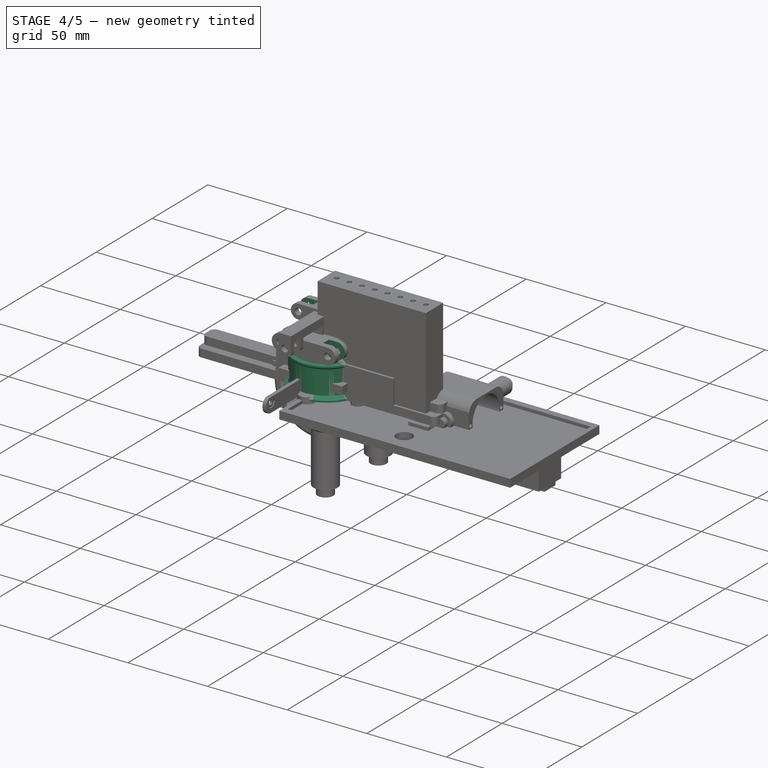
[diagram: stage 4 of 5 — iso view after this stage's code; geometry added in this stage tinted green]
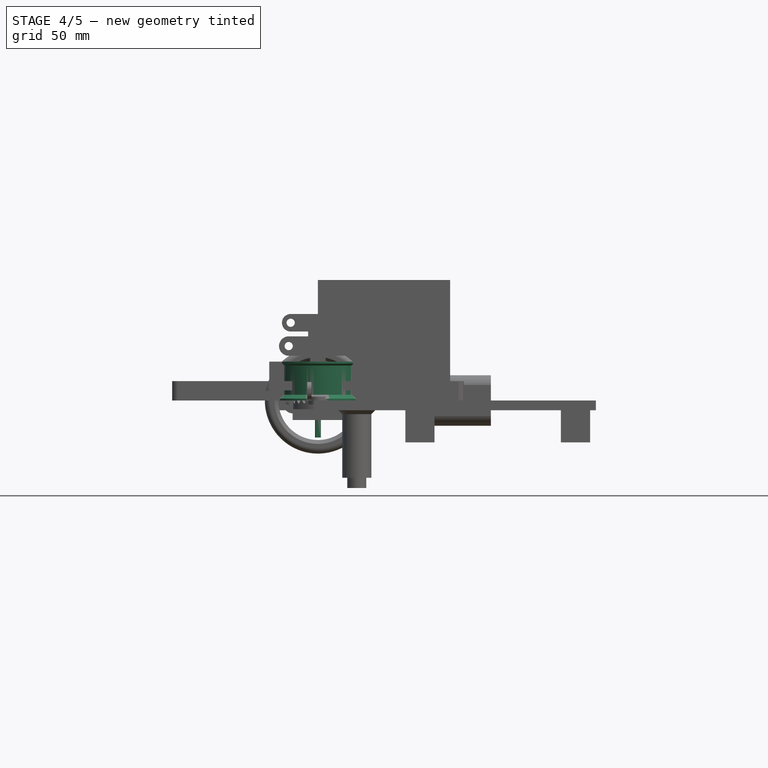
[diagram: stage 4 of 5 — front view after this stage's code; geometry added in this stage tinted green]
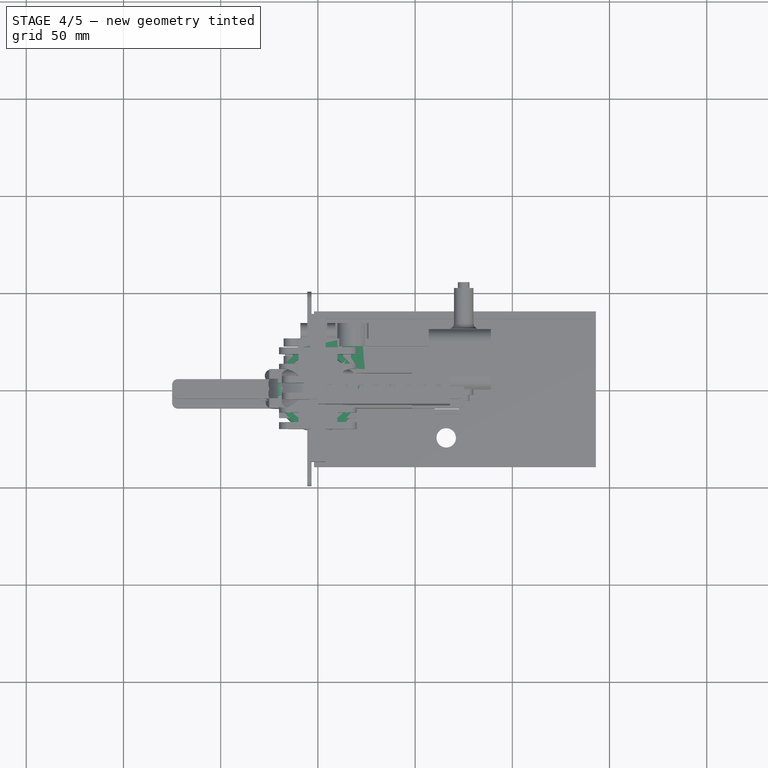
[diagram: stage 4 of 5 — top view after this stage's code; geometry added in this stage tinted green]
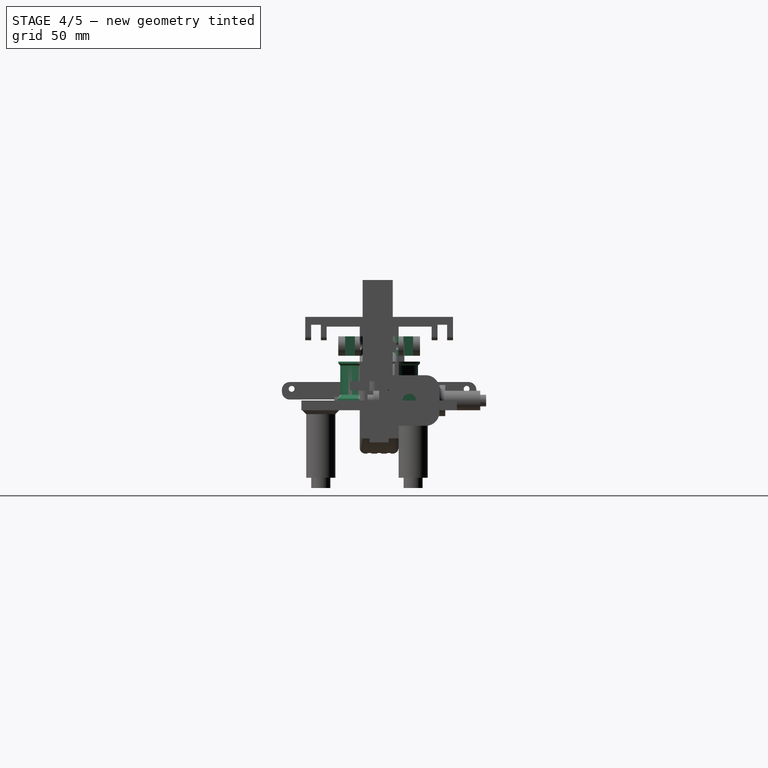
[diagram: stage 4 of 5 — right view after this stage's code; geometry added in this stage tinted green]
FEATURE [PartDesign::Pocket] Pocket061  label="Pocket062"
  BaseFeature = -> Pad086
  Length = 10
  Length2 = 100
  Midplane = true
  Placement = pos=(0,0,0) rot=(1,0,0;1.5708rad)
  Profile = -> Sketch160
  Type = 0
FEATURE [PartDesign::Pocket] Pocket063  label="Pocket064"
  BaseFeature = -> Pocket061
  Length = 20
  Length2 = 100
  Placement = pos=(0,0,0) rot=(1,0,0;1.5708rad)
  Profile = -> Sketch161
  Reversed = true
  Type = 0
FEATURE [PartDesign::Pocket] Pocket064  label="Pocket065"
  BaseFeature = -> Pocket063
  Length = 15
  Length2 = 100
  Placement = pos=(0,0,0) rot=(1,0,0;1.5708rad)
  Profile = -> Sketch157
  Reversed = true
  Type = 0
FEATURE [PartDesign::Pocket] Pocket062  label="Pocket063"
  BaseFeature = -> Pocket064
  Length = 20
  Length2 = 100
  Placement = pos=(0,0,0) rot=(1,0,0;1.5708rad)
  Profile = -> Sketch158
  Reversed = true
  Type = 0
FEATURE [PartDesign::Pocket] Pocket065  label="Pocket066"
  BaseFeature = -> Pocket062
  Length = 20
  Length2 = 100
  Placement = pos=(0,0,0) rot=(1,0,0;1.5708rad)
  Profile = -> Sketch162
  Type = 0
FEATURE [PartDesign::Pad] Pad087  label="Pad089"
  BaseFeature = -> Pocket065
  Direction = (1,1,1)
  Length = 20
  Length2 = 100
  Midplane = true
  Placement = pos=(0,0,0) rot=(1,0,0;1.5708rad)
  Profile = -> Sketch159
  Type = 0
FEATURE [PartDesign::Chamfer] Chamfer016
  Angle = 45
  Base = -> Pad087 [Edge105]
  BaseFeature = -> Pad087
  ChamferType = 0
  FlipDirection = false
  Placement = pos=(0,0,0) rot=(1,0,0;1.5708rad)
  Size = 3.99
  Size2 = 1
  SupportTransform = false
FEATURE [Sketcher::SketchObject] Sketch163  label="Fastner001"
  FullyConstrained = true
  MapMode = 5
  Support = -> [XY_Plane030]
  sketch-geometry (4):
    g0: LineSegment StartX=-4.9 StartY=4.9 StartZ=0 EndX=4.9 EndY=4.9 EndZ=0
    g1: LineSegment StartX=4.9 StartY=4.9 StartZ=0 EndX=4.9 EndY=-4.9 EndZ=0
    g2: LineSegment StartX=4.9 StartY=-4.9 StartZ=0 EndX=-4.9 EndY=-4.9 EndZ=0
    g3: LineSegment StartX=-4.9 StartY=-4.9 StartZ=0 EndX=-4.9 EndY=4.9 EndZ=0
  constraints (12):
    c: Coincident(g0,g1)
    c: Coincident(g1,g2)
    c: Coincident(g2,g3)
    c: Coincident(g3,g0)
    c: Horizontal(g0)
    c: Horizontal(g2)
    c: Vertical(g1)
    c: Vertical(g3)
    c: DistanceX(g0,g0) = 9.8
    c: DistanceY(g3,g3) = 9.8
    c: DistanceY(g-1,g0) = 4.9
    c: DistanceX(g0,g-1) = 4.9
FEATURE [PartDesign::Pad] Pad092  label="Pad094"
  Direction = (1,1,1)
  Length = 5
  Length2 = 100
  Profile = -> Sketch163
  Reversed = true
  Type = 0
FEATURE [Sketcher::SketchObject] Sketch164  label="Base005"
  FullyConstrained = true
  MapMode = 5
  Support = -> [XY_Plane030]
  sketch-geometry (4):
    g0: LineSegment StartX=-4.9 StartY=10 StartZ=0 EndX=5.1 EndY=10 EndZ=0
    g1: LineSegment StartX=5.1 StartY=10 StartZ=0 EndX=5.1 EndY=-10 EndZ=0
    g2: LineSegment StartX=5.1 StartY=-10 StartZ=0 EndX=-4.9 EndY=-10 EndZ=0
    g3: LineSegment StartX=-4.9 StartY=-10 StartZ=0 EndX=-4.9 EndY=10 EndZ=0
  constraints (12):
    c: Coincident(g0,g1)
    c: Coincident(g1,g2)
    c: Coincident(g2,g3)
    c: Coincident(g3,g0)
    c: Horizontal(g0)
    c: Horizontal(g2)
    c: Vertical(g1)
    c: Vertical(g3)
    c: DistanceY(g1,g1) = 20
    c: DistanceY(g-1,g0) = 10
    c: DistanceX(g0,g-1) = 4.9
    c: DistanceX(g0,g0) = 10
FEATURE [PartDesign::Pad] Pad091  label="Pad093"
  BaseFeature = -> Pad092
  Direction = (1,1,1)
  Length = 10
  Length2 = 100
  Profile = -> Sketch164
  Type = 0
FEATURE [Sketcher::SketchObject] Sketch212  label="ServoHolder002"
  FullyConstrained = true
  MapMode = 5
  Support = -> [XY_Plane040]
  sketch-geometry (4):
    g0: LineSegment StartX=60 StartY=16.25 StartZ=0 EndX=72.5 EndY=16.25 EndZ=0
    g1: LineSegment StartX=72.5 StartY=16.25 StartZ=0 EndX=72.5 EndY=-10.25 EndZ=0
    g2: LineSegment StartX=72.5 StartY=-10.25 StartZ=0 EndX=60 EndY=-10.25 EndZ=0
    g3: LineSegment StartX=60 StartY=-10.25 StartZ=0 EndX=60 EndY=16.25 EndZ=0
  constraints (12):
    c: Coincident(g0,g1)
    c: Coincident(g1,g2)
    c: Coincident(g2,g3)
    c: Coincident(g3,g0)
    c: Horizontal(g0)
    c: Horizontal(g2)
    c: Vertical(g1)
    c: Vertical(g3)
    c: DistanceY(g2,g-1) = 10.25
    c: DistanceY(g3,g3) = 26.5
    c: DistanceX(g2,g2) = 12.5
    c: DistanceX(g-1,g2) = 60
FEATURE [Sketcher::SketchObject] Sketch213  label="Pocket091"
  FullyConstrained = true
  MapMode = 5
  Support = -> [XY_Plane041]
  sketch-geometry (4):
    g0: LineSegment StartX=0 StartY=0 StartZ=0 EndX=25 EndY=0 EndZ=0
    g1: LineSegment StartX=25 StartY=0 StartZ=0 EndX=25 EndY=35 EndZ=0
    g2: LineSegment StartX=25 StartY=35 StartZ=0 EndX=0 EndY=35 EndZ=0
    g3: LineSegment StartX=0 StartY=35 StartZ=0 EndX=0 EndY=0 EndZ=0
  constraints (11):
    c: Coincident(g0,g1)
    c: Coincident(g1,g2)
    c: Coincident(g2,g3)
    c: Coincident(g3,g0)
    c: Horizontal(g0)
    c: Horizontal(g2)
    c: Vertical(g1)
    c: Vertical(g3)
    c: Coincident(g0,g-1)
    c: DistanceX(g2,g2) = 25
    c: DistanceY(g1,g1) = 35
FEATURE [Sketcher::SketchObject] Sketch214  label="Barrier"
  FullyConstrained = true
  MapMode = 5
  Support = -> [XY_Plane041]
  sketch-geometry (4):
    g0: LineSegment StartX=22 StartY=35 StartZ=0 EndX=25 EndY=35 EndZ=0
    g1: LineSegment StartX=25 StartY=35 StartZ=0 EndX=25 EndY=0 EndZ=0
    g2: LineSegment StartX=25 StartY=0 StartZ=0 EndX=22 EndY=0 EndZ=0
    g3: LineSegment StartX=22 StartY=0 StartZ=0 EndX=22 EndY=35 EndZ=0
  constraints (12):
    c: Coincident(g0,g1)
    c: Coincident(g1,g2)
    c: Coincident(g2,g3)
    c: Coincident(g3,g0)
    c: Horizontal(g0)
    c: Horizontal(g2)
    c: Vertical(g1)
    c: Vertical(g3)
    c: PointOnObject(g1,g-1)
    c: DistanceY(g1,g1) = 35
    c: DistanceX(g2,g2) = 3
    c: DistanceX(g-1,g1) = 25
FEATURE [Sketcher::SketchObject] Sketch215  label="Pocket093"
  FullyConstrained = true
  MapMode = 5
  Support = -> [XY_Plane041]
  sketch-geometry (8):
    g0: LineSegment StartX=0 StartY=35 StartZ=0 EndX=22 EndY=35 EndZ=0
    g1: LineSegment StartX=22 StartY=35 StartZ=0 EndX=22 EndY=30 EndZ=0
    g2: LineSegment StartX=22 StartY=30 StartZ=0 EndX=0 EndY=30 EndZ=0
    g3: LineSegment StartX=0 StartY=30 StartZ=0 EndX=0 EndY=35 EndZ=0
    g4: LineSegment StartX=0 StartY=0 StartZ=0 EndX=22 EndY=0 EndZ=0
    g5: LineSegment StartX=22 StartY=0 StartZ=0 EndX=22 EndY=8 EndZ=0
    g6: LineSegment StartX=22 StartY=8 StartZ=0 EndX=0 EndY=8 EndZ=0
    g7: LineSegment StartX=0 StartY=8 StartZ=0 EndX=0 EndY=0 EndZ=0
  constraints (23):
    c: Coincident(g0,g1)
    c: Coincident(g1,g2)
    c: Coincident(g2,g3)
    c: Coincident(g3,g0)
    c: Horizontal(g0)
    c: Horizontal(g2)
    c: Vertical(g1)
    c: Vertical(g3)
    c: PointOnObject(g0,g-2)
    c: Coincident(g4,g5)
    c: Coincident(g5,g6)
    c: Coincident(g6,g7)
    c: Coincident(g7,g4)
    c: Horizontal(g4)
    c: Horizontal(g6)
    c: Vertical(g5)
    c: Vertical(g7)
    c: Coincident(g4,g-1)
    c: DistanceX(g6,g6) = 22
    c: DistanceX(g0,g0) = 22
    c: DistanceY(g3,g3) = 5
    c: DistanceY(g7,g7) = 8
    c: DistanceY(g4,g0) = 35
FEATURE [Sketcher::SketchObject] Sketch216  label="Hole007"
  FullyConstrained = true
  MapMode = 5
  Support = -> [XY_Plane041]
  sketch-geometry (1):
    g0: Circle CenterX=10 CenterY=20 CenterZ=0 NormalX=0 NormalY=0 NormalZ=1 AngleXU=0 Radius=4.9
  constraints (3):
    c: Radius(g0) = 4.9
    c: DistanceY(g-1,g0) = 20
    c: DistanceX(g-1,g0) = 10
FEATURE [PartDesign::Pad] Pad119  label="Pad122"
  Direction = (1,1,1)
  Length = 5
  Length2 = 100
  Profile = -> Sketch213
  Reversed = true
  Type = 0
FEATURE [PartDesign::Pad] Pad120  label="Pad123"
  BaseFeature = -> Pad119
  Direction = (1,1,1)
  Length = 5
  Length2 = 100
  Profile = -> Sketch214
  Type = 0
FEATURE [PartDesign::Pocket] Pocket088  label="Pocket092"
  BaseFeature = -> Pad120
  Length = 4
  Length2 = 100
  Profile = -> Sketch215
  Type = 0
FEATURE [PartDesign::Pad] Pad121  label="Pad124"
  BaseFeature = -> Pocket088
  Direction = (1,1,1)
  Length = 10
  Length2 = 100
  Profile = -> Sketch216
  Reversed = true
  Type = 0
FEATURE [PartDesign::Body] Body041  label="MotorDriverHolder"
  Group = -> [Sketch213,Sketch214,Sketch215,Sketch216,Pad119,Pad120,Pocket088,Pad121]
  Origin = -> Origin041
  Placement = pos=(-33.5,9.5,-93.5) rot=(0,0.707107,0.707107;3.14159rad)
  Tip = -> Pad121
FEATURE [Sketcher::SketchObject] Sketch217  label="Hole008"
  FullyConstrained = true
  MapMode = 5
  Support = -> [XY_Plane042]
  sketch-geometry (2):
    g0: Circle CenterX=5.5 CenterY=1.5 CenterZ=0 NormalX=0 NormalY=0 NormalZ=1 AngleXU=0 Radius=1.4
    g1: Circle CenterX=14.5 CenterY=1.5 CenterZ=0 NormalX=0 NormalY=0 NormalZ=1 AngleXU=0 Radius=1.4
  constraints (6):
    c: DistanceY(g1,g0) = 0
    c: Radius(g0) = 1.4
    c: Radius(g1) = 1.4
    c: DistanceX(g0,g1) = 9
    c: DistanceX(g-1,g0) = 5.5
    c: DistanceY(g-1,g0) = 1.5
FEATURE [Sketcher::SketchObject] Sketch218
  AttachmentOffset = pos=(0,0,-5) rot=(0,0,1;0rad)
  FullyConstrained = true
  MapMode = 5
  Placement = pos=(0,0,-5) rot=(0,0,1;0rad)
  Support = -> [XY_Plane042]
  sketch-geometry (4):
    g0: LineSegment StartX=5.25 StartY=9.5 StartZ=0 EndX=14.75 EndY=9.5 EndZ=0
    g1: LineSegment StartX=14.75 StartY=9.5 StartZ=0 EndX=14.75 EndY=0 EndZ=0
    g2: LineSegment StartX=14.75 StartY=0 StartZ=0 EndX=5.25 EndY=0 EndZ=0
    g3: LineSegment StartX=5.25 StartY=0 StartZ=0 EndX=5.25 EndY=9.5 EndZ=0
  constraints (12):
    c: Coincident(g0,g1)
    c: Coincident(g1,g2)
    c: Coincident(g2,g3)
    c: Coincident(g3,g0)
    c: Horizontal(g0)
    c: Horizontal(g2)
    c: Vertical(g1)
    c: Vertical(g3)
    c: DistanceX(g0,g0) = 9.5
    c: DistanceY(g1,g1) = 9.5
    c: DistanceY(g-1,g2) = 0
    c: DistanceX(g-1,g2) = 5.25
FEATURE [Sketcher::SketchObject] Sketch219  label="Base011"
  FullyConstrained = true
  MapMode = 5
  Support = -> [XY_Plane042]
  sketch-geometry (4):
    g0: LineSegment StartX=0 StartY=0 StartZ=0 EndX=20 EndY=0 EndZ=0
    g1: LineSegment StartX=20 StartY=0 StartZ=0 EndX=20 EndY=14 EndZ=0
    g2: LineSegment StartX=20 StartY=14 StartZ=0 EndX=0 EndY=14 EndZ=0
    g3: LineSegment StartX=0 StartY=14 StartZ=0 EndX=0 EndY=0 EndZ=0
  constraints (11):
    c: Coincident(g0,g1)
    c: Coincident(g1,g2)
    c: Coincident(g2,g3)
    c: Coincident(g3,g0)
    c: Horizontal(g0)
    c: Horizontal(g2)
    c: Vertical(g1)
    c: Vertical(g3)
    c: Coincident(g0,g-1)
    c: DistanceX(g2,g2) = 20
    c: DistanceY(g1,g1) = 14
FEATURE [PartDesign::Pad] Pad124  label="Pad127"
  Direction = (1,1,1)
  Length = 5
  Length2 = 100
  Profile = -> Sketch219
  Reversed = true
  Type = 0
FEATURE [Sketcher::SketchObject] Sketch220  label="Slot"
  FullyConstrained = true
  MapMode = 5
  Support = -> [XY_Plane042]
  sketch-geometry (4):
    g0: LineSegment StartX=3 StartY=0 StartZ=0 EndX=17 EndY=0 EndZ=0
    g1: LineSegment StartX=17 StartY=0 StartZ=0 EndX=17 EndY=12 EndZ=0
    g2: LineSegment StartX=17 StartY=12 StartZ=0 EndX=3 EndY=12 EndZ=0
    g3: LineSegment StartX=3 StartY=12 StartZ=0 EndX=3 EndY=0 EndZ=0
  constraints (12):
    c: Coincident(g0,g1)
    c: Coincident(g1,g2)
    c: Coincident(g2,g3)
    c: Coincident(g3,g0)
    c: Horizontal(g0)
    c: Horizontal(g2)
    c: Vertical(g1)
    c: Vertical(g3)
    c: PointOnObject(g0,g-1)
    c: DistanceX(g2,g2) = 14
    c: DistanceX(g-1,g0) = 3
    c: DistanceY(g3,g3) = 12
FEATURE [PartDesign::Pocket] Pocket089  label="Pocket094"
  BaseFeature = -> Pad124
  Length = 2
  Length2 = 100
  Profile = -> Sketch220
  Type = 0
FEATURE [PartDesign::Pad] Pad123  label="Pad126"
  BaseFeature = -> Pocket089
  Direction = (1,1,1)
  Length = 5
  Length2 = 100
  Profile = -> Sketch217
  Reversed = true
  Type = 0
FEATURE [PartDesign::Pad] Pad122  label="Pad125"
  BaseFeature = -> Pad123
  Direction = (1,1,1)
  Length = 5
  Length2 = 100
  Profile = -> Sketch218
  Reversed = true
  Type = 0
FEATURE [PartDesign::Chamfer] Chamfer024
  Angle = 45
  Base = -> Pad122 [Face20,Face21]
  BaseFeature = -> Pad122
  ChamferType = 0
  FlipDirection = false
  Size = 1.2
  Size2 = 1
  SupportTransform = false
FEATURE [PartDesign::Body] Body042  label="PowerConnector"
  Group = -> [Sketch219,Sketch220,Sketch217,Sketch218,Pad124,Pocket089,Pad123,Pad122,Chamfer024]
  Origin = -> Origin042
  Placement = pos=(-39,20.5,15.5) rot=(0,1,0;3.14159rad)
  Tip = -> Chamfer024
FEATURE [Sketcher::SketchObject] Sketch239  label="Rod005"
  FullyConstrained = true
  MapMode = 5
  Support = -> [XY_Plane046]
  sketch-geometry (4):
    g0: LineSegment StartX=-2.3 StartY=3.5 StartZ=0 EndX=2.3 EndY=3.5 EndZ=0
    g1: LineSegment StartX=2.3 StartY=3.5 StartZ=0 EndX=2.3 EndY=-3.5 EndZ=0
    g2: LineSegment StartX=2.3 StartY=-3.5 StartZ=0 EndX=-2.3 EndY=-3.5 EndZ=0
    g3: LineSegment StartX=-2.3 StartY=-3.5 StartZ=0 EndX=-2.3 EndY=3.5 EndZ=0
  constraints (12):
    c: Coincident(g0,g1)
    c: Coincident(g1,g2)
    c: Coincident(g2,g3)
    c: Coincident(g3,g0)
    c: Horizontal(g0)
    c: Horizontal(g2)
    c: Vertical(g1)
    c: Vertical(g3)
    c: DistanceX(g0,g0) = 4.6
    c: DistanceX(g0,g-1) = 2.3
    c: DistanceY(g1,g1) = 7
    c: DistanceY(g-1,g0) = 3.5
FEATURE [Sketcher::SketchObject] Sketch240  label="Circle006"
  FullyConstrained = true
  MapMode = 5
  Support = -> [XY_Plane046]
  sketch-geometry (1):
    g0: Circle CenterX=0 CenterY=0 CenterZ=0 NormalX=0 NormalY=0 NormalZ=1 AngleXU=0 Radius=7
  constraints (2):
    c: Coincident(g0,g-1)
    c: Radius(g0) = 7
FEATURE [PartDesign::Pad] Pad138  label="Pad141"
  Direction = (1,1,1)
  Length = 2
  Length2 = 100
  Midplane = true
  Profile = -> Sketch240
  Type = 0
FEATURE [PartDesign::Pad] Pad137  label="Pad140"
  BaseFeature = -> Pad138
  Direction = (1,1,1)
  Length = 9
  Length2 = 100
  Profile = -> Sketch239
  Reversed = true
  Type = 0
FEATURE [Sketcher::SketchObject] Sketch241
  FullyConstrained = true
  MapMode = 5
  Support = -> [XY_Plane046]
  sketch-geometry (2):
    g0: Circle CenterX=0 CenterY=0 CenterZ=0 NormalX=0 NormalY=0 NormalZ=1 AngleXU=0 Radius=3
    g1: Circle CenterX=0 CenterY=0 CenterZ=0 NormalX=0 NormalY=0 NormalZ=1 AngleXU=0 Radius=2
  constraints (4):
    c: Coincident(g0,g-1)
    c: Radius(g0) = 3
    c: Coincident(g1,g0)
    c: Radius(g1) = 2
FEATURE [Sketcher::SketchObject] Sketch242  label="Hole009"
  FullyConstrained = true
  MapMode = 5
  Placement = pos=(0,0,0) rot=(0.57735,0.57735,0.57735;2.0944rad)
  Support = -> [YZ_Plane046]
  sketch-geometry (1):
    g0: Circle CenterX=0 CenterY=-6 CenterZ=0 NormalX=0 NormalY=0 NormalZ=1 AngleXU=0 Radius=2.1
  constraints (3):
    c: PointOnObject(g0,g-2)
    c: Radius(g0) = 2.1
    c: DistanceY(g0,g-1) = 6
FEATURE [PartDesign::Pocket] Pocket098  label="Pocket105"
  BaseFeature = -> Pad137
  Length = 5
  Length2 = 100
  Midplane = true
  Profile = -> Sketch242
  Type = 0
FEATURE [PartDesign::Pad] Pad136  label="Pad139"
  BaseFeature = -> Pocket098
  Direction = (1,1,1)
  Length = 16
  Length2 = 100
  Profile = -> Sketch241
  Type = 0
FEATURE [PartDesign::Fillet] Fillet019
  Base = -> Pad136 [Edge13,Edge18]
  BaseFeature = -> Pad136
  Radius = 2
  SupportTransform = false
FEATURE [PartDesign::Fillet] Fillet020
  Base = -> Fillet019 [Edge25]
  BaseFeature = -> Fillet019
  Radius = 2
  SupportTransform = false
FEATURE [PartDesign::Body] Body046  label="Right_SuspensionArm"
  Group = -> [Sketch240,Sketch239,Sketch242,Pad138,Pad137,Pocket098,Sketch241,Pad136,Fillet019,Fillet020]
  Origin = -> Origin046
  Placement = pos=(-104.951,13.0903,-60.6239) rot=(0,0.573576,0.819152;3.14159rad)
  Tip = -> Fillet020
FEATURE [Sketcher::SketchObject] Sketch243  label="Hole010"
  FullyConstrained = true
  MapMode = 5
  Placement = pos=(0,0,0) rot=(0.57735,0.57735,0.57735;2.0944rad)
  Support = -> [YZ_Plane047]
  sketch-geometry (1):
    g0: Circle CenterX=0 CenterY=-6 CenterZ=0 NormalX=0 NormalY=0 NormalZ=1 AngleXU=0 Radius=2.1
  constraints (3):
    c: PointOnObject(g0,g-2)
    c: Radius(g0) = 2.1
    c: DistanceY(g0,g-1) = 6
FEATURE [Sketcher::SketchObject] Sketch244
  FullyConstrained = true
  MapMode = 5
  Support = -> [XY_Plane047]
  sketch-geometry (1):
    g0: Circle CenterX=0 CenterY=0 CenterZ=0 NormalX=0 NormalY=0 NormalZ=1 AngleXU=0 Radius=1.4
  constraints (2):
    c: Coincident(g0,g-1)
    c: Radius(g0) = 1.4
FEATURE [Sketcher::SketchObject] Sketch245  label="Circle007"
  FullyConstrained = true
  MapMode = 5
  Support = -> [XY_Plane047]
  sketch-geometry (1):
    g0: Circle CenterX=0 CenterY=0 CenterZ=0 NormalX=0 NormalY=0 NormalZ=1 AngleXU=0 Radius=7
  constraints (2):
    c: Coincident(g0,g-1)
    c: Radius(g0) = 7
FEATURE [PartDesign::Pad] Pad139  label="Pad142"
  Direction = (1,1,1)
  Length = 2
  Length2 = 100
  Midplane = true
  Profile = -> Sketch245
  Type = 0
FEATURE [Sketcher::SketchObject] Sketch246  label="Rod006"
  FullyConstrained = true
  MapMode = 5
  Support = -> [XY_Plane047]
  sketch-geometry (4):
    g0: LineSegment StartX=-2.3 StartY=3.5 StartZ=0 EndX=2.3 EndY=3.5 EndZ=0
    g1: LineSegment StartX=2.3 StartY=3.5 StartZ=0 EndX=2.3 EndY=-3.5 EndZ=0
    g2: LineSegment StartX=2.3 StartY=-3.5 StartZ=0 EndX=-2.3 EndY=-3.5 EndZ=0
    g3: LineSegment StartX=-2.3 StartY=-3.5 StartZ=0 EndX=-2.3 EndY=3.5 EndZ=0
  constraints (12):
    c: Coincident(g0,g1)
    c: Coincident(g1,g2)
    c: Coincident(g2,g3)
    c: Coincident(g3,g0)
    c: Horizontal(g0)
    c: Horizontal(g2)
    c: Vertical(g1)
    c: Vertical(g3)
    c: DistanceX(g0,g0) = 4.6
    c: DistanceX(g0,g-1) = 2.3
    c: DistanceY(g1,g1) = 7
    c: DistanceY(g-1,g0) = 3.5
FEATURE [PartDesign::Pad] Pad141  label="Pad144"
  BaseFeature = -> Pad139
  Direction = (1,1,1)
  Length = 9
  Length2 = 100
  Profile = -> Sketch246
  Reversed = true
  Type = 0
FEATURE [PartDesign::Pocket] Pocket099  label="Pocket106"
  BaseFeature = -> Pad141
  Length = 5
  Length2 = 100
  Midplane = true
  Profile = -> Sketch243
  Type = 0
FEATURE [PartDesign::Pad] Pad140  label="Pad143"
  BaseFeature = -> Pocket099
  Direction = (1,1,1)
  Length = 17
  Length2 = 100
  Profile = -> Sketch244
  Type = 0
FEATURE [PartDesign::Fillet] Fillet022
  Base = -> Pad140 [Edge13,Edge18]
  BaseFeature = -> Pad140
  Radius = 2
  SupportTransform = false
FEATURE [PartDesign::Fillet] Fillet021
  Base = -> Fillet022 [Edge25]
  BaseFeature = -> Fillet022
  Radius = 3
  SupportTransform = false
FEATURE [PartDesign::Body] Body047  label="Right_SuspensionArm_OtherSide"
  Group = -> [Sketch245,Sketch246,Sketch243,Pad139,Pad141,Pocket099,Sketch244,Pad140,Fillet022,Fillet021]
  Origin = -> Origin047
  Placement = pos=(-104.797,38.8046,-49.9539) rot=(-1,0,0;4.27606rad)
  Tip = -> Fillet021
FEATURE [Sketcher::SketchObject] Sketch247
  FullyConstrained = true
  MapMode = 5
  Placement = pos=(0,0,0) rot=(1,0,0;1.5708rad)
  Support = -> [XZ_Plane048]
  sketch-geometry (4):
    g0: LineSegment StartX=4 StartY=2 StartZ=0 EndX=6.5 EndY=2 EndZ=0
    g1: LineSegment StartX=6.5 StartY=2 StartZ=0 EndX=6.5 EndY=0 EndZ=0
    g2: LineSegment StartX=6.5 StartY=0 StartZ=0 EndX=4 EndY=0 EndZ=0
    g3: LineSegment StartX=4 StartY=0 StartZ=0 EndX=4 EndY=2 EndZ=0
  constraints (12):
    c: Coincident(g0,g1)
    c: Coincident(g1,g2)
    c: Coincident(g2,g3)
    c: Coincident(g3,g0)
    c: Horizontal(g0)
    c: Horizontal(g2)
    c: Vertical(g1)
    c: Vertical(g3)
    c: PointOnObject(g1,g-1)
    c: DistanceX(g0,g0) = 2.5
    c: DistanceY(g1,g1) = 2
    c: DistanceX(g-1,g2) = 4
FEATURE [PartDesign::AdditiveHelix] AdditiveHelix001
  Angle = 0
  Axis = (0,-2e-16,1)
  Base = (0,0,0)
  HasBeenEdited = true
  Height = 25
  LeftHanded = false
  Mode = 0
  Outside = false
  Pitch = 5
  Placement = pos=(0,0,0) rot=(1,0,0;1.5708rad)
  Profile = -> Sketch247
  ReferenceAxis = -> Sketch247 [V_Axis]
  Turns = 5
FEATURE [Sketcher::SketchObject] Sketch248
  FullyConstrained = true
  MapMode = 5
  Support = -> [XY_Plane048]
  sketch-geometry (2):
    g0: Circle CenterX=0 CenterY=0 CenterZ=0 NormalX=0 NormalY=0 NormalZ=1 AngleXU=0 Radius=6.5
    g1: Circle CenterX=0 CenterY=0 CenterZ=0 NormalX=0 NormalY=0 NormalZ=1 AngleXU=0 Radius=4
  constraints (4):
    c: Coincident(g0,g-1)
    c: Coincident(g1,g0)
    c: Radius(g1) = 4
    c: Radius(g0) = 6.5
FEATURE [PartDesign::Pad] Pad142  label="Pad145"
  BaseFeature = -> AdditiveHelix001
  Direction = (1,1,1)
  Length = 2
  Length2 = 100
  Midplane = true
  Placement = pos=(0,0,0) rot=(1,0,0;1.5708rad)
  Profile = -> Sketch248
  Type = 0
FEATURE [PartDesign::Body] Body048  label="Right_Spring"
  Group = -> [Sketch247,Sketch248,AdditiveHelix001,Pad142]
  Origin = -> Origin048
  Placement = pos=(-105.011,14.916,-59.8426) rot=(-1,0,0;1.13446rad)
  Tip = -> Pad142
FEATURE [Sketcher::SketchObject] Sketch260  label="Wheel_Garnish002"
  FullyConstrained = true
  MapMode = 5
  Support = -> [XY_Plane050]
  sketch-geometry (15):
    g0: ArcOfCircle CenterX=0 CenterY=0 CenterZ=0 NormalX=0 NormalY=0 NormalZ=1 AngleXU=0 Radius=18 StartAngle=2.58371 EndAngle=3.06563
    g1: LineSegment StartX=-4.29543 StartY=17.48 StartZ=0 EndX=0 EndY=15 EndZ=0
    g2: LineSegment StartX=0 StartY=15 StartZ=0 EndX=4.29543 EndY=17.48 EndZ=0
    g3: LineSegment StartX=15.401 StartY=9.31711 StartZ=0 EndX=14.3162 EndY=4.47726 EndZ=0
    g4: LineSegment StartX=14.3162 StartY=4.47726 StartZ=0 EndX=17.9653 EndY=1.11787 EndZ=0
    g5: LineSegment StartX=13.6527 StartY=-11.7304 StartZ=0 EndX=8.71585 EndY=-12.2079 EndZ=0
    g6: LineSegment StartX=8.71585 StartY=-12.2079 StartZ=0 EndX=6.66097 EndY=-16.7222 EndZ=0
    g7: LineSegment StartX=-6.89142 StartY=-16.6285 StartZ=0 EndX=-8.88373 EndY=-12.0863 EndZ=0
    g8: LineSegment StartX=-8.88373 StartY=-12.0863 StartZ=0 EndX=-13.8135 EndY=-11.5406 EndZ=0
    g9: LineSegment StartX=-17.9481 StartY=1.36602 StartZ=0 EndX=-14.253 EndY=4.67467 EndZ=0
    g10: LineSegment StartX=-14.253 StartY=4.67467 StartZ=0 EndX=-15.2708 EndY=9.52905 EndZ=0
    g11: ArcOfCircle CenterX=0 CenterY=0 CenterZ=0 NormalX=0 NormalY=0 NormalZ=1 AngleXU=0 Radius=18 StartAngle=1.32984 EndAngle=1.81176
    g12: ArcOfCircle CenterX=0 CenterY=0 CenterZ=0 NormalX=0 NormalY=0 NormalZ=1 AngleXU=0 Radius=18 StartAngle=0.0621436 EndAngle=0.544064
    g13: ArcOfCircle CenterX=0 CenterY=0 CenterZ=0 NormalX=0 NormalY=0 NormalZ=1 AngleXU=0 Radius=18 StartAngle=5.09146 EndAngle=5.57338
    g14: ArcOfCircle CenterX=0 CenterY=0 CenterZ=0 NormalX=0 NormalY=0 NormalZ=1 AngleXU=0 Radius=18 StartAngle=3.83758 EndAngle=4.3195
  constraints (45):
    c: Coincident(g0,g-1)
    c: Radius(g0) = 18
    c: Coincident(g1,g2)
    c: Coincident(g3,g4)
    c: Coincident(g5,g6)
    c: Coincident(g7,g8)
    c: Coincident(g9,g10)
    c: Angle(g4,g3) = 2.0944
    c: Angle(g6,g5) = 2.0944
    c: Angle(g8,g7) = 2.0944
    c: Angle(g10,g9) = 2.0944
    c: Angle(g2,g1) = 2.0944
    c: Equal(g3,g4)
    c: Equal(g2,g1)
    c: Equal(g10,g9)
    c: Equal(g8,g7)
    c: Equal(g6,g5)
    c: Distance(g0,g3) = 15
    c: Distance(g1,g0) = 15
    c: Distance(g9,g0) = 15
    c: Distance(g7,g0) = 15
    c: Distance(g5,g0) = 15
    c: Distance(g9,g1) = 17.6
    c: Distance(g9,g7) = 17.6
    c: Distance(g7,g5) = 17.6
    c: Distance(g3,g5) = 17.6
    c: DistanceX(g1,g0) = 0
    c: Coincident(g0,g10)
    c: Coincident(g11,g1)
    c: Equal(g0,g11)
    c: Coincident(g12,g3)
    c: Coincident(g11,g2)
    c: Coincident(g0,g11)
    c: Equal(g0,g12)
    c: Coincident(g13,g5)
    c: Coincident(g12,g4)
    c: Coincident(g0,g12)
    c: Equal(g0,g13)
    c: Coincident(g14,g7)
    c: Coincident(g13,g6)
    c: Coincident(g0,g13)
    c: Equal(g0,g14)
    c: Coincident(g0,g9)
    c: Coincident(g14,g8)
    c: Coincident(g0,g14)
FEATURE [Sketcher::SketchObject] Sketch261  label="InnerPocket004"
  AttachmentOffset = pos=(0,0,5) rot=(0,0,1;0rad)
  FullyConstrained = true
  MapMode = 5
  Placement = pos=(0,0,5) rot=(0,0,1;0rad)
  Support = -> [XY_Plane050]
  sketch-geometry (2):
    g0: Circle CenterX=0 CenterY=0 CenterZ=0 NormalX=0 NormalY=0 NormalZ=1 AngleXU=0 Radius=5
    g1: Circle CenterX=0 CenterY=0 CenterZ=0 NormalX=0 NormalY=0 NormalZ=1 AngleXU=0 Radius=10
  constraints (4):
    c: Coincident(g0,g-1)
    c: Radius(g0) = 5
    c: Coincident(g1,g0)
    c: Radius(g1) = 10
FEATURE [Sketcher::SketchObject] Sketch262  label="Rim002"
  AttachmentOffset = pos=(0,0,1) rot=(0,0,1;0rad)
  FullyConstrained = true
  MapMode = 5
  Placement = pos=(0,0,1) rot=(0,0,1;0rad)
  Support = -> [XY_Plane050]
  sketch-geometry (2):
    g0: Circle CenterX=0 CenterY=0 CenterZ=0 NormalX=0 NormalY=0 NormalZ=1 AngleXU=0 Radius=23
    g1: Circle CenterX=0 CenterY=0 CenterZ=0 NormalX=0 NormalY=0 NormalZ=1 AngleXU=0 Radius=20
  constraints (4):
    c: Coincident(g0,g-1)
    c: Coincident(g1,g0)
    c: Radius(g0) = 23
    c: Radius(g1) = 20
FEATURE [Sketcher::SketchObject] Sketch263  label="CenterHole003"
  FullyConstrained = true
  MapMode = 5
  Support = -> [XY_Plane050]
  sketch-geometry (4):
    g0: LineSegment StartX=-1.6 StartY=1.6 StartZ=0 EndX=1.6 EndY=1.6 EndZ=0
    g1: LineSegment StartX=1.6 StartY=1.6 StartZ=0 EndX=1.6 EndY=-1.6 EndZ=0
    g2: LineSegment StartX=1.6 StartY=-1.6 StartZ=0 EndX=-1.6 EndY=-1.6 EndZ=0
    g3: LineSegment StartX=-1.6 StartY=-1.6 StartZ=0 EndX=-1.6 EndY=1.6 EndZ=0
  constraints (12):
    c: Coincident(g0,g1)
    c: Coincident(g1,g2)
    c: Coincident(g2,g3)
    c: Coincident(g3,g0)
    c: Horizontal(g0)
    c: Horizontal(g2)
    c: Vertical(g1)
    c: Vertical(g3)
    c: DistanceX(g0,g0) = 3.2
    c: DistanceX(g-1,g0) = 1.6
    c: DistanceY(g1,g1) = 3.2
    c: DistanceY(g-1,g0) = 1.6
FEATURE [Sketcher::SketchObject] Sketch264
  FullyConstrained = true
  MapMode = 5
  Support = -> [XY_Plane050]
  sketch-geometry (2):
    g0: Circle CenterX=0 CenterY=0 CenterZ=0 NormalX=0 NormalY=0 NormalZ=1 AngleXU=0 Radius=5
    g1: Circle CenterX=0 CenterY=0 CenterZ=0 NormalX=0 NormalY=0 NormalZ=1 AngleXU=0 Radius=4
  constraints (4):
    c: Coincident(g0,g-1)
    c: Coincident(g1,g0)
    c: Radius(g1) = 4
    c: Radius(g0) = 5
FEATURE [Sketcher::SketchObject] Sketch265  label="Spoke002"
  FullyConstrained = true
  MapMode = 5
  Support = -> [XY_Plane050]
  sketch-geometry (15):
    g0: ArcOfCircle CenterX=0 CenterY=0 CenterZ=0 NormalX=0 NormalY=0 NormalZ=1 AngleXU=0 Radius=20 StartAngle=2.68866 EndAngle=2.97544
    g1: LineSegment StartX=-2.76648 StartY=19.8077 StartZ=0 EndX=-2.76648 EndY=3.80774 EndZ=0
    g2: LineSegment StartX=-2.76648 StartY=3.80774 StartZ=0 EndX=-17.9834 EndY=8.75201 EndZ=0
    g3: LineSegment StartX=-19.7246 StartY=3.30784 StartZ=0 EndX=-4.46265 EndY=-1.4957 EndZ=0
    g4: LineSegment StartX=-4.46265 StartY=-1.4957 StartZ=0 EndX=-13.7473 EndY=-14.5263 EndZ=0
    g5: LineSegment StartX=-9.40456 StartY=-17.6509 StartZ=0 EndX=0 EndY=-4.70663 EndZ=0
    g6: LineSegment StartX=0 StartY=-4.70663 StartZ=0 EndX=9.40456 EndY=-17.6509 EndZ=0
    g7: LineSegment StartX=2.76648 StartY=19.8077 StartZ=0 EndX=2.76648 EndY=3.80774 EndZ=0
    g8: LineSegment StartX=2.76648 StartY=3.80774 StartZ=0 EndX=17.9834 EndY=8.75201 EndZ=0
    g9: LineSegment StartX=19.6601 StartY=3.67155 StartZ=0 EndX=4.48951 EndY=-1.41303 EndZ=0
    g10: LineSegment StartX=4.48951 StartY=-1.41303 StartZ=0 EndX=14.0132 EndY=-14.2699 EndZ=0
    g11: ArcOfCircle CenterX=0 CenterY=0 CenterZ=0 NormalX=0 NormalY=0 NormalZ=1 AngleXU=0 Radius=20 StartAngle=1.43203 EndAngle=1.70957
    g12: ArcOfCircle CenterX=0 CenterY=0 CenterZ=0 NormalX=0 NormalY=0 NormalZ=1 AngleXU=0 Radius=20 StartAngle=0.184624 EndAngle=0.452928
    g13: ArcOfCircle CenterX=0 CenterY=0 CenterZ=0 NormalX=0 NormalY=0 NormalZ=1 AngleXU=0 Radius=20 StartAngle=5.20194 EndAngle=5.48871
    g14: ArcOfCircle CenterX=0 CenterY=0 CenterZ=0 NormalX=0 NormalY=0 NormalZ=1 AngleXU=0 Radius=20 StartAngle=3.95454 EndAngle=4.22284
  constraints (45):
    c: Coincident(g0,g-1)
    c: Radius(g0) = 20
    c: Vertical(g1)
    c: Coincident(g1,g2)
    c: Coincident(g3,g4)
    c: PointOnObject(g5,g-2)
    c: Coincident(g5,g6)
    c: Vertical(g7)
    c: Coincident(g7,g8)
    c: Coincident(g9,g10)
    c: Angle(g1,g2) = 1.25664
    c: Angle(g8,g7) = 1.25664
    c: Angle(g10,g9) = 1.25664
    c: Angle(g5,g6) = 1.25664
    c: Angle(g3,g4) = 1.25664
    c: Equal(g7,g8)
    c: Equal(g8,g9)
    c: Equal(g9,g10)
    c: Equal(g10,g6)
    c: Equal(g6,g5)
    c: Equal(g5,g4)
    c: Equal(g4,g3)
    c: Equal(g3,g2)
    c: Equal(g2,g1)
    c: Coincident(g0,g2)
    c: Coincident(g11,g1)
    c: Equal(g0,g11)
    c: Coincident(g12,g8)
    c: Coincident(g11,g7)
    c: Coincident(g0,g11)
    c: Equal(g0,g12)
    c: Coincident(g13,g10)
    c: Coincident(g12,g9)
    c: Coincident(g0,g12)
    c: Equal(g0,g13)
    c: Coincident(g14,g5)
    c: Coincident(g13,g6)
    c: Coincident(g0,g13)
    c: Equal(g0,g14)
    c: Coincident(g0,g3)
    c: Coincident(g14,g4)
    c: Coincident(g0,g14)
    c: Distance(g1) = 16
    c: Distance(g8,g9) = 5.35
    c: Distance(g4,g5) = 5.35
FEATURE [Sketcher::SketchObject] Sketch266  label="InnerPocket005"
  AttachmentOffset = pos=(0,0,1) rot=(0,0,1;0rad)
  FullyConstrained = true
  MapMode = 5
  Placement = pos=(0,0,1) rot=(0,0,1;0rad)
  Support = -> [XY_Plane050]
  sketch-geometry (2):
    g0: Circle CenterX=0 CenterY=0 CenterZ=0 NormalX=0 NormalY=0 NormalZ=1 AngleXU=0 Radius=21
    g1: Circle CenterX=0 CenterY=0 CenterZ=0 NormalX=0 NormalY=0 NormalZ=1 AngleXU=0 Radius=22
  constraints (4):
    c: Coincident(g0,g-1)
    c: Radius(g0) = 21
    c: Coincident(g1,g0)
    c: Radius(g1) = 22
FEATURE [Sketcher::SketchObject] Sketch267  label="InnerCircle003"
  FullyConstrained = true
  MapMode = 5
  Support = -> [XY_Plane050]
  sketch-geometry (1):
    g0: Circle CenterX=0 CenterY=0 CenterZ=0 NormalX=0 NormalY=0 NormalZ=1 AngleXU=0 Radius=7
  constraints (2):
    c: Coincident(g0,g-1)
    c: Radius(g0) = 7
FEATURE [Sketcher::SketchObject] Sketch268  label="OuterCircle002"
  FullyConstrained = true
  MapMode = 5
  Support = -> [XY_Plane050]
  sketch-geometry (2):
    g0: Circle CenterX=0 CenterY=0 CenterZ=0 NormalX=0 NormalY=0 NormalZ=1 AngleXU=0 Radius=18
    g1: Circle CenterX=0 CenterY=0 CenterZ=0 NormalX=0 NormalY=0 NormalZ=1 AngleXU=0 Radius=22
  constraints (4):
    c: Coincident(g0,g-1)
    c: Coincident(g1,g0)
    c: Radius(g0) = 18
    c: Radius(g1) = 22
FEATURE [PartDesign::Pad] Pad151  label="Pad154"
  Direction = (1,1,1)
  Length = 20
  Length2 = 100
  Profile = -> Sketch268
  Type = 0
FEATURE [PartDesign::Pad] Pad149  label="Pad152"
  BaseFeature = -> Pad151
  Direction = (1,1,1)
  Length = 5
  Length2 = 100
  Profile = -> Sketch265
  Type = 0
FEATURE [PartDesign::Pad] Pad148  label="Pad151"
  BaseFeature = -> Pad149
  Direction = (1,1,1)
  Length = 20
  Length2 = 100
  Profile = -> Sketch267
  Type = 0
FEATURE [PartDesign::Pocket] Pocket107  label="Pocket114"
  BaseFeature = -> Pad148
  Length = 18
  Length2 = 100
  Profile = -> Sketch262
  Reversed = true
  Type = 0
FEATURE [PartDesign::Pocket] Pocket105  label="Pocket112"
  BaseFeature = -> Pocket107
  Length = 500
  Length2 = 100
  Midplane = true
  Profile = -> Sketch263
  Type = 0
FEATURE [PartDesign::Pocket] Pocket106  label="Pocket113"
  BaseFeature = -> Pocket105
  Length = 20
  Length2 = 100
  Profile = -> Sketch261
  Reversed = true
  Type = 0
FEATURE [PartDesign::Pocket] Pocket108  label="Pocket115"
  BaseFeature = -> Pocket106
  Length = 200
  Length2 = 100
  Profile = -> Sketch266
  Reversed = true
  Type = 0
FEATURE [PartDesign::Pad] Pad150  label="Pad153"
  BaseFeature = -> Pocket108
  Direction = (1,1,1)
  Length = 5
  Length2 = 100
  Profile = -> Sketch260
  Type = 0
FEATURE [PartDesign::Pocket] Pocket104  label="Pocket111"
  BaseFeature = -> Pad150
  Length = 2
  Length2 = 100
  Profile = -> Sketch264
  Reversed = true
  Type = 0
FEATURE [PartDesign::Chamfer] Chamfer028
  Angle = 45
  Base = -> Pocket104 [Edge46,Edge41,Edge61,Edge56,Edge51]
  BaseFeature = -> Pocket104
  ChamferType = 0
  FlipDirection = false
  Size = 0.9
  Size2 = 1
  SupportTransform = false
FEATURE [PartDesign::Chamfer] Chamfer027
  Angle = 45
  Base = -> Chamfer028 [Edge260]
  BaseFeature = -> Chamfer028
  ChamferType = 0
  FlipDirection = false
  Size = 1.99
  Size2 = 1
  SupportTransform = false
FEATURE [PartDesign::Chamfer] Chamfer026
  Angle = 45
  Base = -> Chamfer027 [Edge8]
  BaseFeature = -> Chamfer027
  ChamferType = 0
  FlipDirection = false
  Size = 0.99
  Size2 = 1
  SupportTransform = false
FEATURE [PartDesign::Body] Body050  label="Wheel_FR"
  Group = -> [Sketch268,Sketch267,Sketch265,Sketch263,Sketch262,Pad151,Pad149,Pad148,Pocket107,Pocket105,Sketch261,Pocket106,Sketch266,Pocket108,Sketch260,Pad150,Sketch264,Pocket104,Chamfer028,Chamfer027,Chamfer026]
  Origin = -> Origin050
  Placement = pos=(-105.073,9.71856,-106.6) rot=(0,0,1;0rad)
  Tip = -> Chamfer026
FEATURE [Sketcher::SketchObject] Sketch271  label="InnerPocket006"
  AttachmentOffset = pos=(0,0,1) rot=(0,0,1;0rad)
  FullyConstrained = true
  MapMode = 5
  Placement = pos=(0,0,1) rot=(0,0,1;0rad)
  Support = -> [XY_Plane052]
  sketch-geometry (2):
    g0: Circle CenterX=0 CenterY=0 CenterZ=0 NormalX=0 NormalY=0 NormalZ=1 AngleXU=0 Radius=21
    g1: Circle CenterX=0 CenterY=0 CenterZ=0 NormalX=0 NormalY=0 NormalZ=1 AngleXU=0 Radius=22
  constraints (4):
    c: Coincident(g0,g-1)
    c: Radius(g0) = 21
    c: Coincident(g1,g0)
    c: Radius(g1) = 22
FEATURE [Sketcher::SketchObject] Sketch272  label="Spoke003"
  FullyConstrained = true
  MapMode = 5
  Support = -> [XY_Plane052]
  sketch-geometry (15):
    g0: ArcOfCircle CenterX=0 CenterY=0 CenterZ=0 NormalX=0 NormalY=0 NormalZ=1 AngleXU=0 Radius=20 StartAngle=2.68866 EndAngle=2.97544
    g1: LineSegment StartX=-2.76648 StartY=19.8077 StartZ=0 EndX=-2.76648 EndY=3.80774 EndZ=0
    g2: LineSegment StartX=-2.76648 StartY=3.80774 StartZ=0 EndX=-17.9834 EndY=8.75201 EndZ=0
    g3: LineSegment StartX=-19.7246 StartY=3.30784 StartZ=0 EndX=-4.46265 EndY=-1.4957 EndZ=0
    g4: LineSegment StartX=-4.46265 StartY=-1.4957 StartZ=0 EndX=-13.7473 EndY=-14.5263 EndZ=0
    g5: LineSegment StartX=-9.40456 StartY=-17.6509 StartZ=0 EndX=0 EndY=-4.70663 EndZ=0
    g6: LineSegment StartX=0 StartY=-4.70663 StartZ=0 EndX=9.40456 EndY=-17.6509 EndZ=0
    g7: LineSegment StartX=2.76648 StartY=19.8077 StartZ=0 EndX=2.76648 EndY=3.80774 EndZ=0
    g8: LineSegment StartX=2.76648 StartY=3.80774 StartZ=0 EndX=17.9834 EndY=8.75201 EndZ=0
    g9: LineSegment StartX=19.6601 StartY=3.67155 StartZ=0 EndX=4.48951 EndY=-1.41303 EndZ=0
    g10: LineSegment StartX=4.48951 StartY=-1.41303 StartZ=0 EndX=14.0132 EndY=-14.2699 EndZ=0
    g11: ArcOfCircle CenterX=0 CenterY=0 CenterZ=0 NormalX=0 NormalY=0 NormalZ=1 AngleXU=0 Radius=20 StartAngle=1.43203 EndAngle=1.70957
    g12: ArcOfCircle CenterX=0 CenterY=0 CenterZ=0 NormalX=0 NormalY=0 NormalZ=1 AngleXU=0 Radius=20 StartAngle=0.184624 EndAngle=0.452928
    g13: ArcOfCircle CenterX=0 CenterY=0 CenterZ=0 NormalX=0 NormalY=0 NormalZ=1 AngleXU=0 Radius=20 StartAngle=5.20194 EndAngle=5.48871
    g14: ArcOfCircle CenterX=0 CenterY=0 CenterZ=0 NormalX=0 NormalY=0 NormalZ=1 AngleXU=0 Radius=20 StartAngle=3.95454 EndAngle=4.22284
  constraints (45):
    c: Coincident(g0,g-1)
    c: Radius(g0) = 20
    c: Vertical(g1)
    c: Coincident(g1,g2)
    c: Coincident(g3,g4)
    c: PointOnObject(g5,g-2)
    c: Coincident(g5,g6)
    c: Vertical(g7)
    c: Coincident(g7,g8)
    c: Coincident(g9,g10)
    c: Angle(g1,g2) = 1.25664
    c: Angle(g8,g7) = 1.25664
    c: Angle(g10,g9) = 1.25664
    c: Angle(g5,g6) = 1.25664
    c: Angle(g3,g4) = 1.25664
    c: Equal(g7,g8)
    c: Equal(g8,g9)
    c: Equal(g9,g10)
    c: Equal(g10,g6)
    c: Equal(g6,g5)
    c: Equal(g5,g4)
    c: Equal(g4,g3)
    c: Equal(g3,g2)
    c: Equal(g2,g1)
    c: Coincident(g0,g2)
    c: Coincident(g11,g1)
    c: Equal(g0,g11)
    c: Coincident(g12,g8)
    c: Coincident(g11,g7)
    c: Coincident(g0,g11)
    c: Equal(g0,g12)
    c: Coincident(g13,g10)
    c: Coincident(g12,g9)
    c: Coincident(g0,g12)
    c: Equal(g0,g13)
    c: Coincident(g14,g5)
    c: Coincident(g13,g6)
    c: Coincident(g0,g13)
    c: Equal(g0,g14)
    c: Coincident(g0,g3)
    c: Coincident(g14,g4)
    c: Coincident(g0,g14)
    c: Distance(g1) = 16
    c: Distance(g8,g9) = 5.35
    c: Distance(g4,g5) = 5.35
FEATURE [Sketcher::SketchObject] Sketch273
  FullyConstrained = true
  MapMode = 5
  Support = -> [XY_Plane052]
  sketch-geometry (2):
    g0: Circle CenterX=0 CenterY=0 CenterZ=0 NormalX=0 NormalY=0 NormalZ=1 AngleXU=0 Radius=5
    g1: Circle CenterX=0 CenterY=0 CenterZ=0 NormalX=0 NormalY=0 NormalZ=1 AngleXU=0 Radius=4
  constraints (4):
    c: Coincident(g0,g-1)
    c: Coincident(g1,g0)
    c: Radius(g1) = 4
    c: Radius(g0) = 5
FEATURE [Sketcher::SketchObject] Sketch274  label="CenterHole004"
  FullyConstrained = true
  MapMode = 5
  Support = -> [XY_Plane052]
  sketch-geometry (4):
    g0: LineSegment StartX=-1.75 StartY=1.75 StartZ=0 EndX=1.75 EndY=1.75 EndZ=0
    g1: LineSegment StartX=1.75 StartY=1.75 StartZ=0 EndX=1.75 EndY=-1.75 EndZ=0
    g2: LineSegment StartX=1.75 StartY=-1.75 StartZ=0 EndX=-1.75 EndY=-1.75 EndZ=0
    g3: LineSegment StartX=-1.75 StartY=-1.75 StartZ=0 EndX=-1.75 EndY=1.75 EndZ=0
  constraints (12):
    c: Coincident(g0,g1)
    c: Coincident(g1,g2)
    c: Coincident(g2,g3)
    c: Coincident(g3,g0)
    c: Horizontal(g0)
    c: Horizontal(g2)
    c: Vertical(g1)
    c: Vertical(g3)
    c: DistanceX(g0,g0) = 3.5
    c: DistanceX(g-1,g0) = 1.75
    c: DistanceY(g1,g1) = 3.5
    c: DistanceY(g-1,g0) = 1.75
FEATURE [Sketcher::SketchObject] Sketch275  label="OuterCircle003"
  FullyConstrained = true
  MapMode = 5
  Support = -> [XY_Plane052]
  sketch-geometry (2):
    g0: Circle CenterX=0 CenterY=0 CenterZ=0 NormalX=0 NormalY=0 NormalZ=1 AngleXU=0 Radius=18
    g1: Circle CenterX=0 CenterY=0 CenterZ=0 NormalX=0 NormalY=0 NormalZ=1 AngleXU=0 Radius=22
  constraints (4):
    c: Coincident(g0,g-1)
    c: Coincident(g1,g0)
    c: Radius(g0) = 18
    c: Radius(g1) = 22
FEATURE [PartDesign::Pad] Pad153  label="Pad156"
  Direction = (1,1,1)
  Length = 20
  Length2 = 100
  Profile = -> Sketch275
  Type = 0
FEATURE [PartDesign::Pad] Pad154  label="Pad157"
  BaseFeature = -> Pad153
  Direction = (1,1,1)
  Length = 5
  Length2 = 100
  Profile = -> Sketch272
  Type = 0
FEATURE [Sketcher::SketchObject] Sketch276  label="Wheel_Garnish003"
  FullyConstrained = true
  MapMode = 5
  Support = -> [XY_Plane052]
  sketch-geometry (15):
    g0: ArcOfCircle CenterX=0 CenterY=0 CenterZ=0 NormalX=0 NormalY=0 NormalZ=1 AngleXU=0 Radius=18 StartAngle=2.58371 EndAngle=3.06563
    g1: LineSegment StartX=-4.29543 StartY=17.48 StartZ=0 EndX=0 EndY=15 EndZ=0
    g2: LineSegment StartX=0 StartY=15 StartZ=0 EndX=4.29543 EndY=17.48 EndZ=0
    g3: LineSegment StartX=15.401 StartY=9.31711 StartZ=0 EndX=14.3162 EndY=4.47726 EndZ=0
    g4: LineSegment StartX=14.3162 StartY=4.47726 StartZ=0 EndX=17.9653 EndY=1.11787 EndZ=0
    g5: LineSegment StartX=13.6527 StartY=-11.7304 StartZ=0 EndX=8.71585 EndY=-12.2079 EndZ=0
    g6: LineSegment StartX=8.71585 StartY=-12.2079 StartZ=0 EndX=6.66097 EndY=-16.7222 EndZ=0
    g7: LineSegment StartX=-6.89142 StartY=-16.6285 StartZ=0 EndX=-8.88373 EndY=-12.0863 EndZ=0
    g8: LineSegment StartX=-8.88373 StartY=-12.0863 StartZ=0 EndX=-13.8135 EndY=-11.5406 EndZ=0
    g9: LineSegment StartX=-17.9481 StartY=1.36602 StartZ=0 EndX=-14.253 EndY=4.67467 EndZ=0
    g10: LineSegment StartX=-14.253 StartY=4.67467 StartZ=0 EndX=-15.2708 EndY=9.52905 EndZ=0
    g11: ArcOfCircle CenterX=0 CenterY=0 CenterZ=0 NormalX=0 NormalY=0 NormalZ=1 AngleXU=0 Radius=18 StartAngle=1.32984 EndAngle=1.81176
    g12: ArcOfCircle CenterX=0 CenterY=0 CenterZ=0 NormalX=0 NormalY=0 NormalZ=1 AngleXU=0 Radius=18 StartAngle=0.0621436 EndAngle=0.544064
    g13: ArcOfCircle CenterX=0 CenterY=0 CenterZ=0 NormalX=0 NormalY=0 NormalZ=1 AngleXU=0 Radius=18 StartAngle=5.09146 EndAngle=5.57338
    g14: ArcOfCircle CenterX=0 CenterY=0 CenterZ=0 NormalX=0 NormalY=0 NormalZ=1 AngleXU=0 Radius=18 StartAngle=3.83758 EndAngle=4.3195
  constraints (45):
    c: Coincident(g0,g-1)
    c: Radius(g0) = 18
    c: Coincident(g1,g2)
    c: Coincident(g3,g4)
    c: Coincident(g5,g6)
    c: Coincident(g7,g8)
    c: Coincident(g9,g10)
    c: Angle(g4,g3) = 2.0944
    c: Angle(g6,g5) = 2.0944
    c: Angle(g8,g7) = 2.0944
    c: Angle(g10,g9) = 2.0944
    c: Angle(g2,g1) = 2.0944
    c: Equal(g3,g4)
    c: Equal(g2,g1)
    c: Equal(g10,g9)
    c: Equal(g8,g7)
    c: Equal(g6,g5)
    c: Distance(g0,g3) = 15
    c: Distance(g1,g0) = 15
    c: Distance(g9,g0) = 15
    c: Distance(g7,g0) = 15
    c: Distance(g5,g0) = 15
    c: Distance(g9,g1) = 17.6
    c: Distance(g9,g7) = 17.6
    c: Distance(g7,g5) = 17.6
    c: Distance(g3,g5) = 17.6
    c: DistanceX(g1,g0) = 0
    c: Coincident(g0,g10)
    c: Coincident(g11,g1)
    c: Equal(g0,g11)
    c: Coincident(g12,g3)
    c: Coincident(g11,g2)
    c: Coincident(g0,g11)
    c: Equal(g0,g12)
    c: Coincident(g13,g5)
    c: Coincident(g12,g4)
    c: Coincident(g0,g12)
    c: Equal(g0,g13)
    c: Coincident(g14,g7)
    c: Coincident(g13,g6)
    c: Coincident(g0,g13)
    c: Equal(g0,g14)
    c: Coincident(g0,g9)
    c: Coincident(g14,g8)
    c: Coincident(g0,g14)
FEATURE [Sketcher::SketchObject] Sketch277  label="Rim003"
  AttachmentOffset = pos=(0,0,1) rot=(0,0,1;0rad)
  FullyConstrained = true
  MapMode = 5
  Placement = pos=(0,0,1) rot=(0,0,1;0rad)
  Support = -> [XY_Plane052]
  sketch-geometry (2):
    g0: Circle CenterX=0 CenterY=0 CenterZ=0 NormalX=0 NormalY=0 NormalZ=1 AngleXU=0 Radius=23
    g1: Circle CenterX=0 CenterY=0 CenterZ=0 NormalX=0 NormalY=0 NormalZ=1 AngleXU=0 Radius=20
  constraints (4):
    c: Coincident(g0,g-1)
    c: Coincident(g1,g0)
    c: Radius(g0) = 23
    c: Radius(g1) = 20
FEATURE [Sketcher::SketchObject] Sketch278  label="InnerPocket007"
  AttachmentOffset = pos=(0,0,5) rot=(0,0,1;0rad)
  FullyConstrained = true
  MapMode = 5
  Placement = pos=(0,0,5) rot=(0,0,1;0rad)
  Support = -> [XY_Plane052]
  sketch-geometry (2):
    g0: Circle CenterX=0 CenterY=0 CenterZ=0 NormalX=0 NormalY=0 NormalZ=1 AngleXU=0 Radius=5
    g1: Circle CenterX=0 CenterY=0 CenterZ=0 NormalX=0 NormalY=0 NormalZ=1 AngleXU=0 Radius=10
  constraints (4):
    c: Coincident(g0,g-1)
    c: Radius(g0) = 5
    c: Coincident(g1,g0)
    c: Radius(g1) = 10
FEATURE [Sketcher::SketchObject] Sketch279  label="InnerCircle004"
  FullyConstrained = true
  MapMode = 5
  Support = -> [XY_Plane052]
  sketch-geometry (1):
    g0: Circle CenterX=0 CenterY=0 CenterZ=0 NormalX=0 NormalY=0 NormalZ=1 AngleXU=0 Radius=7
  constraints (2):
    c: Coincident(g0,g-1)
    c: Radius(g0) = 7
FEATURE [PartDesign::Pad] Pad152  label="Pad155"
  BaseFeature = -> Pad154
  Direction = (1,1,1)
  Length = 20
  Length2 = 100
  Profile = -> Sketch279
  Type = 0
FEATURE [PartDesign::Pocket] Pocket110  label="Pocket117"
  BaseFeature = -> Pad152
  Length = 18
  Length2 = 100
  Profile = -> Sketch277
  Reversed = true
  Type = 0
FEATURE [PartDesign::Pocket] Pocket109  label="Pocket116"
  BaseFeature = -> Pocket110
  Length = 500
  Length2 = 100
  Midplane = true
  Profile = -> Sketch274
  Type = 0
FEATURE [PartDesign::Pocket] Pocket113  label="Pocket120"
  BaseFeature = -> Pocket109
  Length = 20
  Length2 = 100
  Profile = -> Sketch278
  Reversed = true
  Type = 0
FEATURE [PartDesign::Pocket] Pocket111  label="Pocket118"
  BaseFeature = -> Pocket113
  Length = 200
  Length2 = 100
  Profile = -> Sketch271
  Reversed = true
  Type = 0
FEATURE [PartDesign::Pad] Pad155  label="Pad158"
  BaseFeature = -> Pocket111
  Direction = (1,1,1)
  Length = 5
  Length2 = 100
  Profile = -> Sketch276
  Type = 0
FEATURE [PartDesign::Pocket] Pocket112  label="Pocket119"
  BaseFeature = -> Pad155
  Length = 2
  Length2 = 100
  Profile = -> Sketch273
  Reversed = true
  Type = 0
FEATURE [PartDesign::Chamfer] Chamfer034
  Angle = 45
  Base = -> Pocket112 [Edge46,Edge41,Edge61,Edge56,Edge51]
  BaseFeature = -> Pocket112
  ChamferType = 0
  FlipDirection = false
  Size = 0.9
  Size2 = 1
  SupportTransform = false
FEATURE [PartDesign::Chamfer] Chamfer033
  Angle = 45
  Base = -> Chamfer034 [Edge260]
  BaseFeature = -> Chamfer034
  ChamferType = 0
  FlipDirection = false
  Size = 1.99
  Size2 = 1
  SupportTransform = false
FEATURE [PartDesign::Chamfer] Chamfer031
  Angle = 45
  Base = -> Chamfer033 [Edge8]
  BaseFeature = -> Chamfer033
  ChamferType = 0
  FlipDirection = false
  Size = 0.99
  Size2 = 1
  SupportTransform = false
FEATURE [PartDesign::Chamfer] Chamfer032
  Angle = 45
  Base = -> Chamfer031 [Edge276]
  BaseFeature = -> Chamfer031
  ChamferType = 0
  FlipDirection = false
  Size = 1.99
  Size2 = 1
  SupportTransform = false
FEATURE [PartDesign::Body] Body052  label="Wheel_RR"
  Group = -> [Sketch275,Sketch279,Sketch272,Sketch274,Sketch277,Pad153,Pad154,Pad152,Pocket110,Pocket109,Sketch278,Pocket113,Sketch271,Pocket111,Sketch276,Pad155,Sketch273,Pocket112,Chamfer034,Chamfer033,Chamfer031,Chamfer032]
  Origin = -> Origin052
  Placement = pos=(51.3,9.2,-104.6) rot=(0,0,1;0rad)
  Tip = -> Chamfer032
FEATURE [Part::FeaturePython] involutegear003  # WARN: FeaturePython — macro-defined, semantics opaque (R4)
  AttacherType = Attacher::AttachEngine3D
  backlash = 0
  beta = 0
  clearance = 0.25
  da = 27.2
  df = 23.6
  double_helix = false
  dw = 25.6
  head = 0
  height = 5
  module = 0.8
  numpoints = 6
  pressure_angle = 20
  properties_from_tool = false
  reversed_backlash = false
  shift = 0
  simple = false
  teeth = 32
  transverse_pitch = 2.51327
  undercut = false
  version = 0.0.3
FEATURE [Part::FeaturePython] involutegear004  # WARN: FeaturePython — macro-defined, semantics opaque (R4)
  AttacherType = Attacher::AttachEngine3D
  backlash = 0
  beta = 0
  clearance = 0.25
  da = 7.2
  df = 3.6
  double_helix = false
  dw = 5.6
  head = 0
  height = 8
  module = 0.8
  numpoints = 6
  pressure_angle = 20
  properties_from_tool = false
  reversed_backlash = false
  shift = 0
  simple = false
  teeth = 7
  transverse_pitch = 2.51327
  undercut = false
  version = 0.0.3
FEATURE [Sketcher::SketchObject] Sketch321
  FullyConstrained = true
  MapMode = 5
  Support = -> [XY_Plane060]
  sketch-geometry (2):
    g0: Circle CenterX=0 CenterY=0 CenterZ=0 NormalX=0 NormalY=0 NormalZ=1 AngleXU=0 Radius=3.5
    g1: Circle CenterX=0 CenterY=0 CenterZ=0 NormalX=0 NormalY=0 NormalZ=1 AngleXU=0 Radius=2.5
  constraints (4):
    c: Coincident(g0,g-1)
    c: Radius(g0) = 3.5
    c: Coincident(g1,g0)
    c: Radius(g1) = 2.5
FEATURE [Sketcher::SketchObject] Sketch322  label="Hole012"
  FullyConstrained = true
  MapMode = 5
  Placement = pos=(0,0,0) rot=(0.57735,0.57735,0.57735;2.0944rad)
  Support = -> [YZ_Plane060]
  sketch-geometry (1):
    g0: Circle CenterX=0 CenterY=-6 CenterZ=0 NormalX=0 NormalY=0 NormalZ=1 AngleXU=0 Radius=2.1
  constraints (3):
    c: PointOnObject(g0,g-2)
    c: Radius(g0) = 2.1
    c: DistanceY(g0,g-1) = 6
FEATURE [Sketcher::SketchObject] Sketch323  label="Circle009"
  FullyConstrained = true
  MapMode = 5
  Support = -> [XY_Plane060]
  sketch-geometry (1):
    g0: Circle CenterX=0 CenterY=0 CenterZ=0 NormalX=0 NormalY=0 NormalZ=1 AngleXU=0 Radius=6
  constraints (2):
    c: Coincident(g0,g-1)
    c: Radius(g0) = 6
FEATURE [PartDesign::Pad] Pad178  label="Pad182"
  Direction = (1,1,1)
  Length = 2
  Length2 = 100
  Midplane = true
  Profile = -> Sketch323
  Type = 0
FEATURE [Sketcher::SketchObject] Sketch324  label="Rod008"
  FullyConstrained = true
  MapMode = 5
  Support = -> [XY_Plane060]
  sketch-geometry (4):
    g0: LineSegment StartX=-2.3 StartY=3.5 StartZ=0 EndX=2.3 EndY=3.5 EndZ=0
    g1: LineSegment StartX=2.3 StartY=3.5 StartZ=0 EndX=2.3 EndY=-3.5 EndZ=0
    g2: LineSegment StartX=2.3 StartY=-3.5 StartZ=0 EndX=-2.3 EndY=-3.5 EndZ=0
    g3: LineSegment StartX=-2.3 StartY=-3.5 StartZ=0 EndX=-2.3 EndY=3.5 EndZ=0
  constraints (12):
    c: Coincident(g0,g1)
    c: Coincident(g1,g2)
    c: Coincident(g2,g3)
    c: Coincident(g3,g0)
    c: Horizontal(g0)
    c: Horizontal(g2)
    c: Vertical(g1)
    c: Vertical(g3)
    c: DistanceX(g0,g0) = 4.6
    c: DistanceX(g0,g-1) = 2.3
    c: DistanceY(g1,g1) = 7
    c: DistanceY(g-1,g0) = 3.5
FEATURE [PartDesign::Pad] Pad180  label="Pad184"
  BaseFeature = -> Pad178
  Direction = (1,1,1)
  Length = 10
  Length2 = 100
  Profile = -> Sketch324
  Reversed = true
  Type = 0
FEATURE [PartDesign::Pocket] Pocket130  label="Pocket139"
  BaseFeature = -> Pad180
  Length = 5
  Length2 = 100
  Midplane = true
  Profile = -> Sketch322
  Type = 0
FEATURE [PartDesign::Pad] Pad179  label="Pad183"
  BaseFeature = -> Pocket130
  Direction = (1,1,1)
  Length = 12
  Length2 = 100
  Profile = -> Sketch321
  Type = 0
FEATURE [PartDesign::Fillet] Fillet029
  Base = -> Pad179 [Edge13,Edge18]
  BaseFeature = -> Pad179
  Radius = 3.49
  SupportTransform = false
FEATURE [PartDesign::Fillet] Fillet030
  Base = -> Fillet029 [Edge25]
  BaseFeature = -> Fillet029
  Radius = 1
  SupportTransform = false
FEATURE [PartDesign::Body] Body060  label="Sus_Rear_RR"
  Group = -> [Sketch323,Sketch324,Sketch322,Pad178,Pad180,Pocket130,Sketch321,Pad179,Fillet029,Fillet030]
  Origin = -> Origin060
  Placement = pos=(85.3561,13.7252,-68.5) rot=(-0.57735,-0.57735,-0.57735;2.0944rad)
  Tip = -> Fillet030
FEATURE [Sketcher::SketchObject] Sketch325  label="Hole013"
  FullyConstrained = true
  MapMode = 5
  Placement = pos=(0,0,0) rot=(0.57735,0.57735,0.57735;2.0944rad)
  Support = -> [YZ_Plane061]
  sketch-geometry (1):
    g0: Circle CenterX=0 CenterY=-6 CenterZ=0 NormalX=0 NormalY=0 NormalZ=1 AngleXU=0 Radius=2.1
  constraints (3):
    c: PointOnObject(g0,g-2)
    c: Radius(g0) = 2.1
    c: DistanceY(g0,g-1) = 6
FEATURE [Sketcher::SketchObject] Sketch326
  FullyConstrained = true
  MapMode = 5
  Support = -> [XY_Plane061]
  sketch-geometry (1):
    g0: Circle CenterX=0 CenterY=0 CenterZ=0 NormalX=0 NormalY=0 NormalZ=1 AngleXU=0 Radius=2
  constraints (2):
    c: Coincident(g0,g-1)
    c: Radius(g0) = 2
FEATURE [Sketcher::SketchObject] Sketch327  label="Circle010"
  FullyConstrained = true
  MapMode = 5
  Support = -> [XY_Plane061]
  sketch-geometry (1):
    g0: Circle CenterX=0 CenterY=0 CenterZ=0 NormalX=0 NormalY=0 NormalZ=1 AngleXU=0 Radius=7
  constraints (2):
    c: Coincident(g0,g-1)
    c: Radius(g0) = 7
FEATURE [PartDesign::Pad] Pad182  label="Pad186"
  Direction = (1,1,1)
  Length = 2
  Length2 = 100
  Midplane = true
  Profile = -> Sketch327
  Type = 0
FEATURE [Sketcher::SketchObject] Sketch328  label="Rod009"
  FullyConstrained = true
  MapMode = 5
  Support = -> [XY_Plane061]
  sketch-geometry (4):
    g0: LineSegment StartX=-2.3 StartY=3.5 StartZ=0 EndX=2.3 EndY=3.5 EndZ=0
    g1: LineSegment StartX=2.3 StartY=3.5 StartZ=0 EndX=2.3 EndY=-3.5 EndZ=0
    g2: LineSegment StartX=2.3 StartY=-3.5 StartZ=0 EndX=-2.3 EndY=-3.5 EndZ=0
    g3: LineSegment StartX=-2.3 StartY=-3.5 StartZ=0 EndX=-2.3 EndY=3.5 EndZ=0
  constraints (12):
    c: Coincident(g0,g1)
    c: Coincident(g1,g2)
    c: Coincident(g2,g3)
    c: Coincident(g3,g0)
    c: Horizontal(g0)
    c: Horizontal(g2)
    c: Vertical(g1)
    c: Vertical(g3)
    c: DistanceX(g0,g0) = 4.6
    c: DistanceX(g0,g-1) = 2.3
    c: DistanceY(g1,g1) = 7
    c: DistanceY(g-1,g0) = 3.5
FEATURE [PartDesign::Pad] Pad183  label="Pad187"
  BaseFeature = -> Pad182
  Direction = (1,1,1)
  Length = 10
  Length2 = 100
  Profile = -> Sketch328
  Reversed = true
  Type = 0
FEATURE [PartDesign::Pocket] Pocket131  label="Pocket140"
  BaseFeature = -> Pad183
  Length = 5
  Length2 = 100
  Midplane = true
  Profile = -> Sketch325
  Type = 0
FEATURE [PartDesign::Pad] Pad181  label="Pad185"
  BaseFeature = -> Pocket131
  Direction = (1,1,1)
  Length = 12
  Length2 = 100
  Profile = -> Sketch326
  Type = 0
FEATURE [PartDesign::Fillet] Fillet032
  Base = -> Pad181 [Edge13,Edge18]
  BaseFeature = -> Pad181
  Radius = 3.49
  SupportTransform = false
FEATURE [PartDesign::Fillet] Fillet031
  Base = -> Fillet032 [Edge25]
  BaseFeature = -> Fillet032
  Radius = 3
  SupportTransform = false
FEATURE [Sketcher::SketchObject] Sketch360  label="Square_rod001"
  FullyConstrained = true
  MapMode = 5
  Support = -> [XY_Plane070]
  sketch-geometry (4):
    g0: LineSegment StartX=-1.5 StartY=1.5 StartZ=0 EndX=1.5 EndY=1.5 EndZ=0
    g1: LineSegment StartX=1.5 StartY=1.5 StartZ=0 EndX=1.5 EndY=-1.5 EndZ=0
    g2: LineSegment StartX=1.5 StartY=-1.5 StartZ=0 EndX=-1.5 EndY=-1.5 EndZ=0
    g3: LineSegment StartX=-1.5 StartY=-1.5 StartZ=0 EndX=-1.5 EndY=1.5 EndZ=0
  constraints (12):
    c: Coincident(g0,g1)
    c: Coincident(g1,g2)
    c: Coincident(g2,g3)
    c: Coincident(g3,g0)
    c: Horizontal(g0)
    c: Horizontal(g2)
    c: Vertical(g1)
    c: Vertical(g3)
    c: DistanceX(g0,g0) = 3
    c: DistanceY(g1,g1) = 3
    c: DistanceX(g0,g-1) = 1.5
    c: DistanceY(g-1,g0) = 1.5
FEATURE [Sketcher::SketchObject] Sketch361  label="BigCircle007"
  AttachmentOffset = pos=(0,0,5) rot=(0,0,1;0rad)
  FullyConstrained = true
  MapMode = 5
  Placement = pos=(0,0,5) rot=(0,0,1;0rad)
  Support = -> [XY_Plane070]
  sketch-geometry (1):
    g0: Circle CenterX=0 CenterY=0 CenterZ=0 NormalX=0 NormalY=0 NormalZ=1 AngleXU=0 Radius=4.5
  constraints (2):
    c: Coincident(g0,g-1)
    c: Radius(g0) = 4.5
FEATURE [PartDesign::Pad] Pad205  label="Pad206"
  Direction = (1,1,1)
  Length = 19
  Length2 = 100
  Profile = -> Sketch360
  Reversed = true
  Type = 0
FEATURE [Sketcher::SketchObject] Sketch362  label="Circle011"
  AttachmentOffset = pos=(0,0,-3) rot=(0,0,1;0rad)
  FullyConstrained = true
  MapMode = 5
  Placement = pos=(0,0,-3) rot=(0,0,1;0rad)
  Support = -> [XY_Plane070]
  sketch-geometry (1):
    g0: Circle CenterX=0 CenterY=0 CenterZ=0 NormalX=0 NormalY=0 NormalZ=1 AngleXU=0 Radius=2.3
  constraints (2):
    c: Coincident(g0,g-1)
    c: Radius(g0) = 2.3
FEATURE [PartDesign::Pad] Pad206  label="Pad207"
  BaseFeature = -> Pad205
  Direction = (1,1,1)
  Length = 15
  Length2 = 100
  Profile = -> Sketch362
  Type = 0
FEATURE [PartDesign::Pad] Pad207  label="Pad208"
  BaseFeature = -> Pad206
  Direction = (1,1,1)
  Length = 4
  Length2 = 100
  Profile = -> Sketch361
  Type = 0
FEATURE [PartDesign::Chamfer] Chamfer042
  Angle = 45
  Base = -> Pad207 [Edge13,Edge9,Edge2,Edge4]
  BaseFeature = -> Pad207
  ChamferType = 0
  FlipDirection = false
  Size = 0.4
  Size2 = 1
  SupportTransform = false
FEATURE [PartDesign::Body] Body070  label="Right_KnucleInner"
  Group = -> [Sketch360,Sketch362,Sketch361,Pad205,Pad206,Pad207,Chamfer042]
  Origin = -> Origin070
  Placement = pos=(-104.296,9.8,-87) rot=(0,0,1;3.14159rad)
  Tip = -> Chamfer042
FEATURE [Sketcher::SketchObject] Sketch368  label="Adapter"
  FullyConstrained = true
  MapMode = 5
  Support = -> [XY_Plane029]
  sketch-geometry (8):
    g0: LineSegment StartX=-4.75 StartY=4.75 StartZ=0 EndX=4.75 EndY=4.75 EndZ=0
    g1: LineSegment StartX=4.75 StartY=4.75 StartZ=0 EndX=4.75 EndY=-4.75 EndZ=0
    g2: LineSegment StartX=4.75 StartY=-4.75 StartZ=0 EndX=-4.75 EndY=-4.75 EndZ=0
    g3: LineSegment StartX=-4.75 StartY=-4.75 StartZ=0 EndX=-4.75 EndY=4.75 EndZ=0
    g4: LineSegment StartX=-6 StartY=6 StartZ=0 EndX=6 EndY=6 EndZ=0
    g5: LineSegment StartX=6 StartY=6 StartZ=0 EndX=6 EndY=-6 EndZ=0
    g6: LineSegment StartX=6 StartY=-6 StartZ=0 EndX=-6 EndY=-6 EndZ=0
    g7: LineSegment StartX=-6 StartY=-6 StartZ=0 EndX=-6 EndY=6 EndZ=0
  constraints (24):
    c: Coincident(g0,g1)
    c: Coincident(g1,g2)
    c: Coincident(g2,g3)
    c: Coincident(g3,g0)
    c: Horizontal(g0)
    c: Horizontal(g2)
    c: Vertical(g1)
    c: Vertical(g3)
    c: DistanceX(g0,g0) = 9.5
    c: DistanceX(g0,g-1) = 4.75
    c: DistanceY(g3,g3) = 9.5
    c: DistanceY(g-1,g0) = 4.75
    c: Coincident(g4,g5)
    c: Coincident(g5,g6)
    c: Coincident(g6,g7)
    c: Coincident(g7,g4)
    c: Horizontal(g4)
    c: Horizontal(g6)
    c: Vertical(g5)
    c: Vertical(g7)
    c: DistanceX(g4,g-1) = 6
    c: DistanceX(g4,g4) = 12
    c: DistanceY(g-1,g4) = 6
    c: DistanceY(g7,g7) = 12
FEATURE [PartDesign::Pocket] Pocket144  label="Pocket154"
  BaseFeature = -> Chamfer016
  Length = 10
  Length2 = 100
  Placement = pos=(0,0,0) rot=(1,0,0;1.5708rad)
  Profile = -> Sketch368
  Type = 0
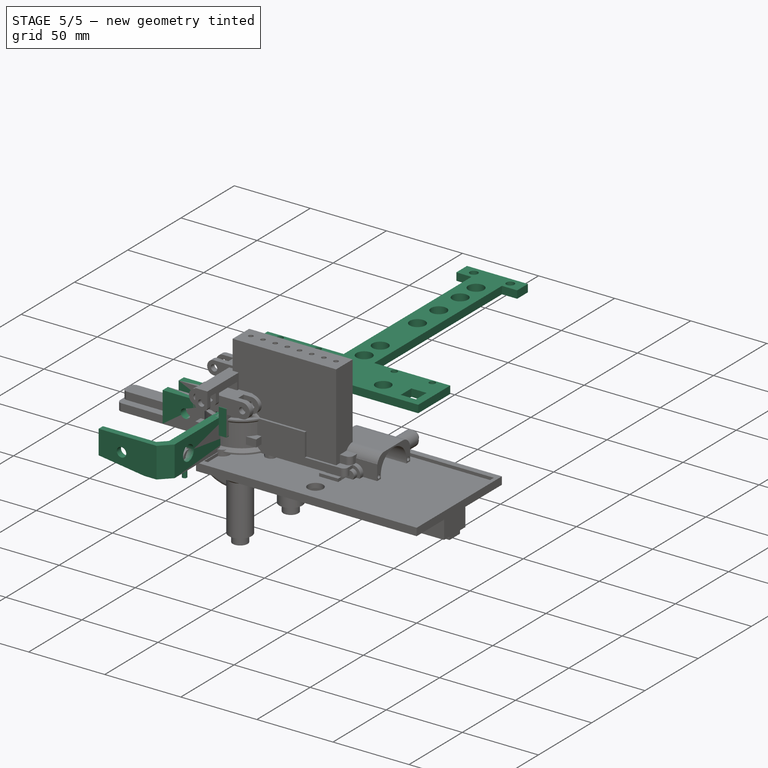
[diagram: stage 5 of 5 — iso view after this stage's code; geometry added in this stage tinted green]
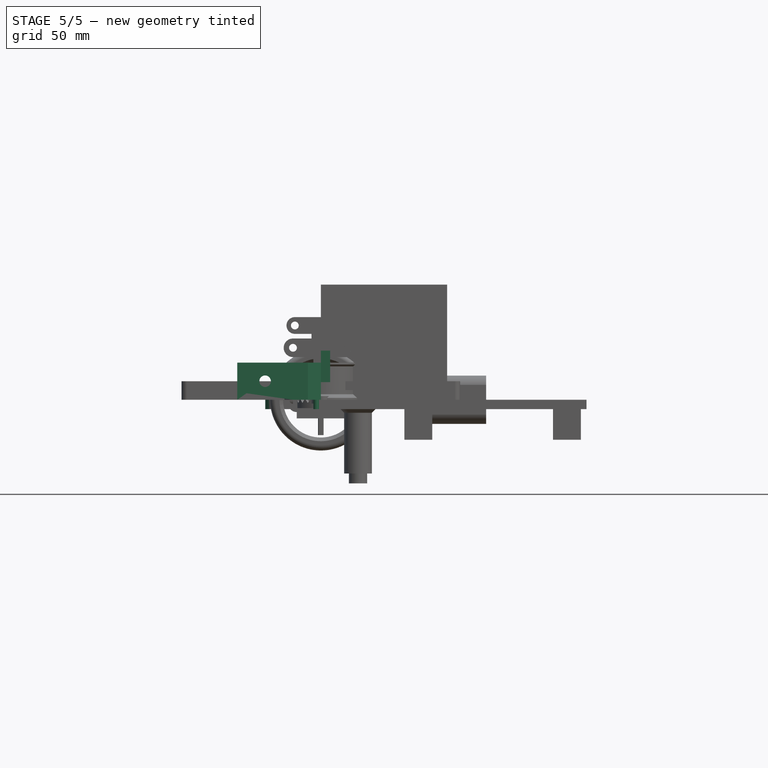
[diagram: stage 5 of 5 — front view after this stage's code; geometry added in this stage tinted green]
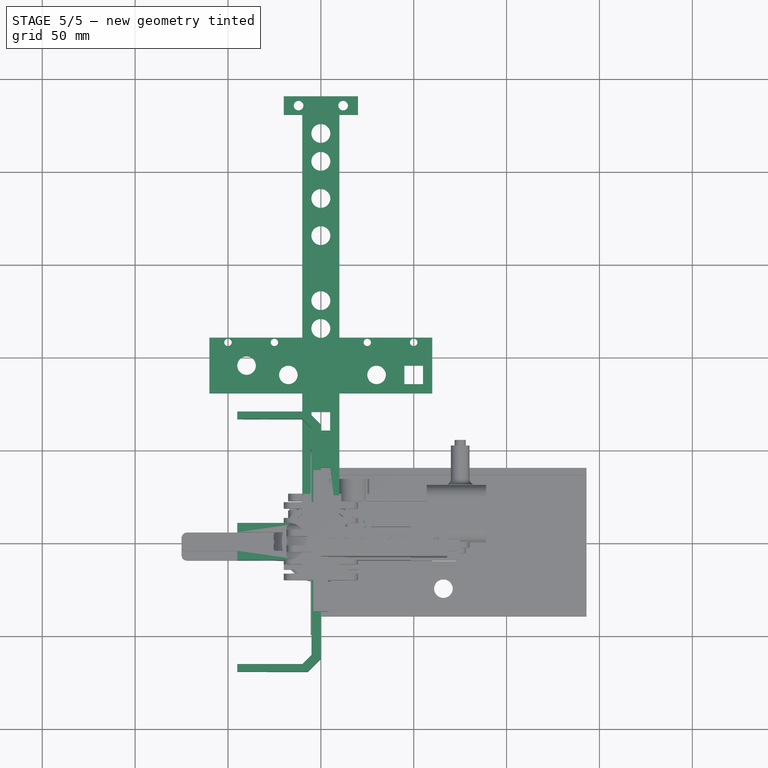
[diagram: stage 5 of 5 — top view after this stage's code; geometry added in this stage tinted green]
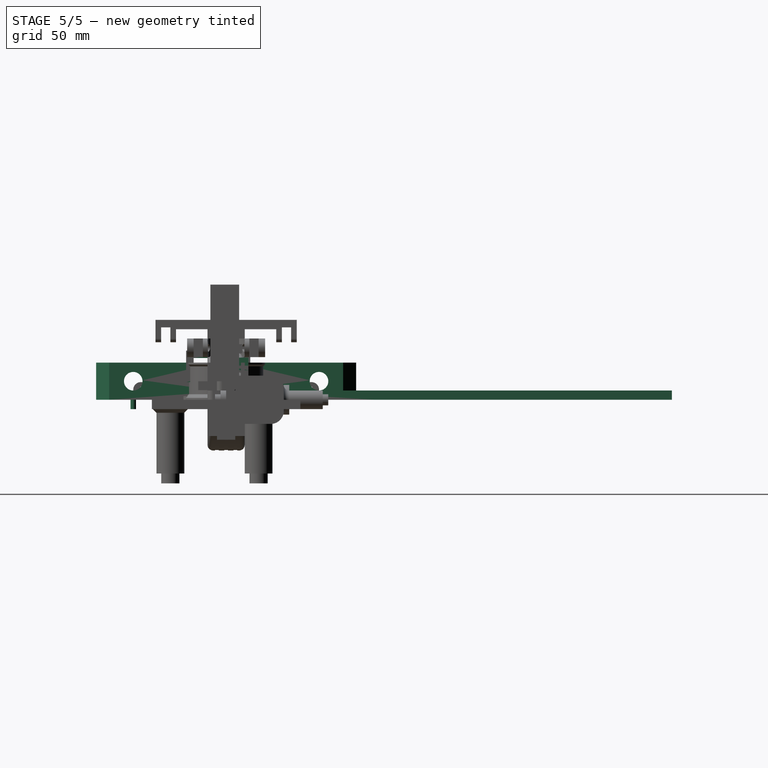
[diagram: stage 5 of 5 — right view after this stage's code; geometry added in this stage tinted green]
FEATURE [Sketcher::SketchObject] Sketch  label="Base"
  FullyConstrained = true
  MapMode = 5
  Support = -> [XY_Plane]
  sketch-geometry (16):
    g0: LineSegment StartX=-10 StartY=0 StartZ=0 EndX=10 EndY=0 EndZ=0
    g1: LineSegment StartX=10 StartY=0 StartZ=0 EndX=10 EndY=80 EndZ=0
    g2: LineSegment StartX=10 StartY=80 StartZ=0 EndX=60 EndY=80 EndZ=0
    g3: LineSegment StartX=60 StartY=80 StartZ=0 EndX=60 EndY=110 EndZ=0
    g4: LineSegment StartX=60 StartY=110 StartZ=0 EndX=10 EndY=110 EndZ=0
    g5: LineSegment StartX=10 StartY=110 StartZ=0 EndX=10 EndY=230 EndZ=0
    g6: LineSegment StartX=10 StartY=230 StartZ=0 EndX=20 EndY=230 EndZ=0
    g7: LineSegment StartX=20 StartY=230 StartZ=0 EndX=20 EndY=240 EndZ=0
    g8: LineSegment StartX=20 StartY=240 StartZ=0 EndX=-20 EndY=240 EndZ=0
    g9: LineSegment StartX=-20 StartY=240 StartZ=0 EndX=-20 EndY=230 EndZ=0
    g10: LineSegment StartX=-20 StartY=230 StartZ=0 EndX=-10 EndY=230 EndZ=0
    g11: LineSegment StartX=-10 StartY=230 StartZ=0 EndX=-10 EndY=110 EndZ=0
    g12: LineSegment StartX=-10 StartY=110 StartZ=0 EndX=-60 EndY=110 EndZ=0
    g13: LineSegment StartX=-60 StartY=110 StartZ=0 EndX=-60 EndY=80 EndZ=0
    g14: LineSegment StartX=-60 StartY=80 StartZ=0 EndX=-10 EndY=80 EndZ=0
    g15: LineSegment StartX=-10 StartY=80 StartZ=0 EndX=-10 EndY=0 EndZ=0
  constraints (48):
    c: Horizontal(g0)
    c: Coincident(g0,g1)
    c: Vertical(g1)
    c: Coincident(g1,g2)
    c: Horizontal(g2)
    c: Coincident(g2,g3)
    c: Vertical(g3)
    c: Coincident(g3,g4)
    c: Horizontal(g4)
    c: Coincident(g4,g5)
    c: Vertical(g5)
    c: Coincident(g5,g6)
    c: Horizontal(g6)
    c: Coincident(g6,g7)
    c: Vertical(g7)
    c: Coincident(g7,g8)
    c: Horizontal(g8)
    c: Coincident(g8,g9)
    c: Vertical(g9)
    c: Coincident(g9,g10)
    c: Horizontal(g10)
    c: Coincident(g10,g11)
    c: Vertical(g11)
    c: Coincident(g11,g12)
    c: Horizontal(g12)
    c: Coincident(g12,g13)
    c: Vertical(g13)
    c: Coincident(g13,g14)
    c: Horizontal(g14)
    c: Coincident(g14,g15)
    c: Coincident(g15,g0)
    c: Vertical(g15)
    c: DistanceY(g11,g4) = 0
    c: DistanceY(g10,g5) = 0
    c: DistanceY(g14,g1) = 0
    c: DistanceY(g-1,g0) = 0
    c: DistanceX(g0,g0) = 20
    c: DistanceX(g0,g-1) = 10
    c: DistanceX(g13,g-1) = 60
    c: DistanceX(g-1,g2) = 60
    c: DistanceY(g13,g13) = 30
    c: DistanceY(g15,g15) = 80
    c: DistanceY(g11,g11) = 120
    c: DistanceX(g11,g-1) = 10
    c: DistanceX(g-1,g4) = 10
    c: DistanceY(g9,g9) = 10
    c: DistanceX(g8,g-1) = 20
    c: DistanceX(g-1,g6) = 20
FEATURE [PartDesign::Pad] Pad
  Direction = (1,1,1)
  Length = 5
  Length2 = 100
  Profile = -> Sketch
  Type = 0
FEATURE [Sketcher::SketchObject] Sketch001  label="Pocket1"
  FullyConstrained = true
  MapMode = 5
  Support = -> [XY_Plane]
  sketch-geometry (31):
    g0: Circle CenterX=-12 CenterY=235 CenterZ=0 NormalX=0 NormalY=0 NormalZ=1 AngleXU=0 Radius=2.6
    g1: Circle CenterX=12 CenterY=235 CenterZ=0 NormalX=0 NormalY=0 NormalZ=1 AngleXU=0 Radius=2.6
    g2: LineSegment StartX=-5 StartY=40 StartZ=0 EndX=5 EndY=40 EndZ=0
    g3: LineSegment StartX=5 StartY=40 StartZ=0 EndX=5 EndY=30 EndZ=0
    g4: LineSegment StartX=5 StartY=30 StartZ=0 EndX=-5 EndY=30 EndZ=0
    g5: LineSegment StartX=-5 StartY=30 StartZ=0 EndX=-5 EndY=40 EndZ=0
    g6: LineSegment StartX=-5 StartY=10 StartZ=0 EndX=5 EndY=10 EndZ=0
    g7: LineSegment StartX=5 StartY=10 StartZ=0 EndX=5 EndY=5 EndZ=0
    g8: LineSegment StartX=5 StartY=5 StartZ=0 EndX=-5 EndY=5 EndZ=0
    g9: LineSegment StartX=-5 StartY=5 StartZ=0 EndX=-5 EndY=10 EndZ=0
    g10: LineSegment StartX=-5 StartY=70 StartZ=0 EndX=5 EndY=70 EndZ=0
    g11: LineSegment StartX=5 StartY=70 StartZ=0 EndX=5 EndY=60 EndZ=0
    g12: LineSegment StartX=5 StartY=60 StartZ=0 EndX=-5 EndY=60 EndZ=0
    g13: LineSegment StartX=-5 StartY=60 StartZ=0 EndX=-5 EndY=70 EndZ=0
    g14: Circle CenterX=0 CenterY=115 CenterZ=0 NormalX=0 NormalY=0 NormalZ=1 AngleXU=0 Radius=5.1
    g15: Circle CenterX=0 CenterY=220 CenterZ=0 NormalX=0 NormalY=0 NormalZ=1 AngleXU=0 Radius=5.1
    g16: Circle CenterX=0 CenterY=205 CenterZ=0 NormalX=0 NormalY=0 NormalZ=1 AngleXU=0 Radius=5.1
    g17: Circle CenterX=50 CenterY=107.5 CenterZ=0 NormalX=0 NormalY=0 NormalZ=1 AngleXU=0 Radius=2
    g18: Circle CenterX=25 CenterY=107.5 CenterZ=0 NormalX=0 NormalY=0 NormalZ=1 AngleXU=0 Radius=2
    g19: Circle CenterX=-25 CenterY=107.5 CenterZ=0 NormalX=0 NormalY=0 NormalZ=1 AngleXU=0 Radius=2
    g20: Circle CenterX=-50 CenterY=107.5 CenterZ=0 NormalX=0 NormalY=0 NormalZ=1 AngleXU=0 Radius=2
    g21: Circle CenterX=0 CenterY=130 CenterZ=0 NormalX=0 NormalY=0 NormalZ=1 AngleXU=0 Radius=5.1
    g22: Circle CenterX=-17.5 CenterY=90 CenterZ=0 NormalX=0 NormalY=0 NormalZ=1 AngleXU=0 Radius=5
    g23: Circle CenterX=30 CenterY=90 CenterZ=0 NormalX=0 NormalY=0 NormalZ=1 AngleXU=0 Radius=5
    g24: Circle CenterX=-40 CenterY=95 CenterZ=0 NormalX=0 NormalY=0 NormalZ=1 AngleXU=0 Radius=5
    g25: LineSegment StartX=55 StartY=95 StartZ=0 EndX=45 EndY=95 EndZ=0
    g26: LineSegment StartX=45 StartY=95 StartZ=0 EndX=45 EndY=85 EndZ=0
    g27: LineSegment StartX=45 StartY=85 StartZ=0 EndX=55 EndY=85 EndZ=0
    g28: LineSegment StartX=55 StartY=85 StartZ=0 EndX=55 EndY=95 EndZ=0
    g29: Circle CenterX=0 CenterY=185 CenterZ=0 NormalX=0 NormalY=0 NormalZ=1 AngleXU=0 Radius=5.1
    g30: Circle CenterX=0 CenterY=165 CenterZ=0 NormalX=0 NormalY=0 NormalZ=1 AngleXU=0 Radius=5.1
  constraints (93):
    c: DistanceY(g0,g1) = 0
    c: Radius(g0) = 2.6
    c: Radius(g1) = 2.6
    c: DistanceX(g0,g1) = 24
    c: DistanceX(g0,g-1) = 12
    c: DistanceY(g-1,g0) = 235
    c: Coincident(g2,g3)
    c: Coincident(g3,g4)
    c: Coincident(g4,g5)
    c: Coincident(g5,g2)
    c: Horizontal(g2)
    c: Horizontal(g4)
    c: Vertical(g3)
    c: Vertical(g5)
    c: DistanceX(g2,g2) = 10  '0'
    c: DistanceY(g3,g3) = 10
    c: DistanceX(g4,g-1) = 5
    c: DistanceY(g-1,g4) = 30
    c: Coincident(g6,g7)
    c: Coincident(g7,g8)
    c: Coincident(g8,g9)
    c: Coincident(g9,g6)
    c: Horizontal(g6)
    c: Horizontal(g8)
    c: Vertical(g7)
    c: Vertical(g9)
    c: DistanceX(g6,g6) = 10
    c: DistanceY(g7,g7) = 5
    c: DistanceX(g8,g-1) = 5
    c: DistanceY(g-1,g8) = 5
    c: Coincident(g10,g11)
    c: Coincident(g11,g12)
    c: Coincident(g12,g13)
    c: Coincident(g13,g10)
    c: Horizontal(g10)
    c: Horizontal(g12)
    c: Vertical(g11)
    c: Vertical(g13)
    c: DistanceX(g10,g10) = 10
    c: DistanceY(g11,g11) = 10
    c: DistanceX(g10,g-1) = 5
    c: DistanceY(g2,g12) = 20
    c: PointOnObject(g14,g-2)
    c: PointOnObject(g15,g-2)
    c: PointOnObject(g16,g-2)
    c: Radius(g16) = 5.1
    c: Radius(g15) = 5.1
    c: Radius(g14) = 5.1
    c: DistanceY(g-1,g14) = 115
    c: DistanceY(g-1,g15) = 220
    c: DistanceY(g-1,g16) = 205
    c: DistanceX(g18,g17) = 25
    c: DistanceY(g18,g17) = 0
    c: DistanceY(g19,g20) = 0
    c: Radius(g17) = 2
    c: Radius(g18) = 2
    c: Radius(g19) = 2
    c: Radius(g20) = 2
    c: DistanceY(g19,g18) = 0
    c: DistanceX(g-1,g18) = 25
    c: DistanceX(g19,g-1) = 25
    c: DistanceX(g20,g19) = 25
    c: DistanceY(g-1,g19) = 107.5
    c: PointOnObject(g21,g-2)
    c: Radius(g21) = 5.1
    c: DistanceY(g14,g21) = 15
    c: DistanceY(g23,g22) = 0
    c: Radius(g22) = 5
    c: Radius(g23) = 5
    c: DistanceX(g22,g23) = 47.5
    c: DistanceX(g22,g-1) = 17.5
    c: DistanceY(g-1,g22) = 90
    c: Radius(g24) = 5
    c: DistanceY(g-1,g24) = 95
    c: DistanceX(g24,g-1) = 40
    c: Coincident(g25,g26)
    c: Coincident(g26,g27)
    c: Coincident(g27,g28)
    c: Coincident(g28,g25)
    c: Horizontal(g25)
    c: Horizontal(g27)
    c: Vertical(g26)
    c: Vertical(g28)
    c: DistanceX(g27,g27) = 10
    c: DistanceY(g28,g28) = 10
    c: DistanceY(g-1,g26) = 85
    c: DistanceX(g-1,g26) = 45
    c: PointOnObject(g29,g-2)
    c: PointOnObject(g30,g-2)
    c: Radius(g29) = 5.1
    c: Radius(g30) = 5.1
    c: DistanceY(g-1,g30) = 165
    c: DistanceY(g30,g29) = 20
FEATURE [PartDesign::Pocket] Pocket
  BaseFeature = -> Pad
  Length = 10
  Length2 = 100
  Midplane = true
  Profile = -> Sketch001
  Type = 0
FEATURE [PartDesign::Body] Body
  Group = -> [Sketch,Sketch001,Pad,Pocket]
  Origin = -> Origin
  Placement = pos=(-138.8,-0.7,-33.9) rot=(0.57735,0.57735,0.57735;4.18879rad)
  Tip = -> Pocket
FEATURE [Sketcher::SketchObject] Sketch034  label="Base001"
  FullyConstrained = true
  MapMode = 5
  Placement = pos=(0,0,0) rot=(0.57735,0.57735,0.57735;2.0944rad)
  Support = -> [YZ_Plane004]
  sketch-geometry (12):
    g0: LineSegment StartX=-10 StartY=27.3 StartZ=0 EndX=-10 EndY=20.3 EndZ=0
    g1: LineSegment StartX=-10 StartY=20.3 StartZ=0 EndX=-4.5 EndY=20.3 EndZ=0
    g2: LineSegment StartX=-4.5 StartY=20.3 StartZ=0 EndX=-4.5 EndY=22.3 EndZ=0
    g3: LineSegment StartX=-4.5 StartY=22.3 StartZ=0 EndX=-8.5 EndY=22.3 EndZ=0
    g4: LineSegment StartX=-8.5 StartY=22.3 StartZ=0 EndX=-8.5 EndY=23.3 EndZ=0
    g5: LineSegment StartX=-8.5 StartY=23.3 StartZ=0 EndX=8.5 EndY=23.3 EndZ=0
    g6: LineSegment StartX=8.5 StartY=23.3 StartZ=0 EndX=8.5 EndY=22.3 EndZ=0
    g7: LineSegment StartX=8.5 StartY=22.3 StartZ=0 EndX=4.5 EndY=22.3 EndZ=0
    g8: LineSegment StartX=4.5 StartY=22.3 StartZ=0 EndX=4.5 EndY=20.3 EndZ=0
    g9: LineSegment StartX=4.5 StartY=20.3 StartZ=0 EndX=10 EndY=20.3 EndZ=0
    g10: LineSegment StartX=10 StartY=20.3 StartZ=0 EndX=10 EndY=27.3 EndZ=0
    g11: LineSegment StartX=10 StartY=27.3 StartZ=0 EndX=-10 EndY=27.3 EndZ=0
  constraints (36):
    c: Vertical(g0)
    c: Coincident(g0,g1)
    c: Coincident(g1,g2)
    c: Vertical(g2)
    c: Coincident(g2,g3)
    c: Coincident(g3,g4)
    c: Vertical(g4)
    c: Coincident(g4,g5)
    c: Horizontal(g5)
    c: Coincident(g5,g6)
    c: Vertical(g6)
    c: Coincident(g6,g7)
    c: Horizontal(g7)
    c: Coincident(g7,g8)
    c: Vertical(g8)
    c: Coincident(g8,g9)
    c: Horizontal(g9)
    c: Coincident(g9,g10)
    c: Vertical(g10)
    c: Coincident(g10,g11)
    c: Coincident(g11,g0)
    c: Horizontal(g11)
    c: Horizontal(g1)
    c: Horizontal(g3)
    c: DistanceX(g0,g-1) = 10
    c: DistanceX(g11,g11) = 20
    c: DistanceY(g1,g8) = 0
    c: DistanceY(g2,g7) = 0
    c: DistanceY(g4,g0) = 4
    c: DistanceY(g2,g2) = 2
    c: DistanceX(g5,g5) = 17
    c: DistanceX(g5,g10) = 1.5
    c: DistanceX(g3,g3) = 4
    c: DistanceX(g7,g7) = 4
    c: DistanceY(g10,g10) = 7
    c: DistanceY(g-1,g1) = 20.3
FEATURE [Sketcher::SketchObject] Sketch028
  FullyConstrained = true
  MapMode = 5
  Support = -> [XY_Plane003]
  sketch-geometry (2):
    g0: Circle CenterX=0 CenterY=0 CenterZ=0 NormalX=0 NormalY=0 NormalZ=1 AngleXU=0 Radius=5
    g1: Circle CenterX=0 CenterY=0 CenterZ=0 NormalX=0 NormalY=0 NormalZ=1 AngleXU=0 Radius=4
  constraints (4):
    c: Coincident(g0,g-1)
    c: Coincident(g1,g0)
    c: Radius(g1) = 4
    c: Radius(g0) = 5
FEATURE [Sketcher::SketchObject] Sketch027  label="InnerPocket001"
  AttachmentOffset = pos=(0,0,1) rot=(0,0,1;0rad)
  FullyConstrained = true
  MapMode = 5
  Placement = pos=(0,0,1) rot=(0,0,1;0rad)
  Support = -> [XY_Plane003]
  sketch-geometry (2):
    g0: Circle CenterX=0 CenterY=0 CenterZ=0 NormalX=0 NormalY=0 NormalZ=1 AngleXU=0 Radius=21
    g1: Circle CenterX=0 CenterY=0 CenterZ=0 NormalX=0 NormalY=0 NormalZ=1 AngleXU=0 Radius=22
  constraints (4):
    c: Coincident(g0,g-1)
    c: Radius(g0) = 21
    c: Coincident(g1,g0)
    c: Radius(g1) = 22
FEATURE [Sketcher::SketchObject] Sketch029  label="Spoke"
  FullyConstrained = true
  MapMode = 5
  Support = -> [XY_Plane003]
  sketch-geometry (15):
    g0: ArcOfCircle CenterX=0 CenterY=0 CenterZ=0 NormalX=0 NormalY=0 NormalZ=1 AngleXU=0 Radius=20 StartAngle=2.68866 EndAngle=2.97544
    g1: LineSegment StartX=-2.76648 StartY=19.8077 StartZ=0 EndX=-2.76648 EndY=3.80774 EndZ=0
    g2: LineSegment StartX=-2.76648 StartY=3.80774 StartZ=0 EndX=-17.9834 EndY=8.75201 EndZ=0
    g3: LineSegment StartX=-19.7246 StartY=3.30784 StartZ=0 EndX=-4.46265 EndY=-1.4957 EndZ=0
    g4: LineSegment StartX=-4.46265 StartY=-1.4957 StartZ=0 EndX=-13.7473 EndY=-14.5263 EndZ=0
    g5: LineSegment StartX=-9.40456 StartY=-17.6509 StartZ=0 EndX=0 EndY=-4.70663 EndZ=0
    g6: LineSegment StartX=0 StartY=-4.70663 StartZ=0 EndX=9.40456 EndY=-17.6509 EndZ=0
    g7: LineSegment StartX=2.76648 StartY=19.8077 StartZ=0 EndX=2.76648 EndY=3.80774 EndZ=0
    g8: LineSegment StartX=2.76648 StartY=3.80774 StartZ=0 EndX=17.9834 EndY=8.75201 EndZ=0
    g9: LineSegment StartX=19.6601 StartY=3.67155 StartZ=0 EndX=4.48951 EndY=-1.41303 EndZ=0
    g10: LineSegment StartX=4.48951 StartY=-1.41303 StartZ=0 EndX=14.0132 EndY=-14.2699 EndZ=0
    g11: ArcOfCircle CenterX=0 CenterY=0 CenterZ=0 NormalX=0 NormalY=0 NormalZ=1 AngleXU=0 Radius=20 StartAngle=1.43203 EndAngle=1.70957
    g12: ArcOfCircle CenterX=0 CenterY=0 CenterZ=0 NormalX=0 NormalY=0 NormalZ=1 AngleXU=0 Radius=20 StartAngle=0.184624 EndAngle=0.452928
    g13: ArcOfCircle CenterX=0 CenterY=0 CenterZ=0 NormalX=0 NormalY=0 NormalZ=1 AngleXU=0 Radius=20 StartAngle=5.20194 EndAngle=5.48871
    g14: ArcOfCircle CenterX=0 CenterY=0 CenterZ=0 NormalX=0 NormalY=0 NormalZ=1 AngleXU=0 Radius=20 StartAngle=3.95454 EndAngle=4.22284
  constraints (45):
    c: Coincident(g0,g-1)
    c: Radius(g0) = 20
    c: Vertical(g1)
    c: Coincident(g1,g2)
    c: Coincident(g3,g4)
    c: PointOnObject(g5,g-2)
    c: Coincident(g5,g6)
    c: Vertical(g7)
    c: Coincident(g7,g8)
    c: Coincident(g9,g10)
    c: Angle(g1,g2) = 1.25664
    c: Angle(g8,g7) = 1.25664
    c: Angle(g10,g9) = 1.25664
    c: Angle(g5,g6) = 1.25664
    c: Angle(g3,g4) = 1.25664
    c: Equal(g7,g8)
    c: Equal(g8,g9)
    c: Equal(g9,g10)
    c: Equal(g10,g6)
    c: Equal(g6,g5)
    c: Equal(g5,g4)
    c: Equal(g4,g3)
    c: Equal(g3,g2)
    c: Equal(g2,g1)
    c: Coincident(g0,g2)
    c: Coincident(g11,g1)
    c: Equal(g0,g11)
    c: Coincident(g12,g8)
    c: Coincident(g11,g7)
    c: Coincident(g0,g11)
    c: Equal(g0,g12)
    c: Coincident(g13,g10)
    c: Coincident(g12,g9)
    c: Coincident(g0,g12)
    c: Equal(g0,g13)
    c: Coincident(g14,g5)
    c: Coincident(g13,g6)
    c: Coincident(g0,g13)
    c: Equal(g0,g14)
    c: Coincident(g0,g3)
    c: Coincident(g14,g4)
    c: Coincident(g0,g14)
    c: Distance(g1) = 16
    c: Distance(g8,g9) = 5.35
    c: Distance(g4,g5) = 5.35
FEATURE [Sketcher::SketchObject] Sketch030  label="CenterHole"
  FullyConstrained = true
  MapMode = 5
  Support = -> [XY_Plane003]
  sketch-geometry (4):
    g0: LineSegment StartX=-1.75 StartY=1.75 StartZ=0 EndX=1.75 EndY=1.75 EndZ=0
    g1: LineSegment StartX=1.75 StartY=1.75 StartZ=0 EndX=1.75 EndY=-1.75 EndZ=0
    g2: LineSegment StartX=1.75 StartY=-1.75 StartZ=0 EndX=-1.75 EndY=-1.75 EndZ=0
    g3: LineSegment StartX=-1.75 StartY=-1.75 StartZ=0 EndX=-1.75 EndY=1.75 EndZ=0
  constraints (12):
    c: Coincident(g0,g1)
    c: Coincident(g1,g2)
    c: Coincident(g2,g3)
    c: Coincident(g3,g0)
    c: Horizontal(g0)
    c: Horizontal(g2)
    c: Vertical(g1)
    c: Vertical(g3)
    c: DistanceX(g0,g0) = 3.5
    c: DistanceX(g-1,g0) = 1.75
    c: DistanceY(g1,g1) = 3.5
    c: DistanceY(g-1,g0) = 1.75
FEATURE [Sketcher::SketchObject] Sketch031  label="OuterCircle"
  FullyConstrained = true
  MapMode = 5
  Support = -> [XY_Plane003]
  sketch-geometry (2):
    g0: Circle CenterX=0 CenterY=0 CenterZ=0 NormalX=0 NormalY=0 NormalZ=1 AngleXU=0 Radius=18
    g1: Circle CenterX=0 CenterY=0 CenterZ=0 NormalX=0 NormalY=0 NormalZ=1 AngleXU=0 Radius=22
  constraints (4):
    c: Coincident(g0,g-1)
    c: Coincident(g1,g0)
    c: Radius(g0) = 18
    c: Radius(g1) = 22
FEATURE [PartDesign::Pad] Pad012
  Direction = (1,1,1)
  Length = 20
  Length2 = 100
  Profile = -> Sketch031
  Type = 0
FEATURE [PartDesign::Pad] Pad013
  BaseFeature = -> Pad012
  Direction = (1,1,1)
  Length = 5
  Length2 = 100
  Profile = -> Sketch029
  Type = 0
FEATURE [Sketcher::SketchObject] Sketch024  label="Wheel_Garnish"
  FullyConstrained = true
  MapMode = 5
  Support = -> [XY_Plane003]
  sketch-geometry (15):
    g0: ArcOfCircle CenterX=0 CenterY=0 CenterZ=0 NormalX=0 NormalY=0 NormalZ=1 AngleXU=0 Radius=18 StartAngle=2.58371 EndAngle=3.06563
    g1: LineSegment StartX=-4.29543 StartY=17.48 StartZ=0 EndX=0 EndY=15 EndZ=0
    g2: LineSegment StartX=0 StartY=15 StartZ=0 EndX=4.29543 EndY=17.48 EndZ=0
    g3: LineSegment StartX=15.401 StartY=9.31711 StartZ=0 EndX=14.3162 EndY=4.47726 EndZ=0
    g4: LineSegment StartX=14.3162 StartY=4.47726 StartZ=0 EndX=17.9653 EndY=1.11787 EndZ=0
    g5: LineSegment StartX=13.6527 StartY=-11.7304 StartZ=0 EndX=8.71585 EndY=-12.2079 EndZ=0
    g6: LineSegment StartX=8.71585 StartY=-12.2079 StartZ=0 EndX=6.66097 EndY=-16.7222 EndZ=0
    g7: LineSegment StartX=-6.89142 StartY=-16.6285 StartZ=0 EndX=-8.88373 EndY=-12.0863 EndZ=0
    g8: LineSegment StartX=-8.88373 StartY=-12.0863 StartZ=0 EndX=-13.8135 EndY=-11.5406 EndZ=0
    g9: LineSegment StartX=-17.9481 StartY=1.36602 StartZ=0 EndX=-14.253 EndY=4.67467 EndZ=0
    g10: LineSegment StartX=-14.253 StartY=4.67467 StartZ=0 EndX=-15.2708 EndY=9.52905 EndZ=0
    g11: ArcOfCircle CenterX=0 CenterY=0 CenterZ=0 NormalX=0 NormalY=0 NormalZ=1 AngleXU=0 Radius=18 StartAngle=1.32984 EndAngle=1.81176
    g12: ArcOfCircle CenterX=0 CenterY=0 CenterZ=0 NormalX=0 NormalY=0 NormalZ=1 AngleXU=0 Radius=18 StartAngle=0.0621436 EndAngle=0.544064
    g13: ArcOfCircle CenterX=0 CenterY=0 CenterZ=0 NormalX=0 NormalY=0 NormalZ=1 AngleXU=0 Radius=18 StartAngle=5.09146 EndAngle=5.57338
    g14: ArcOfCircle CenterX=0 CenterY=0 CenterZ=0 NormalX=0 NormalY=0 NormalZ=1 AngleXU=0 Radius=18 StartAngle=3.83758 EndAngle=4.3195
  constraints (45):
    c: Coincident(g0,g-1)
    c: Radius(g0) = 18
    c: Coincident(g1,g2)
    c: Coincident(g3,g4)
    c: Coincident(g5,g6)
    c: Coincident(g7,g8)
    c: Coincident(g9,g10)
    c: Angle(g4,g3) = 2.0944
    c: Angle(g6,g5) = 2.0944
    c: Angle(g8,g7) = 2.0944
    c: Angle(g10,g9) = 2.0944
    c: Angle(g2,g1) = 2.0944
    c: Equal(g3,g4)
    c: Equal(g2,g1)
    c: Equal(g10,g9)
    c: Equal(g8,g7)
    c: Equal(g6,g5)
    c: Distance(g0,g3) = 15
    c: Distance(g1,g0) = 15
    c: Distance(g9,g0) = 15
    c: Distance(g7,g0) = 15
    c: Distance(g5,g0) = 15
    c: Distance(g9,g1) = 17.6
    c: Distance(g9,g7) = 17.6
    c: Distance(g7,g5) = 17.6
    c: Distance(g3,g5) = 17.6
    c: DistanceX(g1,g0) = 0
    c: Coincident(g0,g10)
    c: Coincident(g11,g1)
    c: Equal(g0,g11)
    c: Coincident(g12,g3)
    c: Coincident(g11,g2)
    c: Coincident(g0,g11)
    c: Equal(g0,g12)
    c: Coincident(g13,g5)
    c: Coincident(g12,g4)
    c: Coincident(g0,g12)
    c: Equal(g0,g13)
    c: Coincident(g14,g7)
    c: Coincident(g13,g6)
    c: Coincident(g0,g13)
    c: Equal(g0,g14)
    c: Coincident(g0,g9)
    c: Coincident(g14,g8)
    c: Coincident(g0,g14)
FEATURE [Sketcher::SketchObject] Sketch026  label="Rim"
  AttachmentOffset = pos=(0,0,1) rot=(0,0,1;0rad)
  FullyConstrained = true
  MapMode = 5
  Placement = pos=(0,0,1) rot=(0,0,1;0rad)
  Support = -> [XY_Plane003]
  sketch-geometry (2):
    g0: Circle CenterX=0 CenterY=0 CenterZ=0 NormalX=0 NormalY=0 NormalZ=1 AngleXU=0 Radius=23
    g1: Circle CenterX=0 CenterY=0 CenterZ=0 NormalX=0 NormalY=0 NormalZ=1 AngleXU=0 Radius=20
  constraints (4):
    c: Coincident(g0,g-1)
    c: Coincident(g1,g0)
    c: Radius(g0) = 23
    c: Radius(g1) = 20
FEATURE [Sketcher::SketchObject] Sketch025  label="InnerPocket"
  AttachmentOffset = pos=(0,0,5) rot=(0,0,1;0rad)
  FullyConstrained = true
  MapMode = 5
  Placement = pos=(0,0,5) rot=(0,0,1;0rad)
  Support = -> [XY_Plane003]
  sketch-geometry (2):
    g0: Circle CenterX=0 CenterY=0 CenterZ=0 NormalX=0 NormalY=0 NormalZ=1 AngleXU=0 Radius=5
    g1: Circle CenterX=0 CenterY=0 CenterZ=0 NormalX=0 NormalY=0 NormalZ=1 AngleXU=0 Radius=10
  constraints (4):
    c: Coincident(g0,g-1)
    c: Radius(g0) = 5
    c: Coincident(g1,g0)
    c: Radius(g1) = 10
FEATURE [Sketcher::SketchObject] Sketch070  label="Circle"
  FullyConstrained = true
  MapMode = 5
  Support = -> [XY_Plane012]
  sketch-geometry (1):
    g0: Circle CenterX=0 CenterY=0 CenterZ=0 NormalX=0 NormalY=0 NormalZ=1 AngleXU=0 Radius=3.35
  constraints (2):
    c: Coincident(g0,g-1)
    c: Radius(g0) = 3.35
FEATURE [Sketcher::SketchObject] Sketch069  label="Hexagon001"
  FullyConstrained = true
  MapMode = 5
  Support = -> [XY_Plane012]
  sketch-geometry (7):
    g0: LineSegment StartX=5.05 StartY=0 StartZ=0 EndX=2.525 EndY=4.37343 EndZ=0
    g1: LineSegment StartX=2.525 StartY=4.37343 StartZ=0 EndX=-2.525 EndY=4.37343 EndZ=0
    g2: LineSegment StartX=-2.525 StartY=4.37343 StartZ=0 EndX=-5.05 EndY=0 EndZ=0
    g3: LineSegment StartX=-5.05 StartY=-1e-16 StartZ=0 EndX=-2.525 EndY=-4.37343 EndZ=0
    g4: LineSegment StartX=-2.525 StartY=-4.37343 StartZ=0 EndX=2.525 EndY=-4.37343 EndZ=0
    g5: LineSegment StartX=2.525 StartY=-4.37343 StartZ=0 EndX=5.05 EndY=0 EndZ=0
    g6: Circle CenterX=0 CenterY=0 CenterZ=0 NormalX=0 NormalY=0 NormalZ=1 AngleXU=0 Radius=5.05
  constraints (16):
    c: Coincident(g0,g1)
    c: Coincident(g1,g2)
    c: Coincident(g2,g3)
    c: Coincident(g3,g4)
    c: Coincident(g4,g5)
    c: Coincident(g5,g0)
    c: Equal(g0, g1-g5) x5
    c: PointOnObject(g0,g6)
    c: PointOnObject(g1,g6)
    c: PointOnObject(g2,g6)
    c: PointOnObject(g3,g6)
    c: PointOnObject(g4,g6)
    c: PointOnObject(g5,g6)
    c: Coincident(g6,g-1)
    c: PointOnObject(g5,g-1)
    c: Radius(g6) = 5.05
FEATURE [Sketcher::SketchObject] Sketch071  label="Square"
  FullyConstrained = true
  MapMode = 5
  Support = -> [XY_Plane012]
  sketch-geometry (4):
    g0: LineSegment StartX=-1.725 StartY=1.725 StartZ=0 EndX=1.725 EndY=1.725 EndZ=0
    g1: LineSegment StartX=1.725 StartY=1.725 StartZ=0 EndX=1.725 EndY=-1.725 EndZ=0
    g2: LineSegment StartX=1.725 StartY=-1.725 StartZ=0 EndX=-1.725 EndY=-1.725 EndZ=0
    g3: LineSegment StartX=-1.725 StartY=-1.725 StartZ=0 EndX=-1.725 EndY=1.725 EndZ=0
  constraints (12):
    c: Coincident(g0,g1)
    c: Coincident(g1,g2)
    c: Coincident(g2,g3)
    c: Coincident(g3,g0)
    c: Horizontal(g0)
    c: Horizontal(g2)
    c: Vertical(g1)
    c: Vertical(g3)
    c: DistanceX(g0,g0) = 3.45
    c: DistanceY(g1,g1) = 3.45
    c: DistanceX(g0,g-1) = 1.725
    c: DistanceY(g-1,g0) = 1.725
FEATURE [Sketcher::SketchObject] Sketch032  label="InnerCircle001"
  FullyConstrained = true
  MapMode = 5
  Support = -> [XY_Plane003]
  sketch-geometry (1):
    g0: Circle CenterX=0 CenterY=0 CenterZ=0 NormalX=0 NormalY=0 NormalZ=1 AngleXU=0 Radius=7
  constraints (2):
    c: Coincident(g0,g-1)
    c: Radius(g0) = 7
FEATURE [PartDesign::Pad] Pad014
  BaseFeature = -> Pad013
  Direction = (1,1,1)
  Length = 20
  Length2 = 100
  Profile = -> Sketch032
  Type = 0
FEATURE [PartDesign::Pocket] Pocket015
  BaseFeature = -> Pad014
  Length = 18
  Length2 = 100
  Profile = -> Sketch026
  Reversed = true
  Type = 0
FEATURE [PartDesign::Pocket] Pocket013
  BaseFeature = -> Pocket015
  Length = 500
  Length2 = 100
  Midplane = true
  Profile = -> Sketch030
  Type = 0
FEATURE [PartDesign::Pocket] Pocket014
  BaseFeature = -> Pocket013
  Length = 20
  Length2 = 100
  Profile = -> Sketch025
  Reversed = true
  Type = 0
FEATURE [PartDesign::Pocket] Pocket012
  BaseFeature = -> Pocket014
  Length = 200
  Length2 = 100
  Profile = -> Sketch027
  Reversed = true
  Type = 0
FEATURE [PartDesign::Pad] Pad011
  BaseFeature = -> Pocket012
  Direction = (1,1,1)
  Length = 5
  Length2 = 100
  Profile = -> Sketch024
  Type = 0
FEATURE [PartDesign::Pocket] Pocket016
  BaseFeature = -> Pad011
  Length = 2
  Length2 = 100
  Profile = -> Sketch028
  Reversed = true
  Type = 0
FEATURE [PartDesign::Chamfer] Chamfer003
  Angle = 45
  Base = -> Pocket016 [Edge46,Edge41,Edge61,Edge56,Edge51]
  BaseFeature = -> Pocket016
  ChamferType = 0
  FlipDirection = false
  Size = 0.9
  Size2 = 1
  SupportTransform = false
FEATURE [PartDesign::Chamfer] Chamfer001
  Angle = 45
  Base = -> Chamfer003 [Edge260]
  BaseFeature = -> Chamfer003
  ChamferType = 0
  FlipDirection = false
  Size = 1.99
  Size2 = 1
  SupportTransform = false
FEATURE [PartDesign::Chamfer] Chamfer002
  Angle = 45
  Base = -> Chamfer001 [Edge8]
  BaseFeature = -> Chamfer001
  ChamferType = 0
  FlipDirection = false
  Size = 0.99
  Size2 = 1
  SupportTransform = false
FEATURE [PartDesign::Chamfer] Chamfer004
  Angle = 45
  Base = -> Chamfer002 [Edge276]
  BaseFeature = -> Chamfer002
  ChamferType = 0
  FlipDirection = false
  Size = 1.99
  Size2 = 1
  SupportTransform = false
FEATURE [Part::FeaturePython] involutegear002  # WARN: FeaturePython — macro-defined, semantics opaque (R4)
  AttacherType = Attacher::AttachEngine3D
  backlash = 0
  beta = 0
  clearance = 0.25
  da = 27.2
  df = 23.6
  double_helix = false
  dw = 25.6
  head = 0
  height = 5
  module = 0.8
  numpoints = 6
  pressure_angle = 20
  properties_from_tool = false
  reversed_backlash = false
  shift = 0
  simple = false
  teeth = 32
  transverse_pitch = 2.51327
  undercut = false
  version = 0.0.3
FEATURE [Part::FeaturePython] involutegear001  # WARN: FeaturePython — macro-defined, semantics opaque (R4)
  AttacherType = Attacher::AttachEngine3D
  backlash = 0
  beta = 0
  clearance = 0.25
  da = 7.2
  df = 3.6
  double_helix = false
  dw = 5.6
  head = 0
  height = 8
  module = 0.8
  numpoints = 6
  pressure_angle = 20
  properties_from_tool = false
  reversed_backlash = false
  shift = 0
  simple = false
  teeth = 7
  transverse_pitch = 2.51327
  undercut = false
  version = 0.0.3
FEATURE [PartDesign::Pad] Pad044  label="Pad046"
  Direction = (1,1,1)
  Length = 1
  Length2 = 100
  Placement = pos=(0,0,0) rot=(1,0,0;1.5708rad)
  Profile = -> Sketch055
  Refine = true
  Type = 0
FEATURE [PartDesign::Pad] Pad045  label="Pad047"
  BaseFeature = -> Pad044
  Direction = (1,1,1)
  Length = 2
  Length2 = 100
  Placement = pos=(0,0,0) rot=(1,0,0;1.5708rad)
  Profile = -> Sketch056
  Refine = true
  Reversed = true
  Type = 0
FEATURE [PartDesign::Pocket] Pocket037  label="Pocket040"
  BaseFeature = -> Pad045
  Length = 100
  Length2 = 100
  Midplane = true
  Placement = pos=(0,0,0) rot=(1,0,0;1.5708rad)
  Profile = -> Sketch075
  Refine = true
  Type = 0
FEATURE [Sketcher::SketchObject] Sketch084  label="Wheel_Garnish001"
  FullyConstrained = true
  MapMode = 5
  Support = -> [XY_Plane013]
  sketch-geometry (15):
    g0: ArcOfCircle CenterX=0 CenterY=0 CenterZ=0 NormalX=0 NormalY=0 NormalZ=1 AngleXU=0 Radius=18 StartAngle=2.58371 EndAngle=3.06563
    g1: LineSegment StartX=-4.29543 StartY=17.48 StartZ=0 EndX=0 EndY=15 EndZ=0
    g2: LineSegment StartX=0 StartY=15 StartZ=0 EndX=4.29543 EndY=17.48 EndZ=0
    g3: LineSegment StartX=15.401 StartY=9.31711 StartZ=0 EndX=14.3162 EndY=4.47726 EndZ=0
    g4: LineSegment StartX=14.3162 StartY=4.47726 StartZ=0 EndX=17.9653 EndY=1.11787 EndZ=0
    g5: LineSegment StartX=13.6527 StartY=-11.7304 StartZ=0 EndX=8.71585 EndY=-12.2079 EndZ=0
    g6: LineSegment StartX=8.71585 StartY=-12.2079 StartZ=0 EndX=6.66097 EndY=-16.7222 EndZ=0
    g7: LineSegment StartX=-6.89142 StartY=-16.6285 StartZ=0 EndX=-8.88373 EndY=-12.0863 EndZ=0
    g8: LineSegment StartX=-8.88373 StartY=-12.0863 StartZ=0 EndX=-13.8135 EndY=-11.5406 EndZ=0
    g9: LineSegment StartX=-17.9481 StartY=1.36602 StartZ=0 EndX=-14.253 EndY=4.67467 EndZ=0
    g10: LineSegment StartX=-14.253 StartY=4.67467 StartZ=0 EndX=-15.2708 EndY=9.52905 EndZ=0
    g11: ArcOfCircle CenterX=0 CenterY=0 CenterZ=0 NormalX=0 NormalY=0 NormalZ=1 AngleXU=0 Radius=18 StartAngle=1.32984 EndAngle=1.81176
    g12: ArcOfCircle CenterX=0 CenterY=0 CenterZ=0 NormalX=0 NormalY=0 NormalZ=1 AngleXU=0 Radius=18 StartAngle=0.0621436 EndAngle=0.544064
    g13: ArcOfCircle CenterX=0 CenterY=0 CenterZ=0 NormalX=0 NormalY=0 NormalZ=1 AngleXU=0 Radius=18 StartAngle=5.09146 EndAngle=5.57338
    g14: ArcOfCircle CenterX=0 CenterY=0 CenterZ=0 NormalX=0 NormalY=0 NormalZ=1 AngleXU=0 Radius=18 StartAngle=3.83758 EndAngle=4.3195
  constraints (45):
    c: Coincident(g0,g-1)
    c: Radius(g0) = 18
    c: Coincident(g1,g2)
    c: Coincident(g3,g4)
    c: Coincident(g5,g6)
    c: Coincident(g7,g8)
    c: Coincident(g9,g10)
    c: Angle(g4,g3) = 2.0944
    c: Angle(g6,g5) = 2.0944
    c: Angle(g8,g7) = 2.0944
    c: Angle(g10,g9) = 2.0944
    c: Angle(g2,g1) = 2.0944
    c: Equal(g3,g4)
    c: Equal(g2,g1)
    c: Equal(g10,g9)
    c: Equal(g8,g7)
    c: Equal(g6,g5)
    c: Distance(g0,g3) = 15
    c: Distance(g1,g0) = 15
    c: Distance(g9,g0) = 15
    c: Distance(g7,g0) = 15
    c: Distance(g5,g0) = 15
    c: Distance(g9,g1) = 17.6
    c: Distance(g9,g7) = 17.6
    c: Distance(g7,g5) = 17.6
    c: Distance(g3,g5) = 17.6
    c: DistanceX(g1,g0) = 0
    c: Coincident(g0,g10)
    c: Coincident(g11,g1)
    c: Equal(g0,g11)
    c: Coincident(g12,g3)
    c: Coincident(g11,g2)
    c: Coincident(g0,g11)
    c: Equal(g0,g12)
    c: Coincident(g13,g5)
    c: Coincident(g12,g4)
    c: Coincident(g0,g12)
    c: Equal(g0,g13)
    c: Coincident(g14,g7)
    c: Coincident(g13,g6)
    c: Coincident(g0,g13)
    c: Equal(g0,g14)
    c: Coincident(g0,g9)
    c: Coincident(g14,g8)
    c: Coincident(g0,g14)
FEATURE [Sketcher::SketchObject] Sketch085  label="InnerPocket002"
  AttachmentOffset = pos=(0,0,5) rot=(0,0,1;0rad)
  FullyConstrained = true
  MapMode = 5
  Placement = pos=(0,0,5) rot=(0,0,1;0rad)
  Support = -> [XY_Plane013]
  sketch-geometry (2):
    g0: Circle CenterX=0 CenterY=0 CenterZ=0 NormalX=0 NormalY=0 NormalZ=1 AngleXU=0 Radius=5
    g1: Circle CenterX=0 CenterY=0 CenterZ=0 NormalX=0 NormalY=0 NormalZ=1 AngleXU=0 Radius=10
  constraints (4):
    c: Coincident(g0,g-1)
    c: Radius(g0) = 5
    c: Coincident(g1,g0)
    c: Radius(g1) = 10
FEATURE [Sketcher::SketchObject] Sketch086  label="Rim001"
  AttachmentOffset = pos=(0,0,1) rot=(0,0,1;0rad)
  FullyConstrained = true
  MapMode = 5
  Placement = pos=(0,0,1) rot=(0,0,1;0rad)
  Support = -> [XY_Plane013]
  sketch-geometry (2):
    g0: Circle CenterX=0 CenterY=0 CenterZ=0 NormalX=0 NormalY=0 NormalZ=1 AngleXU=0 Radius=23
    g1: Circle CenterX=0 CenterY=0 CenterZ=0 NormalX=0 NormalY=0 NormalZ=1 AngleXU=0 Radius=20
  constraints (4):
    c: Coincident(g0,g-1)
    c: Coincident(g1,g0)
    c: Radius(g0) = 23
    c: Radius(g1) = 20
FEATURE [Sketcher::SketchObject] Sketch087  label="Spoke001"
  FullyConstrained = true
  MapMode = 5
  Support = -> [XY_Plane013]
  sketch-geometry (15):
    g0: ArcOfCircle CenterX=0 CenterY=0 CenterZ=0 NormalX=0 NormalY=0 NormalZ=1 AngleXU=0 Radius=20 StartAngle=2.68866 EndAngle=2.97544
    g1: LineSegment StartX=-2.76648 StartY=19.8077 StartZ=0 EndX=-2.76648 EndY=3.80774 EndZ=0
    g2: LineSegment StartX=-2.76648 StartY=3.80774 StartZ=0 EndX=-17.9834 EndY=8.75201 EndZ=0
    g3: LineSegment StartX=-19.7246 StartY=3.30784 StartZ=0 EndX=-4.46265 EndY=-1.4957 EndZ=0
    g4: LineSegment StartX=-4.46265 StartY=-1.4957 StartZ=0 EndX=-13.7473 EndY=-14.5263 EndZ=0
    g5: LineSegment StartX=-9.40456 StartY=-17.6509 StartZ=0 EndX=0 EndY=-4.70663 EndZ=0
    g6: LineSegment StartX=0 StartY=-4.70663 StartZ=0 EndX=9.40456 EndY=-17.6509 EndZ=0
    g7: LineSegment StartX=2.76648 StartY=19.8077 StartZ=0 EndX=2.76648 EndY=3.80774 EndZ=0
    g8: LineSegment StartX=2.76648 StartY=3.80774 StartZ=0 EndX=17.9834 EndY=8.75201 EndZ=0
    g9: LineSegment StartX=19.6601 StartY=3.67155 StartZ=0 EndX=4.48951 EndY=-1.41303 EndZ=0
    g10: LineSegment StartX=4.48951 StartY=-1.41303 StartZ=0 EndX=14.0132 EndY=-14.2699 EndZ=0
    g11: ArcOfCircle CenterX=0 CenterY=0 CenterZ=0 NormalX=0 NormalY=0 NormalZ=1 AngleXU=0 Radius=20 StartAngle=1.43203 EndAngle=1.70957
    g12: ArcOfCircle CenterX=0 CenterY=0 CenterZ=0 NormalX=0 NormalY=0 NormalZ=1 AngleXU=0 Radius=20 StartAngle=0.184624 EndAngle=0.452928
    g13: ArcOfCircle CenterX=0 CenterY=0 CenterZ=0 NormalX=0 NormalY=0 NormalZ=1 AngleXU=0 Radius=20 StartAngle=5.20194 EndAngle=5.48871
    g14: ArcOfCircle CenterX=0 CenterY=0 CenterZ=0 NormalX=0 NormalY=0 NormalZ=1 AngleXU=0 Radius=20 StartAngle=3.95454 EndAngle=4.22284
  constraints (45):
    c: Coincident(g0,g-1)
    c: Radius(g0) = 20
    c: Vertical(g1)
    c: Coincident(g1,g2)
    c: Coincident(g3,g4)
    c: PointOnObject(g5,g-2)
    c: Coincident(g5,g6)
    c: Vertical(g7)
    c: Coincident(g7,g8)
    c: Coincident(g9,g10)
    c: Angle(g1,g2) = 1.25664
    c: Angle(g8,g7) = 1.25664
    c: Angle(g10,g9) = 1.25664
    c: Angle(g5,g6) = 1.25664
    c: Angle(g3,g4) = 1.25664
    c: Equal(g7,g8)
    c: Equal(g8,g9)
    c: Equal(g9,g10)
    c: Equal(g10,g6)
    c: Equal(g6,g5)
    c: Equal(g5,g4)
    c: Equal(g4,g3)
    c: Equal(g3,g2)
    c: Equal(g2,g1)
    c: Coincident(g0,g2)
    c: Coincident(g11,g1)
    c: Equal(g0,g11)
    c: Coincident(g12,g8)
    c: Coincident(g11,g7)
    c: Coincident(g0,g11)
    c: Equal(g0,g12)
    c: Coincident(g13,g10)
    c: Coincident(g12,g9)
    c: Coincident(g0,g12)
    c: Equal(g0,g13)
    c: Coincident(g14,g5)
    c: Coincident(g13,g6)
    c: Coincident(g0,g13)
    c: Equal(g0,g14)
    c: Coincident(g0,g3)
    c: Coincident(g14,g4)
    c: Coincident(g0,g14)
    c: Distance(g1) = 16
    c: Distance(g8,g9) = 5.35
    c: Distance(g4,g5) = 5.35
FEATURE [Sketcher::SketchObject] Sketch088  label="InnerPocket003"
  AttachmentOffset = pos=(0,0,1) rot=(0,0,1;0rad)
  FullyConstrained = true
  MapMode = 5
  Placement = pos=(0,0,1) rot=(0,0,1;0rad)
  Support = -> [XY_Plane013]
  sketch-geometry (2):
    g0: Circle CenterX=0 CenterY=0 CenterZ=0 NormalX=0 NormalY=0 NormalZ=1 AngleXU=0 Radius=21
    g1: Circle CenterX=0 CenterY=0 CenterZ=0 NormalX=0 NormalY=0 NormalZ=1 AngleXU=0 Radius=22
  constraints (4):
    c: Coincident(g0,g-1)
    c: Radius(g0) = 21
    c: Coincident(g1,g0)
    c: Radius(g1) = 22
FEATURE [Sketcher::SketchObject] Sketch089
  FullyConstrained = true
  MapMode = 5
  Support = -> [XY_Plane013]
  sketch-geometry (2):
    g0: Circle CenterX=0 CenterY=0 CenterZ=0 NormalX=0 NormalY=0 NormalZ=1 AngleXU=0 Radius=5
    g1: Circle CenterX=0 CenterY=0 CenterZ=0 NormalX=0 NormalY=0 NormalZ=1 AngleXU=0 Radius=4
  constraints (4):
    c: Coincident(g0,g-1)
    c: Coincident(g1,g0)
    c: Radius(g1) = 4
    c: Radius(g0) = 5
FEATURE [Sketcher::SketchObject] Sketch090  label="Rod001"
  FullyConstrained = true
  MapMode = 5
  Support = -> [XY_Plane018]
  sketch-geometry (4):
    g0: LineSegment StartX=-2.3 StartY=3.5 StartZ=0 EndX=2.3 EndY=3.5 EndZ=0
    g1: LineSegment StartX=2.3 StartY=3.5 StartZ=0 EndX=2.3 EndY=-3.5 EndZ=0
    g2: LineSegment StartX=2.3 StartY=-3.5 StartZ=0 EndX=-2.3 EndY=-3.5 EndZ=0
    g3: LineSegment StartX=-2.3 StartY=-3.5 StartZ=0 EndX=-2.3 EndY=3.5 EndZ=0
  constraints (12):
    c: Coincident(g0,g1)
    c: Coincident(g1,g2)
    c: Coincident(g2,g3)
    c: Coincident(g3,g0)
    c: Horizontal(g0)
    c: Horizontal(g2)
    c: Vertical(g1)
    c: Vertical(g3)
    c: DistanceX(g0,g0) = 4.6
    c: DistanceX(g0,g-1) = 2.3
    c: DistanceY(g1,g1) = 7
    c: DistanceY(g-1,g0) = 3.5
FEATURE [Sketcher::SketchObject] Sketch091  label="CenterHole001"
  FullyConstrained = true
  MapMode = 5
  Support = -> [XY_Plane013]
  sketch-geometry (4):
    g0: LineSegment StartX=-1.6 StartY=1.6 StartZ=0 EndX=1.6 EndY=1.6 EndZ=0
    g1: LineSegment StartX=1.6 StartY=1.6 StartZ=0 EndX=1.6 EndY=-1.6 EndZ=0
    g2: LineSegment StartX=1.6 StartY=-1.6 StartZ=0 EndX=-1.6 EndY=-1.6 EndZ=0
    g3: LineSegment StartX=-1.6 StartY=-1.6 StartZ=0 EndX=-1.6 EndY=1.6 EndZ=0
  constraints (12):
    c: Coincident(g0,g1)
    c: Coincident(g1,g2)
    c: Coincident(g2,g3)
    c: Coincident(g3,g0)
    c: Horizontal(g0)
    c: Horizontal(g2)
    c: Vertical(g1)
    c: Vertical(g3)
    c: DistanceX(g0,g0) = 3.2
    c: DistanceX(g-1,g0) = 1.6
    c: DistanceY(g1,g1) = 3.2
    c: DistanceY(g-1,g0) = 1.6
FEATURE [Sketcher::SketchObject] Sketch092  label="OuterCircle001"
  FullyConstrained = true
  MapMode = 5
  Support = -> [XY_Plane013]
  sketch-geometry (2):
    g0: Circle CenterX=0 CenterY=0 CenterZ=0 NormalX=0 NormalY=0 NormalZ=1 AngleXU=0 Radius=18
    g1: Circle CenterX=0 CenterY=0 CenterZ=0 NormalX=0 NormalY=0 NormalZ=1 AngleXU=0 Radius=22
  constraints (4):
    c: Coincident(g0,g-1)
    c: Coincident(g1,g0)
    c: Radius(g0) = 18
    c: Radius(g1) = 22
FEATURE [PartDesign::Pad] Pad048  label="Pad050"
  Direction = (1,1,1)
  Length = 20
  Length2 = 100
  Profile = -> Sketch092
  Type = 0
FEATURE [PartDesign::Pad] Pad046  label="Pad048"
  BaseFeature = -> Pad048
  Direction = (1,1,1)
  Length = 5
  Length2 = 100
  Profile = -> Sketch087
  Type = 0
FEATURE [Sketcher::SketchObject] Sketch093  label="Circle001"
  FullyConstrained = true
  MapMode = 5
  Support = -> [XY_Plane018]
  sketch-geometry (1):
    g0: Circle CenterX=0 CenterY=0 CenterZ=0 NormalX=0 NormalY=0 NormalZ=1 AngleXU=0 Radius=7
  constraints (2):
    c: Coincident(g0,g-1)
    c: Radius(g0) = 7
FEATURE [PartDesign::Pad] Pad042  label="Pad044"
  Direction = (1,1,1)
  Length = 2
  Length2 = 100
  Midplane = true
  Profile = -> Sketch093
  Type = 0
FEATURE [PartDesign::Pad] Pad043  label="Pad045"
  BaseFeature = -> Pad042
  Direction = (1,1,1)
  Length = 9
  Length2 = 100
  Profile = -> Sketch090
  Reversed = true
  Type = 0
FEATURE [Sketcher::SketchObject] Sketch094
  FullyConstrained = true
  MapMode = 5
  Support = -> [XY_Plane018]
  sketch-geometry (2):
    g0: Circle CenterX=0 CenterY=0 CenterZ=0 NormalX=0 NormalY=0 NormalZ=1 AngleXU=0 Radius=3
    g1: Circle CenterX=0 CenterY=0 CenterZ=0 NormalX=0 NormalY=0 NormalZ=1 AngleXU=0 Radius=2
  constraints (4):
    c: Coincident(g0,g-1)
    c: Radius(g0) = 3
    c: Coincident(g1,g0)
    c: Radius(g1) = 2
FEATURE [Sketcher::SketchObject] Sketch095  label="Hole002"
  FullyConstrained = true
  MapMode = 5
  Placement = pos=(0,0,0) rot=(0.57735,0.57735,0.57735;2.0944rad)
  Support = -> [YZ_Plane019]
  sketch-geometry (1):
    g0: Circle CenterX=0 CenterY=-6 CenterZ=0 NormalX=0 NormalY=0 NormalZ=1 AngleXU=0 Radius=2.1
  constraints (3):
    c: PointOnObject(g0,g-2)
    c: Radius(g0) = 2.1
    c: DistanceY(g0,g-1) = 6
FEATURE [PartDesign::Pocket] Pocket038  label="Pocket041"
  BaseFeature = -> Pad043
  Length = 5
  Length2 = 100
  Midplane = true
  Profile = -> Sketch095
  Type = 0
FEATURE [PartDesign::Pad] Pad010
  BaseFeature = -> Pocket038
  Direction = (1,1,1)
  Length = 16
  Length2 = 100
  Profile = -> Sketch094
  Type = 0
FEATURE [Sketcher::SketchObject] Sketch096  label="InnerCircle002"
  FullyConstrained = true
  MapMode = 5
  Support = -> [XY_Plane013]
  sketch-geometry (1):
    g0: Circle CenterX=0 CenterY=0 CenterZ=0 NormalX=0 NormalY=0 NormalZ=1 AngleXU=0 Radius=7
  constraints (2):
    c: Coincident(g0,g-1)
    c: Radius(g0) = 7
FEATURE [PartDesign::Pad] Pad050  label="Pad052"
  BaseFeature = -> Pad046
  Direction = (1,1,1)
  Length = 20
  Length2 = 100
  Profile = -> Sketch096
  Type = 0
FEATURE [PartDesign::Pad] Pad059  label="Pad061"
  Direction = (1,1,1)
  Length = 19
  Length2 = 100
  Profile = -> Sketch074
  Reversed = true
  Type = 0
FEATURE [PartDesign::Fillet] Fillet008
  Base = -> Pad010 [Edge13,Edge18]
  BaseFeature = -> Pad010
  Radius = 2
  SupportTransform = false
FEATURE [PartDesign::Fillet] Fillet010
  Base = -> Fillet008 [Edge25]
  BaseFeature = -> Fillet008
  Radius = 2
  SupportTransform = false
FEATURE [PartDesign::Body] Body015  label="Left_SuspensionArm"
  Group = -> [Sketch093,Sketch090,Sketch095,Pad042,Pad043,Pocket038,Sketch094,Pad010,Fillet008,Fillet010]
  Origin = -> Origin018
  Placement = pos=(-104.951,13.5326,-5.34086) rot=(0,0.843391,0.5373;3.14159rad)
  Tip = -> Fillet010
FEATURE [Sketcher::SketchObject] Sketch097  label="BaseFrame"
  FullyConstrained = true
  MapMode = 5
  Support = -> [XY_Plane015]
  sketch-geometry (18):
    g0: LineSegment StartX=-17 StartY=20 StartZ=0 EndX=-17 EndY=0 EndZ=0
    g1: LineSegment StartX=-17 StartY=0 StartZ=0 EndX=-13 EndY=0 EndZ=0
    g2: LineSegment StartX=-13 StartY=0 StartZ=0 EndX=-13 EndY=18 EndZ=0
    g3: LineSegment StartX=-13 StartY=18 StartZ=0 EndX=-7 EndY=19 EndZ=0
    g4: LineSegment StartX=-7 StartY=19 StartZ=0 EndX=7 EndY=19 EndZ=0
    g5: LineSegment StartX=7 StartY=19 StartZ=0 EndX=13 EndY=18 EndZ=0
    g6: LineSegment StartX=13 StartY=18 StartZ=0 EndX=13 EndY=0 EndZ=0
    g7: LineSegment StartX=13 StartY=0 StartZ=0 EndX=17 EndY=0 EndZ=0
    g8: LineSegment StartX=17 StartY=0 StartZ=0 EndX=17 EndY=20 EndZ=0
    g9: LineSegment StartX=17 StartY=20 StartZ=0 EndX=8.75 EndY=22 EndZ=0
    g10: LineSegment StartX=8.75 StartY=22 StartZ=0 EndX=8.75 EndY=30 EndZ=0
    g11: LineSegment StartX=-8.75 StartY=30 StartZ=0 EndX=-8.75 EndY=22 EndZ=0
    g12: LineSegment StartX=-8.75 StartY=22 StartZ=0 EndX=-17 EndY=20 EndZ=0
    g13: LineSegment StartX=-8.75 StartY=30 StartZ=0 EndX=-4.75 EndY=30 EndZ=0
    g14: LineSegment StartX=-4.75 StartY=30 StartZ=0 EndX=-4.75 EndY=22 EndZ=0
    g15: LineSegment StartX=-4.75 StartY=22 StartZ=0 EndX=4.75 EndY=22 EndZ=0
    g16: LineSegment StartX=4.75 StartY=22 StartZ=0 EndX=4.75 EndY=30 EndZ=0
    g17: LineSegment StartX=4.75 StartY=30 StartZ=0 EndX=8.75 EndY=30 EndZ=0
  constraints (54):
    c: Vertical(g0)
    c: Coincident(g0,g1)
    c: Horizontal(g1)
    c: Coincident(g1,g2)
    c: Vertical(g2)
    c: Coincident(g2,g3)
    c: Coincident(g3,g4)
    c: Horizontal(g4)
    c: Coincident(g4,g5)
    c: Coincident(g5,g6)
    c: Vertical(g6)
    c: Coincident(g6,g7)
    c: Coincident(g7,g8)
    c: Vertical(g8)
    c: Coincident(g8,g9)
    c: Coincident(g9,g10)
    c: Vertical(g10)
    c: Vertical(g11)
    c: Coincident(g11,g12)
    c: Coincident(g12,g0)
    c: Horizontal(g7)
    c: DistanceX(g1,g1) = 4
    c: DistanceX(g7,g7) = 4
    c: DistanceX(g0,g-1) = 17
    c: DistanceX(g-1,g7) = 17
    c: DistanceX(g4,g4) = 14
    c: DistanceX(g3,g-1) = 7
    c: DistanceX(g11,g-1) = 8.75
    c: DistanceX(g-1,g9) = 8.75
    c: DistanceY(g6,g1) = 0
    c: DistanceY(g-1,g1) = 0
    c: DistanceY(g-1,g11) = 30
    c: DistanceY(g0,g0) = 20
    c: DistanceY(g2,g2) = 18
    c: DistanceY(g2,g5) = 0
    c: DistanceY(g0,g8) = 0
    c: DistanceY(g11,g9) = 0
    c: Coincident(g11,g13)
    c: Horizontal(g13)
    c: Coincident(g13,g14)
    c: Vertical(g14)
    c: Coincident(g14,g15)
    c: Horizontal(g15)
    c: Coincident(g15,g16)
    c: Vertical(g16)
    c: Coincident(g16,g17)
    c: Coincident(g17,g10)
    c: Horizontal(g17)
    c: DistanceY(g16,g13) = 0
    c: DistanceY(g11,g11) = 8
    c: DistanceY(g14,g14) = 8
    c: DistanceX(g13,g13) = 4
    c: DistanceX(g15,g15) = 9.5
    c: DistanceY(g-1,g3) = 19
FEATURE [PartDesign::Pad] Pad037  label="Pad039"
  Direction = (1,1,1)
  Length = 4
  Length2 = 100
  Midplane = true
  Profile = -> Sketch097
  Type = 0
FEATURE [Sketcher::SketchObject] Sketch098
  FullyConstrained = true
  MapMode = 5
  Placement = pos=(0,0,0) rot=(0.57735,0.57735,0.57735;2.0944rad)
  Support = -> [YZ_Plane015]
  sketch-geometry (1):
    g0: Circle CenterX=0 CenterY=0 CenterZ=0 NormalX=0 NormalY=0 NormalZ=1 AngleXU=0 Radius=5
  constraints (2):
    c: Coincident(g0,g-1)
    c: Radius(g0) = 5
FEATURE [Sketcher::SketchObject] Sketch099  label="WholePocket"
  FullyConstrained = true
  MapMode = 5
  Placement = pos=(0,0,0) rot=(0.57735,0.57735,0.57735;2.0944rad)
  Support = -> [YZ_Plane015]
  sketch-geometry (1):
    g0: Circle CenterX=30 CenterY=0 CenterZ=0 NormalX=0 NormalY=0 NormalZ=1 AngleXU=0 Radius=5
  constraints (3):
    c: PointOnObject(g0,g-1)
    c: Radius(g0) = 5
    c: DistanceX(g-1,g0) = 30
FEATURE [Sketcher::SketchObject] Sketch100  label="FrameCircle"
  FullyConstrained = true
  MapMode = 5
  Placement = pos=(0,0,0) rot=(0.57735,0.57735,0.57735;2.0944rad)
  Support = -> [YZ_Plane015]
  sketch-geometry (1):
    g0: Circle CenterX=0 CenterY=0 CenterZ=0 NormalX=0 NormalY=0 NormalZ=1 AngleXU=0 Radius=4
  constraints (2):
    c: Coincident(g0,g-1)
    c: Radius(g0) = 4
FEATURE [PartDesign::Pad] Pad040  label="Pad042"
  BaseFeature = -> Pad037
  Direction = (1,1,1)
  Length = 34
  Length2 = 100
  Midplane = true
  Profile = -> Sketch100
  Type = 0
FEATURE [Sketcher::SketchObject] Sketch101  label="Pocket046"
  FullyConstrained = true
  MapMode = 5
  Placement = pos=(0,0,0) rot=(0.57735,0.57735,0.57735;2.0944rad)
  Support = -> [YZ_Plane015]
  sketch-geometry (2):
    g0: Circle CenterX=0 CenterY=0 CenterZ=0 NormalX=0 NormalY=0 NormalZ=1 AngleXU=0 Radius=2.1
    g1: Circle CenterX=30 CenterY=0 CenterZ=0 NormalX=0 NormalY=0 NormalZ=1 AngleXU=0 Radius=2.1
  constraints (5):
    c: Coincident(g0,g-1)
    c: PointOnObject(g1,g-1)
    c: Radius(g0) = 2.1
    c: Radius(g1) = 2.1
    c: DistanceX(g0,g1) = 30
FEATURE [Sketcher::SketchObject] Sketch102  label="WheelCircle"
  FullyConstrained = true
  MapMode = 5
  Placement = pos=(0,0,0) rot=(0.57735,0.57735,0.57735;2.0944rad)
  Support = -> [YZ_Plane015]
  sketch-geometry (1):
    g0: Circle CenterX=30 CenterY=0 CenterZ=0 NormalX=0 NormalY=0 NormalZ=1 AngleXU=0 Radius=4
  constraints (3):
    c: PointOnObject(g0,g-1)
    c: Radius(g0) = 4
    c: DistanceX(g-1,g0) = 30
FEATURE [PartDesign::Pad] Pad035  label="Pad037"
  BaseFeature = -> Pad040
  Direction = (1,1,1)
  Length = 17.5
  Length2 = 100
  Midplane = true
  Profile = -> Sketch102
  Type = 0
FEATURE [PartDesign::Pocket] Pocket036  label="Pocket038"
  BaseFeature = -> Pad035
  Length = 50
  Length2 = 100
  Midplane = true
  Profile = -> Sketch101
  Type = 0
FEATURE [PartDesign::Pocket] Pocket035  label="Pocket037"
  BaseFeature = -> Pocket036
  Length = 26
  Length2 = 100
  Midplane = true
  Profile = -> Sketch098
  Type = 0
FEATURE [PartDesign::Pocket] Pocket034  label="Pocket036"
  BaseFeature = -> Pocket035
  Length = 9.5
  Length2 = 100
  Midplane = true
  Profile = -> Sketch099
  Type = 0
FEATURE [PartDesign::Body] Body016  label="UpperArm"
  Group = -> [Sketch097,Sketch100,Sketch102,Sketch101,Sketch099,Pad037,Pad040,Pad035,Pocket036,Sketch098,Pocket035,Pocket034]
  Origin = -> Origin013
  Placement = pos=(-103.375,32.4312,-19.4335) rot=(0,0.707107,0.707107;3.14159rad)
  Tip = -> Pocket034
FEATURE [Sketcher::SketchObject] Sketch103  label="Rod002"
  FullyConstrained = true
  MapMode = 5
  Support = -> [XY_Plane016]
  sketch-geometry (4):
    g0: LineSegment StartX=-2.3 StartY=3.5 StartZ=0 EndX=2.3 EndY=3.5 EndZ=0
    g1: LineSegment StartX=2.3 StartY=3.5 StartZ=0 EndX=2.3 EndY=-3.5 EndZ=0
    g2: LineSegment StartX=2.3 StartY=-3.5 StartZ=0 EndX=-2.3 EndY=-3.5 EndZ=0
    g3: LineSegment StartX=-2.3 StartY=-3.5 StartZ=0 EndX=-2.3 EndY=3.5 EndZ=0
  constraints (12):
    c: Coincident(g0,g1)
    c: Coincident(g1,g2)
    c: Coincident(g2,g3)
    c: Coincident(g3,g0)
    c: Horizontal(g0)
    c: Horizontal(g2)
    c: Vertical(g1)
    c: Vertical(g3)
    c: DistanceX(g0,g0) = 4.6
    c: DistanceX(g0,g-1) = 2.3
    c: DistanceY(g1,g1) = 7
    c: DistanceY(g-1,g0) = 3.5
FEATURE [Sketcher::SketchObject] Sketch104  label="Circle002"
  FullyConstrained = true
  MapMode = 5
  Support = -> [XY_Plane016]
  sketch-geometry (1):
    g0: Circle CenterX=0 CenterY=0 CenterZ=0 NormalX=0 NormalY=0 NormalZ=1 AngleXU=0 Radius=7
  constraints (2):
    c: Coincident(g0,g-1)
    c: Radius(g0) = 7
FEATURE [PartDesign::Pad] Pad036  label="Pad038"
  Direction = (1,1,1)
  Length = 2
  Length2 = 100
  Midplane = true
  Profile = -> Sketch104
  Type = 0
FEATURE [PartDesign::Pad] Pad039  label="Pad041"
  BaseFeature = -> Pad036
  Direction = (1,1,1)
  Length = 9
  Length2 = 100
  Profile = -> Sketch103
  Reversed = true
  Type = 0
FEATURE [Sketcher::SketchObject] Sketch105  label="Circle003"
  AttachmentOffset = pos=(0,0,-3) rot=(0,0,1;0rad)
  FullyConstrained = true
  MapMode = 5
  Placement = pos=(0,0,-3) rot=(0,0,1;0rad)
  Support = -> [XY_Plane022]
  sketch-geometry (1):
    g0: Circle CenterX=0 CenterY=0 CenterZ=0 NormalX=0 NormalY=0 NormalZ=1 AngleXU=0 Radius=2.3
  constraints (2):
    c: Coincident(g0,g-1)
    c: Radius(g0) = 2.3
FEATURE [PartDesign::Pad] Pad058  label="Pad060"
  BaseFeature = -> Pad059
  Direction = (1,1,1)
  Length = 15
  Length2 = 100
  Profile = -> Sketch105
  Type = 0
FEATURE [PartDesign::Pad] Pad060  label="Pad062"
  BaseFeature = -> Pad058
  Direction = (1,1,1)
  Length = 4
  Length2 = 100
  Profile = -> Sketch078
  Type = 0
FEATURE [Sketcher::SketchObject] Sketch106  label="Hole003"
  FullyConstrained = true
  MapMode = 5
  Placement = pos=(0,0,0) rot=(0.57735,0.57735,0.57735;2.0944rad)
  Support = -> [YZ_Plane016]
  sketch-geometry (1):
    g0: Circle CenterX=0 CenterY=-6 CenterZ=0 NormalX=0 NormalY=0 NormalZ=1 AngleXU=0 Radius=2.1
  constraints (3):
    c: PointOnObject(g0,g-2)
    c: Radius(g0) = 2.1
    c: DistanceY(g0,g-1) = 6
FEATURE [Sketcher::SketchObject] Sketch107
  FullyConstrained = true
  MapMode = 5
  Support = -> [XY_Plane016]
  sketch-geometry (1):
    g0: Circle CenterX=0 CenterY=0 CenterZ=0 NormalX=0 NormalY=0 NormalZ=1 AngleXU=0 Radius=1.4
  constraints (2):
    c: Coincident(g0,g-1)
    c: Radius(g0) = 1.4
FEATURE [PartDesign::Pocket] Pocket042  label="Pocket047"
  BaseFeature = -> Pad039
  Length = 5
  Length2 = 100
  Midplane = true
  Profile = -> Sketch106
  Type = 0
FEATURE [PartDesign::Pad] Pad038  label="Pad040"
  BaseFeature = -> Pocket042
  Direction = (1,1,1)
  Length = 17
  Length2 = 100
  Profile = -> Sketch107
  Type = 0
FEATURE [PartDesign::Fillet] Fillet009
  Base = -> Pad038 [Edge13,Edge18]
  BaseFeature = -> Pad038
  Radius = 2
  SupportTransform = false
FEATURE [PartDesign::Fillet] Fillet003
  Base = -> Fillet009 [Edge25]
  BaseFeature = -> Fillet009
  Radius = 3
  SupportTransform = false
FEATURE [PartDesign::Body] Body017  label="Left_SuspensionArm_OtherSide"
  Group = -> [Sketch104,Sketch103,Sketch106,Pad036,Pad039,Pocket042,Sketch107,Pad038,Fillet009,Fillet003]
  Origin = -> Origin019
  Placement = pos=(-104.797,39.1412,-17.2111) rot=(1,0,0;1.0472rad)
  Tip = -> Fillet003
FEATURE [PartDesign::Pocket] Pocket045  label="Pocket050"
  BaseFeature = -> Pad050
  Length = 18
  Length2 = 100
  Profile = -> Sketch086
  Reversed = true
  Type = 0
FEATURE [PartDesign::Pocket] Pocket043  label="Pocket048"
  BaseFeature = -> Pocket045
  Length = 500
  Length2 = 100
  Midplane = true
  Profile = -> Sketch091
  Type = 0
FEATURE [PartDesign::Pocket] Pocket044  label="Pocket049"
  BaseFeature = -> Pocket043
  Length = 20
  Length2 = 100
  Profile = -> Sketch085
  Reversed = true
  Type = 0
FEATURE [PartDesign::Pocket] Pocket046  label="Pocket051"
  BaseFeature = -> Pocket044
  Length = 200
  Length2 = 100
  Profile = -> Sketch088
  Reversed = true
  Type = 0
FEATURE [PartDesign::Pad] Pad047  label="Pad049"
  BaseFeature = -> Pocket046
  Direction = (1,1,1)
  Length = 5
  Length2 = 100
  Profile = -> Sketch084
  Type = 0
FEATURE [PartDesign::Pocket] Pocket004
  BaseFeature = -> Pad047
  Length = 2
  Length2 = 100
  Profile = -> Sketch089
  Reversed = true
  Type = 0
FEATURE [PartDesign::Chamfer] Chamfer010
  Angle = 45
  Base = -> Pocket004 [Edge46,Edge41,Edge61,Edge56,Edge51]
  BaseFeature = -> Pocket004
  ChamferType = 0
  FlipDirection = false
  Size = 0.9
  Size2 = 1
  SupportTransform = false
FEATURE [PartDesign::Chamfer] Chamfer011
  Angle = 45
  Base = -> Chamfer010 [Edge260]
  BaseFeature = -> Chamfer010
  ChamferType = 0
  FlipDirection = false
  Size = 1.99
  Size2 = 1
  SupportTransform = false
FEATURE [PartDesign::Chamfer] Chamfer009
  Angle = 45
  Base = -> Chamfer011 [Edge8]
  BaseFeature = -> Chamfer011
  ChamferType = 0
  FlipDirection = false
  Size = 0.99
  Size2 = 1
  SupportTransform = false
FEATURE [PartDesign::Body] Body018  label="Wheel_FL"
  Group = -> [Sketch092,Sketch096,Sketch087,Sketch091,Sketch086,Pad048,Pad046,Pad050,Pocket045,Pocket043,Sketch085,Pocket044,Sketch088,Pocket046,Sketch084,Pad047,Sketch089,Pocket004,Chamfer010,Chamfer011,Chamfer009]
  Origin = -> Origin014
  Placement = pos=(-105.073,10.2186,38.5) rot=(0,1,0;3.14159rad)
  Tip = -> Chamfer009
FEATURE [PartDesign::Chamfer] Chamfer012
  Angle = 45
  Base = -> Pad060 [Edge13,Edge9,Edge2,Edge4]
  BaseFeature = -> Pad060
  ChamferType = 0
  FlipDirection = false
  Size = 0.4
  Size2 = 1
  SupportTransform = false
FEATURE [Sketcher::SketchObject] Sketch108  label="Outer001"
  FullyConstrained = true
  MapMode = 5
  Placement = pos=(0,0,0) rot=(1,0,0;1.5708rad)
  Support = -> [XZ_Plane021]
  sketch-geometry (1):
    g0: Circle CenterX=0 CenterY=0 CenterZ=0 NormalX=0 NormalY=0 NormalZ=1 AngleXU=0 Radius=3
  constraints (2):
    c: Coincident(g0,g-1)
    c: Radius(g0) = 3
FEATURE [Sketcher::SketchObject] Sketch109  label="Inner001"
  FullyConstrained = true
  MapMode = 5
  Placement = pos=(0,0,0) rot=(1,0,0;1.5708rad)
  Support = -> [XZ_Plane021]
  sketch-geometry (1):
    g0: Circle CenterX=0 CenterY=0 CenterZ=0 NormalX=0 NormalY=0 NormalZ=1 AngleXU=0 Radius=1.9
  constraints (2):
    c: Coincident(g0,g-1)
    c: Radius(g0) = 1.9
FEATURE [PartDesign::Pad] Pad052  label="Pad054"
  Direction = (1,1,1)
  Length = 10
  Length2 = 100
  Placement = pos=(0,0,0) rot=(1,0,0;1.5708rad)
  Profile = -> Sketch109
  Refine = true
  Type = 0
FEATURE [PartDesign::Pad] Pad057  label="Pad059"
  BaseFeature = -> Pad052
  Direction = (1,1,1)
  Length = 1.5
  Length2 = 100
  Placement = pos=(0,0,0) rot=(1,0,0;1.5708rad)
  Profile = -> Sketch108
  Refine = true
  Reversed = true
  Type = 0
FEATURE [Sketcher::SketchObject] Sketch117  label="Outer002"
  FullyConstrained = true
  MapMode = 5
  Placement = pos=(0,0,0) rot=(1,0,0;1.5708rad)
  Support = -> [XZ_Plane017]
  sketch-geometry (1):
    g0: Circle CenterX=0 CenterY=0 CenterZ=0 NormalX=0 NormalY=0 NormalZ=1 AngleXU=0 Radius=3
  constraints (2):
    c: Coincident(g0,g-1)
    c: Radius(g0) = 3
FEATURE [Sketcher::SketchObject] Sketch118  label="Inner"
  FullyConstrained = true
  MapMode = 5
  Placement = pos=(0,0,0) rot=(1,0,0;1.5708rad)
  Support = -> [XZ_Plane017]
  sketch-geometry (1):
    g0: Circle CenterX=0 CenterY=0 CenterZ=0 NormalX=0 NormalY=0 NormalZ=1 AngleXU=0 Radius=1.9
  constraints (2):
    c: Coincident(g0,g-1)
    c: Radius(g0) = 1.9
FEATURE [PartDesign::Pad] Pad061  label="Pad063"
  Direction = (1,1,1)
  Length = 12
  Length2 = 100
  Placement = pos=(0,0,0) rot=(1,0,0;1.5708rad)
  Profile = -> Sketch118
  Refine = true
  Type = 0
FEATURE [PartDesign::Pad] Pad062  label="Pad064"
  BaseFeature = -> Pad061
  Direction = (1,1,1)
  Length = 1.5
  Length2 = 100
  Placement = pos=(0,0,0) rot=(1,0,0;1.5708rad)
  Profile = -> Sketch117
  Refine = true
  Reversed = true
  Type = 0
FEATURE [Sketcher::SketchObject] Sketch165  label="Pocket068"
  FullyConstrained = true
  MapMode = 5
  Support = -> [XY_Plane030]
  sketch-geometry (4):
    g0: LineSegment StartX=-5 StartY=15 StartZ=0 EndX=0 EndY=15 EndZ=0
    g1: LineSegment StartX=0 StartY=15 StartZ=0 EndX=0 EndY=-15 EndZ=0
    g2: LineSegment StartX=0 StartY=-15 StartZ=0 EndX=-5 EndY=-15 EndZ=0
    g3: LineSegment StartX=-5 StartY=-15 StartZ=0 EndX=-5 EndY=15 EndZ=0
  constraints (12):
    c: Coincident(g0,g1)
    c: Coincident(g1,g2)
    c: Coincident(g2,g3)
    c: Coincident(g3,g0)
    c: Horizontal(g0)
    c: Horizontal(g2)
    c: Vertical(g1)
    c: Vertical(g3)
    c: PointOnObject(g1,g-2)
    c: DistanceX(g0,g0) = 5
    c: DistanceY(g1,g1) = 30
    c: DistanceY(g-1,g0) = 15
FEATURE [PartDesign::Pocket] Pocket066  label="Pocket067"
  BaseFeature = -> Pad091
  Length = 20
  Length2 = 100
  Profile = -> Sketch165
  Reversed = true
  Type = 0
FEATURE [Sketcher::SketchObject] Sketch166  label="Holder"
  FullyConstrained = true
  MapMode = 5
  Placement = pos=(0,0,0) rot=(0.57735,0.57735,0.57735;2.0944rad)
  Support = -> [YZ_Plane030]
  sketch-geometry (8):
    g0: LineSegment StartX=-17.5 StartY=22.5 StartZ=0 EndX=5 EndY=22.5 EndZ=0
    g1: LineSegment StartX=5 StartY=22.5 StartZ=0 EndX=5 EndY=10.5 EndZ=0
    g2: LineSegment StartX=5 StartY=10.5 StartZ=0 EndX=-17.5 EndY=10.5 EndZ=0
    g3: LineSegment StartX=-17.5 StartY=10.5 StartZ=0 EndX=-17.5 EndY=22.5 EndZ=0
    g4: LineSegment StartX=-21.5 StartY=26.5 StartZ=0 EndX=8.5 EndY=26.5 EndZ=0
    g5: LineSegment StartX=8.5 StartY=26.5 StartZ=0 EndX=8.5 EndY=9.5 EndZ=0
    g6: LineSegment StartX=8.5 StartY=9.5 StartZ=0 EndX=-21.5 EndY=9.5 EndZ=0
    g7: LineSegment StartX=-21.5 StartY=9.5 StartZ=0 EndX=-21.5 EndY=26.5 EndZ=0
  constraints (24):
    c: Coincident(g0,g1)
    c: Coincident(g1,g2)
    c: Coincident(g2,g3)
    c: Coincident(g3,g0)
    c: Horizontal(g0)
    c: Horizontal(g2)
    c: Vertical(g1)
    c: Vertical(g3)
    c: Coincident(g4,g5)
    c: Coincident(g5,g6)
    c: Coincident(g6,g7)
    c: Coincident(g7,g4)
    c: Horizontal(g4)
    c: Horizontal(g6)
    c: Vertical(g5)
    c: Vertical(g7)
    c: DistanceX(g0,g0) = 22.5
    c: DistanceY(g3,g3) = 12
    c: DistanceY(g7,g7) = 17
    c: DistanceX(g4,g4) = 30
    c: DistanceX(g4,g0) = 4
    c: DistanceY(g0,g4) = 4
    c: DistanceY(g-1,g6) = 9.5
    c: DistanceX(g-1,g1) = 5
FEATURE [PartDesign::Pad] Pad093  label="Pad095"
  BaseFeature = -> Pocket066
  Direction = (1,1,1)
  Length = 5
  Length2 = 100
  Profile = -> Sketch166
  Type = 0
FEATURE [Part::FeaturePython] involutegear  # WARN: FeaturePython — macro-defined, semantics opaque (R4)
  AttacherType = Attacher::AttachEngine3D
  backlash = 0
  beta = 0
  clearance = 0.25
  da = 10.5
  df = 8.25
  double_helix = false
  dw = 9.5
  head = 0
  height = 5
  module = 0.5
  numpoints = 6
  pressure_angle = 20
  properties_from_tool = false
  reversed_backlash = false
  shift = 0
  simple = false
  teeth = 19
  transverse_pitch = 1.5708
  undercut = false
  version = 0.0.3
FEATURE [Sketcher::SketchObject] Sketch167  label="SmallRing001"
  FullyConstrained = true
  MapMode = 5
  Support = -> [XY_Plane031]
  sketch-geometry (1):
    g0: Circle CenterX=0 CenterY=0 CenterZ=0 NormalX=0 NormalY=0 NormalZ=1 AngleXU=0 Radius=2.4
  constraints (2):
    c: Coincident(g0,g-1)
    c: Radius(g0) = 2.4
FEATURE [Sketcher::SketchObject] Sketch168  label="BigRing001"
  FullyConstrained = true
  MapMode = 5
  Support = -> [XY_Plane031]
  sketch-geometry (1):
    g0: Circle CenterX=0 CenterY=0 CenterZ=0 NormalX=0 NormalY=0 NormalZ=1 AngleXU=0 Radius=4
  constraints (2):
    c: Coincident(g0,g-1)
    c: Radius(g0) = 4
FEATURE [PartDesign::FeatureBase] BaseFeature002
  BaseFeature = -> involutegear
FEATURE [PartDesign::Pad] Pad095  label="Pad097"
  BaseFeature = -> BaseFeature002
  Direction = (1,1,1)
  Length = 10
  Length2 = 100
  Profile = -> Sketch168
  Refine = true
  Type = 0
FEATURE [PartDesign::Pocket] Pocket067  label="Pocket069"
  BaseFeature = -> Pad095
  Length = 50
  Length2 = 100
  Midplane = true
  Profile = -> Sketch167
  Refine = true
  Type = 0
FEATURE [Sketcher::SketchObject] Sketch189  label="Base008"
  FullyConstrained = true
  MapMode = 5
  Support = -> [XY_Plane036]
  sketch-geometry (12):
    g0: LineSegment StartX=-45 StartY=70 StartZ=0 EndX=0 EndY=70 EndZ=0
    g1: LineSegment StartX=0 StartY=70 StartZ=0 EndX=0 EndY=-70 EndZ=0
    g2: LineSegment StartX=0 StartY=-70 StartZ=0 EndX=-45 EndY=-70 EndZ=0
    g3: LineSegment StartX=-45 StartY=-70 StartZ=0 EndX=-45 EndY=-66 EndZ=0
    g4: LineSegment StartX=-45 StartY=66 StartZ=0 EndX=-5 EndY=66 EndZ=0
    g5: LineSegment StartX=-5 StartY=66 StartZ=0 EndX=-5 EndY=10 EndZ=0
    g6: LineSegment StartX=-5 StartY=10 StartZ=0 EndX=-45 EndY=10 EndZ=0
    g7: LineSegment StartX=-45 StartY=-10 StartZ=0 EndX=-5 EndY=-10 EndZ=0
    g8: LineSegment StartX=-5 StartY=-10 StartZ=0 EndX=-5 EndY=-66 EndZ=0
    g9: LineSegment StartX=-5 StartY=-66 StartZ=0 EndX=-45 EndY=-66 EndZ=0
    g10: LineSegment StartX=-45 StartY=66 StartZ=0 EndX=-45 EndY=70 EndZ=0
    g11: LineSegment StartX=-45 StartY=-10 StartZ=0 EndX=-45 EndY=10 EndZ=0
  constraints (34):
    c: Coincident(g0,g1)
    c: Coincident(g1,g2)
    c: Coincident(g2,g3)
    c: Coincident(g10,g0)
    c: Horizontal(g0)
    c: Horizontal(g2)
    c: Vertical(g1)
    c: Vertical(g3)
    c: PointOnObject(g1,g-2)
    c: DistanceY(g-1,g0) = 70
    c: DistanceX(g0,g0) = 45
    c: DistanceY(g1,g1) = 140
    c: Coincident(g4,g5)
    c: Coincident(g5,g6)
    c: Horizontal(g4)
    c: Horizontal(g6)
    c: Vertical(g5)
    c: Coincident(g7,g8)
    c: Coincident(g8,g9)
    c: Horizontal(g7)
    c: Horizontal(g9)
    c: Vertical(g8)
    c: Tangent(g3,g10)
    c: Tangent(g3,g11)
    c: Coincident(g7,g11)
    c: Coincident(g9,g3)
    c: Coincident(g6,g11)
    c: Coincident(g4,g10)
    c: DistanceY(g11,g11) = 20
    c: DistanceY(g-1,g6) = 10
    c: DistanceX(g4,g4) = 40
    c: DistanceX(g7,g5) = 0
    c: DistanceY(g10,g10) = 4
    c: DistanceY(g3,g3) = 4
FEATURE [PartDesign::Pad] Pad104  label="Pad107"
  Direction = (1,1,1)
  Length = 20
  Length2 = 100
  Profile = -> Sketch189
  Type = 0
FEATURE [Sketcher::SketchObject] Sketch190  label="Holes"
  FullyConstrained = true
  MapMode = 5
  Support = -> [XY_Plane036]
  sketch-geometry (6):
    g0: Circle CenterX=-25 CenterY=0 CenterZ=0 NormalX=0 NormalY=0 NormalZ=1 AngleXU=0 Radius=4.9
    g1: Circle CenterX=-2.5 CenterY=50 CenterZ=0 NormalX=0 NormalY=0 NormalZ=1 AngleXU=0 Radius=1.5
    g2: Circle CenterX=-2.5 CenterY=-50 CenterZ=0 NormalX=0 NormalY=0 NormalZ=1 AngleXU=0 Radius=1.5
    g3: Circle CenterX=-2.5 CenterY=-25 CenterZ=0 NormalX=0 NormalY=0 NormalZ=1 AngleXU=0 Radius=1.5
    g4: Circle CenterX=-2.5 CenterY=25 CenterZ=0 NormalX=0 NormalY=0 NormalZ=1 AngleXU=0 Radius=1.5
    g5: Circle CenterX=-10 CenterY=0 CenterZ=0 NormalX=0 NormalY=0 NormalZ=1 AngleXU=0 Radius=4.9
  constraints (18):
    c: PointOnObject(g0,g-1)
    c: DistanceX(g0,g-1) = 25
    c: Radius(g0) = 4.9
    c: DistanceX(g4,g1) = 0
    c: DistanceX(g4,g3) = 0
    c: DistanceX(g3,g2) = 0
    c: DistanceY(g-1,g4) = 25
    c: DistanceY(g3,g-1) = 25
    c: DistanceY(g-1,g1) = 50
    c: DistanceY(g2,g-1) = 50
    c: Radius(g1) = 1.5
    c: Radius(g4) = 1.5
    c: Radius(g3) = 1.5
    c: Radius(g2) = 1.5
    c: DistanceX(g4,g-1) = 2.5
    c: PointOnObject(g5,g-1)
    c: Radius(g5) = 4.9
    c: DistanceX(g5,g-1) = 10
FEATURE [PartDesign::Pad] Pad105  label="Pad108"
  BaseFeature = -> Pad104
  Direction = (1,1,1)
  Length = 5
  Length2 = 100
  Profile = -> Sketch190
  Reversed = true
  Type = 0
FEATURE [Sketcher::SketchObject] Sketch191  label="Holder003"
  FullyConstrained = true
  MapMode = 5
  Placement = pos=(0,0,0) rot=(1,0,0;1.5708rad)
  Support = -> [XZ_Plane036]
  sketch-geometry (1):
    g0: Circle CenterX=-30 CenterY=10 CenterZ=0 NormalX=0 NormalY=0 NormalZ=1 AngleXU=0 Radius=3.1
  constraints (3):
    c: DistanceX(g0,g-1) = 30
    c: Radius(g0) = 3.1
    c: DistanceY(g-1,g0) = 10
FEATURE [PartDesign::Pocket] Pocket080  label="Pocket083"
  BaseFeature = -> Pad105
  Length = 500
  Length2 = 100
  Midplane = true
  Profile = -> Sketch191
  Type = 0
FEATURE [Sketcher::SketchObject] Sketch192
  FullyConstrained = true
  MapMode = 5
  Placement = pos=(0,0,0) rot=(0.57735,0.57735,0.57735;2.0944rad)
  Support = -> [YZ_Plane036]
  sketch-geometry (4):
    g0: LineSegment StartX=-5 StartY=30 StartZ=0 EndX=5 EndY=30 EndZ=0
    g1: LineSegment StartX=5 StartY=30 StartZ=0 EndX=5 EndY=5 EndZ=0
    g2: LineSegment StartX=5 StartY=5 StartZ=0 EndX=-5 EndY=5 EndZ=0
    g3: LineSegment StartX=-5 StartY=5 StartZ=0 EndX=-5 EndY=30 EndZ=0
  constraints (12):
    c: Coincident(g0,g1)
    c: Coincident(g1,g2)
    c: Coincident(g2,g3)
    c: Coincident(g3,g0)
    c: Horizontal(g0)
    c: Horizontal(g2)
    c: Vertical(g1)
    c: Vertical(g3)
    c: DistanceX(g0,g0) = 10
    c: DistanceX(g0,g-1) = 5
    c: DistanceY(g1,g1) = 25
    c: DistanceY(g-1,g1) = 5
FEATURE [PartDesign::Pocket] Pocket079  label="Pocket082"
  BaseFeature = -> Pocket080
  Length = 50
  Length2 = 100
  Profile = -> Sketch192
  Type = 0
FEATURE [PartDesign::Chamfer] Chamfer018
  Angle = 8
  Base = -> Pocket079 [Edge18]
  BaseFeature = -> Pocket079
  ChamferType = 2
  FlipDirection = false
  Size = 30
  Size2 = 1
  SupportTransform = false
FEATURE [PartDesign::Chamfer] Chamfer019
  Angle = 8
  Base = -> Chamfer018 [Edge7]
  BaseFeature = -> Chamfer018
  ChamferType = 2
  FlipDirection = false
  Size = 30
  Size2 = 1
  SupportTransform = false
FEATURE [Sketcher::SketchObject] Sketch193
  FullyConstrained = true
  MapMode = 5
  Placement = pos=(0,0,0) rot=(0.57735,0.57735,0.57735;2.0944rad)
  Support = -> [YZ_Plane036]
  sketch-geometry (2):
    g0: Circle CenterX=-50 CenterY=10 CenterZ=0 NormalX=0 NormalY=0 NormalZ=1 AngleXU=0 Radius=5
    g1: Circle CenterX=50 CenterY=10 CenterZ=0 NormalX=0 NormalY=0 NormalZ=1 AngleXU=0 Radius=5
  constraints (6):
    c: Radius(g0) = 5
    c: Radius(g1) = 5
    c: DistanceX(g0,g-1) = 50
    c: DistanceX(g0,g1) = 100
    c: DistanceY(g1,g0) = 0
    c: DistanceY(g-1,g0) = 10
FEATURE [PartDesign::Pocket] Pocket081  label="Pocket084"
  BaseFeature = -> Chamfer019
  Length = 10
  Length2 = 100
  Midplane = true
  Profile = -> Sketch193
  Type = 0
FEATURE [PartDesign::Chamfer] Chamfer020
  Angle = 45
  Base = -> Pocket081 [Edge36,Edge43,Edge60,Edge50]
  BaseFeature = -> Pocket081
  ChamferType = 0
  FlipDirection = false
  Size = 5
  Size2 = 1
  SupportTransform = false
FEATURE [PartDesign::Chamfer] Chamfer021
  Angle = 45
  Base = -> Chamfer020 [Edge37,Edge41]
  BaseFeature = -> Chamfer020
  ChamferType = 0
  FlipDirection = false
  Size = 7
  Size2 = 1
  SupportTransform = false
FEATURE [PartDesign::Body] Body036  label="RearWheel"
  Group = -> [Sketch189,Sketch190,Sketch191,Pad104,Pad105,Pocket080,Sketch192,Pocket079,Chamfer018,Chamfer019,Sketch193,Pocket081,Chamfer020,Chamfer021]
  Origin = -> Origin036
  Placement = pos=(-33.7,4.4,-34) rot=(0,0.707107,0.707107;3.14159rad)
  Tip = -> Chamfer021
FEATURE [Sketcher::SketchObject] Sketch194
  AttachmentOffset = pos=(0,0,15.9) rot=(0,0,1;0rad)
  FullyConstrained = true
  MapMode = 5
  Placement = pos=(0,0,15.9) rot=(0,0,1;0rad)
  Support = -> [XY_Plane037]
  sketch-geometry (4):
    g0: LineSegment StartX=-4.7 StartY=0 StartZ=0 EndX=27.2 EndY=0 EndZ=0
    g1: LineSegment StartX=27.2 StartY=0 StartZ=0 EndX=27.2 EndY=12 EndZ=0
    g2: LineSegment StartX=27.2 StartY=12 StartZ=0 EndX=-4.7 EndY=12 EndZ=0
    g3: LineSegment StartX=-4.7 StartY=12 StartZ=0 EndX=-4.7 EndY=0 EndZ=0
  constraints (12):
    c: Coincident(g0,g1)
    c: Coincident(g1,g2)
    c: Coincident(g2,g3)
    c: Coincident(g3,g0)
    c: Horizontal(g0)
    c: Horizontal(g2)
    c: Vertical(g1)
    c: Vertical(g3)
    c: PointOnObject(g0,g-1)
    c: DistanceX(g0,g-1) = 4.7
    c: DistanceX(g2,g2) = 31.9
    c: DistanceY(g1,g1) = 12
FEATURE [Sketcher::SketchObject] Sketch195
  FullyConstrained = true
  MapMode = 5
  Support = -> [XY_Plane037]
  sketch-geometry (4):
    g0: LineSegment StartX=0 StartY=0 StartZ=0 EndX=23 EndY=0 EndZ=0
    g1: LineSegment StartX=23 StartY=0 StartZ=0 EndX=23 EndY=12 EndZ=0
    g2: LineSegment StartX=23 StartY=12 StartZ=0 EndX=0 EndY=12 EndZ=0
    g3: LineSegment StartX=0 StartY=12 StartZ=0 EndX=0 EndY=0 EndZ=0
  constraints (12):
    c: Coincident(g0,g1)
    c: Coincident(g1,g2)
    c: Coincident(g2,g3)
    c: Coincident(g3,g0)
    c: Horizontal(g0)
    c: Horizontal(g2)
    c: Vertical(g1)
    c: Vertical(g3)
    c: PointOnObject(g0,g-1)
    c: DistanceX(g2,g2) = 23
    c: DistanceY(g1,g1) = 12
    c: DistanceX(g0,g-1) = 0
FEATURE [PartDesign::Pad] Pad106  label="Pad109"
  Direction = (1,1,1)
  Length = 22.7
  Length2 = 100
  Profile = -> Sketch195
  Type = 0
FEATURE [PartDesign::Pad] Pad107  label="Pad110"
  BaseFeature = -> Pad106
  Direction = (1,1,1)
  Length = 2.5
  Length2 = 100
  Profile = -> Sketch194
  Type = 0
FEATURE [PartDesign::Body] Body037  label="Servo"
  Group = -> [Sketch195,Sketch194,Pad106,Pad107]
  Origin = -> Origin037
  Placement = pos=(-50.5,15,-40) rot=(0,-1,0;1.5708rad)
  Tip = -> Pad107
FEATURE [PartDesign::Chamfer] Chamfer022
  Angle = 45
  Base = -> Pad093 [Edge18]
  BaseFeature = -> Pad093
  ChamferType = 0
  FlipDirection = false
  Size = 4.89
  Size2 = 1
  SupportTransform = false
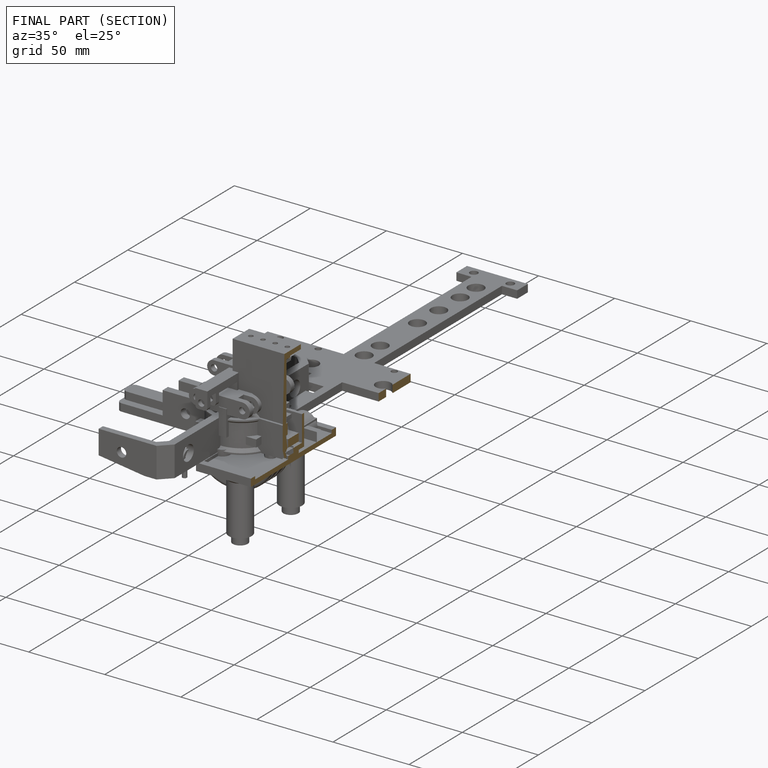
[diagram: finished part — half-section view (interior)]
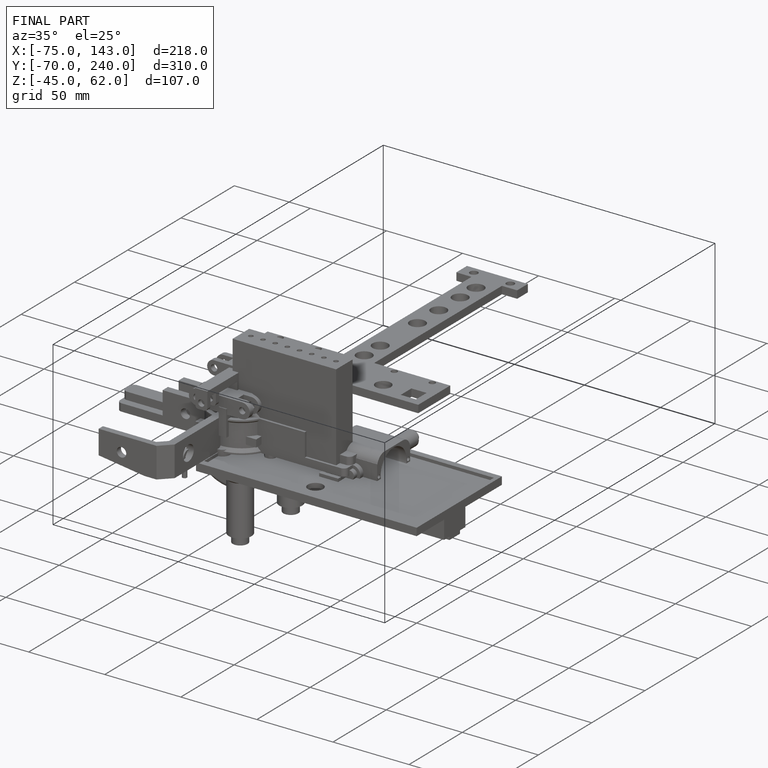
[diagram: finished part — iso view with bounding-box wireframe]
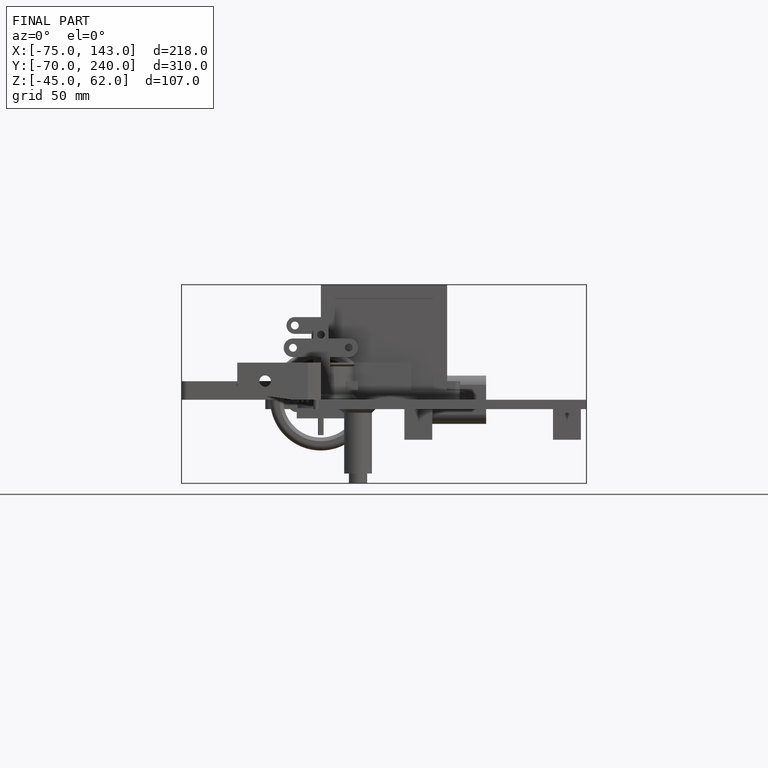
[diagram: finished part — front view with bounding-box wireframe]
